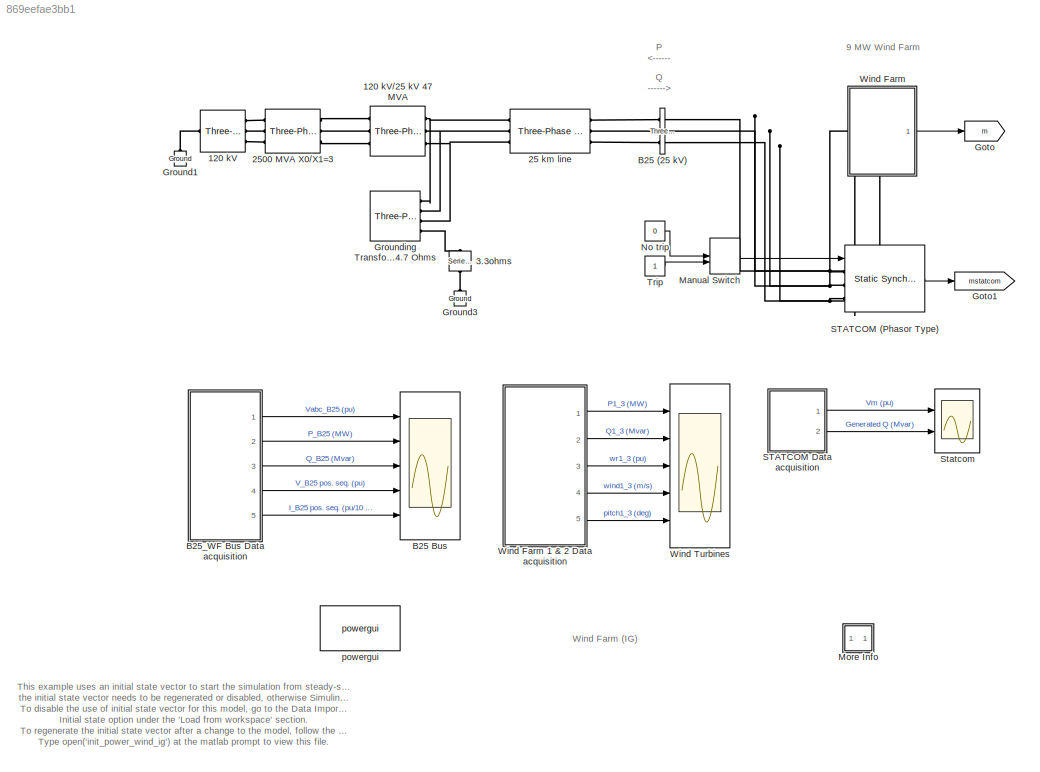
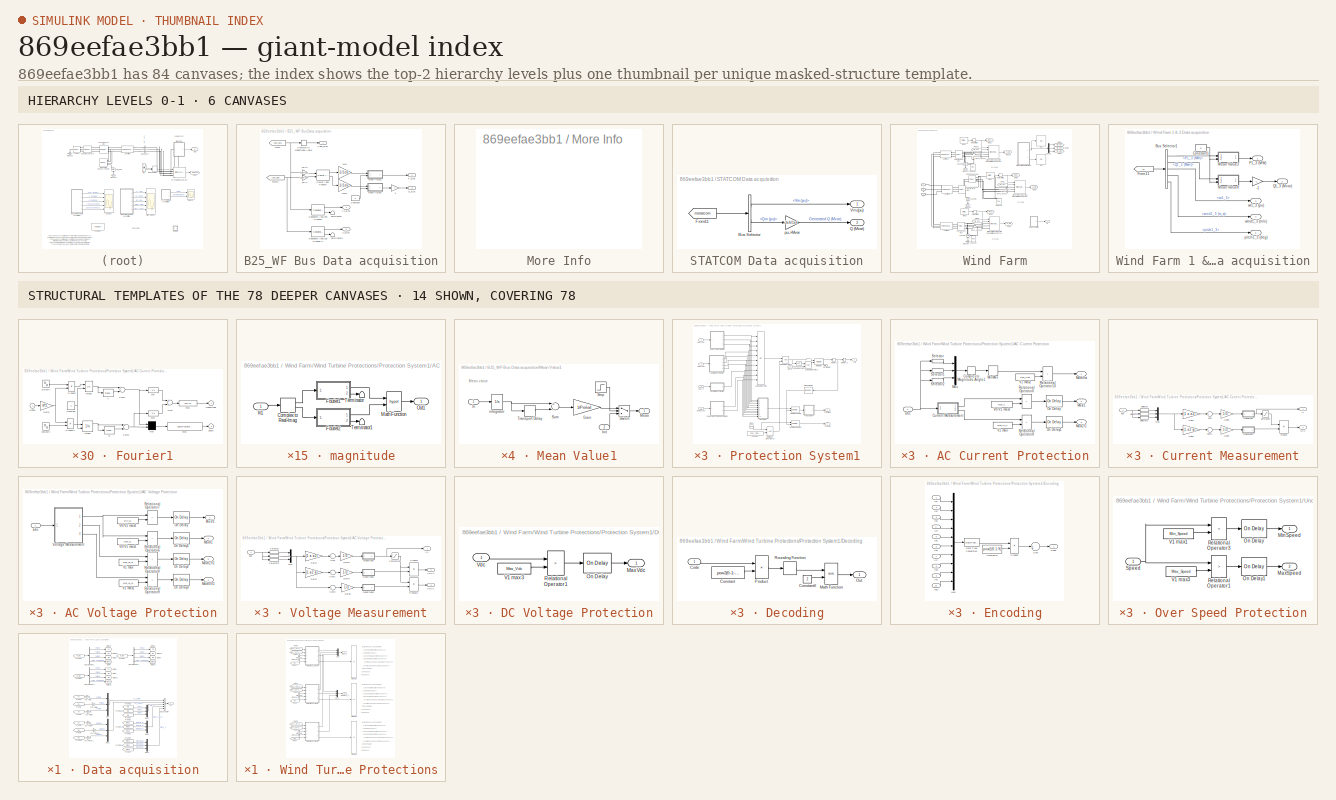
[diagram: thumbnail index - top-2 hierarchy levels (6 canvases) + 14 structural-template representatives of the remaining 78 canvases]
MODEL slx_869eefae3bb1
KIND model
CONFIG InitFcn = xInitial = init_power_wind_ig;
BLOCK [Scope]  Wind Turbines
  Floating = off
  LimitDataPoints = off
  NumInputPorts = 5
  Ports = [5]
  ShowLegends = off
BLOCK [Reference] 120 kV  REF=powerlib/Electrical
Sources/Three-Phase
Programmable
Voltage Source
  Amplitudes = [1.0  0.5  1.0 ]
  BusType = swing
  HarmonicA = [1 -0.1 0 1]
  HarmonicB = [2 0.15 35 2]
  HarmonicGeneration = off
  Ports = [0, 0, 0, 0, 0, 1, 3]
  PositiveSequence = [120e3 0 60]
  Pref = 1e3
  Qmax = inf
  Qmin = -inf
  Qref = 0
  SourceBlock = powerlib/Electrical\nSources/Three-Phase\nProgrammable\nVoltage Source
  SourceType = Three-Phase Programmable Voltage Source
  TimeValues = [0  10  10.1]
  Timing = [5  5.5]
  VariationEntity = None
  VariationFrequency = 2
  VariationMagnitude = 0.3
  VariationPhaseA = off
  VariationRate = 10
  VariationStep = -0.15
  VariationTiming = [5 5.5]
  VariationType = Table of time-amplitude pairs
  VariationTypeAlt = Step
BLOCK [Reference] 120 kV//25 kV 47 MVA  REF=powerlib/Elements/Three-Phase
Transformer
(Two Windings)
  AttributesFormatString = \n
  BreakLoop = off
  DataFile = 'basic_model'
  DataType = off
  Hysteresis = off
  InitialFluxes = [ 0.8 , -0.8 , 0.7 ]
  Lm = 500
  Measurements = None
  MoreParameters = off
  NominalPower = [47e6 60 ]
  Ports = [0, 0, 0, 0, 0, 3, 3]
  Rm = 500
  Saturation = [ 0,0  ;  0.005,1.2  ;  1.0,1.4 ]
  SetInitialFlux = off
  SetSaturation = off
  SourceBlock = powerlib/Elements/Three-Phase\nTransformer\n(Two Windings)
  SourceType = Three-Phase Transformer (Two Windings)
  TransfoNumber = 0
  UNITS = pu
  Winding1 = [ 120e3  0.08/30   0.08 ]
  Winding1Connection = Yg
  Winding2 = [ 25e3  0.08/30  0.08]
  Winding2Connection = Delta (D1)
BLOCK [Reference] 25 km line  REF=powerlib/Elements/Three-Phase
PI Section Line
  AttributesFormatString = \n
  Capacitances = [11.33e-009 5.01e-009]
  Frequency = 60
  Inductances = [1.05e-3 3.32e-3]
  LConnTagsString = a|b|c
  Length = 25
  Ports = [0, 0, 0, 0, 0, 3, 3]
  RConnTagsString = A|B|C
  Resistances = [0.1153 0.413]
  SourceBlock = powerlib/Elements/Three-Phase\nPI Section Line
  SourceType = Three-Phase PI Section Line
BLOCK [Reference] 2500 MVA X0//X1=3  REF=powerlib/Elements/Three-Phase
Mutual Inductance
Z1-Z0
  AttributesFormatString = \n
  LConnTagsString = a|b|c
  Ports = [0, 0, 0, 0, 0, 3, 3]
  PositiveSequence = [0.1  1.0/(2*pi*60)] *120e3^2/2500e6
  RConnTagsString = A|B|C
  SourceBlock = powerlib/Elements/Three-Phase\nMutual Inductance\nZ1-Z0
  SourceType = Three-Phase Mutual Inductance Z1-Z0
  ZeroSequence = [0.3  3.0/(2*pi*60)] *120e3^2/2500e6
BLOCK [Reference] 3.3ohms   REF=powerlib/Elements/Series RLC Branch
  BranchType = R
  Capacitance = 1.0
  Inductance = 1.0
  InitialCurrent = 0
  InitialVoltage = 0
  LConnTagsString = __new0
  Measurements = None
  Ports = [0, 0, 0, 0, 0, 1, 1]
  RConnTagsString = __new0
  Resistance = 3.3
  SetiL0 = off
  Setx0 = off
  SourceBlock = powerlib/Elements/Series RLC Branch
  SourceType = Series RLC Branch
BLOCK [Reference] B25 (25 kV)  REF=powerlib/Measurements/Three-Phase
V-I Measurement
  CurrentMeasurement = yes
  Ipu = on
  LabelI = Iabc_B25
  LabelV = Vabc_B25
  OutputType = Complex
  PSBequivalent = 0
  Pbase = 10e6
  PhasorSimulation = on
  Ports = [0, 0, 0, 0, 0, 3, 3]
  SetLabelI = on
  SetLabelV = on
  SourceBlock = powerlib/Measurements/Three-Phase\nV-I Measurement
  SourceType = Three-Phase VI Measurement
  Vbase = 25e3
  VoltageMeasurement = phase-to-ground
  Vpu = on
  VpuLL = off
BLOCK [Scope] B25 Bus
  Floating = off
  LimitDataPoints = off
  NumInputPorts = 5
  Ports = [5]
  ShowLegends = off
BLOCK [SubSystem] B25_WF Bus Data acquisition
  Ports = [0, 5]
  RequestExecContextInheritance = off
BLOCK [Gain] B25_WF Bus Data acquisition/-1
  Gain = -1
BLOCK [ComplexToMagnitudeAngle] B25_WF Bus Data acquisition/Complex to Magnitude-Angle 
  Output = Magnitude
  Ports = [1, 1]
BLOCK [Constant] B25_WF Bus Data acquisition/Constant
  Value = 0
BLOCK [From] B25_WF Bus Data acquisition/From
  CloseFcn = tagdialog Close
  GotoTag = Vabc_B25
  TagVisibility = global
BLOCK [From] B25_WF Bus Data acquisition/From2
  CloseFcn = tagdialog Close
  GotoTag = Iabc_B25
  TagVisibility = global
BLOCK [Outport] B25_WF Bus Data acquisition/I1_B25
  IconDisplay = Port number
  Port = 5
BLOCK [Gain] B25_WF Bus Data acquisition/MW
  Gain = -1/1e6
BLOCK [Gain] B25_WF Bus Data acquisition/MW1
  Gain = -1/1e6
BLOCK [SubSystem] B25_WF Bus Data acquisition/Mean Value1
  Ports = [2, 1]
  RequestExecContextInheritance = off
BLOCK [Gain] B25_WF Bus Data acquisition/Mean Value1/Gain
  Gain = 1/Period
BLOCK [Inport] B25_WF Bus Data acquisition/Mean Value1/In
  IconDisplay = Port number
BLOCK [Inport] B25_WF Bus Data acquisition/Mean Value1/Init
  IconDisplay = Port number
  Port = 2
BLOCK [Outport] B25_WF Bus Data acquisition/Mean Value1/Mean
  IconDisplay = Port number
BLOCK [Step] B25_WF Bus Data acquisition/Mean Value1/Step
  SampleTime = 0
  Time = Period+eps
BLOCK [Sum] B25_WF Bus Data acquisition/Mean Value1/Sum
  Inputs = +-
  Ports = [2, 1]
BLOCK [Switch] B25_WF Bus Data acquisition/Mean Value1/Switch
  InputSameDT = off
  Threshold = 0.5
BLOCK [TransportDelay] B25_WF Bus Data acquisition/Mean Value1/Transport Delay
  DelayTime = Period
  Ports = [1, 1]
BLOCK [Integrator] B25_WF Bus Data acquisition/Mean Value1/integrator
  Ports = [1, 1]
BLOCK [SubSystem] B25_WF Bus Data acquisition/Mean Value2
  Ports = [2, 1]
  RequestExecContextInheritance = off
BLOCK [Gain] B25_WF Bus Data acquisition/Mean Value2/Gain
  Gain = 1/Period
BLOCK [Inport] B25_WF Bus Data acquisition/Mean Value2/In
  IconDisplay = Port number
BLOCK [Inport] B25_WF Bus Data acquisition/Mean Value2/Init
  IconDisplay = Port number
  Port = 2
BLOCK [Outport] B25_WF Bus Data acquisition/Mean Value2/Mean
  IconDisplay = Port number
BLOCK [Step] B25_WF Bus Data acquisition/Mean Value2/Step
  SampleTime = 0
  Time = Period+eps
BLOCK [Sum] B25_WF Bus Data acquisition/Mean Value2/Sum
  Inputs = +-
  Ports = [2, 1]
BLOCK [Switch] B25_WF Bus Data acquisition/Mean Value2/Switch
  InputSameDT = off
  Threshold = 0.5
BLOCK [TransportDelay] B25_WF Bus Data acquisition/Mean Value2/Transport Delay
  DelayTime = Period
  Ports = [1, 1]
BLOCK [Integrator] B25_WF Bus Data acquisition/Mean Value2/integrator
  Ports = [1, 1]
BLOCK [Outport] B25_WF Bus Data acquisition/P_B25
  IconDisplay = Port number
  Port = 2
BLOCK [Reference] B25_WF Bus Data acquisition/Power (3ph, Phasor)  REF=powerlib_meascontrol/Measurements/Power
(3ph, Phasor)
  Ports = [2, 2]
  SourceBlock = powerlib_meascontrol/Measurements/Power\n(3ph, Phasor)
  SourceType = Power (3ph, Phasor)
BLOCK [Outport] B25_WF Bus Data acquisition/Q_B25
  IconDisplay = Port number
  Port = 3
BLOCK [Reference] B25_WF Bus Data acquisition/Sequence Analyzer (Phasor)  REF=powerlib_meascontrol/Measurements/Sequence Analyzer
(Phasor)
  Ports = [1, 2]
  SourceBlock = powerlib_meascontrol/Measurements/Sequence Analyzer\n(Phasor)
  SourceType = Sequence Analyzer (Phasor)
  seq = Positive
BLOCK [Reference] B25_WF Bus Data acquisition/Sequence Analyzer (Phasor)1  REF=powerlib_meascontrol/Measurements/Sequence Analyzer
(Phasor)
  Ports = [1, 2]
  SourceBlock = powerlib_meascontrol/Measurements/Sequence Analyzer\n(Phasor)
  SourceType = Sequence Analyzer (Phasor)
  seq = Positive
BLOCK [Terminator] B25_WF Bus Data acquisition/Terminator
BLOCK [Terminator] B25_WF Bus Data acquisition/Terminator1
BLOCK [Outport] B25_WF Bus Data acquisition/V1_B25
  IconDisplay = Port number
  Port = 4
BLOCK [Outport] B25_WF Bus Data acquisition/Vabc_B25 
  IconDisplay = Port number
BLOCK [Gain] B25_WF Bus Data acquisition/pu->A
  Gain = 10e6/sqrt(3)/25e3*sqrt(2)
BLOCK [Gain] B25_WF Bus Data acquisition/pu->V
  Gain = 25e3*sqrt(2)/sqrt(3)
BLOCK [Goto] Goto
  GotoTag = m
  TagVisibility = global
BLOCK [Goto] Goto1
  GotoTag = mstatcom
  TagVisibility = global
BLOCK [Reference] Ground1  REF=powerlib/Elements/Ground
  AttributesFormatString = \n
  LConnTagsString = a
  Ports = [0, 0, 0, 0, 0, 1]
  SourceBlock = powerlib/Elements/Ground
  SourceType = Ground
BLOCK [Reference] Ground3  REF=powerlib/Elements/Ground
  AttributesFormatString = \n
  LConnTagsString = a
  Ports = [0, 0, 0, 0, 0, 1]
  SourceBlock = powerlib/Elements/Ground
  SourceType = Ground
BLOCK [Reference] Grounding Transformer X0=4.7 Ohms  REF=powerlib/Elements/Three-Phase
Transformer
(Two Windings)
  AttributesFormatString = \n
  BreakLoop = off
  DataFile = 'basic_model'
  DataType = off
  Hysteresis = off
  InitialFluxes = [ 0.8 , -0.8 , 0.7 ]
  Lm = 500
  Measurements = None
  MoreParameters = off
  NominalPower = [100e6 60]
  Ports = [0, 0, 0, 0, 0, 4, 3]
  Rm = 500
  Saturation = [ 0,0  ;  0.005,1.2  ;  1.0,1.4 ]
  SetInitialFlux = off
  SetSaturation = off
  SourceBlock = powerlib/Elements/Three-Phase\nTransformer\n(Two Windings)
  SourceType = Three-Phase Transformer (Two Windings)
  TransfoNumber = 0
  UNITS = pu
  Winding1 = [ 25e3  4.7/(25e3^2/100e6)/30    4.7/(25e3^2/100e6)]
  Winding1Connection = Yn
  Winding2 = [ 25e3  1e-6  0]
  Winding2Connection = Delta (D11)
BLOCK [ManualSwitch] Manual Switch
BLOCK [SubSystem] More Info
  OpenFcn = showdemo(bdroot(gcb))
  Ports = []
  RequestExecContextInheritance = off
BLOCK [Constant] No trip
  Value = 0
BLOCK [Reference] STATCOM (Phasor Type)  REF=factslib/Power-Electronics Based
FACTS/Static Synchronous
Compensator
(Phasor Type)
  C_DC = 375e-6*(3/100)*10^2
  Droop_SH = 0.03
  ExternalVref = off
  Iinit_SH = [0, 0 ]
  MaxRateChangeQref_SH = 2
  MaxRateChangeVref_SH = 10
  OpMode_SH = Voltage regulation
  Par_IReg_SH = [0.3 10 0.22]
  Par_VacReg = [5 1000]
  Par_VdcReg = [0.1e-3 20e-3]
  Pnom_SH = 3e6
  Ports = [1, 1, 0, 0, 0, 3]
  Qref_SH = 0
  RL_SH = [ 0.22/30, 0.22 ]
  ShowParameters = Power data
  SourceBlock = factslib/Power-Electronics Based\nFACTS/Static Synchronous\nCompensator\n(Phasor Type)
  SourceType = Static Synchronous Compensator (Phasor Type)
  SystemNominal = [ 25e3, 60 ]
  VnomDC = 40000/10
  Vref_SH = 1.00
BLOCK [SubSystem] STATCOM Data acquisition
  Ports = [0, 2]
  RequestExecContextInheritance = off
BLOCK [BusSelector] STATCOM Data acquisition/Bus Selector
  OutputSignals = Control.Vm (pu),Control.Qm (pu)
  Ports = [1, 2]
BLOCK [From] STATCOM Data acquisition/From11
  CloseFcn = tagdialog Close
  GotoTag = mstatcom
  TagVisibility = global
BLOCK [Outport] STATCOM Data acquisition/Q (Mvar)
  IconDisplay = Port number
  Port = 2
BLOCK [Outport] STATCOM Data acquisition/Vm (pu)
  IconDisplay = Port number
BLOCK [Gain] STATCOM Data acquisition/pu->Mvar
  Gain = -3e6/1e6
BLOCK [Scope] Statcom
  Floating = off
  LimitDataPoints = off
  NumInputPorts = 2
  Ports = [2]
  ShowLegends = off
BLOCK [Constant] Trip
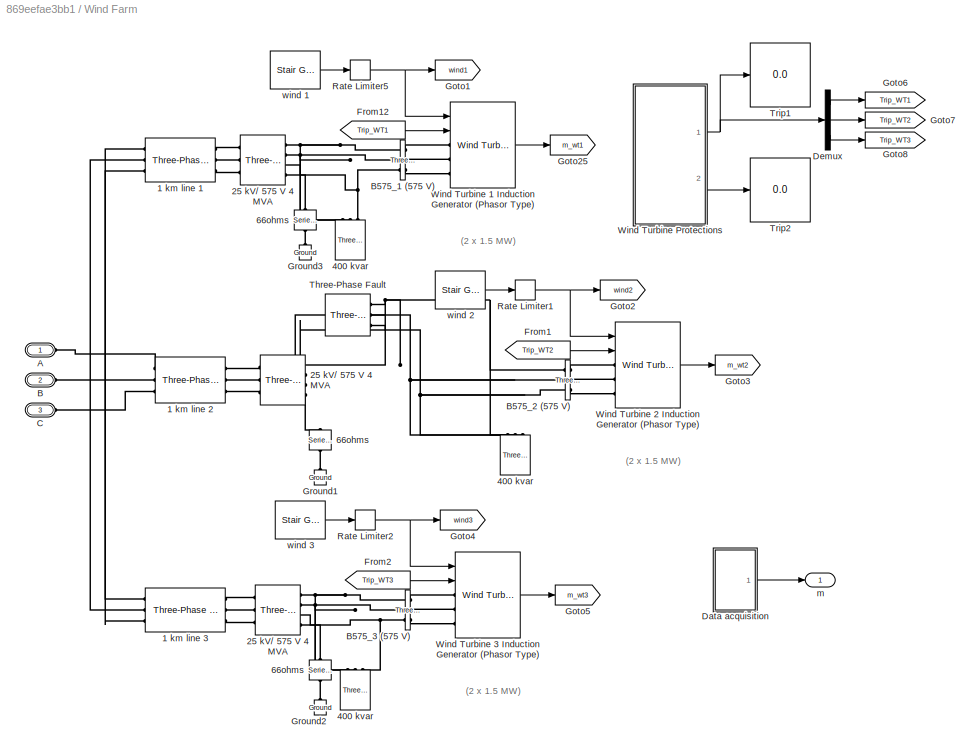
BLOCK [SubSystem] Wind Farm
  Ports = [0, 1, 0, 0, 0, 3]
  RequestExecContextInheritance = off
BLOCK [SubSystem] Wind Farm 1 & 2 Data acquisition
  Ports = [0, 5]
  RequestExecContextInheritance = off
BLOCK [Gain] Wind Farm 1 & 2 Data acquisition/-1
  Gain = -1
BLOCK [BusSelector] Wind Farm 1 & 2 Data acquisition/Bus Selector1
  OutputSignals = P1_3 (MW),Q1_3 (Mvar),wr1_3,wind1_3 (m_s),pitch1_3
  Ports = [1, 5]
BLOCK [Constant] Wind Farm 1 & 2 Data acquisition/Constant1
  Value = 0
BLOCK [From] Wind Farm 1 & 2 Data acquisition/From11
  CloseFcn = tagdialog Close
  GotoTag = m
  TagVisibility = global
BLOCK [SubSystem] Wind Farm 1 & 2 Data acquisition/Mean Value3
  Ports = [2, 1]
  RequestExecContextInheritance = off
BLOCK [Gain] Wind Farm 1 & 2 Data acquisition/Mean Value3/Gain
  Gain = 1/Period
BLOCK [Inport] Wind Farm 1 & 2 Data acquisition/Mean Value3/In
  IconDisplay = Port number
BLOCK [Inport] Wind Farm 1 & 2 Data acquisition/Mean Value3/Init
  IconDisplay = Port number
  Port = 2
BLOCK [Outport] Wind Farm 1 & 2 Data acquisition/Mean Value3/Mean
  IconDisplay = Port number
BLOCK [Step] Wind Farm 1 & 2 Data acquisition/Mean Value3/Step
  SampleTime = 0
  Time = Period+eps
BLOCK [Sum] Wind Farm 1 & 2 Data acquisition/Mean Value3/Sum
  Inputs = +-
  Ports = [2, 1]
BLOCK [Switch] Wind Farm 1 & 2 Data acquisition/Mean Value3/Switch
  InputSameDT = off
  Threshold = 0.5
BLOCK [TransportDelay] Wind Farm 1 & 2 Data acquisition/Mean Value3/Transport Delay
  DelayTime = Period
  Ports = [1, 1]
BLOCK [Integrator] Wind Farm 1 & 2 Data acquisition/Mean Value3/integrator
  Ports = [1, 1]
BLOCK [SubSystem] Wind Farm 1 & 2 Data acquisition/Mean Value4
  Ports = [2, 1]
  RequestExecContextInheritance = off
BLOCK [Gain] Wind Farm 1 & 2 Data acquisition/Mean Value4/Gain
  Gain = 1/Period
BLOCK [Inport] Wind Farm 1 & 2 Data acquisition/Mean Value4/In
  IconDisplay = Port number
BLOCK [Inport] Wind Farm 1 & 2 Data acquisition/Mean Value4/Init
  IconDisplay = Port number
  Port = 2
BLOCK [Outport] Wind Farm 1 & 2 Data acquisition/Mean Value4/Mean
  IconDisplay = Port number
BLOCK [Step] Wind Farm 1 & 2 Data acquisition/Mean Value4/Step
  SampleTime = 0
  Time = Period+eps
BLOCK [Sum] Wind Farm 1 & 2 Data acquisition/Mean Value4/Sum
  Inputs = +-
  Ports = [2, 1]
BLOCK [Switch] Wind Farm 1 & 2 Data acquisition/Mean Value4/Switch
  InputSameDT = off
  Threshold = 0.5
BLOCK [TransportDelay] Wind Farm 1 & 2 Data acquisition/Mean Value4/Transport Delay
  DelayTime = Period
  Ports = [1, 1]
BLOCK [Integrator] Wind Farm 1 & 2 Data acquisition/Mean Value4/integrator
  Ports = [1, 1]
BLOCK [Outport] Wind Farm 1 & 2 Data acquisition/P1_3 (MW)
  IconDisplay = Port number
BLOCK [Outport] Wind Farm 1 & 2 Data acquisition/Q1_3 (Mvar)
  IconDisplay = Port number
  Port = 2
BLOCK [Outport] Wind Farm 1 & 2 Data acquisition/pitch1_3 (deg)
  IconDisplay = Port number
  Port = 5
BLOCK [Outport] Wind Farm 1 & 2 Data acquisition/wind1_3 (m//s)
  IconDisplay = Port number
  Port = 4
BLOCK [Outport] Wind Farm 1 & 2 Data acquisition/wr1_3 (pu)
  IconDisplay = Port number
  Port = 3
BLOCK [Reference] Wind Farm/ 66ohms   REF=powerlib/Elements/Series RLC Branch
  BranchType = R
  Capacitance = 1.0
  Inductance = 1.0
  InitialCurrent = 0
  InitialVoltage = 0
  LConnTagsString = __new0
  Measurements = None
  Ports = [0, 0, 0, 0, 0, 1, 1]
  RConnTagsString = __new0
  Resistance = 66
  SetiL0 = off
  Setx0 = off
  SourceBlock = powerlib/Elements/Series RLC Branch
  SourceType = Series RLC Branch
BLOCK [Reference] Wind Farm/1 km line 1   REF=powerlib/Elements/Three-Phase
PI Section Line
  AttributesFormatString = \n
  Capacitances = [11.33e-009 5.01e-009]
  Frequency = 60
  Inductances = [1.05e-3 3.32e-3]
  LConnTagsString = a|b|c
  Length = 1
  Ports = [0, 0, 0, 0, 0, 3, 3]
  RConnTagsString = A|B|C
  Resistances = [0.1153 0.413]
  SourceBlock = powerlib/Elements/Three-Phase\nPI Section Line
  SourceType = Three-Phase PI Section Line
BLOCK [Reference] Wind Farm/1 km line 2  REF=powerlib/Elements/Three-Phase
PI Section Line
  AttributesFormatString = \n
  Capacitances = [11.33e-009 5.01e-009]
  Frequency = 60
  Inductances = [1.05e-3 3.32e-3]
  LConnTagsString = a|b|c
  Length = 1
  Ports = [0, 0, 0, 0, 0, 3, 3]
  RConnTagsString = A|B|C
  Resistances = [0.1153 0.413]
  SourceBlock = powerlib/Elements/Three-Phase\nPI Section Line
  SourceType = Three-Phase PI Section Line
BLOCK [Reference] Wind Farm/1 km line 3  REF=powerlib/Elements/Three-Phase
PI Section Line
  AttributesFormatString = \n
  Capacitances = [11.33e-009 5.01e-009]
  Frequency = 60
  Inductances = [1.05e-3 3.32e-3]
  LConnTagsString = a|b|c
  Length = 1
  Ports = [0, 0, 0, 0, 0, 3, 3]
  RConnTagsString = A|B|C
  Resistances = [0.1153 0.413]
  SourceBlock = powerlib/Elements/Three-Phase\nPI Section Line
  SourceType = Three-Phase PI Section Line
BLOCK [Reference] Wind Farm/25 kV// 575 V 4 MVA  REF=powerlib/Elements/Three-Phase
Transformer
(Two Windings)
  AttributesFormatString = \n
  BreakLoop = off
  DataFile = 'hysteresis'
  DataType = off
  Hysteresis = off
  InitialFluxes = [ 0.8 , -0.8 , 0.7 ]
  Lm = inf
  Measurements = None
  MoreParameters = off
  NominalPower = [4e6  60]
  Ports = [0, 0, 0, 0, 0, 3, 4]
  Rm = 500
  Saturation = [ 0,0 ; 0.0024,1.2 ; 1.0,1.52 ]
  SetInitialFlux = off
  SetSaturation = off
  SourceBlock = powerlib/Elements/Three-Phase\nTransformer\n(Two Windings)
  SourceType = Three-Phase Transformer (Two Windings)
  TransfoNumber = 0
  UNITS = pu
  Winding1 = [25e3 , 0.025/30 , 0.025]
  Winding1Connection = Yg
  Winding2 = [ 575, 0.025/30 , 0.025]
  Winding2Connection = Yn
BLOCK [Reference] Wind Farm/25 kV// 575 V 4 MVA   REF=powerlib/Elements/Three-Phase
Transformer
(Two Windings)
  AttributesFormatString = \n
  BreakLoop = off
  DataFile = 'hysteresis'
  DataType = off
  Hysteresis = off
  InitialFluxes = [ 0.8 , -0.8 , 0.7 ]
  Lm = inf
  Measurements = None
  MoreParameters = off
  NominalPower = [4e6  60]
  Ports = [0, 0, 0, 0, 0, 3, 4]
  Rm = 500
  Saturation = [ 0,0 ; 0.0024,1.2 ; 1.0,1.52 ]
  SetInitialFlux = off
  SetSaturation = off
  SourceBlock = powerlib/Elements/Three-Phase\nTransformer\n(Two Windings)
  SourceType = Three-Phase Transformer (Two Windings)
  TransfoNumber = 0
  UNITS = pu
  Winding1 = [25e3 , 0.025/30 , 0.025]
  Winding1Connection = Yg
  Winding2 = [ 575, 0.025/30 , 0.025]
  Winding2Connection = Yn
BLOCK [Reference] Wind Farm/25 kV// 575 V 4 MVA    REF=powerlib/Elements/Three-Phase
Transformer
(Two Windings)
  AttributesFormatString = \n
  BreakLoop = off
  DataFile = 'hysteresis'
  DataType = off
  Hysteresis = off
  InitialFluxes = [ 0.8 , -0.8 , 0.7 ]
  Lm = inf
  Measurements = None
  MoreParameters = off
  NominalPower = [4e6  60]
  Ports = [0, 0, 0, 0, 0, 3, 4]
  Rm = 500
  Saturation = [ 0,0 ; 0.0024,1.2 ; 1.0,1.52 ]
  SetInitialFlux = off
  SetSaturation = off
  SourceBlock = powerlib/Elements/Three-Phase\nTransformer\n(Two Windings)
  SourceType = Three-Phase Transformer (Two Windings)
  TransfoNumber = 0
  UNITS = pu
  Winding1 = [25e3 , 0.025/30 , 0.025]
  Winding1Connection = Yg
  Winding2 = [ 575, 0.025/30 , 0.025]
  Winding2Connection = Yn
BLOCK [Reference] Wind Farm/400 kvar  REF=powerlib/Elements/Three-Phase
Series RLC Load
  ActivePower = 0
  AttributesFormatString = \n
  CapacitivePower = 400e3
  Configuration = Delta
  InductivePower = 0
  LConnTagsString = A|B|C
  LoadType = constant Z
  Measurements = None
  NominalFrequency = 60
  NominalVoltage = 575
  Ports = [0, 0, 0, 0, 0, 3]
  SourceBlock = powerlib/Elements/Three-Phase\nSeries RLC Load
  SourceType = Three-Phase Series RLC Load
BLOCK [Reference] Wind Farm/400 kvar   REF=powerlib/Elements/Three-Phase
Series RLC Load
  ActivePower = 0
  AttributesFormatString = \n
  CapacitivePower = 400e3
  Configuration = Delta
  InductivePower = 0
  LConnTagsString = A|B|C
  LoadType = constant Z
  Measurements = None
  NominalFrequency = 60
  NominalVoltage = 575
  Ports = [0, 0, 0, 0, 0, 3]
  SourceBlock = powerlib/Elements/Three-Phase\nSeries RLC Load
  SourceType = Three-Phase Series RLC Load
BLOCK [Reference] Wind Farm/400 kvar    REF=powerlib/Elements/Three-Phase
Series RLC Load
  ActivePower = 0
  AttributesFormatString = \n
  CapacitivePower = 400e3
  Configuration = Delta
  InductivePower = 0
  LConnTagsString = A|B|C
  LoadType = constant Z
  Measurements = None
  NominalFrequency = 60
  NominalVoltage = 575
  Ports = [0, 0, 0, 0, 0, 3]
  SourceBlock = powerlib/Elements/Three-Phase\nSeries RLC Load
  SourceType = Three-Phase Series RLC Load
BLOCK [Reference] Wind Farm/66ohms   REF=powerlib/Elements/Series RLC Branch
  BranchType = R
  Capacitance = 1.0
  Inductance = 1.0
  InitialCurrent = 0
  InitialVoltage = 0
  LConnTagsString = __new0
  Measurements = None
  Ports = [0, 0, 0, 0, 0, 1, 1]
  RConnTagsString = __new0
  Resistance = 66
  SetiL0 = off
  Setx0 = off
  SourceBlock = powerlib/Elements/Series RLC Branch
  SourceType = Series RLC Branch
BLOCK [Reference] Wind Farm/66ohms    REF=powerlib/Elements/Series RLC Branch
  BranchType = R
  Capacitance = 1.0
  Inductance = 1.0
  InitialCurrent = 0
  InitialVoltage = 0
  LConnTagsString = __new0
  Measurements = None
  Ports = [0, 0, 0, 0, 0, 1, 1]
  RConnTagsString = __new0
  Resistance = 66
  SetiL0 = off
  Setx0 = off
  SourceBlock = powerlib/Elements/Series RLC Branch
  SourceType = Series RLC Branch
BLOCK [PMIOPort] Wind Farm/A
  Port = 1
  Side = Left
BLOCK [PMIOPort] Wind Farm/B
  Port = 2
  Side = Left
BLOCK [Reference] Wind Farm/B575_1 (575 V)  REF=powerlib/Measurements/Three-Phase
V-I Measurement
  CurrentMeasurement = yes
  Ipu = on
  LabelI = Iabc_B575_1
  LabelV = Vabc_B575_1
  OutputType = Complex
  PSBequivalent = 0
  Pbase = 2*1.5e6/0.9
  PhasorSimulation = on
  Ports = [0, 0, 0, 0, 0, 3, 3]
  SetLabelI = on
  SetLabelV = on
  SourceBlock = powerlib/Measurements/Three-Phase\nV-I Measurement
  SourceType = Three-Phase VI Measurement
  Vbase = 575
  VoltageMeasurement = phase-to-ground
  Vpu = on
  VpuLL = off
BLOCK [Reference] Wind Farm/B575_2 (575 V)  REF=powerlib/Measurements/Three-Phase
V-I Measurement
  CurrentMeasurement = yes
  Ipu = on
  LabelI = Iabc_B575_2
  LabelV = Vabc_B575_2
  OutputType = Complex
  PSBequivalent = 0
  Pbase = 2*1.5e6/0.9
  PhasorSimulation = on
  Ports = [0, 0, 0, 0, 0, 3, 3]
  SetLabelI = on
  SetLabelV = on
  SourceBlock = powerlib/Measurements/Three-Phase\nV-I Measurement
  SourceType = Three-Phase VI Measurement
  Vbase = 575
  VoltageMeasurement = phase-to-ground
  Vpu = on
  VpuLL = off
BLOCK [Reference] Wind Farm/B575_3 (575 V)  REF=powerlib/Measurements/Three-Phase
V-I Measurement
  CurrentMeasurement = yes
  Ipu = on
  LabelI = Iabc_B575_3
  LabelV = Vabc_B575_3
  OutputType = Complex
  PSBequivalent = 0
  Pbase = 2*1.5e6/0.9
  PhasorSimulation = on
  Ports = [0, 0, 0, 0, 0, 3, 3]
  SetLabelI = on
  SetLabelV = on
  SourceBlock = powerlib/Measurements/Three-Phase\nV-I Measurement
  SourceType = Three-Phase VI Measurement
  Vbase = 575
  VoltageMeasurement = phase-to-ground
  Vpu = on
  VpuLL = off
BLOCK [PMIOPort] Wind Farm/C
  Port = 3
  Side = Left
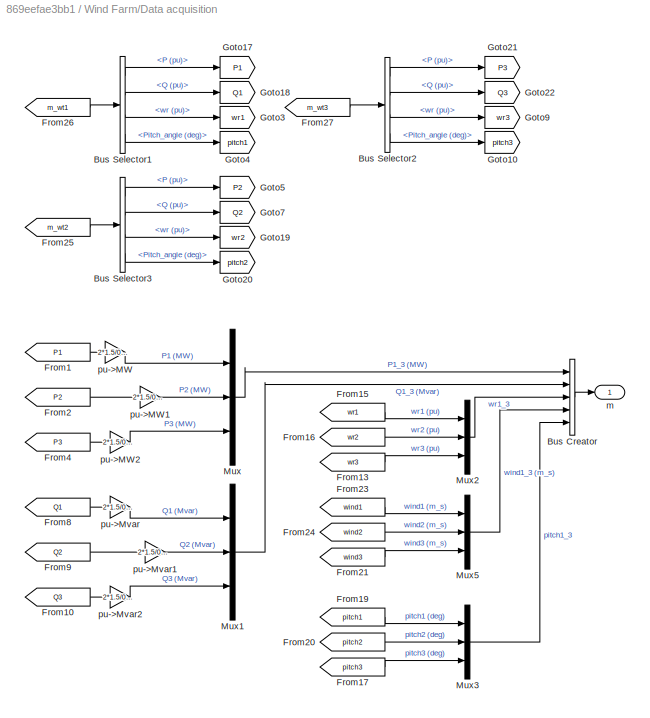
BLOCK [SubSystem] Wind Farm/Data acquisition
  Ports = [0, 1]
  RequestExecContextInheritance = off
BLOCK [BusCreator] Wind Farm/Data acquisition/Bus Creator
  DisplayOption = bar
  Inputs = 5
  Ports = [5, 1]
BLOCK [BusSelector] Wind Farm/Data acquisition/Bus Selector1
  OutputSignals = P (pu),Q (pu),wr (pu),Pitch_angle (deg)
  Ports = [1, 4]
BLOCK [BusSelector] Wind Farm/Data acquisition/Bus Selector2
  OutputSignals = P (pu),Q (pu),wr (pu),Pitch_angle (deg)
  Ports = [1, 4]
BLOCK [BusSelector] Wind Farm/Data acquisition/Bus Selector3
  OutputSignals = P (pu),Q (pu),wr (pu),Pitch_angle (deg)
  Ports = [1, 4]
BLOCK [From] Wind Farm/Data acquisition/From1
  CloseFcn = tagdialog Close
  GotoTag = P1
BLOCK [From] Wind Farm/Data acquisition/From10
  CloseFcn = tagdialog Close
  GotoTag = Q3
BLOCK [From] Wind Farm/Data acquisition/From13
  CloseFcn = tagdialog Close
  GotoTag = wr3
  TagVisibility = global
BLOCK [From] Wind Farm/Data acquisition/From15
  CloseFcn = tagdialog Close
  GotoTag = wr1
  TagVisibility = global
BLOCK [From] Wind Farm/Data acquisition/From16
  CloseFcn = tagdialog Close
  GotoTag = wr2
  TagVisibility = global
BLOCK [From] Wind Farm/Data acquisition/From17
  CloseFcn = tagdialog Close
  GotoTag = pitch3
BLOCK [From] Wind Farm/Data acquisition/From19
  CloseFcn = tagdialog Close
  GotoTag = pitch1
BLOCK [From] Wind Farm/Data acquisition/From2
  CloseFcn = tagdialog Close
  GotoTag = P2
BLOCK [From] Wind Farm/Data acquisition/From20
  CloseFcn = tagdialog Close
  GotoTag = pitch2
BLOCK [From] Wind Farm/Data acquisition/From21
  CloseFcn = tagdialog Close
  GotoTag = wind3
  TagVisibility = global
BLOCK [From] Wind Farm/Data acquisition/From23
  CloseFcn = tagdialog Close
  GotoTag = wind1
  TagVisibility = global
BLOCK [From] Wind Farm/Data acquisition/From24
  CloseFcn = tagdialog Close
  GotoTag = wind2
  TagVisibility = global
BLOCK [From] Wind Farm/Data acquisition/From25
  CloseFcn = tagdialog Close
  GotoTag = m_wt2
  TagVisibility = global
BLOCK [From] Wind Farm/Data acquisition/From26
  CloseFcn = tagdialog Close
  GotoTag = m_wt1
  TagVisibility = global
BLOCK [From] Wind Farm/Data acquisition/From27
  CloseFcn = tagdialog Close
  GotoTag = m_wt3
  TagVisibility = global
BLOCK [From] Wind Farm/Data acquisition/From4
  CloseFcn = tagdialog Close
  GotoTag = P3
BLOCK [From] Wind Farm/Data acquisition/From8
  CloseFcn = tagdialog Close
  GotoTag = Q1
BLOCK [From] Wind Farm/Data acquisition/From9
  CloseFcn = tagdialog Close
  GotoTag = Q2
BLOCK [Goto] Wind Farm/Data acquisition/Goto10
  GotoTag = pitch3
BLOCK [Goto] Wind Farm/Data acquisition/Goto17
  GotoTag = P1
BLOCK [Goto] Wind Farm/Data acquisition/Goto18
  GotoTag = Q1
BLOCK [Goto] Wind Farm/Data acquisition/Goto19
  GotoTag = wr2
  TagVisibility = global
BLOCK [Goto] Wind Farm/Data acquisition/Goto20
  GotoTag = pitch2
BLOCK [Goto] Wind Farm/Data acquisition/Goto21
  GotoTag = P3
BLOCK [Goto] Wind Farm/Data acquisition/Goto22
  GotoTag = Q3
BLOCK [Goto] Wind Farm/Data acquisition/Goto3
  GotoTag = wr1
  TagVisibility = global
BLOCK [Goto] Wind Farm/Data acquisition/Goto4
  GotoTag = pitch1
BLOCK [Goto] Wind Farm/Data acquisition/Goto5
  GotoTag = P2
BLOCK [Goto] Wind Farm/Data acquisition/Goto7
  GotoTag = Q2
BLOCK [Goto] Wind Farm/Data acquisition/Goto9
  GotoTag = wr3
  TagVisibility = global
BLOCK [Mux] Wind Farm/Data acquisition/Mux
  DisplayOption = bar
  Inputs = 3
  Ports = [3, 1]
BLOCK [Mux] Wind Farm/Data acquisition/Mux1
  DisplayOption = bar
  Inputs = 3
  Ports = [3, 1]
BLOCK [Mux] Wind Farm/Data acquisition/Mux2
  DisplayOption = bar
  Inputs = 3
  Ports = [3, 1]
BLOCK [Mux] Wind Farm/Data acquisition/Mux3
  DisplayOption = bar
  Inputs = 3
  Ports = [3, 1]
BLOCK [Mux] Wind Farm/Data acquisition/Mux5
  DisplayOption = bar
  Inputs = 3
  Ports = [3, 1]
BLOCK [Outport] Wind Farm/Data acquisition/m
  IconDisplay = Port number
BLOCK [Gain] Wind Farm/Data acquisition/pu->MW
  Gain = 2*1.5/0.9
BLOCK [Gain] Wind Farm/Data acquisition/pu->MW1
  Gain = 2*1.5/0.9
BLOCK [Gain] Wind Farm/Data acquisition/pu->MW2
  Gain = 2*1.5/0.9
BLOCK [Gain] Wind Farm/Data acquisition/pu->Mvar
  Gain = 2*1.5/0.9
BLOCK [Gain] Wind Farm/Data acquisition/pu->Mvar1
  Gain = 2*1.5/0.9
BLOCK [Gain] Wind Farm/Data acquisition/pu->Mvar2
  Gain = 2*1.5/0.9
BLOCK [Demux] Wind Farm/Demux
  DisplayOption = bar
  Outputs = 3
  Ports = [1, 3]
BLOCK [From] Wind Farm/From1
  CloseFcn = tagdialog Close
  GotoTag = Trip_WT2
BLOCK [From] Wind Farm/From12
  CloseFcn = tagdialog Close
  GotoTag = Trip_WT1
BLOCK [From] Wind Farm/From2
  CloseFcn = tagdialog Close
  GotoTag = Trip_WT3
BLOCK [Goto] Wind Farm/Goto1
  GotoTag = wind1
  TagVisibility = global
BLOCK [Goto] Wind Farm/Goto2
  GotoTag = wind2
  TagVisibility = global
BLOCK [Goto] Wind Farm/Goto25
  GotoTag = m_wt1
  TagVisibility = global
BLOCK [Goto] Wind Farm/Goto3
  GotoTag = m_wt2
  TagVisibility = global
BLOCK [Goto] Wind Farm/Goto4
  GotoTag = wind3
  TagVisibility = global
BLOCK [Goto] Wind Farm/Goto5
  GotoTag = m_wt3
  TagVisibility = global
BLOCK [Goto] Wind Farm/Goto6
  GotoTag = Trip_WT1
BLOCK [Goto] Wind Farm/Goto7
  GotoTag = Trip_WT2
BLOCK [Goto] Wind Farm/Goto8
  GotoTag = Trip_WT3
BLOCK [Reference] Wind Farm/Ground1  REF=powerlib/Elements/Ground
  AttributesFormatString = \n
  LConnTagsString = a
  Ports = [0, 0, 0, 0, 0, 1]
  SourceBlock = powerlib/Elements/Ground
  SourceType = Ground
BLOCK [Reference] Wind Farm/Ground2  REF=powerlib/Elements/Ground
  AttributesFormatString = \n
  LConnTagsString = a
  Ports = [0, 0, 0, 0, 0, 1]
  SourceBlock = powerlib/Elements/Ground
  SourceType = Ground
BLOCK [Reference] Wind Farm/Ground3  REF=powerlib/Elements/Ground
  AttributesFormatString = \n
  LConnTagsString = a
  Ports = [0, 0, 0, 0, 0, 1]
  SourceBlock = powerlib/Elements/Ground
  SourceType = Ground
BLOCK [RateLimiter] Wind Farm/Rate Limiter1
BLOCK [RateLimiter] Wind Farm/Rate Limiter2
BLOCK [RateLimiter] Wind Farm/Rate Limiter5
BLOCK [Reference] Wind Farm/Three-Phase Fault  REF=powerlib/Elements/Three-Phase Fault
  External = off
  FaultA = on
  FaultB = on
  FaultC = off
  FaultResistance = 0.001
  GroundFault = on
  GroundResistance = 0.001
  InitialStates = 0
  Measurements = None
  Ports = [0, 0, 0, 0, 0, 3]
  SnubberCapacitance = inf
  SnubberResistance = 1e6
  SourceBlock = powerlib/Elements/Three-Phase Fault
  SourceType = Three-Phase Fault
  SwitchStatus = NaN
  SwitchTimes = [ 15 15.1]
BLOCK [Display] Wind Farm/Trip1
  Decimation = 1
  Ports = [1]
BLOCK [Display] Wind Farm/Trip2
  Decimation = 1
  Ports = [1]
BLOCK [Reference] Wind Farm/Wind Turbine 1 Induction Generator (Phasor Type)  REF=DRlib/Wind Generation/Wind Turbine
Induction Generator
(Phasor Type)
  DisplayTurbChar = off
  ExternalTm = off
  K_pitch_gain = [5 25]
  Lm = 6.77
  P_wind_base = 1
  Pmec = 2*1.5e6
  Ports = [2, 1, 0, 0, 0, 3]
  ShowParameters = Turbine data
  SourceBlock = DRlib/Wind Generation/Wind Turbine\nInduction Generator\n(Phasor Type)
  SourceType = Wind Turbine Induction Generator (Phasor Type)
  init = [ -0.01,0   0,0,0   0,0,0 ]
  mec = [5.04 0.01 3]
  nom = [2*1.5e6/0.9 575 60]
  pitch_angle = 0
  pitch_max = 45
  pitch_rate = 2
  rot = [ 0.004377 0.1791]
  speed_nom = 1
  sta = [ 0.004843 0.1248]
  wind_base = 9
BLOCK [Reference] Wind Farm/Wind Turbine 2 Induction Generator (Phasor Type)  REF=DRlib/Wind Generation/Wind Turbine
Induction Generator
(Phasor Type)
  DisplayTurbChar = off
  ExternalTm = off
  K_pitch_gain = [5 25]
  Lm = 6.77
  P_wind_base = 1
  Pmec = 2*1.5e6
  Ports = [2, 1, 0, 0, 0, 3]
  ShowParameters = Turbine data
  SourceBlock = DRlib/Wind Generation/Wind Turbine\nInduction Generator\n(Phasor Type)
  SourceType = Wind Turbine Induction Generator (Phasor Type)
  init = [ -0.01,0   0,0,0   0,0,0 ]
  mec = [5.04 0.01 3]
  nom = [2*1.5e6/0.9 575 60]
  pitch_angle = 0
  pitch_max = 45
  pitch_rate = 2
  rot = [ 0.004377 0.1791]
  speed_nom = 1
  sta = [ 0.004843 0.1248]
  wind_base = 9
BLOCK [Reference] Wind Farm/Wind Turbine 3 Induction Generator (Phasor Type)  REF=DRlib/Wind Generation/Wind Turbine
Induction Generator
(Phasor Type)
  DisplayTurbChar = off
  ExternalTm = off
  K_pitch_gain = [5 25]
  Lm = 6.77
  P_wind_base = 1
  Pmec = 2*1.5e6
  Ports = [2, 1, 0, 0, 0, 3]
  ShowParameters = Turbine data
  SourceBlock = DRlib/Wind Generation/Wind Turbine\nInduction Generator\n(Phasor Type)
  SourceType = Wind Turbine Induction Generator (Phasor Type)
  init = [ -0.01,0   0,0,0   0,0,0 ]
  mec = [5.04 0.01 3]
  nom = [2*1.5e6/0.9 575 60]
  pitch_angle = 0
  pitch_max = 45
  pitch_rate = 2
  rot = [ 0.004377 0.1791]
  speed_nom = 1
  sta = [ 0.004843 0.1248]
  wind_base = 9
BLOCK [SubSystem] Wind Farm/Wind Turbine Protections
  Ports = [0, 2]
  RequestExecContextInheritance = off
BLOCK [From] Wind Farm/Wind Turbine Protections/From1
  CloseFcn = tagdialog Close
  GotoTag = wr2
  TagVisibility = global
BLOCK [From] Wind Farm/Wind Turbine Protections/From11
  CloseFcn = tagdialog Close
  GotoTag = wr1
  TagVisibility = global
BLOCK [From] Wind Farm/Wind Turbine Protections/From2
  CloseFcn = tagdialog Close
  GotoTag = Iabc_B575_2
  TagVisibility = global
BLOCK [From] Wind Farm/Wind Turbine Protections/From3
  CloseFcn = tagdialog Close
  GotoTag = Vabc_B575_2
  TagVisibility = global
BLOCK [From] Wind Farm/Wind Turbine Protections/From4
  CloseFcn = tagdialog Close
  GotoTag = wr3
  TagVisibility = global
BLOCK [From] Wind Farm/Wind Turbine Protections/From5
  CloseFcn = tagdialog Close
  GotoTag = Iabc_B575_3
  TagVisibility = global
BLOCK [From] Wind Farm/Wind Turbine Protections/From6
  CloseFcn = tagdialog Close
  GotoTag = Vabc_B575_3
  TagVisibility = global
BLOCK [From] Wind Farm/Wind Turbine Protections/From7
  CloseFcn = tagdialog Close
  GotoTag = Iabc_B575_1
  TagVisibility = global
BLOCK [From] Wind Farm/Wind Turbine Protections/From9
  CloseFcn = tagdialog Close
  GotoTag = Vabc_B575_1
  TagVisibility = global
BLOCK [Ground] Wind Farm/Wind Turbine Protections/Ground1
BLOCK [Ground] Wind Farm/Wind Turbine Protections/Ground2
BLOCK [Ground] Wind Farm/Wind Turbine Protections/Ground3
BLOCK [Ground] Wind Farm/Wind Turbine Protections/Ground4
BLOCK [Ground] Wind Farm/Wind Turbine Protections/Ground5
BLOCK [Ground] Wind Farm/Wind Turbine Protections/Ground6
BLOCK [Mux] Wind Farm/Wind Turbine Protections/Mux
  DisplayOption = bar
  Inputs = 3
  Ports = [3, 1]
BLOCK [Mux] Wind Farm/Wind Turbine Protections/Mux1
  DisplayOption = bar
  Inputs = 3
  Ports = [3, 1]
BLOCK [SubSystem] Wind Farm/Wind Turbine Protections/Protection System1
  Ports = [5, 3]
  RequestExecContextInheritance = off
BLOCK [SubSystem] Wind Farm/Wind Turbine Protections/Protection System1/AC Current Protection
  Ports = [1, 3]
  RequestExecContextInheritance = off
BLOCK [ComplexToMagnitudeAngle] Wind Farm/Wind Turbine Protections/Protection System1/AC Current Protection/Complex to Magnitude-Angle1
  Output = Magnitude
  Ports = [1, 1]
BLOCK [SubSystem] Wind Farm/Wind Turbine Protections/Protection System1/AC Current Protection/Current Measurement
  Ports = [1, 2]
  RequestExecContextInheritance = off
BLOCK [Gain] Wind Farm/Wind Turbine Protections/Protection System1/AC Current Protection/Current Measurement/Gain1
  Gain = [1 a a2]
BLOCK [Gain] Wind Farm/Wind Turbine Protections/Protection System1/AC Current Protection/Current Measurement/Gain2
  Gain = [1 a2 a]
BLOCK [Gain] Wind Farm/Wind Turbine Protections/Protection System1/AC Current Protection/Current Measurement/Gain3
  Gain = 1/3
BLOCK [Gain] Wind Farm/Wind Turbine Protections/Protection System1/AC Current Protection/Current Measurement/Gain4
  Gain = 1/3
BLOCK [Outport] Wind Farm/Wind Turbine Protections/Protection System1/AC Current Protection/Current Measurement/I1
  IconDisplay = Port number
BLOCK [Outport] Wind Farm/Wind Turbine Protections/Protection System1/AC Current Protection/Current Measurement/I2//I1
  IconDisplay = Port number
  Port = 2
BLOCK [Mux] Wind Farm/Wind Turbine Protections/Protection System1/AC Current Protection/Current Measurement/Mux
  DisplayOption = bar
  Inputs = 3
  Ports = [3, 1]
BLOCK [Product] Wind Farm/Wind Turbine Protections/Protection System1/AC Current Protection/Current Measurement/Product
  InputSameDT = off
  Inputs = /*
  Ports = [2, 1]
  RndMeth = Floor
BLOCK [Saturate] Wind Farm/Wind Turbine Protections/Protection System1/AC Current Protection/Current Measurement/Saturation
  InputPortMap = u0
  LowerLimit = 1e-6
  Ports = [1, 1]
  UpperLimit = 1e6
BLOCK [Selector] Wind Farm/Wind Turbine Protections/Protection System1/AC Current Protection/Current Measurement/Selector
  InputPortWidth = 3
  Ports = [1, 1]
BLOCK [Selector] Wind Farm/Wind Turbine Protections/Protection System1/AC Current Protection/Current Measurement/Selector1
  Indices = 2
  InputPortWidth = 3
  Ports = [1, 1]
BLOCK [Selector] Wind Farm/Wind Turbine Protections/Protection System1/AC Current Protection/Current Measurement/Selector2
  Indices = 3
  InputPortWidth = 3
  Ports = [1, 1]
BLOCK [Sum] Wind Farm/Wind Turbine Protections/Protection System1/AC Current Protection/Current Measurement/Sum
  IconShape = round
  Inputs = 1
  Ports = [1, 1]
BLOCK [Sum] Wind Farm/Wind Turbine Protections/Protection System1/AC Current Protection/Current Measurement/Sum1
  IconShape = round
  Inputs = 1
  Ports = [1, 1]
BLOCK [Inport] Wind Farm/Wind Turbine Protections/Protection System1/AC Current Protection/Current Measurement/abc
  IconDisplay = Port number
  PortDimensions = 3
BLOCK [SubSystem] Wind Farm/Wind Turbine Protections/Protection System1/AC Current Protection/Current Measurement/magnitude
  Ports = [1, 1]
  RequestExecContextInheritance = off
BLOCK [ComplexToRealImag] Wind Farm/Wind Turbine Protections/Protection System1/AC Current Protection/Current Measurement/magnitude/Complex to Real-Imag
  Ports = [1, 2]
BLOCK [SubSystem] Wind Farm/Wind Turbine Protections/Protection System1/AC Current Protection/Current Measurement/magnitude/Fourier1
  Ports = [1, 2]
  RequestExecContextInheritance = off
BLOCK [Constant] Wind Farm/Wind Turbine Protections/Protection System1/AC Current Protection/Current Measurement/magnitude/Fourier1/Constant
  Value = 0
BLOCK [Fcn] Wind Farm/Wind Turbine Protections/Protection System1/AC Current Protection/Current Measurement/magnitude/Fourier1/Fcn
  Expr = u^2
BLOCK [Fcn] Wind Farm/Wind Turbine Protections/Protection System1/AC Current Protection/Current Measurement/magnitude/Fourier1/Fcn1
  Expr = u^2
BLOCK [Fcn] Wind Farm/Wind Turbine Protections/Protection System1/AC Current Protection/Current Measurement/magnitude/Fourier1/Fcn2
  Expr = sqrt(u)
BLOCK [Fcn] Wind Farm/Wind Turbine Protections/Protection System1/AC Current Protection/Current Measurement/magnitude/Fourier1/Fcn3
  Expr = 180/pi*atan2(u[2],u[1])
BLOCK [Gain] Wind Farm/Wind Turbine Protections/Protection System1/AC Current Protection/Current Measurement/magnitude/Fourier1/Gain1
  Gain = k*f1
BLOCK [Integrator] Wind Farm/Wind Turbine Protections/Protection System1/AC Current Protection/Current Measurement/magnitude/Fourier1/Integ2
  InitialConditionSource = external
  Ports = [2, 1]
BLOCK [Mux] Wind Farm/Wind Turbine Protections/Protection System1/AC Current Protection/Current Measurement/magnitude/Fourier1/Mux
  Inputs = 2
  Ports = [2, 1]
BLOCK [Product] Wind Farm/Wind Turbine Protections/Protection System1/AC Current Protection/Current Measurement/magnitude/Fourier1/Product
  Ports = [2, 1]
  RndMeth = Floor
BLOCK [Product] Wind Farm/Wind Turbine Protections/Protection System1/AC Current Protection/Current Measurement/magnitude/Fourier1/Product1
  Ports = [2, 1]
  RndMeth = Floor
BLOCK [Sum] Wind Farm/Wind Turbine Protections/Protection System1/AC Current Protection/Current Measurement/magnitude/Fourier1/Sum
  Ports = [2, 1]
BLOCK [Sum] Wind Farm/Wind Turbine Protections/Protection System1/AC Current Protection/Current Measurement/magnitude/Fourier1/Sum1
  Inputs = +-
  Ports = [2, 1]
BLOCK [Sum] Wind Farm/Wind Turbine Protections/Protection System1/AC Current Protection/Current Measurement/magnitude/Fourier1/Sum2
  Inputs = +-
  Ports = [2, 1]
BLOCK [TransportDelay] Wind Farm/Wind Turbine Protections/Protection System1/AC Current Protection/Current Measurement/magnitude/Fourier1/T
  BufferSize = 2048
  DelayTime = 1/f1
  Ports = [1, 1]
BLOCK [TransportDelay] Wind Farm/Wind Turbine Protections/Protection System1/AC Current Protection/Current Measurement/magnitude/Fourier1/T1
  BufferSize = 2048
  DelayTime = 1/f1
  Ports = [1, 1]
BLOCK [Outport] Wind Farm/Wind Turbine Protections/Protection System1/AC Current Protection/Current Measurement/magnitude/Fourier1/angle
  IconDisplay = Port number
  InitialOutput = 0
  Port = 2
BLOCK [Sin] Wind Farm/Wind Turbine Protections/Protection System1/AC Current Protection/Current Measurement/magnitude/Fourier1/cos(nwt)
  Frequency = 2*pi*n*f1
  Phase = pi/2
  Ports = [0, 1]
  SampleTime = 0
BLOCK [Integrator] Wind Farm/Wind Turbine Protections/Protection System1/AC Current Protection/Current Measurement/magnitude/Fourier1/integ1
  InitialConditionSource = external
  Ports = [2, 1]
BLOCK [Outport] Wind Farm/Wind Turbine Protections/Protection System1/AC Current Protection/Current Measurement/magnitude/Fourier1/magnitude
  IconDisplay = Port number
  InitialOutput = 0
BLOCK [Inport] Wind Farm/Wind Turbine Protections/Protection System1/AC Current Protection/Current Measurement/magnitude/Fourier1/signal
  IconDisplay = Port number
BLOCK [Sin] Wind Farm/Wind Turbine Protections/Protection System1/AC Current Protection/Current Measurement/magnitude/Fourier1/sin(nwt)
  Frequency = 2*pi*n*f1
  Ports = [0, 1]
  SampleTime = 0
BLOCK [SubSystem] Wind Farm/Wind Turbine Protections/Protection System1/AC Current Protection/Current Measurement/magnitude/Fourier2
  Ports = [1, 2]
  RequestExecContextInheritance = off
BLOCK [Constant] Wind Farm/Wind Turbine Protections/Protection System1/AC Current Protection/Current Measurement/magnitude/Fourier2/Constant
  Value = 0
BLOCK [Fcn] Wind Farm/Wind Turbine Protections/Protection System1/AC Current Protection/Current Measurement/magnitude/Fourier2/Fcn
  Expr = u^2
BLOCK [Fcn] Wind Farm/Wind Turbine Protections/Protection System1/AC Current Protection/Current Measurement/magnitude/Fourier2/Fcn1
  Expr = u^2
BLOCK [Fcn] Wind Farm/Wind Turbine Protections/Protection System1/AC Current Protection/Current Measurement/magnitude/Fourier2/Fcn2
  Expr = sqrt(u)
BLOCK [Fcn] Wind Farm/Wind Turbine Protections/Protection System1/AC Current Protection/Current Measurement/magnitude/Fourier2/Fcn3
  Expr = 180/pi*atan2(u[2],u[1])
BLOCK [Gain] Wind Farm/Wind Turbine Protections/Protection System1/AC Current Protection/Current Measurement/magnitude/Fourier2/Gain1
  Gain = k*f1
BLOCK [Integrator] Wind Farm/Wind Turbine Protections/Protection System1/AC Current Protection/Current Measurement/magnitude/Fourier2/Integ2
  InitialConditionSource = external
  Ports = [2, 1]
BLOCK [Mux] Wind Farm/Wind Turbine Protections/Protection System1/AC Current Protection/Current Measurement/magnitude/Fourier2/Mux
  Inputs = 2
  Ports = [2, 1]
BLOCK [Product] Wind Farm/Wind Turbine Protections/Protection System1/AC Current Protection/Current Measurement/magnitude/Fourier2/Product
  Ports = [2, 1]
  RndMeth = Floor
BLOCK [Product] Wind Farm/Wind Turbine Protections/Protection System1/AC Current Protection/Current Measurement/magnitude/Fourier2/Product1
  Ports = [2, 1]
  RndMeth = Floor
BLOCK [Sum] Wind Farm/Wind Turbine Protections/Protection System1/AC Current Protection/Current Measurement/magnitude/Fourier2/Sum
  Ports = [2, 1]
BLOCK [Sum] Wind Farm/Wind Turbine Protections/Protection System1/AC Current Protection/Current Measurement/magnitude/Fourier2/Sum1
  Inputs = +-
  Ports = [2, 1]
BLOCK [Sum] Wind Farm/Wind Turbine Protections/Protection System1/AC Current Protection/Current Measurement/magnitude/Fourier2/Sum2
  Inputs = +-
  Ports = [2, 1]
BLOCK [TransportDelay] Wind Farm/Wind Turbine Protections/Protection System1/AC Current Protection/Current Measurement/magnitude/Fourier2/T
  BufferSize = 2048
  DelayTime = 1/f1
  Ports = [1, 1]
BLOCK [TransportDelay] Wind Farm/Wind Turbine Protections/Protection System1/AC Current Protection/Current Measurement/magnitude/Fourier2/T1
  BufferSize = 2048
  DelayTime = 1/f1
  Ports = [1, 1]
BLOCK [Outport] Wind Farm/Wind Turbine Protections/Protection System1/AC Current Protection/Current Measurement/magnitude/Fourier2/angle
  IconDisplay = Port number
  InitialOutput = 0
  Port = 2
BLOCK [Sin] Wind Farm/Wind Turbine Protections/Protection System1/AC Current Protection/Current Measurement/magnitude/Fourier2/cos(nwt)
  Frequency = 2*pi*n*f1
  Phase = pi/2
  Ports = [0, 1]
  SampleTime = 0
BLOCK [Integrator] Wind Farm/Wind Turbine Protections/Protection System1/AC Current Protection/Current Measurement/magnitude/Fourier2/integ1
  InitialConditionSource = external
  Ports = [2, 1]
BLOCK [Outport] Wind Farm/Wind Turbine Protections/Protection System1/AC Current Protection/Current Measurement/magnitude/Fourier2/magnitude
  IconDisplay = Port number
  InitialOutput = 0
BLOCK [Inport] Wind Farm/Wind Turbine Protections/Protection System1/AC Current Protection/Current Measurement/magnitude/Fourier2/signal
  IconDisplay = Port number
BLOCK [Sin] Wind Farm/Wind Turbine Protections/Protection System1/AC Current Protection/Current Measurement/magnitude/Fourier2/sin(nwt)
  Frequency = 2*pi*n*f1
  Ports = [0, 1]
  SampleTime = 0
BLOCK [Inport] Wind Farm/Wind Turbine Protections/Protection System1/AC Current Protection/Current Measurement/magnitude/In1
  IconDisplay = Port number
BLOCK [Math] Wind Farm/Wind Turbine Protections/Protection System1/AC Current Protection/Current Measurement/magnitude/Math Function
  Operator = hypot
  Ports = [2, 1]
BLOCK [Outport] Wind Farm/Wind Turbine Protections/Protection System1/AC Current Protection/Current Measurement/magnitude/Out1
  IconDisplay = Port number
BLOCK [Terminator] Wind Farm/Wind Turbine Protections/Protection System1/AC Current Protection/Current Measurement/magnitude/Terminator
BLOCK [Terminator] Wind Farm/Wind Turbine Protections/Protection System1/AC Current Protection/Current Measurement/magnitude/Terminator1
BLOCK [SubSystem] Wind Farm/Wind Turbine Protections/Protection System1/AC Current Protection/Current Measurement/magnitude1
  Ports = [1, 1]
  RequestExecContextInheritance = off
BLOCK [ComplexToRealImag] Wind Farm/Wind Turbine Protections/Protection System1/AC Current Protection/Current Measurement/magnitude1/Complex to Real-Imag
  Ports = [1, 2]
BLOCK [SubSystem] Wind Farm/Wind Turbine Protections/Protection System1/AC Current Protection/Current Measurement/magnitude1/Fourier1
  Ports = [1, 2]
  RequestExecContextInheritance = off
BLOCK [Constant] Wind Farm/Wind Turbine Protections/Protection System1/AC Current Protection/Current Measurement/magnitude1/Fourier1/Constant
  Value = 0
BLOCK [Fcn] Wind Farm/Wind Turbine Protections/Protection System1/AC Current Protection/Current Measurement/magnitude1/Fourier1/Fcn
  Expr = u^2
BLOCK [Fcn] Wind Farm/Wind Turbine Protections/Protection System1/AC Current Protection/Current Measurement/magnitude1/Fourier1/Fcn1
  Expr = u^2
BLOCK [Fcn] Wind Farm/Wind Turbine Protections/Protection System1/AC Current Protection/Current Measurement/magnitude1/Fourier1/Fcn2
  Expr = sqrt(u)
BLOCK [Fcn] Wind Farm/Wind Turbine Protections/Protection System1/AC Current Protection/Current Measurement/magnitude1/Fourier1/Fcn3
  Expr = 180/pi*atan2(u[2],u[1])
BLOCK [Gain] Wind Farm/Wind Turbine Protections/Protection System1/AC Current Protection/Current Measurement/magnitude1/Fourier1/Gain1
  Gain = k*f1
BLOCK [Integrator] Wind Farm/Wind Turbine Protections/Protection System1/AC Current Protection/Current Measurement/magnitude1/Fourier1/Integ2
  InitialConditionSource = external
  Ports = [2, 1]
BLOCK [Mux] Wind Farm/Wind Turbine Protections/Protection System1/AC Current Protection/Current Measurement/magnitude1/Fourier1/Mux
  Inputs = 2
  Ports = [2, 1]
BLOCK [Product] Wind Farm/Wind Turbine Protections/Protection System1/AC Current Protection/Current Measurement/magnitude1/Fourier1/Product
  Ports = [2, 1]
  RndMeth = Floor
BLOCK [Product] Wind Farm/Wind Turbine Protections/Protection System1/AC Current Protection/Current Measurement/magnitude1/Fourier1/Product1
  Ports = [2, 1]
  RndMeth = Floor
BLOCK [Sum] Wind Farm/Wind Turbine Protections/Protection System1/AC Current Protection/Current Measurement/magnitude1/Fourier1/Sum
  Ports = [2, 1]
BLOCK [Sum] Wind Farm/Wind Turbine Protections/Protection System1/AC Current Protection/Current Measurement/magnitude1/Fourier1/Sum1
  Inputs = +-
  Ports = [2, 1]
BLOCK [Sum] Wind Farm/Wind Turbine Protections/Protection System1/AC Current Protection/Current Measurement/magnitude1/Fourier1/Sum2
  Inputs = +-
  Ports = [2, 1]
BLOCK [TransportDelay] Wind Farm/Wind Turbine Protections/Protection System1/AC Current Protection/Current Measurement/magnitude1/Fourier1/T
  BufferSize = 2048
  DelayTime = 1/f1
  Ports = [1, 1]
BLOCK [TransportDelay] Wind Farm/Wind Turbine Protections/Protection System1/AC Current Protection/Current Measurement/magnitude1/Fourier1/T1
  BufferSize = 2048
  DelayTime = 1/f1
  Ports = [1, 1]
BLOCK [Outport] Wind Farm/Wind Turbine Protections/Protection System1/AC Current Protection/Current Measurement/magnitude1/Fourier1/angle
  IconDisplay = Port number
  InitialOutput = 0
  Port = 2
BLOCK [Sin] Wind Farm/Wind Turbine Protections/Protection System1/AC Current Protection/Current Measurement/magnitude1/Fourier1/cos(nwt)
  Frequency = 2*pi*n*f1
  Phase = pi/2
  Ports = [0, 1]
  SampleTime = 0
BLOCK [Integrator] Wind Farm/Wind Turbine Protections/Protection System1/AC Current Protection/Current Measurement/magnitude1/Fourier1/integ1
  InitialConditionSource = external
  Ports = [2, 1]
BLOCK [Outport] Wind Farm/Wind Turbine Protections/Protection System1/AC Current Protection/Current Measurement/magnitude1/Fourier1/magnitude
  IconDisplay = Port number
  InitialOutput = 0
BLOCK [Inport] Wind Farm/Wind Turbine Protections/Protection System1/AC Current Protection/Current Measurement/magnitude1/Fourier1/signal
  IconDisplay = Port number
BLOCK [Sin] Wind Farm/Wind Turbine Protections/Protection System1/AC Current Protection/Current Measurement/magnitude1/Fourier1/sin(nwt)
  Frequency = 2*pi*n*f1
  Ports = [0, 1]
  SampleTime = 0
BLOCK [SubSystem] Wind Farm/Wind Turbine Protections/Protection System1/AC Current Protection/Current Measurement/magnitude1/Fourier2
  Ports = [1, 2]
  RequestExecContextInheritance = off
BLOCK [Constant] Wind Farm/Wind Turbine Protections/Protection System1/AC Current Protection/Current Measurement/magnitude1/Fourier2/Constant
  Value = 0
BLOCK [Fcn] Wind Farm/Wind Turbine Protections/Protection System1/AC Current Protection/Current Measurement/magnitude1/Fourier2/Fcn
  Expr = u^2
BLOCK [Fcn] Wind Farm/Wind Turbine Protections/Protection System1/AC Current Protection/Current Measurement/magnitude1/Fourier2/Fcn1
  Expr = u^2
BLOCK [Fcn] Wind Farm/Wind Turbine Protections/Protection System1/AC Current Protection/Current Measurement/magnitude1/Fourier2/Fcn2
  Expr = sqrt(u)
BLOCK [Fcn] Wind Farm/Wind Turbine Protections/Protection System1/AC Current Protection/Current Measurement/magnitude1/Fourier2/Fcn3
  Expr = 180/pi*atan2(u[2],u[1])
BLOCK [Gain] Wind Farm/Wind Turbine Protections/Protection System1/AC Current Protection/Current Measurement/magnitude1/Fourier2/Gain1
  Gain = k*f1
BLOCK [Integrator] Wind Farm/Wind Turbine Protections/Protection System1/AC Current Protection/Current Measurement/magnitude1/Fourier2/Integ2
  InitialConditionSource = external
  Ports = [2, 1]
BLOCK [Mux] Wind Farm/Wind Turbine Protections/Protection System1/AC Current Protection/Current Measurement/magnitude1/Fourier2/Mux
  Inputs = 2
  Ports = [2, 1]
BLOCK [Product] Wind Farm/Wind Turbine Protections/Protection System1/AC Current Protection/Current Measurement/magnitude1/Fourier2/Product
  Ports = [2, 1]
  RndMeth = Floor
BLOCK [Product] Wind Farm/Wind Turbine Protections/Protection System1/AC Current Protection/Current Measurement/magnitude1/Fourier2/Product1
  Ports = [2, 1]
  RndMeth = Floor
BLOCK [Sum] Wind Farm/Wind Turbine Protections/Protection System1/AC Current Protection/Current Measurement/magnitude1/Fourier2/Sum
  Ports = [2, 1]
BLOCK [Sum] Wind Farm/Wind Turbine Protections/Protection System1/AC Current Protection/Current Measurement/magnitude1/Fourier2/Sum1
  Inputs = +-
  Ports = [2, 1]
BLOCK [Sum] Wind Farm/Wind Turbine Protections/Protection System1/AC Current Protection/Current Measurement/magnitude1/Fourier2/Sum2
  Inputs = +-
  Ports = [2, 1]
BLOCK [TransportDelay] Wind Farm/Wind Turbine Protections/Protection System1/AC Current Protection/Current Measurement/magnitude1/Fourier2/T
  BufferSize = 2048
  DelayTime = 1/f1
  Ports = [1, 1]
BLOCK [TransportDelay] Wind Farm/Wind Turbine Protections/Protection System1/AC Current Protection/Current Measurement/magnitude1/Fourier2/T1
  BufferSize = 2048
  DelayTime = 1/f1
  Ports = [1, 1]
BLOCK [Outport] Wind Farm/Wind Turbine Protections/Protection System1/AC Current Protection/Current Measurement/magnitude1/Fourier2/angle
  IconDisplay = Port number
  InitialOutput = 0
  Port = 2
BLOCK [Sin] Wind Farm/Wind Turbine Protections/Protection System1/AC Current Protection/Current Measurement/magnitude1/Fourier2/cos(nwt)
  Frequency = 2*pi*n*f1
  Phase = pi/2
  Ports = [0, 1]
  SampleTime = 0
BLOCK [Integrator] Wind Farm/Wind Turbine Protections/Protection System1/AC Current Protection/Current Measurement/magnitude1/Fourier2/integ1
  InitialConditionSource = external
  Ports = [2, 1]
BLOCK [Outport] Wind Farm/Wind Turbine Protections/Protection System1/AC Current Protection/Current Measurement/magnitude1/Fourier2/magnitude
  IconDisplay = Port number
  InitialOutput = 0
BLOCK [Inport] Wind Farm/Wind Turbine Protections/Protection System1/AC Current Protection/Current Measurement/magnitude1/Fourier2/signal
  IconDisplay = Port number
BLOCK [Sin] Wind Farm/Wind Turbine Protections/Protection System1/AC Current Protection/Current Measurement/magnitude1/Fourier2/sin(nwt)
  Frequency = 2*pi*n*f1
  Ports = [0, 1]
  SampleTime = 0
BLOCK [Inport] Wind Farm/Wind Turbine Protections/Protection System1/AC Current Protection/Current Measurement/magnitude1/In1
  IconDisplay = Port number
BLOCK [Math] Wind Farm/Wind Turbine Protections/Protection System1/AC Current Protection/Current Measurement/magnitude1/Math Function
  Operator = hypot
  Ports = [2, 1]
BLOCK [Outport] Wind Farm/Wind Turbine Protections/Protection System1/AC Current Protection/Current Measurement/magnitude1/Out1
  IconDisplay = Port number
BLOCK [Terminator] Wind Farm/Wind Turbine Protections/Protection System1/AC Current Protection/Current Measurement/magnitude1/Terminator
BLOCK [Terminator] Wind Farm/Wind Turbine Protections/Protection System1/AC Current Protection/Current Measurement/magnitude1/Terminator1
BLOCK [Outport] Wind Farm/Wind Turbine Protections/Protection System1/AC Current Protection/MaxI1
  IconDisplay = Port number
  Port = 2
BLOCK [Outport] Wind Farm/Wind Turbine Protections/Protection System1/AC Current Protection/MaxI2I1
  IconDisplay = Port number
  Port = 3
BLOCK [Outport] Wind Farm/Wind Turbine Protections/Protection System1/AC Current Protection/MaxIinst
  IconDisplay = Port number
BLOCK [MinMax] Wind Farm/Wind Turbine Protections/Protection System1/AC Current Protection/MinMax
  Function = max
  Ports = [1, 1]
  ZeroCross = off
BLOCK [Mux] Wind Farm/Wind Turbine Protections/Protection System1/AC Current Protection/Mux
  DisplayOption = bar
  Inputs = 3
  Ports = [3, 1]
BLOCK [Reference] Wind Farm/Wind Turbine Protections/Protection System1/AC Current Protection/On Delay  REF=powerlib_meascontrol/Logic/On Delay
  DelayType = On delay
  Ports = [1, 1]
  SourceBlock = powerlib_meascontrol/Logic/On Delay
  SourceType = On/Off Delay
  Ts = 0
  delay = Delay_I1
  ic = 0
BLOCK [Reference] Wind Farm/Wind Turbine Protections/Protection System1/AC Current Protection/On Delay1  REF=powerlib_meascontrol/Logic/On Delay
  DelayType = On delay
  Ports = [1, 1]
  SourceBlock = powerlib_meascontrol/Logic/On Delay
  SourceType = On/Off Delay
  Ts = 0
  delay = Delay_I2_I1
  ic = 0
BLOCK [RelationalOperator] Wind Farm/Wind Turbine Protections/Protection System1/AC Current Protection/Relational Operator10
  InputSameDT = off
  Operator = >
  Ports = [2, 1]
BLOCK [RelationalOperator] Wind Farm/Wind Turbine Protections/Protection System1/AC Current Protection/Relational Operator6
  InputSameDT = off
  Operator = >
  Ports = [2, 1]
BLOCK [RelationalOperator] Wind Farm/Wind Turbine Protections/Protection System1/AC Current Protection/Relational Operator8
  InputSameDT = off
  Operator = >
  Ports = [2, 1]
BLOCK [Selector] Wind Farm/Wind Turbine Protections/Protection System1/AC Current Protection/Selector
  InputPortWidth = 3
  Ports = [1, 1]
BLOCK [Selector] Wind Farm/Wind Turbine Protections/Protection System1/AC Current Protection/Selector1
  Indices = 2
  InputPortWidth = 3
  Ports = [1, 1]
BLOCK [Selector] Wind Farm/Wind Turbine Protections/Protection System1/AC Current Protection/Selector2
  Indices = 3
  InputPortWidth = 3
  Ports = [1, 1]
BLOCK [Constant] Wind Farm/Wind Turbine Protections/Protection System1/AC Current Protection/V0//V1 max3
  Value = Max_I1
BLOCK [Constant] Wind Farm/Wind Turbine Protections/Protection System1/AC Current Protection/V1 max
  Value = Max_I2_I1
BLOCK [Constant] Wind Farm/Wind Turbine Protections/Protection System1/AC Current Protection/V1 max2
  Value = Max_Iinst
BLOCK [Inport] Wind Farm/Wind Turbine Protections/Protection System1/AC Current Protection/abc
  IconDisplay = Port number
  PortDimensions = 3
BLOCK [SubSystem] Wind Farm/Wind Turbine Protections/Protection System1/AC Voltage Protection
  Ports = [1, 4]
  RequestExecContextInheritance = off
BLOCK [Outport] Wind Farm/Wind Turbine Protections/Protection System1/AC Voltage Protection/MaxV0V1
  IconDisplay = Port number
  Port = 4
BLOCK [Outport] Wind Farm/Wind Turbine Protections/Protection System1/AC Voltage Protection/MaxV1
  IconDisplay = Port number
  Port = 2
BLOCK [Outport] Wind Farm/Wind Turbine Protections/Protection System1/AC Voltage Protection/MaxV2V1
  IconDisplay = Port number
  Port = 3
BLOCK [Outport] Wind Farm/Wind Turbine Protections/Protection System1/AC Voltage Protection/MinV1
  IconDisplay = Port number
BLOCK [Reference] Wind Farm/Wind Turbine Protections/Protection System1/AC Voltage Protection/On Delay  REF=powerlib_meascontrol/Logic/On Delay
  DelayType = On delay
  Ports = [1, 1]
  SourceBlock = powerlib_meascontrol/Logic/On Delay
  SourceType = On/Off Delay
  Ts = 0
  delay = Delay_V1
  ic = 0
BLOCK [Reference] Wind Farm/Wind Turbine Protections/Protection System1/AC Voltage Protection/On Delay1  REF=powerlib_meascontrol/Logic/On Delay
  DelayType = On delay
  Ports = [1, 1]
  SourceBlock = powerlib_meascontrol/Logic/On Delay
  SourceType = On/Off Delay
  Ts = 0
  delay = Delay_V1
  ic = 0
BLOCK [Reference] Wind Farm/Wind Turbine Protections/Protection System1/AC Voltage Protection/On Delay2  REF=powerlib_meascontrol/Logic/On Delay
  DelayType = On delay
  Ports = [1, 1]
  SourceBlock = powerlib_meascontrol/Logic/On Delay
  SourceType = On/Off Delay
  Ts = 0
  delay = Delay_V2_V1
  ic = 0
BLOCK [Reference] Wind Farm/Wind Turbine Protections/Protection System1/AC Voltage Protection/On Delay3  REF=powerlib_meascontrol/Logic/On Delay
  DelayType = On delay
  Ports = [1, 1]
  SourceBlock = powerlib_meascontrol/Logic/On Delay
  SourceType = On/Off Delay
  Ts = 0
  delay = Delay_V2_V1
  ic = 0
BLOCK [RelationalOperator] Wind Farm/Wind Turbine Protections/Protection System1/AC Voltage Protection/Relational Operator6
  InputSameDT = off
  Operator = >
  Ports = [2, 1]
BLOCK [RelationalOperator] Wind Farm/Wind Turbine Protections/Protection System1/AC Voltage Protection/Relational Operator7
  InputSameDT = off
  Operator = <
  Ports = [2, 1]
BLOCK [RelationalOperator] Wind Farm/Wind Turbine Protections/Protection System1/AC Voltage Protection/Relational Operator8
  InputSameDT = off
  Operator = >
  Ports = [2, 1]
BLOCK [RelationalOperator] Wind Farm/Wind Turbine Protections/Protection System1/AC Voltage Protection/Relational Operator9
  InputSameDT = off
  Operator = >
  Ports = [2, 1]
BLOCK [Constant] Wind Farm/Wind Turbine Protections/Protection System1/AC Voltage Protection/V0//V1 max3
  Value = Max_V1
BLOCK [Constant] Wind Farm/Wind Turbine Protections/Protection System1/AC Voltage Protection/V0//V1 max4
  Value = Min_V1
BLOCK [Constant] Wind Farm/Wind Turbine Protections/Protection System1/AC Voltage Protection/V1 max
  Value = Max_V2_V1
BLOCK [Constant] Wind Farm/Wind Turbine Protections/Protection System1/AC Voltage Protection/V1 max1
  Value = Max_V0_V1
BLOCK [SubSystem] Wind Farm/Wind Turbine Protections/Protection System1/AC Voltage Protection/Voltage Measurement
  Ports = [1, 3]
  RequestExecContextInheritance = off
BLOCK [Gain] Wind Farm/Wind Turbine Protections/Protection System1/AC Voltage Protection/Voltage Measurement/Gain1
  Gain = [1 a a2]
BLOCK [Gain] Wind Farm/Wind Turbine Protections/Protection System1/AC Voltage Protection/Voltage Measurement/Gain2
  Gain = [1 a2 a]
BLOCK [Gain] Wind Farm/Wind Turbine Protections/Protection System1/AC Voltage Protection/Voltage Measurement/Gain3
  Gain = 1/3
BLOCK [Gain] Wind Farm/Wind Turbine Protections/Protection System1/AC Voltage Protection/Voltage Measurement/Gain4
  Gain = 1/3
BLOCK [Gain] Wind Farm/Wind Turbine Protections/Protection System1/AC Voltage Protection/Voltage Measurement/Gain5
  Gain = 1/3
BLOCK [Mux] Wind Farm/Wind Turbine Protections/Protection System1/AC Voltage Protection/Voltage Measurement/Mux
  DisplayOption = bar
  Inputs = 3
  Ports = [3, 1]
BLOCK [Product] Wind Farm/Wind Turbine Protections/Protection System1/AC Voltage Protection/Voltage Measurement/Product
  InputSameDT = off
  Inputs = /*
  Ports = [2, 1]
  RndMeth = Floor
BLOCK [Product] Wind Farm/Wind Turbine Protections/Protection System1/AC Voltage Protection/Voltage Measurement/Product1
  InputSameDT = off
  Inputs = /*
  Ports = [2, 1]
  RndMeth = Floor
BLOCK [Saturate] Wind Farm/Wind Turbine Protections/Protection System1/AC Voltage Protection/Voltage Measurement/Saturation
  InputPortMap = u0
  LowerLimit = 1e-6
  Ports = [1, 1]
  UpperLimit = 1e6
BLOCK [Selector] Wind Farm/Wind Turbine Protections/Protection System1/AC Voltage Protection/Voltage Measurement/Selector
  InputPortWidth = 3
  Ports = [1, 1]
BLOCK [Selector] Wind Farm/Wind Turbine Protections/Protection System1/AC Voltage Protection/Voltage Measurement/Selector1
  Indices = 2
  InputPortWidth = 3
  Ports = [1, 1]
BLOCK [Selector] Wind Farm/Wind Turbine Protections/Protection System1/AC Voltage Protection/Voltage Measurement/Selector2
  Indices = 3
  InputPortWidth = 3
  Ports = [1, 1]
BLOCK [Sum] Wind Farm/Wind Turbine Protections/Protection System1/AC Voltage Protection/Voltage Measurement/Sum
  IconShape = round
  Inputs = 1
  Ports = [1, 1]
BLOCK [Sum] Wind Farm/Wind Turbine Protections/Protection System1/AC Voltage Protection/Voltage Measurement/Sum1
  IconShape = round
  Inputs = 1
  Ports = [1, 1]
BLOCK [Sum] Wind Farm/Wind Turbine Protections/Protection System1/AC Voltage Protection/Voltage Measurement/Sum2
  IconShape = round
  Inputs = 1
  Ports = [1, 1]
BLOCK [Outport] Wind Farm/Wind Turbine Protections/Protection System1/AC Voltage Protection/Voltage Measurement/V0//V1
  IconDisplay = Port number
  Port = 3
BLOCK [Outport] Wind Farm/Wind Turbine Protections/Protection System1/AC Voltage Protection/Voltage Measurement/V1
  IconDisplay = Port number
BLOCK [Outport] Wind Farm/Wind Turbine Protections/Protection System1/AC Voltage Protection/Voltage Measurement/V2//V1
  IconDisplay = Port number
  Port = 2
BLOCK [Inport] Wind Farm/Wind Turbine Protections/Protection System1/AC Voltage Protection/Voltage Measurement/abc
  IconDisplay = Port number
  PortDimensions = 3
BLOCK [SubSystem] Wind Farm/Wind Turbine Protections/Protection System1/AC Voltage Protection/Voltage Measurement/magnitude
  Ports = [1, 1]
  RequestExecContextInheritance = off
BLOCK [ComplexToRealImag] Wind Farm/Wind Turbine Protections/Protection System1/AC Voltage Protection/Voltage Measurement/magnitude/Complex to Real-Imag
  Ports = [1, 2]
BLOCK [SubSystem] Wind Farm/Wind Turbine Protections/Protection System1/AC Voltage Protection/Voltage Measurement/magnitude/Fourier1
  Ports = [1, 2]
  RequestExecContextInheritance = off
BLOCK [Constant] Wind Farm/Wind Turbine Protections/Protection System1/AC Voltage Protection/Voltage Measurement/magnitude/Fourier1/Constant
  Value = 0
BLOCK [Fcn] Wind Farm/Wind Turbine Protections/Protection System1/AC Voltage Protection/Voltage Measurement/magnitude/Fourier1/Fcn
  Expr = u^2
BLOCK [Fcn] Wind Farm/Wind Turbine Protections/Protection System1/AC Voltage Protection/Voltage Measurement/magnitude/Fourier1/Fcn1
  Expr = u^2
BLOCK [Fcn] Wind Farm/Wind Turbine Protections/Protection System1/AC Voltage Protection/Voltage Measurement/magnitude/Fourier1/Fcn2
  Expr = sqrt(u)
BLOCK [Fcn] Wind Farm/Wind Turbine Protections/Protection System1/AC Voltage Protection/Voltage Measurement/magnitude/Fourier1/Fcn3
  Expr = 180/pi*atan2(u[2],u[1])
BLOCK [Gain] Wind Farm/Wind Turbine Protections/Protection System1/AC Voltage Protection/Voltage Measurement/magnitude/Fourier1/Gain1
  Gain = k*f1
BLOCK [Integrator] Wind Farm/Wind Turbine Protections/Protection System1/AC Voltage Protection/Voltage Measurement/magnitude/Fourier1/Integ2
  InitialConditionSource = external
  Ports = [2, 1]
BLOCK [Mux] Wind Farm/Wind Turbine Protections/Protection System1/AC Voltage Protection/Voltage Measurement/magnitude/Fourier1/Mux
  Inputs = 2
  Ports = [2, 1]
BLOCK [Product] Wind Farm/Wind Turbine Protections/Protection System1/AC Voltage Protection/Voltage Measurement/magnitude/Fourier1/Product
  Ports = [2, 1]
  RndMeth = Floor
BLOCK [Product] Wind Farm/Wind Turbine Protections/Protection System1/AC Voltage Protection/Voltage Measurement/magnitude/Fourier1/Product1
  Ports = [2, 1]
  RndMeth = Floor
BLOCK [Sum] Wind Farm/Wind Turbine Protections/Protection System1/AC Voltage Protection/Voltage Measurement/magnitude/Fourier1/Sum
  Ports = [2, 1]
BLOCK [Sum] Wind Farm/Wind Turbine Protections/Protection System1/AC Voltage Protection/Voltage Measurement/magnitude/Fourier1/Sum1
  Inputs = +-
  Ports = [2, 1]
BLOCK [Sum] Wind Farm/Wind Turbine Protections/Protection System1/AC Voltage Protection/Voltage Measurement/magnitude/Fourier1/Sum2
  Inputs = +-
  Ports = [2, 1]
BLOCK [TransportDelay] Wind Farm/Wind Turbine Protections/Protection System1/AC Voltage Protection/Voltage Measurement/magnitude/Fourier1/T
  BufferSize = 2048
  DelayTime = 1/f1
  Ports = [1, 1]
BLOCK [TransportDelay] Wind Farm/Wind Turbine Protections/Protection System1/AC Voltage Protection/Voltage Measurement/magnitude/Fourier1/T1
  BufferSize = 2048
  DelayTime = 1/f1
  Ports = [1, 1]
BLOCK [Outport] Wind Farm/Wind Turbine Protections/Protection System1/AC Voltage Protection/Voltage Measurement/magnitude/Fourier1/angle
  IconDisplay = Port number
  InitialOutput = 0
  Port = 2
BLOCK [Sin] Wind Farm/Wind Turbine Protections/Protection System1/AC Voltage Protection/Voltage Measurement/magnitude/Fourier1/cos(nwt)
  Frequency = 2*pi*n*f1
  Phase = pi/2
  Ports = [0, 1]
  SampleTime = 0
BLOCK [Integrator] Wind Farm/Wind Turbine Protections/Protection System1/AC Voltage Protection/Voltage Measurement/magnitude/Fourier1/integ1
  InitialConditionSource = external
  Ports = [2, 1]
BLOCK [Outport] Wind Farm/Wind Turbine Protections/Protection System1/AC Voltage Protection/Voltage Measurement/magnitude/Fourier1/magnitude
  IconDisplay = Port number
  InitialOutput = 0
BLOCK [Inport] Wind Farm/Wind Turbine Protections/Protection System1/AC Voltage Protection/Voltage Measurement/magnitude/Fourier1/signal
  IconDisplay = Port number
BLOCK [Sin] Wind Farm/Wind Turbine Protections/Protection System1/AC Voltage Protection/Voltage Measurement/magnitude/Fourier1/sin(nwt)
  Frequency = 2*pi*n*f1
  Ports = [0, 1]
  SampleTime = 0
BLOCK [SubSystem] Wind Farm/Wind Turbine Protections/Protection System1/AC Voltage Protection/Voltage Measurement/magnitude/Fourier2
  Ports = [1, 2]
  RequestExecContextInheritance = off
BLOCK [Constant] Wind Farm/Wind Turbine Protections/Protection System1/AC Voltage Protection/Voltage Measurement/magnitude/Fourier2/Constant
  Value = 0
BLOCK [Fcn] Wind Farm/Wind Turbine Protections/Protection System1/AC Voltage Protection/Voltage Measurement/magnitude/Fourier2/Fcn
  Expr = u^2
BLOCK [Fcn] Wind Farm/Wind Turbine Protections/Protection System1/AC Voltage Protection/Voltage Measurement/magnitude/Fourier2/Fcn1
  Expr = u^2
BLOCK [Fcn] Wind Farm/Wind Turbine Protections/Protection System1/AC Voltage Protection/Voltage Measurement/magnitude/Fourier2/Fcn2
  Expr = sqrt(u)
BLOCK [Fcn] Wind Farm/Wind Turbine Protections/Protection System1/AC Voltage Protection/Voltage Measurement/magnitude/Fourier2/Fcn3
  Expr = 180/pi*atan2(u[2],u[1])
BLOCK [Gain] Wind Farm/Wind Turbine Protections/Protection System1/AC Voltage Protection/Voltage Measurement/magnitude/Fourier2/Gain1
  Gain = k*f1
BLOCK [Integrator] Wind Farm/Wind Turbine Protections/Protection System1/AC Voltage Protection/Voltage Measurement/magnitude/Fourier2/Integ2
  InitialConditionSource = external
  Ports = [2, 1]
BLOCK [Mux] Wind Farm/Wind Turbine Protections/Protection System1/AC Voltage Protection/Voltage Measurement/magnitude/Fourier2/Mux
  Inputs = 2
  Ports = [2, 1]
BLOCK [Product] Wind Farm/Wind Turbine Protections/Protection System1/AC Voltage Protection/Voltage Measurement/magnitude/Fourier2/Product
  Ports = [2, 1]
  RndMeth = Floor
BLOCK [Product] Wind Farm/Wind Turbine Protections/Protection System1/AC Voltage Protection/Voltage Measurement/magnitude/Fourier2/Product1
  Ports = [2, 1]
  RndMeth = Floor
BLOCK [Sum] Wind Farm/Wind Turbine Protections/Protection System1/AC Voltage Protection/Voltage Measurement/magnitude/Fourier2/Sum
  Ports = [2, 1]
BLOCK [Sum] Wind Farm/Wind Turbine Protections/Protection System1/AC Voltage Protection/Voltage Measurement/magnitude/Fourier2/Sum1
  Inputs = +-
  Ports = [2, 1]
BLOCK [Sum] Wind Farm/Wind Turbine Protections/Protection System1/AC Voltage Protection/Voltage Measurement/magnitude/Fourier2/Sum2
  Inputs = +-
  Ports = [2, 1]
BLOCK [TransportDelay] Wind Farm/Wind Turbine Protections/Protection System1/AC Voltage Protection/Voltage Measurement/magnitude/Fourier2/T
  BufferSize = 2048
  DelayTime = 1/f1
  Ports = [1, 1]
BLOCK [TransportDelay] Wind Farm/Wind Turbine Protections/Protection System1/AC Voltage Protection/Voltage Measurement/magnitude/Fourier2/T1
  BufferSize = 2048
  DelayTime = 1/f1
  Ports = [1, 1]
BLOCK [Outport] Wind Farm/Wind Turbine Protections/Protection System1/AC Voltage Protection/Voltage Measurement/magnitude/Fourier2/angle
  IconDisplay = Port number
  InitialOutput = 0
  Port = 2
BLOCK [Sin] Wind Farm/Wind Turbine Protections/Protection System1/AC Voltage Protection/Voltage Measurement/magnitude/Fourier2/cos(nwt)
  Frequency = 2*pi*n*f1
  Phase = pi/2
  Ports = [0, 1]
  SampleTime = 0
BLOCK [Integrator] Wind Farm/Wind Turbine Protections/Protection System1/AC Voltage Protection/Voltage Measurement/magnitude/Fourier2/integ1
  InitialConditionSource = external
  Ports = [2, 1]
BLOCK [Outport] Wind Farm/Wind Turbine Protections/Protection System1/AC Voltage Protection/Voltage Measurement/magnitude/Fourier2/magnitude
  IconDisplay = Port number
  InitialOutput = 0
BLOCK [Inport] Wind Farm/Wind Turbine Protections/Protection System1/AC Voltage Protection/Voltage Measurement/magnitude/Fourier2/signal
  IconDisplay = Port number
BLOCK [Sin] Wind Farm/Wind Turbine Protections/Protection System1/AC Voltage Protection/Voltage Measurement/magnitude/Fourier2/sin(nwt)
  Frequency = 2*pi*n*f1
  Ports = [0, 1]
  SampleTime = 0
BLOCK [Inport] Wind Farm/Wind Turbine Protections/Protection System1/AC Voltage Protection/Voltage Measurement/magnitude/In1
  IconDisplay = Port number
BLOCK [Math] Wind Farm/Wind Turbine Protections/Protection System1/AC Voltage Protection/Voltage Measurement/magnitude/Math Function
  Operator = hypot
  Ports = [2, 1]
BLOCK [Outport] Wind Farm/Wind Turbine Protections/Protection System1/AC Voltage Protection/Voltage Measurement/magnitude/Out1
  IconDisplay = Port number
BLOCK [Terminator] Wind Farm/Wind Turbine Protections/Protection System1/AC Voltage Protection/Voltage Measurement/magnitude/Terminator
BLOCK [Terminator] Wind Farm/Wind Turbine Protections/Protection System1/AC Voltage Protection/Voltage Measurement/magnitude/Terminator1
BLOCK [SubSystem] Wind Farm/Wind Turbine Protections/Protection System1/AC Voltage Protection/Voltage Measurement/magnitude1
  Ports = [1, 1]
  RequestExecContextInheritance = off
BLOCK [ComplexToRealImag] Wind Farm/Wind Turbine Protections/Protection System1/AC Voltage Protection/Voltage Measurement/magnitude1/Complex to Real-Imag
  Ports = [1, 2]
BLOCK [SubSystem] Wind Farm/Wind Turbine Protections/Protection System1/AC Voltage Protection/Voltage Measurement/magnitude1/Fourier1
  Ports = [1, 2]
  RequestExecContextInheritance = off
BLOCK [Constant] Wind Farm/Wind Turbine Protections/Protection System1/AC Voltage Protection/Voltage Measurement/magnitude1/Fourier1/Constant
  Value = 0
BLOCK [Fcn] Wind Farm/Wind Turbine Protections/Protection System1/AC Voltage Protection/Voltage Measurement/magnitude1/Fourier1/Fcn
  Expr = u^2
BLOCK [Fcn] Wind Farm/Wind Turbine Protections/Protection System1/AC Voltage Protection/Voltage Measurement/magnitude1/Fourier1/Fcn1
  Expr = u^2
BLOCK [Fcn] Wind Farm/Wind Turbine Protections/Protection System1/AC Voltage Protection/Voltage Measurement/magnitude1/Fourier1/Fcn2
  Expr = sqrt(u)
BLOCK [Fcn] Wind Farm/Wind Turbine Protections/Protection System1/AC Voltage Protection/Voltage Measurement/magnitude1/Fourier1/Fcn3
  Expr = 180/pi*atan2(u[2],u[1])
BLOCK [Gain] Wind Farm/Wind Turbine Protections/Protection System1/AC Voltage Protection/Voltage Measurement/magnitude1/Fourier1/Gain1
  Gain = k*f1
BLOCK [Integrator] Wind Farm/Wind Turbine Protections/Protection System1/AC Voltage Protection/Voltage Measurement/magnitude1/Fourier1/Integ2
  InitialConditionSource = external
  Ports = [2, 1]
BLOCK [Mux] Wind Farm/Wind Turbine Protections/Protection System1/AC Voltage Protection/Voltage Measurement/magnitude1/Fourier1/Mux
  Inputs = 2
  Ports = [2, 1]
BLOCK [Product] Wind Farm/Wind Turbine Protections/Protection System1/AC Voltage Protection/Voltage Measurement/magnitude1/Fourier1/Product
  Ports = [2, 1]
  RndMeth = Floor
BLOCK [Product] Wind Farm/Wind Turbine Protections/Protection System1/AC Voltage Protection/Voltage Measurement/magnitude1/Fourier1/Product1
  Ports = [2, 1]
  RndMeth = Floor
BLOCK [Sum] Wind Farm/Wind Turbine Protections/Protection System1/AC Voltage Protection/Voltage Measurement/magnitude1/Fourier1/Sum
  Ports = [2, 1]
BLOCK [Sum] Wind Farm/Wind Turbine Protections/Protection System1/AC Voltage Protection/Voltage Measurement/magnitude1/Fourier1/Sum1
  Inputs = +-
  Ports = [2, 1]
BLOCK [Sum] Wind Farm/Wind Turbine Protections/Protection System1/AC Voltage Protection/Voltage Measurement/magnitude1/Fourier1/Sum2
  Inputs = +-
  Ports = [2, 1]
BLOCK [TransportDelay] Wind Farm/Wind Turbine Protections/Protection System1/AC Voltage Protection/Voltage Measurement/magnitude1/Fourier1/T
  BufferSize = 2048
  DelayTime = 1/f1
  Ports = [1, 1]
BLOCK [TransportDelay] Wind Farm/Wind Turbine Protections/Protection System1/AC Voltage Protection/Voltage Measurement/magnitude1/Fourier1/T1
  BufferSize = 2048
  DelayTime = 1/f1
  Ports = [1, 1]
BLOCK [Outport] Wind Farm/Wind Turbine Protections/Protection System1/AC Voltage Protection/Voltage Measurement/magnitude1/Fourier1/angle
  IconDisplay = Port number
  InitialOutput = 0
  Port = 2
BLOCK [Sin] Wind Farm/Wind Turbine Protections/Protection System1/AC Voltage Protection/Voltage Measurement/magnitude1/Fourier1/cos(nwt)
  Frequency = 2*pi*n*f1
  Phase = pi/2
  Ports = [0, 1]
  SampleTime = 0
BLOCK [Integrator] Wind Farm/Wind Turbine Protections/Protection System1/AC Voltage Protection/Voltage Measurement/magnitude1/Fourier1/integ1
  InitialConditionSource = external
  Ports = [2, 1]
BLOCK [Outport] Wind Farm/Wind Turbine Protections/Protection System1/AC Voltage Protection/Voltage Measurement/magnitude1/Fourier1/magnitude
  IconDisplay = Port number
  InitialOutput = 0
BLOCK [Inport] Wind Farm/Wind Turbine Protections/Protection System1/AC Voltage Protection/Voltage Measurement/magnitude1/Fourier1/signal
  IconDisplay = Port number
BLOCK [Sin] Wind Farm/Wind Turbine Protections/Protection System1/AC Voltage Protection/Voltage Measurement/magnitude1/Fourier1/sin(nwt)
  Frequency = 2*pi*n*f1
  Ports = [0, 1]
  SampleTime = 0
BLOCK [SubSystem] Wind Farm/Wind Turbine Protections/Protection System1/AC Voltage Protection/Voltage Measurement/magnitude1/Fourier2
  Ports = [1, 2]
  RequestExecContextInheritance = off
BLOCK [Constant] Wind Farm/Wind Turbine Protections/Protection System1/AC Voltage Protection/Voltage Measurement/magnitude1/Fourier2/Constant
  Value = 0
BLOCK [Fcn] Wind Farm/Wind Turbine Protections/Protection System1/AC Voltage Protection/Voltage Measurement/magnitude1/Fourier2/Fcn
  Expr = u^2
BLOCK [Fcn] Wind Farm/Wind Turbine Protections/Protection System1/AC Voltage Protection/Voltage Measurement/magnitude1/Fourier2/Fcn1
  Expr = u^2
BLOCK [Fcn] Wind Farm/Wind Turbine Protections/Protection System1/AC Voltage Protection/Voltage Measurement/magnitude1/Fourier2/Fcn2
  Expr = sqrt(u)
BLOCK [Fcn] Wind Farm/Wind Turbine Protections/Protection System1/AC Voltage Protection/Voltage Measurement/magnitude1/Fourier2/Fcn3
  Expr = 180/pi*atan2(u[2],u[1])
BLOCK [Gain] Wind Farm/Wind Turbine Protections/Protection System1/AC Voltage Protection/Voltage Measurement/magnitude1/Fourier2/Gain1
  Gain = k*f1
BLOCK [Integrator] Wind Farm/Wind Turbine Protections/Protection System1/AC Voltage Protection/Voltage Measurement/magnitude1/Fourier2/Integ2
  InitialConditionSource = external
  Ports = [2, 1]
BLOCK [Mux] Wind Farm/Wind Turbine Protections/Protection System1/AC Voltage Protection/Voltage Measurement/magnitude1/Fourier2/Mux
  Inputs = 2
  Ports = [2, 1]
BLOCK [Product] Wind Farm/Wind Turbine Protections/Protection System1/AC Voltage Protection/Voltage Measurement/magnitude1/Fourier2/Product
  Ports = [2, 1]
  RndMeth = Floor
BLOCK [Product] Wind Farm/Wind Turbine Protections/Protection System1/AC Voltage Protection/Voltage Measurement/magnitude1/Fourier2/Product1
  Ports = [2, 1]
  RndMeth = Floor
BLOCK [Sum] Wind Farm/Wind Turbine Protections/Protection System1/AC Voltage Protection/Voltage Measurement/magnitude1/Fourier2/Sum
  Ports = [2, 1]
BLOCK [Sum] Wind Farm/Wind Turbine Protections/Protection System1/AC Voltage Protection/Voltage Measurement/magnitude1/Fourier2/Sum1
  Inputs = +-
  Ports = [2, 1]
BLOCK [Sum] Wind Farm/Wind Turbine Protections/Protection System1/AC Voltage Protection/Voltage Measurement/magnitude1/Fourier2/Sum2
  Inputs = +-
  Ports = [2, 1]
BLOCK [TransportDelay] Wind Farm/Wind Turbine Protections/Protection System1/AC Voltage Protection/Voltage Measurement/magnitude1/Fourier2/T
  BufferSize = 2048
  DelayTime = 1/f1
  Ports = [1, 1]
BLOCK [TransportDelay] Wind Farm/Wind Turbine Protections/Protection System1/AC Voltage Protection/Voltage Measurement/magnitude1/Fourier2/T1
  BufferSize = 2048
  DelayTime = 1/f1
  Ports = [1, 1]
BLOCK [Outport] Wind Farm/Wind Turbine Protections/Protection System1/AC Voltage Protection/Voltage Measurement/magnitude1/Fourier2/angle
  IconDisplay = Port number
  InitialOutput = 0
  Port = 2
BLOCK [Sin] Wind Farm/Wind Turbine Protections/Protection System1/AC Voltage Protection/Voltage Measurement/magnitude1/Fourier2/cos(nwt)
  Frequency = 2*pi*n*f1
  Phase = pi/2
  Ports = [0, 1]
  SampleTime = 0
BLOCK [Integrator] Wind Farm/Wind Turbine Protections/Protection System1/AC Voltage Protection/Voltage Measurement/magnitude1/Fourier2/integ1
  InitialConditionSource = external
  Ports = [2, 1]
BLOCK [Outport] Wind Farm/Wind Turbine Protections/Protection System1/AC Voltage Protection/Voltage Measurement/magnitude1/Fourier2/magnitude
  IconDisplay = Port number
  InitialOutput = 0
BLOCK [Inport] Wind Farm/Wind Turbine Protections/Protection System1/AC Voltage Protection/Voltage Measurement/magnitude1/Fourier2/signal
  IconDisplay = Port number
BLOCK [Sin] Wind Farm/Wind Turbine Protections/Protection System1/AC Voltage Protection/Voltage Measurement/magnitude1/Fourier2/sin(nwt)
  Frequency = 2*pi*n*f1
  Ports = [0, 1]
  SampleTime = 0
BLOCK [Inport] Wind Farm/Wind Turbine Protections/Protection System1/AC Voltage Protection/Voltage Measurement/magnitude1/In1
  IconDisplay = Port number
BLOCK [Math] Wind Farm/Wind Turbine Protections/Protection System1/AC Voltage Protection/Voltage Measurement/magnitude1/Math Function
  Operator = hypot
  Ports = [2, 1]
BLOCK [Outport] Wind Farm/Wind Turbine Protections/Protection System1/AC Voltage Protection/Voltage Measurement/magnitude1/Out1
  IconDisplay = Port number
BLOCK [Terminator] Wind Farm/Wind Turbine Protections/Protection System1/AC Voltage Protection/Voltage Measurement/magnitude1/Terminator
BLOCK [Terminator] Wind Farm/Wind Turbine Protections/Protection System1/AC Voltage Protection/Voltage Measurement/magnitude1/Terminator1
BLOCK [SubSystem] Wind Farm/Wind Turbine Protections/Protection System1/AC Voltage Protection/Voltage Measurement/magnitude2
  Ports = [1, 1]
  RequestExecContextInheritance = off
BLOCK [ComplexToRealImag] Wind Farm/Wind Turbine Protections/Protection System1/AC Voltage Protection/Voltage Measurement/magnitude2/Complex to Real-Imag
  Ports = [1, 2]
BLOCK [SubSystem] Wind Farm/Wind Turbine Protections/Protection System1/AC Voltage Protection/Voltage Measurement/magnitude2/Fourier1
  Ports = [1, 2]
  RequestExecContextInheritance = off
BLOCK [Constant] Wind Farm/Wind Turbine Protections/Protection System1/AC Voltage Protection/Voltage Measurement/magnitude2/Fourier1/Constant
  Value = 0
BLOCK [Fcn] Wind Farm/Wind Turbine Protections/Protection System1/AC Voltage Protection/Voltage Measurement/magnitude2/Fourier1/Fcn
  Expr = u^2
BLOCK [Fcn] Wind Farm/Wind Turbine Protections/Protection System1/AC Voltage Protection/Voltage Measurement/magnitude2/Fourier1/Fcn1
  Expr = u^2
BLOCK [Fcn] Wind Farm/Wind Turbine Protections/Protection System1/AC Voltage Protection/Voltage Measurement/magnitude2/Fourier1/Fcn2
  Expr = sqrt(u)
BLOCK [Fcn] Wind Farm/Wind Turbine Protections/Protection System1/AC Voltage Protection/Voltage Measurement/magnitude2/Fourier1/Fcn3
  Expr = 180/pi*atan2(u[2],u[1])
BLOCK [Gain] Wind Farm/Wind Turbine Protections/Protection System1/AC Voltage Protection/Voltage Measurement/magnitude2/Fourier1/Gain1
  Gain = k*f1
BLOCK [Integrator] Wind Farm/Wind Turbine Protections/Protection System1/AC Voltage Protection/Voltage Measurement/magnitude2/Fourier1/Integ2
  InitialConditionSource = external
  Ports = [2, 1]
BLOCK [Mux] Wind Farm/Wind Turbine Protections/Protection System1/AC Voltage Protection/Voltage Measurement/magnitude2/Fourier1/Mux
  Inputs = 2
  Ports = [2, 1]
BLOCK [Product] Wind Farm/Wind Turbine Protections/Protection System1/AC Voltage Protection/Voltage Measurement/magnitude2/Fourier1/Product
  Ports = [2, 1]
  RndMeth = Floor
BLOCK [Product] Wind Farm/Wind Turbine Protections/Protection System1/AC Voltage Protection/Voltage Measurement/magnitude2/Fourier1/Product1
  Ports = [2, 1]
  RndMeth = Floor
BLOCK [Sum] Wind Farm/Wind Turbine Protections/Protection System1/AC Voltage Protection/Voltage Measurement/magnitude2/Fourier1/Sum
  Ports = [2, 1]
BLOCK [Sum] Wind Farm/Wind Turbine Protections/Protection System1/AC Voltage Protection/Voltage Measurement/magnitude2/Fourier1/Sum1
  Inputs = +-
  Ports = [2, 1]
BLOCK [Sum] Wind Farm/Wind Turbine Protections/Protection System1/AC Voltage Protection/Voltage Measurement/magnitude2/Fourier1/Sum2
  Inputs = +-
  Ports = [2, 1]
BLOCK [TransportDelay] Wind Farm/Wind Turbine Protections/Protection System1/AC Voltage Protection/Voltage Measurement/magnitude2/Fourier1/T
  BufferSize = 2048
  DelayTime = 1/f1
  Ports = [1, 1]
BLOCK [TransportDelay] Wind Farm/Wind Turbine Protections/Protection System1/AC Voltage Protection/Voltage Measurement/magnitude2/Fourier1/T1
  BufferSize = 2048
  DelayTime = 1/f1
  Ports = [1, 1]
BLOCK [Outport] Wind Farm/Wind Turbine Protections/Protection System1/AC Voltage Protection/Voltage Measurement/magnitude2/Fourier1/angle
  IconDisplay = Port number
  InitialOutput = 0
  Port = 2
BLOCK [Sin] Wind Farm/Wind Turbine Protections/Protection System1/AC Voltage Protection/Voltage Measurement/magnitude2/Fourier1/cos(nwt)
  Frequency = 2*pi*n*f1
  Phase = pi/2
  Ports = [0, 1]
  SampleTime = 0
BLOCK [Integrator] Wind Farm/Wind Turbine Protections/Protection System1/AC Voltage Protection/Voltage Measurement/magnitude2/Fourier1/integ1
  InitialConditionSource = external
  Ports = [2, 1]
BLOCK [Outport] Wind Farm/Wind Turbine Protections/Protection System1/AC Voltage Protection/Voltage Measurement/magnitude2/Fourier1/magnitude
  IconDisplay = Port number
  InitialOutput = 0
BLOCK [Inport] Wind Farm/Wind Turbine Protections/Protection System1/AC Voltage Protection/Voltage Measurement/magnitude2/Fourier1/signal
  IconDisplay = Port number
BLOCK [Sin] Wind Farm/Wind Turbine Protections/Protection System1/AC Voltage Protection/Voltage Measurement/magnitude2/Fourier1/sin(nwt)
  Frequency = 2*pi*n*f1
  Ports = [0, 1]
  SampleTime = 0
BLOCK [SubSystem] Wind Farm/Wind Turbine Protections/Protection System1/AC Voltage Protection/Voltage Measurement/magnitude2/Fourier2
  Ports = [1, 2]
  RequestExecContextInheritance = off
BLOCK [Constant] Wind Farm/Wind Turbine Protections/Protection System1/AC Voltage Protection/Voltage Measurement/magnitude2/Fourier2/Constant
  Value = 0
BLOCK [Fcn] Wind Farm/Wind Turbine Protections/Protection System1/AC Voltage Protection/Voltage Measurement/magnitude2/Fourier2/Fcn
  Expr = u^2
BLOCK [Fcn] Wind Farm/Wind Turbine Protections/Protection System1/AC Voltage Protection/Voltage Measurement/magnitude2/Fourier2/Fcn1
  Expr = u^2
BLOCK [Fcn] Wind Farm/Wind Turbine Protections/Protection System1/AC Voltage Protection/Voltage Measurement/magnitude2/Fourier2/Fcn2
  Expr = sqrt(u)
BLOCK [Fcn] Wind Farm/Wind Turbine Protections/Protection System1/AC Voltage Protection/Voltage Measurement/magnitude2/Fourier2/Fcn3
  Expr = 180/pi*atan2(u[2],u[1])
BLOCK [Gain] Wind Farm/Wind Turbine Protections/Protection System1/AC Voltage Protection/Voltage Measurement/magnitude2/Fourier2/Gain1
  Gain = k*f1
BLOCK [Integrator] Wind Farm/Wind Turbine Protections/Protection System1/AC Voltage Protection/Voltage Measurement/magnitude2/Fourier2/Integ2
  InitialConditionSource = external
  Ports = [2, 1]
BLOCK [Mux] Wind Farm/Wind Turbine Protections/Protection System1/AC Voltage Protection/Voltage Measurement/magnitude2/Fourier2/Mux
  Inputs = 2
  Ports = [2, 1]
BLOCK [Product] Wind Farm/Wind Turbine Protections/Protection System1/AC Voltage Protection/Voltage Measurement/magnitude2/Fourier2/Product
  Ports = [2, 1]
  RndMeth = Floor
BLOCK [Product] Wind Farm/Wind Turbine Protections/Protection System1/AC Voltage Protection/Voltage Measurement/magnitude2/Fourier2/Product1
  Ports = [2, 1]
  RndMeth = Floor
BLOCK [Sum] Wind Farm/Wind Turbine Protections/Protection System1/AC Voltage Protection/Voltage Measurement/magnitude2/Fourier2/Sum
  Ports = [2, 1]
BLOCK [Sum] Wind Farm/Wind Turbine Protections/Protection System1/AC Voltage Protection/Voltage Measurement/magnitude2/Fourier2/Sum1
  Inputs = +-
  Ports = [2, 1]
BLOCK [Sum] Wind Farm/Wind Turbine Protections/Protection System1/AC Voltage Protection/Voltage Measurement/magnitude2/Fourier2/Sum2
  Inputs = +-
  Ports = [2, 1]
BLOCK [TransportDelay] Wind Farm/Wind Turbine Protections/Protection System1/AC Voltage Protection/Voltage Measurement/magnitude2/Fourier2/T
  BufferSize = 2048
  DelayTime = 1/f1
  Ports = [1, 1]
BLOCK [TransportDelay] Wind Farm/Wind Turbine Protections/Protection System1/AC Voltage Protection/Voltage Measurement/magnitude2/Fourier2/T1
  BufferSize = 2048
  DelayTime = 1/f1
  Ports = [1, 1]
BLOCK [Outport] Wind Farm/Wind Turbine Protections/Protection System1/AC Voltage Protection/Voltage Measurement/magnitude2/Fourier2/angle
  IconDisplay = Port number
  InitialOutput = 0
  Port = 2
BLOCK [Sin] Wind Farm/Wind Turbine Protections/Protection System1/AC Voltage Protection/Voltage Measurement/magnitude2/Fourier2/cos(nwt)
  Frequency = 2*pi*n*f1
  Phase = pi/2
  Ports = [0, 1]
  SampleTime = 0
BLOCK [Integrator] Wind Farm/Wind Turbine Protections/Protection System1/AC Voltage Protection/Voltage Measurement/magnitude2/Fourier2/integ1
  InitialConditionSource = external
  Ports = [2, 1]
BLOCK [Outport] Wind Farm/Wind Turbine Protections/Protection System1/AC Voltage Protection/Voltage Measurement/magnitude2/Fourier2/magnitude
  IconDisplay = Port number
  InitialOutput = 0
BLOCK [Inport] Wind Farm/Wind Turbine Protections/Protection System1/AC Voltage Protection/Voltage Measurement/magnitude2/Fourier2/signal
  IconDisplay = Port number
BLOCK [Sin] Wind Farm/Wind Turbine Protections/Protection System1/AC Voltage Protection/Voltage Measurement/magnitude2/Fourier2/sin(nwt)
  Frequency = 2*pi*n*f1
  Ports = [0, 1]
  SampleTime = 0
BLOCK [Inport] Wind Farm/Wind Turbine Protections/Protection System1/AC Voltage Protection/Voltage Measurement/magnitude2/In1
  IconDisplay = Port number
BLOCK [Math] Wind Farm/Wind Turbine Protections/Protection System1/AC Voltage Protection/Voltage Measurement/magnitude2/Math Function
  Operator = hypot
  Ports = [2, 1]
BLOCK [Outport] Wind Farm/Wind Turbine Protections/Protection System1/AC Voltage Protection/Voltage Measurement/magnitude2/Out1
  IconDisplay = Port number
BLOCK [Terminator] Wind Farm/Wind Turbine Protections/Protection System1/AC Voltage Protection/Voltage Measurement/magnitude2/Terminator
BLOCK [Terminator] Wind Farm/Wind Turbine Protections/Protection System1/AC Voltage Protection/Voltage Measurement/magnitude2/Terminator1
BLOCK [Inport] Wind Farm/Wind Turbine Protections/Protection System1/AC Voltage Protection/abc
  IconDisplay = Port number
  PortDimensions = 3
BLOCK [Reference] Wind Farm/Wind Turbine Protections/Protection System1/Bistable1  REF=powerlib_meascontrol/Logic/Bistable
  Ports = [2, 2]
  Qpriority = Set
  SourceBlock = powerlib_meascontrol/Logic/Bistable
  SourceType = Bistable
  Ts = 0
  ic = 0
BLOCK [Clock] Wind Farm/Wind Turbine Protections/Protection System1/Clock
BLOCK [Constant] Wind Farm/Wind Turbine Protections/Protection System1/Constant
  Value = Delay_Protection
BLOCK [SubSystem] Wind Farm/Wind Turbine Protections/Protection System1/DC Voltage Protection
  Ports = [1, 1]
  RequestExecContextInheritance = off
BLOCK [Outport] Wind Farm/Wind Turbine Protections/Protection System1/DC Voltage Protection/MaxVdc
  IconDisplay = Port number
BLOCK [Reference] Wind Farm/Wind Turbine Protections/Protection System1/DC Voltage Protection/On Delay  REF=powerlib_meascontrol/Logic/On Delay
  DelayType = On delay
  Ports = [1, 1]
  SourceBlock = powerlib_meascontrol/Logic/On Delay
  SourceType = On/Off Delay
  Ts = 0
  delay = Delay_Vdc
  ic = 0
BLOCK [RelationalOperator] Wind Farm/Wind Turbine Protections/Protection System1/DC Voltage Protection/Relational Operator1
  InputSameDT = off
  Operator = >
  Ports = [2, 1]
BLOCK [Constant] Wind Farm/Wind Turbine Protections/Protection System1/DC Voltage Protection/V1 max3
  Value = Max_Vdc
BLOCK [Inport] Wind Farm/Wind Turbine Protections/Protection System1/DC Voltage Protection/Vdc
  IconDisplay = Port number
BLOCK [SubSystem] Wind Farm/Wind Turbine Protections/Protection System1/Decoding
  Ports = [1, 1]
  RequestExecContextInheritance = off
BLOCK [Inport] Wind Farm/Wind Turbine Protections/Protection System1/Decoding/Code
  IconDisplay = Port number
BLOCK [Constant] Wind Farm/Wind Turbine Protections/Protection System1/Decoding/Constant
  Value = pow2(0:-1:-9)
BLOCK [Constant] Wind Farm/Wind Turbine Protections/Protection System1/Decoding/Constant6
  Value = 2
BLOCK [Math] Wind Farm/Wind Turbine Protections/Protection System1/Decoding/Math Function
  Operator = rem
  Ports = [2, 1]
BLOCK [Outport] Wind Farm/Wind Turbine Protections/Protection System1/Decoding/Out
  IconDisplay = Port number
BLOCK [Product] Wind Farm/Wind Turbine Protections/Protection System1/Decoding/Product
  Ports = [2, 1]
  RndMeth = Floor
BLOCK [Rounding] Wind Farm/Wind Turbine Protections/Protection System1/Decoding/Rounding Function
BLOCK [SubSystem] Wind Farm/Wind Turbine Protections/Protection System1/Encoding
  Ports = [10, 1]
  RequestExecContextInheritance = off
BLOCK [Outport] Wind Farm/Wind Turbine Protections/Protection System1/Encoding/Code
  IconDisplay = Port number
BLOCK [Constant] Wind Farm/Wind Turbine Protections/Protection System1/Encoding/Constant12
  Value = pow2(0:1:9)
BLOCK [DataTypeConversion] Wind Farm/Wind Turbine Protections/Protection System1/Encoding/Data Type Conversion
BLOCK [Inport] Wind Farm/Wind Turbine Protections/Protection System1/Encoding/In1
  IconDisplay = Port number
BLOCK [Inport] Wind Farm/Wind Turbine Protections/Protection System1/Encoding/In10
  IconDisplay = Port number
  Port = 10
BLOCK [Inport] Wind Farm/Wind Turbine Protections/Protection System1/Encoding/In2
  IconDisplay = Port number
  Port = 2
BLOCK [Inport] Wind Farm/Wind Turbine Protections/Protection System1/Encoding/In3
  IconDisplay = Port number
  Port = 3
BLOCK [Inport] Wind Farm/Wind Turbine Protections/Protection System1/Encoding/In4
  IconDisplay = Port number
  Port = 4
BLOCK [Inport] Wind Farm/Wind Turbine Protections/Protection System1/Encoding/In5
  IconDisplay = Port number
  Port = 5
BLOCK [Inport] Wind Farm/Wind Turbine Protections/Protection System1/Encoding/In6
  IconDisplay = Port number
  Port = 6
BLOCK [Inport] Wind Farm/Wind Turbine Protections/Protection System1/Encoding/In7
  IconDisplay = Port number
  Port = 7
BLOCK [Inport] Wind Farm/Wind Turbine Protections/Protection System1/Encoding/In8
  IconDisplay = Port number
  Port = 8
BLOCK [Inport] Wind Farm/Wind Turbine Protections/Protection System1/Encoding/In9
  IconDisplay = Port number
  Port = 9
BLOCK [Mux] Wind Farm/Wind Turbine Protections/Protection System1/Encoding/Mux
  DisplayOption = bar
  Inputs = 10
  Ports = [10, 1]
BLOCK [Product] Wind Farm/Wind Turbine Protections/Protection System1/Encoding/Product
  Ports = [2, 1]
  RndMeth = Floor
BLOCK [Sum] Wind Farm/Wind Turbine Protections/Protection System1/Encoding/Sum
  IconShape = round
  Inputs = 1
  Ports = [1, 1]
BLOCK [Inport] Wind Farm/Wind Turbine Protections/Protection System1/Iabc (pu)
  IconDisplay = Port number
  Port = 2
  PortDimensions = 3
BLOCK [Logic] Wind Farm/Wind Turbine Protections/Protection System1/Logical Operator
  AllPortsSameDT = off
  Inputs = 10
  Operator = OR
  Ports = [10, 1]
BLOCK [Logic] Wind Farm/Wind Turbine Protections/Protection System1/Logical Operator1
  AllPortsSameDT = off
  Ports = [2, 1]
BLOCK [Logic] Wind Farm/Wind Turbine Protections/Protection System1/Logical Operator2
  AllPortsSameDT = off
  Operator = NOT
  Ports = [1, 1]
BLOCK [Logic] Wind Farm/Wind Turbine Protections/Protection System1/Logical Operator3
  AllPortsSameDT = off
  Ports = [2, 1]
BLOCK [Memory] Wind Farm/Wind Turbine Protections/Protection System1/Memory
  InheritSampleTime = on
BLOCK [Memory] Wind Farm/Wind Turbine Protections/Protection System1/Memory1
  InheritSampleTime = on
BLOCK [Reference] Wind Farm/Wind Turbine Protections/Protection System1/Monostable1  REF=powerlib_meascontrol/Logic/Monostable
  EdgeDetect = Rising
  Ports = [1, 1]
  PulseDuration = 1e-9
  SourceBlock = powerlib_meascontrol/Logic/Monostable
  SourceType = Monostable
  Ts = 0
  ic = 0
BLOCK [RelationalOperator] Wind Farm/Wind Turbine Protections/Protection System1/Relational Operator10
  InputSameDT = off
  Ports = [2, 1]
BLOCK [Inport] Wind Farm/Wind Turbine Protections/Protection System1/Reset
  IconDisplay = Port number
  Port = 4
  PortDimensions = 1
BLOCK [Reference] Wind Farm/Wind Turbine Protections/Protection System1/Sample and Hold  REF=powerlib_meascontrol/Additional Components/Sample and
Hold
  Ports = [2, 1]
  SourceBlock = powerlib_meascontrol/Additional Components/Sample and\nHold
  SourceType = Sample and Hold
  Ts = 0
  ic = 0
BLOCK [Reference] Wind Farm/Wind Turbine Protections/Protection System1/Sample and Hold1  REF=powerlib_meascontrol/Additional Components/Sample and
Hold
  Ports = [2, 1]
  SourceBlock = powerlib_meascontrol/Additional Components/Sample and\nHold
  SourceType = Sample and Hold
  Ts = 0
  ic = 0
BLOCK [Inport] Wind Farm/Wind Turbine Protections/Protection System1/Speed (pu)
  IconDisplay = Port number
  Port = 5
  PortDimensions = 1
BLOCK [Terminator] Wind Farm/Wind Turbine Protections/Protection System1/Terminator
BLOCK [Outport] Wind Farm/Wind Turbine Protections/Protection System1/Trip
  IconDisplay = Port number
BLOCK [Outport] Wind Farm/Wind Turbine Protections/Protection System1/TripStatus
  IconDisplay = Port number
  Port = 3
BLOCK [Outport] Wind Farm/Wind Turbine Protections/Protection System1/TripTime
  IconDisplay = Port number
  Port = 2
BLOCK [SubSystem] Wind Farm/Wind Turbine Protections/Protection System1/Under//Over Speed Protection
  Ports = [1, 2]
  RequestExecContextInheritance = off
BLOCK [Outport] Wind Farm/Wind Turbine Protections/Protection System1/Under//Over Speed Protection/MaxSpeed
  IconDisplay = Port number
  Port = 2
BLOCK [Outport] Wind Farm/Wind Turbine Protections/Protection System1/Under//Over Speed Protection/MinSpeed
  IconDisplay = Port number
BLOCK [Reference] Wind Farm/Wind Turbine Protections/Protection System1/Under//Over Speed Protection/On Delay  REF=powerlib_meascontrol/Logic/On Delay
  DelayType = On delay
  Ports = [1, 1]
  SourceBlock = powerlib_meascontrol/Logic/On Delay
  SourceType = On/Off Delay
  Ts = 0
  delay = Delay_Speed
  ic = 0
BLOCK [Reference] Wind Farm/Wind Turbine Protections/Protection System1/Under//Over Speed Protection/On Delay1  REF=powerlib_meascontrol/Logic/On Delay
  DelayType = On delay
  Ports = [1, 1]
  SourceBlock = powerlib_meascontrol/Logic/On Delay
  SourceType = On/Off Delay
  Ts = 0
  delay = Delay_Speed
  ic = 0
BLOCK [RelationalOperator] Wind Farm/Wind Turbine Protections/Protection System1/Under//Over Speed Protection/Relational Operator1
  InputSameDT = off
  Operator = >
  Ports = [2, 1]
BLOCK [RelationalOperator] Wind Farm/Wind Turbine Protections/Protection System1/Under//Over Speed Protection/Relational Operator3
  InputSameDT = off
  Operator = <
  Ports = [2, 1]
BLOCK [Inport] Wind Farm/Wind Turbine Protections/Protection System1/Under//Over Speed Protection/Speed
  IconDisplay = Port number
  PortDimensions = 1
BLOCK [Constant] Wind Farm/Wind Turbine Protections/Protection System1/Under//Over Speed Protection/V1 max1
  Value = Min_Speed
BLOCK [Constant] Wind Farm/Wind Turbine Protections/Protection System1/Under//Over Speed Protection/V1 max3
  Value = Max_Speed
BLOCK [Inport] Wind Farm/Wind Turbine Protections/Protection System1/Vabc (pu)
  IconDisplay = Port number
  PortDimensions = 3
BLOCK [Inport] Wind Farm/Wind Turbine Protections/Protection System1/Vdc (V)
  IconDisplay = Port number
  Port = 3
  PortDimensions = 1
BLOCK [SubSystem] Wind Farm/Wind Turbine Protections/Protection System2
  Ports = [5, 3]
  RequestExecContextInheritance = off
BLOCK [SubSystem] Wind Farm/Wind Turbine Protections/Protection System2/AC Current Protection
  Ports = [1, 3]
  RequestExecContextInheritance = off
BLOCK [ComplexToMagnitudeAngle] Wind Farm/Wind Turbine Protections/Protection System2/AC Current Protection/Complex to Magnitude-Angle1
  Output = Magnitude
  Ports = [1, 1]
BLOCK [SubSystem] Wind Farm/Wind Turbine Protections/Protection System2/AC Current Protection/Current Measurement
  Ports = [1, 2]
  RequestExecContextInheritance = off
BLOCK [Gain] Wind Farm/Wind Turbine Protections/Protection System2/AC Current Protection/Current Measurement/Gain1
  Gain = [1 a a2]
BLOCK [Gain] Wind Farm/Wind Turbine Protections/Protection System2/AC Current Protection/Current Measurement/Gain2
  Gain = [1 a2 a]
BLOCK [Gain] Wind Farm/Wind Turbine Protections/Protection System2/AC Current Protection/Current Measurement/Gain3
  Gain = 1/3
BLOCK [Gain] Wind Farm/Wind Turbine Protections/Protection System2/AC Current Protection/Current Measurement/Gain4
  Gain = 1/3
BLOCK [Outport] Wind Farm/Wind Turbine Protections/Protection System2/AC Current Protection/Current Measurement/I1
  IconDisplay = Port number
BLOCK [Outport] Wind Farm/Wind Turbine Protections/Protection System2/AC Current Protection/Current Measurement/I2//I1
  IconDisplay = Port number
  Port = 2
BLOCK [Mux] Wind Farm/Wind Turbine Protections/Protection System2/AC Current Protection/Current Measurement/Mux
  DisplayOption = bar
  Inputs = 3
  Ports = [3, 1]
BLOCK [Product] Wind Farm/Wind Turbine Protections/Protection System2/AC Current Protection/Current Measurement/Product
  InputSameDT = off
  Inputs = /*
  Ports = [2, 1]
  RndMeth = Floor
BLOCK [Saturate] Wind Farm/Wind Turbine Protections/Protection System2/AC Current Protection/Current Measurement/Saturation
  InputPortMap = u0
  LowerLimit = 1e-6
  Ports = [1, 1]
  UpperLimit = 1e6
BLOCK [Selector] Wind Farm/Wind Turbine Protections/Protection System2/AC Current Protection/Current Measurement/Selector
  InputPortWidth = 3
  Ports = [1, 1]
BLOCK [Selector] Wind Farm/Wind Turbine Protections/Protection System2/AC Current Protection/Current Measurement/Selector1
  Indices = 2
  InputPortWidth = 3
  Ports = [1, 1]
BLOCK [Selector] Wind Farm/Wind Turbine Protections/Protection System2/AC Current Protection/Current Measurement/Selector2
  Indices = 3
  InputPortWidth = 3
  Ports = [1, 1]
BLOCK [Sum] Wind Farm/Wind Turbine Protections/Protection System2/AC Current Protection/Current Measurement/Sum
  IconShape = round
  Inputs = 1
  Ports = [1, 1]
BLOCK [Sum] Wind Farm/Wind Turbine Protections/Protection System2/AC Current Protection/Current Measurement/Sum1
  IconShape = round
  Inputs = 1
  Ports = [1, 1]
BLOCK [Inport] Wind Farm/Wind Turbine Protections/Protection System2/AC Current Protection/Current Measurement/abc
  IconDisplay = Port number
  PortDimensions = 3
BLOCK [SubSystem] Wind Farm/Wind Turbine Protections/Protection System2/AC Current Protection/Current Measurement/magnitude
  Ports = [1, 1]
  RequestExecContextInheritance = off
BLOCK [ComplexToRealImag] Wind Farm/Wind Turbine Protections/Protection System2/AC Current Protection/Current Measurement/magnitude/Complex to Real-Imag
  Ports = [1, 2]
BLOCK [SubSystem] Wind Farm/Wind Turbine Protections/Protection System2/AC Current Protection/Current Measurement/magnitude/Fourier1
  Ports = [1, 2]
  RequestExecContextInheritance = off
BLOCK [Constant] Wind Farm/Wind Turbine Protections/Protection System2/AC Current Protection/Current Measurement/magnitude/Fourier1/Constant
  Value = 0
BLOCK [Fcn] Wind Farm/Wind Turbine Protections/Protection System2/AC Current Protection/Current Measurement/magnitude/Fourier1/Fcn
  Expr = u^2
BLOCK [Fcn] Wind Farm/Wind Turbine Protections/Protection System2/AC Current Protection/Current Measurement/magnitude/Fourier1/Fcn1
  Expr = u^2
BLOCK [Fcn] Wind Farm/Wind Turbine Protections/Protection System2/AC Current Protection/Current Measurement/magnitude/Fourier1/Fcn2
  Expr = sqrt(u)
BLOCK [Fcn] Wind Farm/Wind Turbine Protections/Protection System2/AC Current Protection/Current Measurement/magnitude/Fourier1/Fcn3
  Expr = 180/pi*atan2(u[2],u[1])
BLOCK [Gain] Wind Farm/Wind Turbine Protections/Protection System2/AC Current Protection/Current Measurement/magnitude/Fourier1/Gain1
  Gain = k*f1
BLOCK [Integrator] Wind Farm/Wind Turbine Protections/Protection System2/AC Current Protection/Current Measurement/magnitude/Fourier1/Integ2
  InitialConditionSource = external
  Ports = [2, 1]
BLOCK [Mux] Wind Farm/Wind Turbine Protections/Protection System2/AC Current Protection/Current Measurement/magnitude/Fourier1/Mux
  Inputs = 2
  Ports = [2, 1]
BLOCK [Product] Wind Farm/Wind Turbine Protections/Protection System2/AC Current Protection/Current Measurement/magnitude/Fourier1/Product
  Ports = [2, 1]
  RndMeth = Floor
BLOCK [Product] Wind Farm/Wind Turbine Protections/Protection System2/AC Current Protection/Current Measurement/magnitude/Fourier1/Product1
  Ports = [2, 1]
  RndMeth = Floor
BLOCK [Sum] Wind Farm/Wind Turbine Protections/Protection System2/AC Current Protection/Current Measurement/magnitude/Fourier1/Sum
  Ports = [2, 1]
BLOCK [Sum] Wind Farm/Wind Turbine Protections/Protection System2/AC Current Protection/Current Measurement/magnitude/Fourier1/Sum1
  Inputs = +-
  Ports = [2, 1]
BLOCK [Sum] Wind Farm/Wind Turbine Protections/Protection System2/AC Current Protection/Current Measurement/magnitude/Fourier1/Sum2
  Inputs = +-
  Ports = [2, 1]
BLOCK [TransportDelay] Wind Farm/Wind Turbine Protections/Protection System2/AC Current Protection/Current Measurement/magnitude/Fourier1/T
  BufferSize = 2048
  DelayTime = 1/f1
  Ports = [1, 1]
BLOCK [TransportDelay] Wind Farm/Wind Turbine Protections/Protection System2/AC Current Protection/Current Measurement/magnitude/Fourier1/T1
  BufferSize = 2048
  DelayTime = 1/f1
  Ports = [1, 1]
BLOCK [Outport] Wind Farm/Wind Turbine Protections/Protection System2/AC Current Protection/Current Measurement/magnitude/Fourier1/angle
  IconDisplay = Port number
  InitialOutput = 0
  Port = 2
BLOCK [Sin] Wind Farm/Wind Turbine Protections/Protection System2/AC Current Protection/Current Measurement/magnitude/Fourier1/cos(nwt)
  Frequency = 2*pi*n*f1
  Phase = pi/2
  Ports = [0, 1]
  SampleTime = 0
BLOCK [Integrator] Wind Farm/Wind Turbine Protections/Protection System2/AC Current Protection/Current Measurement/magnitude/Fourier1/integ1
  InitialConditionSource = external
  Ports = [2, 1]
BLOCK [Outport] Wind Farm/Wind Turbine Protections/Protection System2/AC Current Protection/Current Measurement/magnitude/Fourier1/magnitude
  IconDisplay = Port number
  InitialOutput = 0
BLOCK [Inport] Wind Farm/Wind Turbine Protections/Protection System2/AC Current Protection/Current Measurement/magnitude/Fourier1/signal
  IconDisplay = Port number
BLOCK [Sin] Wind Farm/Wind Turbine Protections/Protection System2/AC Current Protection/Current Measurement/magnitude/Fourier1/sin(nwt)
  Frequency = 2*pi*n*f1
  Ports = [0, 1]
  SampleTime = 0
BLOCK [SubSystem] Wind Farm/Wind Turbine Protections/Protection System2/AC Current Protection/Current Measurement/magnitude/Fourier2
  Ports = [1, 2]
  RequestExecContextInheritance = off
BLOCK [Constant] Wind Farm/Wind Turbine Protections/Protection System2/AC Current Protection/Current Measurement/magnitude/Fourier2/Constant
  Value = 0
BLOCK [Fcn] Wind Farm/Wind Turbine Protections/Protection System2/AC Current Protection/Current Measurement/magnitude/Fourier2/Fcn
  Expr = u^2
BLOCK [Fcn] Wind Farm/Wind Turbine Protections/Protection System2/AC Current Protection/Current Measurement/magnitude/Fourier2/Fcn1
  Expr = u^2
BLOCK [Fcn] Wind Farm/Wind Turbine Protections/Protection System2/AC Current Protection/Current Measurement/magnitude/Fourier2/Fcn2
  Expr = sqrt(u)
BLOCK [Fcn] Wind Farm/Wind Turbine Protections/Protection System2/AC Current Protection/Current Measurement/magnitude/Fourier2/Fcn3
  Expr = 180/pi*atan2(u[2],u[1])
BLOCK [Gain] Wind Farm/Wind Turbine Protections/Protection System2/AC Current Protection/Current Measurement/magnitude/Fourier2/Gain1
  Gain = k*f1
BLOCK [Integrator] Wind Farm/Wind Turbine Protections/Protection System2/AC Current Protection/Current Measurement/magnitude/Fourier2/Integ2
  InitialConditionSource = external
  Ports = [2, 1]
BLOCK [Mux] Wind Farm/Wind Turbine Protections/Protection System2/AC Current Protection/Current Measurement/magnitude/Fourier2/Mux
  Inputs = 2
  Ports = [2, 1]
BLOCK [Product] Wind Farm/Wind Turbine Protections/Protection System2/AC Current Protection/Current Measurement/magnitude/Fourier2/Product
  Ports = [2, 1]
  RndMeth = Floor
BLOCK [Product] Wind Farm/Wind Turbine Protections/Protection System2/AC Current Protection/Current Measurement/magnitude/Fourier2/Product1
  Ports = [2, 1]
  RndMeth = Floor
BLOCK [Sum] Wind Farm/Wind Turbine Protections/Protection System2/AC Current Protection/Current Measurement/magnitude/Fourier2/Sum
  Ports = [2, 1]
BLOCK [Sum] Wind Farm/Wind Turbine Protections/Protection System2/AC Current Protection/Current Measurement/magnitude/Fourier2/Sum1
  Inputs = +-
  Ports = [2, 1]
BLOCK [Sum] Wind Farm/Wind Turbine Protections/Protection System2/AC Current Protection/Current Measurement/magnitude/Fourier2/Sum2
  Inputs = +-
  Ports = [2, 1]
BLOCK [TransportDelay] Wind Farm/Wind Turbine Protections/Protection System2/AC Current Protection/Current Measurement/magnitude/Fourier2/T
  BufferSize = 2048
  DelayTime = 1/f1
  Ports = [1, 1]
BLOCK [TransportDelay] Wind Farm/Wind Turbine Protections/Protection System2/AC Current Protection/Current Measurement/magnitude/Fourier2/T1
  BufferSize = 2048
  DelayTime = 1/f1
  Ports = [1, 1]
BLOCK [Outport] Wind Farm/Wind Turbine Protections/Protection System2/AC Current Protection/Current Measurement/magnitude/Fourier2/angle
  IconDisplay = Port number
  InitialOutput = 0
  Port = 2
BLOCK [Sin] Wind Farm/Wind Turbine Protections/Protection System2/AC Current Protection/Current Measurement/magnitude/Fourier2/cos(nwt)
  Frequency = 2*pi*n*f1
  Phase = pi/2
  Ports = [0, 1]
  SampleTime = 0
BLOCK [Integrator] Wind Farm/Wind Turbine Protections/Protection System2/AC Current Protection/Current Measurement/magnitude/Fourier2/integ1
  InitialConditionSource = external
  Ports = [2, 1]
BLOCK [Outport] Wind Farm/Wind Turbine Protections/Protection System2/AC Current Protection/Current Measurement/magnitude/Fourier2/magnitude
  IconDisplay = Port number
  InitialOutput = 0
BLOCK [Inport] Wind Farm/Wind Turbine Protections/Protection System2/AC Current Protection/Current Measurement/magnitude/Fourier2/signal
  IconDisplay = Port number
BLOCK [Sin] Wind Farm/Wind Turbine Protections/Protection System2/AC Current Protection/Current Measurement/magnitude/Fourier2/sin(nwt)
  Frequency = 2*pi*n*f1
  Ports = [0, 1]
  SampleTime = 0
BLOCK [Inport] Wind Farm/Wind Turbine Protections/Protection System2/AC Current Protection/Current Measurement/magnitude/In1
  IconDisplay = Port number
BLOCK [Math] Wind Farm/Wind Turbine Protections/Protection System2/AC Current Protection/Current Measurement/magnitude/Math Function
  Operator = hypot
  Ports = [2, 1]
BLOCK [Outport] Wind Farm/Wind Turbine Protections/Protection System2/AC Current Protection/Current Measurement/magnitude/Out1
  IconDisplay = Port number
BLOCK [Terminator] Wind Farm/Wind Turbine Protections/Protection System2/AC Current Protection/Current Measurement/magnitude/Terminator
BLOCK [Terminator] Wind Farm/Wind Turbine Protections/Protection System2/AC Current Protection/Current Measurement/magnitude/Terminator1
BLOCK [SubSystem] Wind Farm/Wind Turbine Protections/Protection System2/AC Current Protection/Current Measurement/magnitude1
  Ports = [1, 1]
  RequestExecContextInheritance = off
BLOCK [ComplexToRealImag] Wind Farm/Wind Turbine Protections/Protection System2/AC Current Protection/Current Measurement/magnitude1/Complex to Real-Imag
  Ports = [1, 2]
BLOCK [SubSystem] Wind Farm/Wind Turbine Protections/Protection System2/AC Current Protection/Current Measurement/magnitude1/Fourier1
  Ports = [1, 2]
  RequestExecContextInheritance = off
BLOCK [Constant] Wind Farm/Wind Turbine Protections/Protection System2/AC Current Protection/Current Measurement/magnitude1/Fourier1/Constant
  Value = 0
BLOCK [Fcn] Wind Farm/Wind Turbine Protections/Protection System2/AC Current Protection/Current Measurement/magnitude1/Fourier1/Fcn
  Expr = u^2
BLOCK [Fcn] Wind Farm/Wind Turbine Protections/Protection System2/AC Current Protection/Current Measurement/magnitude1/Fourier1/Fcn1
  Expr = u^2
BLOCK [Fcn] Wind Farm/Wind Turbine Protections/Protection System2/AC Current Protection/Current Measurement/magnitude1/Fourier1/Fcn2
  Expr = sqrt(u)
BLOCK [Fcn] Wind Farm/Wind Turbine Protections/Protection System2/AC Current Protection/Current Measurement/magnitude1/Fourier1/Fcn3
  Expr = 180/pi*atan2(u[2],u[1])
BLOCK [Gain] Wind Farm/Wind Turbine Protections/Protection System2/AC Current Protection/Current Measurement/magnitude1/Fourier1/Gain1
  Gain = k*f1
BLOCK [Integrator] Wind Farm/Wind Turbine Protections/Protection System2/AC Current Protection/Current Measurement/magnitude1/Fourier1/Integ2
  InitialConditionSource = external
  Ports = [2, 1]
BLOCK [Mux] Wind Farm/Wind Turbine Protections/Protection System2/AC Current Protection/Current Measurement/magnitude1/Fourier1/Mux
  Inputs = 2
  Ports = [2, 1]
BLOCK [Product] Wind Farm/Wind Turbine Protections/Protection System2/AC Current Protection/Current Measurement/magnitude1/Fourier1/Product
  Ports = [2, 1]
  RndMeth = Floor
BLOCK [Product] Wind Farm/Wind Turbine Protections/Protection System2/AC Current Protection/Current Measurement/magnitude1/Fourier1/Product1
  Ports = [2, 1]
  RndMeth = Floor
BLOCK [Sum] Wind Farm/Wind Turbine Protections/Protection System2/AC Current Protection/Current Measurement/magnitude1/Fourier1/Sum
  Ports = [2, 1]
BLOCK [Sum] Wind Farm/Wind Turbine Protections/Protection System2/AC Current Protection/Current Measurement/magnitude1/Fourier1/Sum1
  Inputs = +-
  Ports = [2, 1]
BLOCK [Sum] Wind Farm/Wind Turbine Protections/Protection System2/AC Current Protection/Current Measurement/magnitude1/Fourier1/Sum2
  Inputs = +-
  Ports = [2, 1]
BLOCK [TransportDelay] Wind Farm/Wind Turbine Protections/Protection System2/AC Current Protection/Current Measurement/magnitude1/Fourier1/T
  BufferSize = 2048
  DelayTime = 1/f1
  Ports = [1, 1]
BLOCK [TransportDelay] Wind Farm/Wind Turbine Protections/Protection System2/AC Current Protection/Current Measurement/magnitude1/Fourier1/T1
  BufferSize = 2048
  DelayTime = 1/f1
  Ports = [1, 1]
BLOCK [Outport] Wind Farm/Wind Turbine Protections/Protection System2/AC Current Protection/Current Measurement/magnitude1/Fourier1/angle
  IconDisplay = Port number
  InitialOutput = 0
  Port = 2
BLOCK [Sin] Wind Farm/Wind Turbine Protections/Protection System2/AC Current Protection/Current Measurement/magnitude1/Fourier1/cos(nwt)
  Frequency = 2*pi*n*f1
  Phase = pi/2
  Ports = [0, 1]
  SampleTime = 0
BLOCK [Integrator] Wind Farm/Wind Turbine Protections/Protection System2/AC Current Protection/Current Measurement/magnitude1/Fourier1/integ1
  InitialConditionSource = external
  Ports = [2, 1]
BLOCK [Outport] Wind Farm/Wind Turbine Protections/Protection System2/AC Current Protection/Current Measurement/magnitude1/Fourier1/magnitude
  IconDisplay = Port number
  InitialOutput = 0
BLOCK [Inport] Wind Farm/Wind Turbine Protections/Protection System2/AC Current Protection/Current Measurement/magnitude1/Fourier1/signal
  IconDisplay = Port number
BLOCK [Sin] Wind Farm/Wind Turbine Protections/Protection System2/AC Current Protection/Current Measurement/magnitude1/Fourier1/sin(nwt)
  Frequency = 2*pi*n*f1
  Ports = [0, 1]
  SampleTime = 0
BLOCK [SubSystem] Wind Farm/Wind Turbine Protections/Protection System2/AC Current Protection/Current Measurement/magnitude1/Fourier2
  Ports = [1, 2]
  RequestExecContextInheritance = off
BLOCK [Constant] Wind Farm/Wind Turbine Protections/Protection System2/AC Current Protection/Current Measurement/magnitude1/Fourier2/Constant
  Value = 0
BLOCK [Fcn] Wind Farm/Wind Turbine Protections/Protection System2/AC Current Protection/Current Measurement/magnitude1/Fourier2/Fcn
  Expr = u^2
BLOCK [Fcn] Wind Farm/Wind Turbine Protections/Protection System2/AC Current Protection/Current Measurement/magnitude1/Fourier2/Fcn1
  Expr = u^2
BLOCK [Fcn] Wind Farm/Wind Turbine Protections/Protection System2/AC Current Protection/Current Measurement/magnitude1/Fourier2/Fcn2
  Expr = sqrt(u)
BLOCK [Fcn] Wind Farm/Wind Turbine Protections/Protection System2/AC Current Protection/Current Measurement/magnitude1/Fourier2/Fcn3
  Expr = 180/pi*atan2(u[2],u[1])
BLOCK [Gain] Wind Farm/Wind Turbine Protections/Protection System2/AC Current Protection/Current Measurement/magnitude1/Fourier2/Gain1
  Gain = k*f1
BLOCK [Integrator] Wind Farm/Wind Turbine Protections/Protection System2/AC Current Protection/Current Measurement/magnitude1/Fourier2/Integ2
  InitialConditionSource = external
  Ports = [2, 1]
BLOCK [Mux] Wind Farm/Wind Turbine Protections/Protection System2/AC Current Protection/Current Measurement/magnitude1/Fourier2/Mux
  Inputs = 2
  Ports = [2, 1]
BLOCK [Product] Wind Farm/Wind Turbine Protections/Protection System2/AC Current Protection/Current Measurement/magnitude1/Fourier2/Product
  Ports = [2, 1]
  RndMeth = Floor
BLOCK [Product] Wind Farm/Wind Turbine Protections/Protection System2/AC Current Protection/Current Measurement/magnitude1/Fourier2/Product1
  Ports = [2, 1]
  RndMeth = Floor
BLOCK [Sum] Wind Farm/Wind Turbine Protections/Protection System2/AC Current Protection/Current Measurement/magnitude1/Fourier2/Sum
  Ports = [2, 1]
BLOCK [Sum] Wind Farm/Wind Turbine Protections/Protection System2/AC Current Protection/Current Measurement/magnitude1/Fourier2/Sum1
  Inputs = +-
  Ports = [2, 1]
BLOCK [Sum] Wind Farm/Wind Turbine Protections/Protection System2/AC Current Protection/Current Measurement/magnitude1/Fourier2/Sum2
  Inputs = +-
  Ports = [2, 1]
BLOCK [TransportDelay] Wind Farm/Wind Turbine Protections/Protection System2/AC Current Protection/Current Measurement/magnitude1/Fourier2/T
  BufferSize = 2048
  DelayTime = 1/f1
  Ports = [1, 1]
BLOCK [TransportDelay] Wind Farm/Wind Turbine Protections/Protection System2/AC Current Protection/Current Measurement/magnitude1/Fourier2/T1
  BufferSize = 2048
  DelayTime = 1/f1
  Ports = [1, 1]
BLOCK [Outport] Wind Farm/Wind Turbine Protections/Protection System2/AC Current Protection/Current Measurement/magnitude1/Fourier2/angle
  IconDisplay = Port number
  InitialOutput = 0
  Port = 2
BLOCK [Sin] Wind Farm/Wind Turbine Protections/Protection System2/AC Current Protection/Current Measurement/magnitude1/Fourier2/cos(nwt)
  Frequency = 2*pi*n*f1
  Phase = pi/2
  Ports = [0, 1]
  SampleTime = 0
BLOCK [Integrator] Wind Farm/Wind Turbine Protections/Protection System2/AC Current Protection/Current Measurement/magnitude1/Fourier2/integ1
  InitialConditionSource = external
  Ports = [2, 1]
BLOCK [Outport] Wind Farm/Wind Turbine Protections/Protection System2/AC Current Protection/Current Measurement/magnitude1/Fourier2/magnitude
  IconDisplay = Port number
  InitialOutput = 0
BLOCK [Inport] Wind Farm/Wind Turbine Protections/Protection System2/AC Current Protection/Current Measurement/magnitude1/Fourier2/signal
  IconDisplay = Port number
BLOCK [Sin] Wind Farm/Wind Turbine Protections/Protection System2/AC Current Protection/Current Measurement/magnitude1/Fourier2/sin(nwt)
  Frequency = 2*pi*n*f1
  Ports = [0, 1]
  SampleTime = 0
BLOCK [Inport] Wind Farm/Wind Turbine Protections/Protection System2/AC Current Protection/Current Measurement/magnitude1/In1
  IconDisplay = Port number
BLOCK [Math] Wind Farm/Wind Turbine Protections/Protection System2/AC Current Protection/Current Measurement/magnitude1/Math Function
  Operator = hypot
  Ports = [2, 1]
BLOCK [Outport] Wind Farm/Wind Turbine Protections/Protection System2/AC Current Protection/Current Measurement/magnitude1/Out1
  IconDisplay = Port number
BLOCK [Terminator] Wind Farm/Wind Turbine Protections/Protection System2/AC Current Protection/Current Measurement/magnitude1/Terminator
BLOCK [Terminator] Wind Farm/Wind Turbine Protections/Protection System2/AC Current Protection/Current Measurement/magnitude1/Terminator1
BLOCK [Outport] Wind Farm/Wind Turbine Protections/Protection System2/AC Current Protection/MaxI1
  IconDisplay = Port number
  Port = 2
BLOCK [Outport] Wind Farm/Wind Turbine Protections/Protection System2/AC Current Protection/MaxI2I1
  IconDisplay = Port number
  Port = 3
BLOCK [Outport] Wind Farm/Wind Turbine Protections/Protection System2/AC Current Protection/MaxIinst
  IconDisplay = Port number
BLOCK [MinMax] Wind Farm/Wind Turbine Protections/Protection System2/AC Current Protection/MinMax
  Function = max
  Ports = [1, 1]
  ZeroCross = off
BLOCK [Mux] Wind Farm/Wind Turbine Protections/Protection System2/AC Current Protection/Mux
  DisplayOption = bar
  Inputs = 3
  Ports = [3, 1]
BLOCK [Reference] Wind Farm/Wind Turbine Protections/Protection System2/AC Current Protection/On Delay  REF=powerlib_meascontrol/Logic/On Delay
  DelayType = On delay
  Ports = [1, 1]
  SourceBlock = powerlib_meascontrol/Logic/On Delay
  SourceType = On/Off Delay
  Ts = 0
  delay = Delay_I1
  ic = 0
BLOCK [Reference] Wind Farm/Wind Turbine Protections/Protection System2/AC Current Protection/On Delay1  REF=powerlib_meascontrol/Logic/On Delay
  DelayType = On delay
  Ports = [1, 1]
  SourceBlock = powerlib_meascontrol/Logic/On Delay
  SourceType = On/Off Delay
  Ts = 0
  delay = Delay_I2_I1
  ic = 0
BLOCK [RelationalOperator] Wind Farm/Wind Turbine Protections/Protection System2/AC Current Protection/Relational Operator10
  InputSameDT = off
  Operator = >
  Ports = [2, 1]
BLOCK [RelationalOperator] Wind Farm/Wind Turbine Protections/Protection System2/AC Current Protection/Relational Operator6
  InputSameDT = off
  Operator = >
  Ports = [2, 1]
BLOCK [RelationalOperator] Wind Farm/Wind Turbine Protections/Protection System2/AC Current Protection/Relational Operator8
  InputSameDT = off
  Operator = >
  Ports = [2, 1]
BLOCK [Selector] Wind Farm/Wind Turbine Protections/Protection System2/AC Current Protection/Selector
  InputPortWidth = 3
  Ports = [1, 1]
BLOCK [Selector] Wind Farm/Wind Turbine Protections/Protection System2/AC Current Protection/Selector1
  Indices = 2
  InputPortWidth = 3
  Ports = [1, 1]
BLOCK [Selector] Wind Farm/Wind Turbine Protections/Protection System2/AC Current Protection/Selector2
  Indices = 3
  InputPortWidth = 3
  Ports = [1, 1]
BLOCK [Constant] Wind Farm/Wind Turbine Protections/Protection System2/AC Current Protection/V0//V1 max3
  Value = Max_I1
BLOCK [Constant] Wind Farm/Wind Turbine Protections/Protection System2/AC Current Protection/V1 max
  Value = Max_I2_I1
BLOCK [Constant] Wind Farm/Wind Turbine Protections/Protection System2/AC Current Protection/V1 max2
  Value = Max_Iinst
BLOCK [Inport] Wind Farm/Wind Turbine Protections/Protection System2/AC Current Protection/abc
  IconDisplay = Port number
  PortDimensions = 3
BLOCK [SubSystem] Wind Farm/Wind Turbine Protections/Protection System2/AC Voltage Protection
  Ports = [1, 4]
  RequestExecContextInheritance = off
BLOCK [Outport] Wind Farm/Wind Turbine Protections/Protection System2/AC Voltage Protection/MaxV0V1
  IconDisplay = Port number
  Port = 4
BLOCK [Outport] Wind Farm/Wind Turbine Protections/Protection System2/AC Voltage Protection/MaxV1
  IconDisplay = Port number
  Port = 2
BLOCK [Outport] Wind Farm/Wind Turbine Protections/Protection System2/AC Voltage Protection/MaxV2V1
  IconDisplay = Port number
  Port = 3
BLOCK [Outport] Wind Farm/Wind Turbine Protections/Protection System2/AC Voltage Protection/MinV1
  IconDisplay = Port number
BLOCK [Reference] Wind Farm/Wind Turbine Protections/Protection System2/AC Voltage Protection/On Delay  REF=powerlib_meascontrol/Logic/On Delay
  DelayType = On delay
  Ports = [1, 1]
  SourceBlock = powerlib_meascontrol/Logic/On Delay
  SourceType = On/Off Delay
  Ts = 0
  delay = Delay_V1
  ic = 0
BLOCK [Reference] Wind Farm/Wind Turbine Protections/Protection System2/AC Voltage Protection/On Delay1  REF=powerlib_meascontrol/Logic/On Delay
  DelayType = On delay
  Ports = [1, 1]
  SourceBlock = powerlib_meascontrol/Logic/On Delay
  SourceType = On/Off Delay
  Ts = 0
  delay = Delay_V1
  ic = 0
BLOCK [Reference] Wind Farm/Wind Turbine Protections/Protection System2/AC Voltage Protection/On Delay2  REF=powerlib_meascontrol/Logic/On Delay
  DelayType = On delay
  Ports = [1, 1]
  SourceBlock = powerlib_meascontrol/Logic/On Delay
  SourceType = On/Off Delay
  Ts = 0
  delay = Delay_V2_V1
  ic = 0
BLOCK [Reference] Wind Farm/Wind Turbine Protections/Protection System2/AC Voltage Protection/On Delay3  REF=powerlib_meascontrol/Logic/On Delay
  DelayType = On delay
  Ports = [1, 1]
  SourceBlock = powerlib_meascontrol/Logic/On Delay
  SourceType = On/Off Delay
  Ts = 0
  delay = Delay_V2_V1
  ic = 0
BLOCK [RelationalOperator] Wind Farm/Wind Turbine Protections/Protection System2/AC Voltage Protection/Relational Operator6
  InputSameDT = off
  Operator = >
  Ports = [2, 1]
BLOCK [RelationalOperator] Wind Farm/Wind Turbine Protections/Protection System2/AC Voltage Protection/Relational Operator7
  InputSameDT = off
  Operator = <
  Ports = [2, 1]
BLOCK [RelationalOperator] Wind Farm/Wind Turbine Protections/Protection System2/AC Voltage Protection/Relational Operator8
  InputSameDT = off
  Operator = >
  Ports = [2, 1]
BLOCK [RelationalOperator] Wind Farm/Wind Turbine Protections/Protection System2/AC Voltage Protection/Relational Operator9
  InputSameDT = off
  Operator = >
  Ports = [2, 1]
BLOCK [Constant] Wind Farm/Wind Turbine Protections/Protection System2/AC Voltage Protection/V0//V1 max3
  Value = Max_V1
BLOCK [Constant] Wind Farm/Wind Turbine Protections/Protection System2/AC Voltage Protection/V0//V1 max4
  Value = Min_V1
BLOCK [Constant] Wind Farm/Wind Turbine Protections/Protection System2/AC Voltage Protection/V1 max
  Value = Max_V2_V1
BLOCK [Constant] Wind Farm/Wind Turbine Protections/Protection System2/AC Voltage Protection/V1 max1
  Value = Max_V0_V1
BLOCK [SubSystem] Wind Farm/Wind Turbine Protections/Protection System2/AC Voltage Protection/Voltage Measurement
  Ports = [1, 3]
  RequestExecContextInheritance = off
BLOCK [Gain] Wind Farm/Wind Turbine Protections/Protection System2/AC Voltage Protection/Voltage Measurement/Gain1
  Gain = [1 a a2]
BLOCK [Gain] Wind Farm/Wind Turbine Protections/Protection System2/AC Voltage Protection/Voltage Measurement/Gain2
  Gain = [1 a2 a]
BLOCK [Gain] Wind Farm/Wind Turbine Protections/Protection System2/AC Voltage Protection/Voltage Measurement/Gain3
  Gain = 1/3
BLOCK [Gain] Wind Farm/Wind Turbine Protections/Protection System2/AC Voltage Protection/Voltage Measurement/Gain4
  Gain = 1/3
BLOCK [Gain] Wind Farm/Wind Turbine Protections/Protection System2/AC Voltage Protection/Voltage Measurement/Gain5
  Gain = 1/3
BLOCK [Mux] Wind Farm/Wind Turbine Protections/Protection System2/AC Voltage Protection/Voltage Measurement/Mux
  DisplayOption = bar
  Inputs = 3
  Ports = [3, 1]
BLOCK [Product] Wind Farm/Wind Turbine Protections/Protection System2/AC Voltage Protection/Voltage Measurement/Product
  InputSameDT = off
  Inputs = /*
  Ports = [2, 1]
  RndMeth = Floor
BLOCK [Product] Wind Farm/Wind Turbine Protections/Protection System2/AC Voltage Protection/Voltage Measurement/Product1
  InputSameDT = off
  Inputs = /*
  Ports = [2, 1]
  RndMeth = Floor
BLOCK [Saturate] Wind Farm/Wind Turbine Protections/Protection System2/AC Voltage Protection/Voltage Measurement/Saturation
  InputPortMap = u0
  LowerLimit = 1e-6
  Ports = [1, 1]
  UpperLimit = 1e6
BLOCK [Selector] Wind Farm/Wind Turbine Protections/Protection System2/AC Voltage Protection/Voltage Measurement/Selector
  InputPortWidth = 3
  Ports = [1, 1]
BLOCK [Selector] Wind Farm/Wind Turbine Protections/Protection System2/AC Voltage Protection/Voltage Measurement/Selector1
  Indices = 2
  InputPortWidth = 3
  Ports = [1, 1]
BLOCK [Selector] Wind Farm/Wind Turbine Protections/Protection System2/AC Voltage Protection/Voltage Measurement/Selector2
  Indices = 3
  InputPortWidth = 3
  Ports = [1, 1]
BLOCK [Sum] Wind Farm/Wind Turbine Protections/Protection System2/AC Voltage Protection/Voltage Measurement/Sum
  IconShape = round
  Inputs = 1
  Ports = [1, 1]
BLOCK [Sum] Wind Farm/Wind Turbine Protections/Protection System2/AC Voltage Protection/Voltage Measurement/Sum1
  IconShape = round
  Inputs = 1
  Ports = [1, 1]
BLOCK [Sum] Wind Farm/Wind Turbine Protections/Protection System2/AC Voltage Protection/Voltage Measurement/Sum2
  IconShape = round
  Inputs = 1
  Ports = [1, 1]
BLOCK [Outport] Wind Farm/Wind Turbine Protections/Protection System2/AC Voltage Protection/Voltage Measurement/V0//V1
  IconDisplay = Port number
  Port = 3
BLOCK [Outport] Wind Farm/Wind Turbine Protections/Protection System2/AC Voltage Protection/Voltage Measurement/V1
  IconDisplay = Port number
BLOCK [Outport] Wind Farm/Wind Turbine Protections/Protection System2/AC Voltage Protection/Voltage Measurement/V2//V1
  IconDisplay = Port number
  Port = 2
BLOCK [Inport] Wind Farm/Wind Turbine Protections/Protection System2/AC Voltage Protection/Voltage Measurement/abc
  IconDisplay = Port number
  PortDimensions = 3
BLOCK [SubSystem] Wind Farm/Wind Turbine Protections/Protection System2/AC Voltage Protection/Voltage Measurement/magnitude
  Ports = [1, 1]
  RequestExecContextInheritance = off
BLOCK [ComplexToRealImag] Wind Farm/Wind Turbine Protections/Protection System2/AC Voltage Protection/Voltage Measurement/magnitude/Complex to Real-Imag
  Ports = [1, 2]
BLOCK [SubSystem] Wind Farm/Wind Turbine Protections/Protection System2/AC Voltage Protection/Voltage Measurement/magnitude/Fourier1
  Ports = [1, 2]
  RequestExecContextInheritance = off
BLOCK [Constant] Wind Farm/Wind Turbine Protections/Protection System2/AC Voltage Protection/Voltage Measurement/magnitude/Fourier1/Constant
  Value = 0
BLOCK [Fcn] Wind Farm/Wind Turbine Protections/Protection System2/AC Voltage Protection/Voltage Measurement/magnitude/Fourier1/Fcn
  Expr = u^2
BLOCK [Fcn] Wind Farm/Wind Turbine Protections/Protection System2/AC Voltage Protection/Voltage Measurement/magnitude/Fourier1/Fcn1
  Expr = u^2
BLOCK [Fcn] Wind Farm/Wind Turbine Protections/Protection System2/AC Voltage Protection/Voltage Measurement/magnitude/Fourier1/Fcn2
  Expr = sqrt(u)
BLOCK [Fcn] Wind Farm/Wind Turbine Protections/Protection System2/AC Voltage Protection/Voltage Measurement/magnitude/Fourier1/Fcn3
  Expr = 180/pi*atan2(u[2],u[1])
BLOCK [Gain] Wind Farm/Wind Turbine Protections/Protection System2/AC Voltage Protection/Voltage Measurement/magnitude/Fourier1/Gain1
  Gain = k*f1
BLOCK [Integrator] Wind Farm/Wind Turbine Protections/Protection System2/AC Voltage Protection/Voltage Measurement/magnitude/Fourier1/Integ2
  InitialConditionSource = external
  Ports = [2, 1]
BLOCK [Mux] Wind Farm/Wind Turbine Protections/Protection System2/AC Voltage Protection/Voltage Measurement/magnitude/Fourier1/Mux
  Inputs = 2
  Ports = [2, 1]
BLOCK [Product] Wind Farm/Wind Turbine Protections/Protection System2/AC Voltage Protection/Voltage Measurement/magnitude/Fourier1/Product
  Ports = [2, 1]
  RndMeth = Floor
BLOCK [Product] Wind Farm/Wind Turbine Protections/Protection System2/AC Voltage Protection/Voltage Measurement/magnitude/Fourier1/Product1
  Ports = [2, 1]
  RndMeth = Floor
BLOCK [Sum] Wind Farm/Wind Turbine Protections/Protection System2/AC Voltage Protection/Voltage Measurement/magnitude/Fourier1/Sum
  Ports = [2, 1]
BLOCK [Sum] Wind Farm/Wind Turbine Protections/Protection System2/AC Voltage Protection/Voltage Measurement/magnitude/Fourier1/Sum1
  Inputs = +-
  Ports = [2, 1]
BLOCK [Sum] Wind Farm/Wind Turbine Protections/Protection System2/AC Voltage Protection/Voltage Measurement/magnitude/Fourier1/Sum2
  Inputs = +-
  Ports = [2, 1]
BLOCK [TransportDelay] Wind Farm/Wind Turbine Protections/Protection System2/AC Voltage Protection/Voltage Measurement/magnitude/Fourier1/T
  BufferSize = 2048
  DelayTime = 1/f1
  Ports = [1, 1]
BLOCK [TransportDelay] Wind Farm/Wind Turbine Protections/Protection System2/AC Voltage Protection/Voltage Measurement/magnitude/Fourier1/T1
  BufferSize = 2048
  DelayTime = 1/f1
  Ports = [1, 1]
BLOCK [Outport] Wind Farm/Wind Turbine Protections/Protection System2/AC Voltage Protection/Voltage Measurement/magnitude/Fourier1/angle
  IconDisplay = Port number
  InitialOutput = 0
  Port = 2
BLOCK [Sin] Wind Farm/Wind Turbine Protections/Protection System2/AC Voltage Protection/Voltage Measurement/magnitude/Fourier1/cos(nwt)
  Frequency = 2*pi*n*f1
  Phase = pi/2
  Ports = [0, 1]
  SampleTime = 0
BLOCK [Integrator] Wind Farm/Wind Turbine Protections/Protection System2/AC Voltage Protection/Voltage Measurement/magnitude/Fourier1/integ1
  InitialConditionSource = external
  Ports = [2, 1]
BLOCK [Outport] Wind Farm/Wind Turbine Protections/Protection System2/AC Voltage Protection/Voltage Measurement/magnitude/Fourier1/magnitude
  IconDisplay = Port number
  InitialOutput = 0
BLOCK [Inport] Wind Farm/Wind Turbine Protections/Protection System2/AC Voltage Protection/Voltage Measurement/magnitude/Fourier1/signal
  IconDisplay = Port number
BLOCK [Sin] Wind Farm/Wind Turbine Protections/Protection System2/AC Voltage Protection/Voltage Measurement/magnitude/Fourier1/sin(nwt)
  Frequency = 2*pi*n*f1
  Ports = [0, 1]
  SampleTime = 0
BLOCK [SubSystem] Wind Farm/Wind Turbine Protections/Protection System2/AC Voltage Protection/Voltage Measurement/magnitude/Fourier2
  Ports = [1, 2]
  RequestExecContextInheritance = off
BLOCK [Constant] Wind Farm/Wind Turbine Protections/Protection System2/AC Voltage Protection/Voltage Measurement/magnitude/Fourier2/Constant
  Value = 0
BLOCK [Fcn] Wind Farm/Wind Turbine Protections/Protection System2/AC Voltage Protection/Voltage Measurement/magnitude/Fourier2/Fcn
  Expr = u^2
BLOCK [Fcn] Wind Farm/Wind Turbine Protections/Protection System2/AC Voltage Protection/Voltage Measurement/magnitude/Fourier2/Fcn1
  Expr = u^2
BLOCK [Fcn] Wind Farm/Wind Turbine Protections/Protection System2/AC Voltage Protection/Voltage Measurement/magnitude/Fourier2/Fcn2
  Expr = sqrt(u)
BLOCK [Fcn] Wind Farm/Wind Turbine Protections/Protection System2/AC Voltage Protection/Voltage Measurement/magnitude/Fourier2/Fcn3
  Expr = 180/pi*atan2(u[2],u[1])
BLOCK [Gain] Wind Farm/Wind Turbine Protections/Protection System2/AC Voltage Protection/Voltage Measurement/magnitude/Fourier2/Gain1
  Gain = k*f1
BLOCK [Integrator] Wind Farm/Wind Turbine Protections/Protection System2/AC Voltage Protection/Voltage Measurement/magnitude/Fourier2/Integ2
  InitialConditionSource = external
  Ports = [2, 1]
BLOCK [Mux] Wind Farm/Wind Turbine Protections/Protection System2/AC Voltage Protection/Voltage Measurement/magnitude/Fourier2/Mux
  Inputs = 2
  Ports = [2, 1]
BLOCK [Product] Wind Farm/Wind Turbine Protections/Protection System2/AC Voltage Protection/Voltage Measurement/magnitude/Fourier2/Product
  Ports = [2, 1]
  RndMeth = Floor
BLOCK [Product] Wind Farm/Wind Turbine Protections/Protection System2/AC Voltage Protection/Voltage Measurement/magnitude/Fourier2/Product1
  Ports = [2, 1]
  RndMeth = Floor
BLOCK [Sum] Wind Farm/Wind Turbine Protections/Protection System2/AC Voltage Protection/Voltage Measurement/magnitude/Fourier2/Sum
  Ports = [2, 1]
BLOCK [Sum] Wind Farm/Wind Turbine Protections/Protection System2/AC Voltage Protection/Voltage Measurement/magnitude/Fourier2/Sum1
  Inputs = +-
  Ports = [2, 1]
BLOCK [Sum] Wind Farm/Wind Turbine Protections/Protection System2/AC Voltage Protection/Voltage Measurement/magnitude/Fourier2/Sum2
  Inputs = +-
  Ports = [2, 1]
BLOCK [TransportDelay] Wind Farm/Wind Turbine Protections/Protection System2/AC Voltage Protection/Voltage Measurement/magnitude/Fourier2/T
  BufferSize = 2048
  DelayTime = 1/f1
  Ports = [1, 1]
BLOCK [TransportDelay] Wind Farm/Wind Turbine Protections/Protection System2/AC Voltage Protection/Voltage Measurement/magnitude/Fourier2/T1
  BufferSize = 2048
  DelayTime = 1/f1
  Ports = [1, 1]
BLOCK [Outport] Wind Farm/Wind Turbine Protections/Protection System2/AC Voltage Protection/Voltage Measurement/magnitude/Fourier2/angle
  IconDisplay = Port number
  InitialOutput = 0
  Port = 2
BLOCK [Sin] Wind Farm/Wind Turbine Protections/Protection System2/AC Voltage Protection/Voltage Measurement/magnitude/Fourier2/cos(nwt)
  Frequency = 2*pi*n*f1
  Phase = pi/2
  Ports = [0, 1]
  SampleTime = 0
BLOCK [Integrator] Wind Farm/Wind Turbine Protections/Protection System2/AC Voltage Protection/Voltage Measurement/magnitude/Fourier2/integ1
  InitialConditionSource = external
  Ports = [2, 1]
BLOCK [Outport] Wind Farm/Wind Turbine Protections/Protection System2/AC Voltage Protection/Voltage Measurement/magnitude/Fourier2/magnitude
  IconDisplay = Port number
  InitialOutput = 0
BLOCK [Inport] Wind Farm/Wind Turbine Protections/Protection System2/AC Voltage Protection/Voltage Measurement/magnitude/Fourier2/signal
  IconDisplay = Port number
BLOCK [Sin] Wind Farm/Wind Turbine Protections/Protection System2/AC Voltage Protection/Voltage Measurement/magnitude/Fourier2/sin(nwt)
  Frequency = 2*pi*n*f1
  Ports = [0, 1]
  SampleTime = 0
BLOCK [Inport] Wind Farm/Wind Turbine Protections/Protection System2/AC Voltage Protection/Voltage Measurement/magnitude/In1
  IconDisplay = Port number
BLOCK [Math] Wind Farm/Wind Turbine Protections/Protection System2/AC Voltage Protection/Voltage Measurement/magnitude/Math Function
  Operator = hypot
  Ports = [2, 1]
BLOCK [Outport] Wind Farm/Wind Turbine Protections/Protection System2/AC Voltage Protection/Voltage Measurement/magnitude/Out1
  IconDisplay = Port number
BLOCK [Terminator] Wind Farm/Wind Turbine Protections/Protection System2/AC Voltage Protection/Voltage Measurement/magnitude/Terminator
BLOCK [Terminator] Wind Farm/Wind Turbine Protections/Protection System2/AC Voltage Protection/Voltage Measurement/magnitude/Terminator1
BLOCK [SubSystem] Wind Farm/Wind Turbine Protections/Protection System2/AC Voltage Protection/Voltage Measurement/magnitude1
  Ports = [1, 1]
  RequestExecContextInheritance = off
BLOCK [ComplexToRealImag] Wind Farm/Wind Turbine Protections/Protection System2/AC Voltage Protection/Voltage Measurement/magnitude1/Complex to Real-Imag
  Ports = [1, 2]
BLOCK [SubSystem] Wind Farm/Wind Turbine Protections/Protection System2/AC Voltage Protection/Voltage Measurement/magnitude1/Fourier1
  Ports = [1, 2]
  RequestExecContextInheritance = off
BLOCK [Constant] Wind Farm/Wind Turbine Protections/Protection System2/AC Voltage Protection/Voltage Measurement/magnitude1/Fourier1/Constant
  Value = 0
BLOCK [Fcn] Wind Farm/Wind Turbine Protections/Protection System2/AC Voltage Protection/Voltage Measurement/magnitude1/Fourier1/Fcn
  Expr = u^2
BLOCK [Fcn] Wind Farm/Wind Turbine Protections/Protection System2/AC Voltage Protection/Voltage Measurement/magnitude1/Fourier1/Fcn1
  Expr = u^2
BLOCK [Fcn] Wind Farm/Wind Turbine Protections/Protection System2/AC Voltage Protection/Voltage Measurement/magnitude1/Fourier1/Fcn2
  Expr = sqrt(u)
BLOCK [Fcn] Wind Farm/Wind Turbine Protections/Protection System2/AC Voltage Protection/Voltage Measurement/magnitude1/Fourier1/Fcn3
  Expr = 180/pi*atan2(u[2],u[1])
BLOCK [Gain] Wind Farm/Wind Turbine Protections/Protection System2/AC Voltage Protection/Voltage Measurement/magnitude1/Fourier1/Gain1
  Gain = k*f1
BLOCK [Integrator] Wind Farm/Wind Turbine Protections/Protection System2/AC Voltage Protection/Voltage Measurement/magnitude1/Fourier1/Integ2
  InitialConditionSource = external
  Ports = [2, 1]
BLOCK [Mux] Wind Farm/Wind Turbine Protections/Protection System2/AC Voltage Protection/Voltage Measurement/magnitude1/Fourier1/Mux
  Inputs = 2
  Ports = [2, 1]
BLOCK [Product] Wind Farm/Wind Turbine Protections/Protection System2/AC Voltage Protection/Voltage Measurement/magnitude1/Fourier1/Product
  Ports = [2, 1]
  RndMeth = Floor
BLOCK [Product] Wind Farm/Wind Turbine Protections/Protection System2/AC Voltage Protection/Voltage Measurement/magnitude1/Fourier1/Product1
  Ports = [2, 1]
  RndMeth = Floor
BLOCK [Sum] Wind Farm/Wind Turbine Protections/Protection System2/AC Voltage Protection/Voltage Measurement/magnitude1/Fourier1/Sum
  Ports = [2, 1]
BLOCK [Sum] Wind Farm/Wind Turbine Protections/Protection System2/AC Voltage Protection/Voltage Measurement/magnitude1/Fourier1/Sum1
  Inputs = +-
  Ports = [2, 1]
BLOCK [Sum] Wind Farm/Wind Turbine Protections/Protection System2/AC Voltage Protection/Voltage Measurement/magnitude1/Fourier1/Sum2
  Inputs = +-
  Ports = [2, 1]
BLOCK [TransportDelay] Wind Farm/Wind Turbine Protections/Protection System2/AC Voltage Protection/Voltage Measurement/magnitude1/Fourier1/T
  BufferSize = 2048
  DelayTime = 1/f1
  Ports = [1, 1]
BLOCK [TransportDelay] Wind Farm/Wind Turbine Protections/Protection System2/AC Voltage Protection/Voltage Measurement/magnitude1/Fourier1/T1
  BufferSize = 2048
  DelayTime = 1/f1
  Ports = [1, 1]
BLOCK [Outport] Wind Farm/Wind Turbine Protections/Protection System2/AC Voltage Protection/Voltage Measurement/magnitude1/Fourier1/angle
  IconDisplay = Port number
  InitialOutput = 0
  Port = 2
BLOCK [Sin] Wind Farm/Wind Turbine Protections/Protection System2/AC Voltage Protection/Voltage Measurement/magnitude1/Fourier1/cos(nwt)
  Frequency = 2*pi*n*f1
  Phase = pi/2
  Ports = [0, 1]
  SampleTime = 0
BLOCK [Integrator] Wind Farm/Wind Turbine Protections/Protection System2/AC Voltage Protection/Voltage Measurement/magnitude1/Fourier1/integ1
  InitialConditionSource = external
  Ports = [2, 1]
BLOCK [Outport] Wind Farm/Wind Turbine Protections/Protection System2/AC Voltage Protection/Voltage Measurement/magnitude1/Fourier1/magnitude
  IconDisplay = Port number
  InitialOutput = 0
BLOCK [Inport] Wind Farm/Wind Turbine Protections/Protection System2/AC Voltage Protection/Voltage Measurement/magnitude1/Fourier1/signal
  IconDisplay = Port number
BLOCK [Sin] Wind Farm/Wind Turbine Protections/Protection System2/AC Voltage Protection/Voltage Measurement/magnitude1/Fourier1/sin(nwt)
  Frequency = 2*pi*n*f1
  Ports = [0, 1]
  SampleTime = 0
BLOCK [SubSystem] Wind Farm/Wind Turbine Protections/Protection System2/AC Voltage Protection/Voltage Measurement/magnitude1/Fourier2
  Ports = [1, 2]
  RequestExecContextInheritance = off
BLOCK [Constant] Wind Farm/Wind Turbine Protections/Protection System2/AC Voltage Protection/Voltage Measurement/magnitude1/Fourier2/Constant
  Value = 0
BLOCK [Fcn] Wind Farm/Wind Turbine Protections/Protection System2/AC Voltage Protection/Voltage Measurement/magnitude1/Fourier2/Fcn
  Expr = u^2
BLOCK [Fcn] Wind Farm/Wind Turbine Protections/Protection System2/AC Voltage Protection/Voltage Measurement/magnitude1/Fourier2/Fcn1
  Expr = u^2
BLOCK [Fcn] Wind Farm/Wind Turbine Protections/Protection System2/AC Voltage Protection/Voltage Measurement/magnitude1/Fourier2/Fcn2
  Expr = sqrt(u)
BLOCK [Fcn] Wind Farm/Wind Turbine Protections/Protection System2/AC Voltage Protection/Voltage Measurement/magnitude1/Fourier2/Fcn3
  Expr = 180/pi*atan2(u[2],u[1])
BLOCK [Gain] Wind Farm/Wind Turbine Protections/Protection System2/AC Voltage Protection/Voltage Measurement/magnitude1/Fourier2/Gain1
  Gain = k*f1
BLOCK [Integrator] Wind Farm/Wind Turbine Protections/Protection System2/AC Voltage Protection/Voltage Measurement/magnitude1/Fourier2/Integ2
  InitialConditionSource = external
  Ports = [2, 1]
BLOCK [Mux] Wind Farm/Wind Turbine Protections/Protection System2/AC Voltage Protection/Voltage Measurement/magnitude1/Fourier2/Mux
  Inputs = 2
  Ports = [2, 1]
BLOCK [Product] Wind Farm/Wind Turbine Protections/Protection System2/AC Voltage Protection/Voltage Measurement/magnitude1/Fourier2/Product
  Ports = [2, 1]
  RndMeth = Floor
BLOCK [Product] Wind Farm/Wind Turbine Protections/Protection System2/AC Voltage Protection/Voltage Measurement/magnitude1/Fourier2/Product1
  Ports = [2, 1]
  RndMeth = Floor
BLOCK [Sum] Wind Farm/Wind Turbine Protections/Protection System2/AC Voltage Protection/Voltage Measurement/magnitude1/Fourier2/Sum
  Ports = [2, 1]
BLOCK [Sum] Wind Farm/Wind Turbine Protections/Protection System2/AC Voltage Protection/Voltage Measurement/magnitude1/Fourier2/Sum1
  Inputs = +-
  Ports = [2, 1]
BLOCK [Sum] Wind Farm/Wind Turbine Protections/Protection System2/AC Voltage Protection/Voltage Measurement/magnitude1/Fourier2/Sum2
  Inputs = +-
  Ports = [2, 1]
BLOCK [TransportDelay] Wind Farm/Wind Turbine Protections/Protection System2/AC Voltage Protection/Voltage Measurement/magnitude1/Fourier2/T
  BufferSize = 2048
  DelayTime = 1/f1
  Ports = [1, 1]
BLOCK [TransportDelay] Wind Farm/Wind Turbine Protections/Protection System2/AC Voltage Protection/Voltage Measurement/magnitude1/Fourier2/T1
  BufferSize = 2048
  DelayTime = 1/f1
  Ports = [1, 1]
BLOCK [Outport] Wind Farm/Wind Turbine Protections/Protection System2/AC Voltage Protection/Voltage Measurement/magnitude1/Fourier2/angle
  IconDisplay = Port number
  InitialOutput = 0
  Port = 2
BLOCK [Sin] Wind Farm/Wind Turbine Protections/Protection System2/AC Voltage Protection/Voltage Measurement/magnitude1/Fourier2/cos(nwt)
  Frequency = 2*pi*n*f1
  Phase = pi/2
  Ports = [0, 1]
  SampleTime = 0
BLOCK [Integrator] Wind Farm/Wind Turbine Protections/Protection System2/AC Voltage Protection/Voltage Measurement/magnitude1/Fourier2/integ1
  InitialConditionSource = external
  Ports = [2, 1]
BLOCK [Outport] Wind Farm/Wind Turbine Protections/Protection System2/AC Voltage Protection/Voltage Measurement/magnitude1/Fourier2/magnitude
  IconDisplay = Port number
  InitialOutput = 0
BLOCK [Inport] Wind Farm/Wind Turbine Protections/Protection System2/AC Voltage Protection/Voltage Measurement/magnitude1/Fourier2/signal
  IconDisplay = Port number
BLOCK [Sin] Wind Farm/Wind Turbine Protections/Protection System2/AC Voltage Protection/Voltage Measurement/magnitude1/Fourier2/sin(nwt)
  Frequency = 2*pi*n*f1
  Ports = [0, 1]
  SampleTime = 0
BLOCK [Inport] Wind Farm/Wind Turbine Protections/Protection System2/AC Voltage Protection/Voltage Measurement/magnitude1/In1
  IconDisplay = Port number
BLOCK [Math] Wind Farm/Wind Turbine Protections/Protection System2/AC Voltage Protection/Voltage Measurement/magnitude1/Math Function
  Operator = hypot
  Ports = [2, 1]
BLOCK [Outport] Wind Farm/Wind Turbine Protections/Protection System2/AC Voltage Protection/Voltage Measurement/magnitude1/Out1
  IconDisplay = Port number
BLOCK [Terminator] Wind Farm/Wind Turbine Protections/Protection System2/AC Voltage Protection/Voltage Measurement/magnitude1/Terminator
BLOCK [Terminator] Wind Farm/Wind Turbine Protections/Protection System2/AC Voltage Protection/Voltage Measurement/magnitude1/Terminator1
BLOCK [SubSystem] Wind Farm/Wind Turbine Protections/Protection System2/AC Voltage Protection/Voltage Measurement/magnitude2
  Ports = [1, 1]
  RequestExecContextInheritance = off
BLOCK [ComplexToRealImag] Wind Farm/Wind Turbine Protections/Protection System2/AC Voltage Protection/Voltage Measurement/magnitude2/Complex to Real-Imag
  Ports = [1, 2]
BLOCK [SubSystem] Wind Farm/Wind Turbine Protections/Protection System2/AC Voltage Protection/Voltage Measurement/magnitude2/Fourier1
  Ports = [1, 2]
  RequestExecContextInheritance = off
BLOCK [Constant] Wind Farm/Wind Turbine Protections/Protection System2/AC Voltage Protection/Voltage Measurement/magnitude2/Fourier1/Constant
  Value = 0
BLOCK [Fcn] Wind Farm/Wind Turbine Protections/Protection System2/AC Voltage Protection/Voltage Measurement/magnitude2/Fourier1/Fcn
  Expr = u^2
BLOCK [Fcn] Wind Farm/Wind Turbine Protections/Protection System2/AC Voltage Protection/Voltage Measurement/magnitude2/Fourier1/Fcn1
  Expr = u^2
BLOCK [Fcn] Wind Farm/Wind Turbine Protections/Protection System2/AC Voltage Protection/Voltage Measurement/magnitude2/Fourier1/Fcn2
  Expr = sqrt(u)
BLOCK [Fcn] Wind Farm/Wind Turbine Protections/Protection System2/AC Voltage Protection/Voltage Measurement/magnitude2/Fourier1/Fcn3
  Expr = 180/pi*atan2(u[2],u[1])
BLOCK [Gain] Wind Farm/Wind Turbine Protections/Protection System2/AC Voltage Protection/Voltage Measurement/magnitude2/Fourier1/Gain1
  Gain = k*f1
BLOCK [Integrator] Wind Farm/Wind Turbine Protections/Protection System2/AC Voltage Protection/Voltage Measurement/magnitude2/Fourier1/Integ2
  InitialConditionSource = external
  Ports = [2, 1]
BLOCK [Mux] Wind Farm/Wind Turbine Protections/Protection System2/AC Voltage Protection/Voltage Measurement/magnitude2/Fourier1/Mux
  Inputs = 2
  Ports = [2, 1]
BLOCK [Product] Wind Farm/Wind Turbine Protections/Protection System2/AC Voltage Protection/Voltage Measurement/magnitude2/Fourier1/Product
  Ports = [2, 1]
  RndMeth = Floor
BLOCK [Product] Wind Farm/Wind Turbine Protections/Protection System2/AC Voltage Protection/Voltage Measurement/magnitude2/Fourier1/Product1
  Ports = [2, 1]
  RndMeth = Floor
BLOCK [Sum] Wind Farm/Wind Turbine Protections/Protection System2/AC Voltage Protection/Voltage Measurement/magnitude2/Fourier1/Sum
  Ports = [2, 1]
BLOCK [Sum] Wind Farm/Wind Turbine Protections/Protection System2/AC Voltage Protection/Voltage Measurement/magnitude2/Fourier1/Sum1
  Inputs = +-
  Ports = [2, 1]
BLOCK [Sum] Wind Farm/Wind Turbine Protections/Protection System2/AC Voltage Protection/Voltage Measurement/magnitude2/Fourier1/Sum2
  Inputs = +-
  Ports = [2, 1]
BLOCK [TransportDelay] Wind Farm/Wind Turbine Protections/Protection System2/AC Voltage Protection/Voltage Measurement/magnitude2/Fourier1/T
  BufferSize = 2048
  DelayTime = 1/f1
  Ports = [1, 1]
BLOCK [TransportDelay] Wind Farm/Wind Turbine Protections/Protection System2/AC Voltage Protection/Voltage Measurement/magnitude2/Fourier1/T1
  BufferSize = 2048
  DelayTime = 1/f1
  Ports = [1, 1]
BLOCK [Outport] Wind Farm/Wind Turbine Protections/Protection System2/AC Voltage Protection/Voltage Measurement/magnitude2/Fourier1/angle
  IconDisplay = Port number
  InitialOutput = 0
  Port = 2
BLOCK [Sin] Wind Farm/Wind Turbine Protections/Protection System2/AC Voltage Protection/Voltage Measurement/magnitude2/Fourier1/cos(nwt)
  Frequency = 2*pi*n*f1
  Phase = pi/2
  Ports = [0, 1]
  SampleTime = 0
BLOCK [Integrator] Wind Farm/Wind Turbine Protections/Protection System2/AC Voltage Protection/Voltage Measurement/magnitude2/Fourier1/integ1
  InitialConditionSource = external
  Ports = [2, 1]
BLOCK [Outport] Wind Farm/Wind Turbine Protections/Protection System2/AC Voltage Protection/Voltage Measurement/magnitude2/Fourier1/magnitude
  IconDisplay = Port number
  InitialOutput = 0
BLOCK [Inport] Wind Farm/Wind Turbine Protections/Protection System2/AC Voltage Protection/Voltage Measurement/magnitude2/Fourier1/signal
  IconDisplay = Port number
BLOCK [Sin] Wind Farm/Wind Turbine Protections/Protection System2/AC Voltage Protection/Voltage Measurement/magnitude2/Fourier1/sin(nwt)
  Frequency = 2*pi*n*f1
  Ports = [0, 1]
  SampleTime = 0
BLOCK [SubSystem] Wind Farm/Wind Turbine Protections/Protection System2/AC Voltage Protection/Voltage Measurement/magnitude2/Fourier2
  Ports = [1, 2]
  RequestExecContextInheritance = off
BLOCK [Constant] Wind Farm/Wind Turbine Protections/Protection System2/AC Voltage Protection/Voltage Measurement/magnitude2/Fourier2/Constant
  Value = 0
BLOCK [Fcn] Wind Farm/Wind Turbine Protections/Protection System2/AC Voltage Protection/Voltage Measurement/magnitude2/Fourier2/Fcn
  Expr = u^2
BLOCK [Fcn] Wind Farm/Wind Turbine Protections/Protection System2/AC Voltage Protection/Voltage Measurement/magnitude2/Fourier2/Fcn1
  Expr = u^2
BLOCK [Fcn] Wind Farm/Wind Turbine Protections/Protection System2/AC Voltage Protection/Voltage Measurement/magnitude2/Fourier2/Fcn2
  Expr = sqrt(u)
BLOCK [Fcn] Wind Farm/Wind Turbine Protections/Protection System2/AC Voltage Protection/Voltage Measurement/magnitude2/Fourier2/Fcn3
  Expr = 180/pi*atan2(u[2],u[1])
BLOCK [Gain] Wind Farm/Wind Turbine Protections/Protection System2/AC Voltage Protection/Voltage Measurement/magnitude2/Fourier2/Gain1
  Gain = k*f1
BLOCK [Integrator] Wind Farm/Wind Turbine Protections/Protection System2/AC Voltage Protection/Voltage Measurement/magnitude2/Fourier2/Integ2
  InitialConditionSource = external
  Ports = [2, 1]
BLOCK [Mux] Wind Farm/Wind Turbine Protections/Protection System2/AC Voltage Protection/Voltage Measurement/magnitude2/Fourier2/Mux
  Inputs = 2
  Ports = [2, 1]
BLOCK [Product] Wind Farm/Wind Turbine Protections/Protection System2/AC Voltage Protection/Voltage Measurement/magnitude2/Fourier2/Product
  Ports = [2, 1]
  RndMeth = Floor
BLOCK [Product] Wind Farm/Wind Turbine Protections/Protection System2/AC Voltage Protection/Voltage Measurement/magnitude2/Fourier2/Product1
  Ports = [2, 1]
  RndMeth = Floor
BLOCK [Sum] Wind Farm/Wind Turbine Protections/Protection System2/AC Voltage Protection/Voltage Measurement/magnitude2/Fourier2/Sum
  Ports = [2, 1]
BLOCK [Sum] Wind Farm/Wind Turbine Protections/Protection System2/AC Voltage Protection/Voltage Measurement/magnitude2/Fourier2/Sum1
  Inputs = +-
  Ports = [2, 1]
BLOCK [Sum] Wind Farm/Wind Turbine Protections/Protection System2/AC Voltage Protection/Voltage Measurement/magnitude2/Fourier2/Sum2
  Inputs = +-
  Ports = [2, 1]
BLOCK [TransportDelay] Wind Farm/Wind Turbine Protections/Protection System2/AC Voltage Protection/Voltage Measurement/magnitude2/Fourier2/T
  BufferSize = 2048
  DelayTime = 1/f1
  Ports = [1, 1]
BLOCK [TransportDelay] Wind Farm/Wind Turbine Protections/Protection System2/AC Voltage Protection/Voltage Measurement/magnitude2/Fourier2/T1
  BufferSize = 2048
  DelayTime = 1/f1
  Ports = [1, 1]
BLOCK [Outport] Wind Farm/Wind Turbine Protections/Protection System2/AC Voltage Protection/Voltage Measurement/magnitude2/Fourier2/angle
  IconDisplay = Port number
  InitialOutput = 0
  Port = 2
BLOCK [Sin] Wind Farm/Wind Turbine Protections/Protection System2/AC Voltage Protection/Voltage Measurement/magnitude2/Fourier2/cos(nwt)
  Frequency = 2*pi*n*f1
  Phase = pi/2
  Ports = [0, 1]
  SampleTime = 0
BLOCK [Integrator] Wind Farm/Wind Turbine Protections/Protection System2/AC Voltage Protection/Voltage Measurement/magnitude2/Fourier2/integ1
  InitialConditionSource = external
  Ports = [2, 1]
BLOCK [Outport] Wind Farm/Wind Turbine Protections/Protection System2/AC Voltage Protection/Voltage Measurement/magnitude2/Fourier2/magnitude
  IconDisplay = Port number
  InitialOutput = 0
BLOCK [Inport] Wind Farm/Wind Turbine Protections/Protection System2/AC Voltage Protection/Voltage Measurement/magnitude2/Fourier2/signal
  IconDisplay = Port number
BLOCK [Sin] Wind Farm/Wind Turbine Protections/Protection System2/AC Voltage Protection/Voltage Measurement/magnitude2/Fourier2/sin(nwt)
  Frequency = 2*pi*n*f1
  Ports = [0, 1]
  SampleTime = 0
BLOCK [Inport] Wind Farm/Wind Turbine Protections/Protection System2/AC Voltage Protection/Voltage Measurement/magnitude2/In1
  IconDisplay = Port number
BLOCK [Math] Wind Farm/Wind Turbine Protections/Protection System2/AC Voltage Protection/Voltage Measurement/magnitude2/Math Function
  Operator = hypot
  Ports = [2, 1]
BLOCK [Outport] Wind Farm/Wind Turbine Protections/Protection System2/AC Voltage Protection/Voltage Measurement/magnitude2/Out1
  IconDisplay = Port number
BLOCK [Terminator] Wind Farm/Wind Turbine Protections/Protection System2/AC Voltage Protection/Voltage Measurement/magnitude2/Terminator
BLOCK [Terminator] Wind Farm/Wind Turbine Protections/Protection System2/AC Voltage Protection/Voltage Measurement/magnitude2/Terminator1
BLOCK [Inport] Wind Farm/Wind Turbine Protections/Protection System2/AC Voltage Protection/abc
  IconDisplay = Port number
  PortDimensions = 3
BLOCK [Reference] Wind Farm/Wind Turbine Protections/Protection System2/Bistable1  REF=powerlib_meascontrol/Logic/Bistable
  Ports = [2, 2]
  Qpriority = Set
  SourceBlock = powerlib_meascontrol/Logic/Bistable
  SourceType = Bistable
  Ts = 0
  ic = 0
BLOCK [Clock] Wind Farm/Wind Turbine Protections/Protection System2/Clock
BLOCK [Constant] Wind Farm/Wind Turbine Protections/Protection System2/Constant
  Value = Delay_Protection
BLOCK [SubSystem] Wind Farm/Wind Turbine Protections/Protection System2/DC Voltage Protection
  Ports = [1, 1]
  RequestExecContextInheritance = off
BLOCK [Outport] Wind Farm/Wind Turbine Protections/Protection System2/DC Voltage Protection/MaxVdc
  IconDisplay = Port number
BLOCK [Reference] Wind Farm/Wind Turbine Protections/Protection System2/DC Voltage Protection/On Delay  REF=powerlib_meascontrol/Logic/On Delay
  DelayType = On delay
  Ports = [1, 1]
  SourceBlock = powerlib_meascontrol/Logic/On Delay
  SourceType = On/Off Delay
  Ts = 0
  delay = Delay_Vdc
  ic = 0
BLOCK [RelationalOperator] Wind Farm/Wind Turbine Protections/Protection System2/DC Voltage Protection/Relational Operator1
  InputSameDT = off
  Operator = >
  Ports = [2, 1]
BLOCK [Constant] Wind Farm/Wind Turbine Protections/Protection System2/DC Voltage Protection/V1 max3
  Value = Max_Vdc
BLOCK [Inport] Wind Farm/Wind Turbine Protections/Protection System2/DC Voltage Protection/Vdc
  IconDisplay = Port number
BLOCK [SubSystem] Wind Farm/Wind Turbine Protections/Protection System2/Decoding
  Ports = [1, 1]
  RequestExecContextInheritance = off
BLOCK [Inport] Wind Farm/Wind Turbine Protections/Protection System2/Decoding/Code
  IconDisplay = Port number
BLOCK [Constant] Wind Farm/Wind Turbine Protections/Protection System2/Decoding/Constant
  Value = pow2(0:-1:-9)
BLOCK [Constant] Wind Farm/Wind Turbine Protections/Protection System2/Decoding/Constant6
  Value = 2
BLOCK [Math] Wind Farm/Wind Turbine Protections/Protection System2/Decoding/Math Function
  Operator = rem
  Ports = [2, 1]
BLOCK [Outport] Wind Farm/Wind Turbine Protections/Protection System2/Decoding/Out
  IconDisplay = Port number
BLOCK [Product] Wind Farm/Wind Turbine Protections/Protection System2/Decoding/Product
  Ports = [2, 1]
  RndMeth = Floor
BLOCK [Rounding] Wind Farm/Wind Turbine Protections/Protection System2/Decoding/Rounding Function
BLOCK [SubSystem] Wind Farm/Wind Turbine Protections/Protection System2/Encoding
  Ports = [10, 1]
  RequestExecContextInheritance = off
BLOCK [Outport] Wind Farm/Wind Turbine Protections/Protection System2/Encoding/Code
  IconDisplay = Port number
BLOCK [Constant] Wind Farm/Wind Turbine Protections/Protection System2/Encoding/Constant12
  Value = pow2(0:1:9)
BLOCK [DataTypeConversion] Wind Farm/Wind Turbine Protections/Protection System2/Encoding/Data Type Conversion
BLOCK [Inport] Wind Farm/Wind Turbine Protections/Protection System2/Encoding/In1
  IconDisplay = Port number
BLOCK [Inport] Wind Farm/Wind Turbine Protections/Protection System2/Encoding/In10
  IconDisplay = Port number
  Port = 10
BLOCK [Inport] Wind Farm/Wind Turbine Protections/Protection System2/Encoding/In2
  IconDisplay = Port number
  Port = 2
BLOCK [Inport] Wind Farm/Wind Turbine Protections/Protection System2/Encoding/In3
  IconDisplay = Port number
  Port = 3
BLOCK [Inport] Wind Farm/Wind Turbine Protections/Protection System2/Encoding/In4
  IconDisplay = Port number
  Port = 4
BLOCK [Inport] Wind Farm/Wind Turbine Protections/Protection System2/Encoding/In5
  IconDisplay = Port number
  Port = 5
BLOCK [Inport] Wind Farm/Wind Turbine Protections/Protection System2/Encoding/In6
  IconDisplay = Port number
  Port = 6
BLOCK [Inport] Wind Farm/Wind Turbine Protections/Protection System2/Encoding/In7
  IconDisplay = Port number
  Port = 7
BLOCK [Inport] Wind Farm/Wind Turbine Protections/Protection System2/Encoding/In8
  IconDisplay = Port number
  Port = 8
BLOCK [Inport] Wind Farm/Wind Turbine Protections/Protection System2/Encoding/In9
  IconDisplay = Port number
  Port = 9
BLOCK [Mux] Wind Farm/Wind Turbine Protections/Protection System2/Encoding/Mux
  DisplayOption = bar
  Inputs = 10
  Ports = [10, 1]
BLOCK [Product] Wind Farm/Wind Turbine Protections/Protection System2/Encoding/Product
  Ports = [2, 1]
  RndMeth = Floor
BLOCK [Sum] Wind Farm/Wind Turbine Protections/Protection System2/Encoding/Sum
  IconShape = round
  Inputs = 1
  Ports = [1, 1]
BLOCK [Inport] Wind Farm/Wind Turbine Protections/Protection System2/Iabc (pu)
  IconDisplay = Port number
  Port = 2
  PortDimensions = 3
BLOCK [Logic] Wind Farm/Wind Turbine Protections/Protection System2/Logical Operator
  AllPortsSameDT = off
  Inputs = 10
  Operator = OR
  Ports = [10, 1]
BLOCK [Logic] Wind Farm/Wind Turbine Protections/Protection System2/Logical Operator1
  AllPortsSameDT = off
  Ports = [2, 1]
BLOCK [Logic] Wind Farm/Wind Turbine Protections/Protection System2/Logical Operator2
  AllPortsSameDT = off
  Operator = NOT
  Ports = [1, 1]
BLOCK [Logic] Wind Farm/Wind Turbine Protections/Protection System2/Logical Operator3
  AllPortsSameDT = off
  Ports = [2, 1]
BLOCK [Memory] Wind Farm/Wind Turbine Protections/Protection System2/Memory
  InheritSampleTime = on
BLOCK [Memory] Wind Farm/Wind Turbine Protections/Protection System2/Memory1
  InheritSampleTime = on
BLOCK [Reference] Wind Farm/Wind Turbine Protections/Protection System2/Monostable1  REF=powerlib_meascontrol/Logic/Monostable
  EdgeDetect = Rising
  Ports = [1, 1]
  PulseDuration = 1e-9
  SourceBlock = powerlib_meascontrol/Logic/Monostable
  SourceType = Monostable
  Ts = 0
  ic = 0
BLOCK [RelationalOperator] Wind Farm/Wind Turbine Protections/Protection System2/Relational Operator10
  InputSameDT = off
  Ports = [2, 1]
BLOCK [Inport] Wind Farm/Wind Turbine Protections/Protection System2/Reset
  IconDisplay = Port number
  Port = 4
  PortDimensions = 1
BLOCK [Reference] Wind Farm/Wind Turbine Protections/Protection System2/Sample and Hold  REF=powerlib_meascontrol/Additional Components/Sample and
Hold
  Ports = [2, 1]
  SourceBlock = powerlib_meascontrol/Additional Components/Sample and\nHold
  SourceType = Sample and Hold
  Ts = 0
  ic = 0
BLOCK [Reference] Wind Farm/Wind Turbine Protections/Protection System2/Sample and Hold1  REF=powerlib_meascontrol/Additional Components/Sample and
Hold
  Ports = [2, 1]
  SourceBlock = powerlib_meascontrol/Additional Components/Sample and\nHold
  SourceType = Sample and Hold
  Ts = 0
  ic = 0
BLOCK [Inport] Wind Farm/Wind Turbine Protections/Protection System2/Speed (pu)
  IconDisplay = Port number
  Port = 5
  PortDimensions = 1
BLOCK [Terminator] Wind Farm/Wind Turbine Protections/Protection System2/Terminator
BLOCK [Outport] Wind Farm/Wind Turbine Protections/Protection System2/Trip
  IconDisplay = Port number
BLOCK [Outport] Wind Farm/Wind Turbine Protections/Protection System2/TripStatus
  IconDisplay = Port number
  Port = 3
BLOCK [Outport] Wind Farm/Wind Turbine Protections/Protection System2/TripTime
  IconDisplay = Port number
  Port = 2
BLOCK [SubSystem] Wind Farm/Wind Turbine Protections/Protection System2/Under//Over Speed Protection
  Ports = [1, 2]
  RequestExecContextInheritance = off
BLOCK [Outport] Wind Farm/Wind Turbine Protections/Protection System2/Under//Over Speed Protection/MaxSpeed
  IconDisplay = Port number
  Port = 2
BLOCK [Outport] Wind Farm/Wind Turbine Protections/Protection System2/Under//Over Speed Protection/MinSpeed
  IconDisplay = Port number
BLOCK [Reference] Wind Farm/Wind Turbine Protections/Protection System2/Under//Over Speed Protection/On Delay  REF=powerlib_meascontrol/Logic/On Delay
  DelayType = On delay
  Ports = [1, 1]
  SourceBlock = powerlib_meascontrol/Logic/On Delay
  SourceType = On/Off Delay
  Ts = 0
  delay = Delay_Speed
  ic = 0
BLOCK [Reference] Wind Farm/Wind Turbine Protections/Protection System2/Under//Over Speed Protection/On Delay1  REF=powerlib_meascontrol/Logic/On Delay
  DelayType = On delay
  Ports = [1, 1]
  SourceBlock = powerlib_meascontrol/Logic/On Delay
  SourceType = On/Off Delay
  Ts = 0
  delay = Delay_Speed
  ic = 0
BLOCK [RelationalOperator] Wind Farm/Wind Turbine Protections/Protection System2/Under//Over Speed Protection/Relational Operator1
  InputSameDT = off
  Operator = >
  Ports = [2, 1]
BLOCK [RelationalOperator] Wind Farm/Wind Turbine Protections/Protection System2/Under//Over Speed Protection/Relational Operator3
  InputSameDT = off
  Operator = <
  Ports = [2, 1]
BLOCK [Inport] Wind Farm/Wind Turbine Protections/Protection System2/Under//Over Speed Protection/Speed
  IconDisplay = Port number
  PortDimensions = 1
BLOCK [Constant] Wind Farm/Wind Turbine Protections/Protection System2/Under//Over Speed Protection/V1 max1
  Value = Min_Speed
BLOCK [Constant] Wind Farm/Wind Turbine Protections/Protection System2/Under//Over Speed Protection/V1 max3
  Value = Max_Speed
BLOCK [Inport] Wind Farm/Wind Turbine Protections/Protection System2/Vabc (pu)
  IconDisplay = Port number
  PortDimensions = 3
BLOCK [Inport] Wind Farm/Wind Turbine Protections/Protection System2/Vdc (V)
  IconDisplay = Port number
  Port = 3
  PortDimensions = 1
BLOCK [SubSystem] Wind Farm/Wind Turbine Protections/Protection System3
  Ports = [5, 3]
  RequestExecContextInheritance = off
BLOCK [SubSystem] Wind Farm/Wind Turbine Protections/Protection System3/AC Current Protection
  Ports = [1, 3]
  RequestExecContextInheritance = off
BLOCK [ComplexToMagnitudeAngle] Wind Farm/Wind Turbine Protections/Protection System3/AC Current Protection/Complex to Magnitude-Angle1
  Output = Magnitude
  Ports = [1, 1]
BLOCK [SubSystem] Wind Farm/Wind Turbine Protections/Protection System3/AC Current Protection/Current Measurement
  Ports = [1, 2]
  RequestExecContextInheritance = off
BLOCK [Gain] Wind Farm/Wind Turbine Protections/Protection System3/AC Current Protection/Current Measurement/Gain1
  Gain = [1 a a2]
BLOCK [Gain] Wind Farm/Wind Turbine Protections/Protection System3/AC Current Protection/Current Measurement/Gain2
  Gain = [1 a2 a]
BLOCK [Gain] Wind Farm/Wind Turbine Protections/Protection System3/AC Current Protection/Current Measurement/Gain3
  Gain = 1/3
BLOCK [Gain] Wind Farm/Wind Turbine Protections/Protection System3/AC Current Protection/Current Measurement/Gain4
  Gain = 1/3
BLOCK [Outport] Wind Farm/Wind Turbine Protections/Protection System3/AC Current Protection/Current Measurement/I1
  IconDisplay = Port number
BLOCK [Outport] Wind Farm/Wind Turbine Protections/Protection System3/AC Current Protection/Current Measurement/I2//I1
  IconDisplay = Port number
  Port = 2
BLOCK [Mux] Wind Farm/Wind Turbine Protections/Protection System3/AC Current Protection/Current Measurement/Mux
  DisplayOption = bar
  Inputs = 3
  Ports = [3, 1]
BLOCK [Product] Wind Farm/Wind Turbine Protections/Protection System3/AC Current Protection/Current Measurement/Product
  InputSameDT = off
  Inputs = /*
  Ports = [2, 1]
  RndMeth = Floor
BLOCK [Saturate] Wind Farm/Wind Turbine Protections/Protection System3/AC Current Protection/Current Measurement/Saturation
  InputPortMap = u0
  LowerLimit = 1e-6
  Ports = [1, 1]
  UpperLimit = 1e6
BLOCK [Selector] Wind Farm/Wind Turbine Protections/Protection System3/AC Current Protection/Current Measurement/Selector
  InputPortWidth = 3
  Ports = [1, 1]
BLOCK [Selector] Wind Farm/Wind Turbine Protections/Protection System3/AC Current Protection/Current Measurement/Selector1
  Indices = 2
  InputPortWidth = 3
  Ports = [1, 1]
BLOCK [Selector] Wind Farm/Wind Turbine Protections/Protection System3/AC Current Protection/Current Measurement/Selector2
  Indices = 3
  InputPortWidth = 3
  Ports = [1, 1]
BLOCK [Sum] Wind Farm/Wind Turbine Protections/Protection System3/AC Current Protection/Current Measurement/Sum
  IconShape = round
  Inputs = 1
  Ports = [1, 1]
BLOCK [Sum] Wind Farm/Wind Turbine Protections/Protection System3/AC Current Protection/Current Measurement/Sum1
  IconShape = round
  Inputs = 1
  Ports = [1, 1]
BLOCK [Inport] Wind Farm/Wind Turbine Protections/Protection System3/AC Current Protection/Current Measurement/abc
  IconDisplay = Port number
  PortDimensions = 3
BLOCK [SubSystem] Wind Farm/Wind Turbine Protections/Protection System3/AC Current Protection/Current Measurement/magnitude
  Ports = [1, 1]
  RequestExecContextInheritance = off
BLOCK [ComplexToRealImag] Wind Farm/Wind Turbine Protections/Protection System3/AC Current Protection/Current Measurement/magnitude/Complex to Real-Imag
  Ports = [1, 2]
BLOCK [SubSystem] Wind Farm/Wind Turbine Protections/Protection System3/AC Current Protection/Current Measurement/magnitude/Fourier1
  Ports = [1, 2]
  RequestExecContextInheritance = off
BLOCK [Constant] Wind Farm/Wind Turbine Protections/Protection System3/AC Current Protection/Current Measurement/magnitude/Fourier1/Constant
  Value = 0
BLOCK [Fcn] Wind Farm/Wind Turbine Protections/Protection System3/AC Current Protection/Current Measurement/magnitude/Fourier1/Fcn
  Expr = u^2
BLOCK [Fcn] Wind Farm/Wind Turbine Protections/Protection System3/AC Current Protection/Current Measurement/magnitude/Fourier1/Fcn1
  Expr = u^2
BLOCK [Fcn] Wind Farm/Wind Turbine Protections/Protection System3/AC Current Protection/Current Measurement/magnitude/Fourier1/Fcn2
  Expr = sqrt(u)
BLOCK [Fcn] Wind Farm/Wind Turbine Protections/Protection System3/AC Current Protection/Current Measurement/magnitude/Fourier1/Fcn3
  Expr = 180/pi*atan2(u[2],u[1])
BLOCK [Gain] Wind Farm/Wind Turbine Protections/Protection System3/AC Current Protection/Current Measurement/magnitude/Fourier1/Gain1
  Gain = k*f1
BLOCK [Integrator] Wind Farm/Wind Turbine Protections/Protection System3/AC Current Protection/Current Measurement/magnitude/Fourier1/Integ2
  InitialConditionSource = external
  Ports = [2, 1]
BLOCK [Mux] Wind Farm/Wind Turbine Protections/Protection System3/AC Current Protection/Current Measurement/magnitude/Fourier1/Mux
  Inputs = 2
  Ports = [2, 1]
BLOCK [Product] Wind Farm/Wind Turbine Protections/Protection System3/AC Current Protection/Current Measurement/magnitude/Fourier1/Product
  Ports = [2, 1]
  RndMeth = Floor
BLOCK [Product] Wind Farm/Wind Turbine Protections/Protection System3/AC Current Protection/Current Measurement/magnitude/Fourier1/Product1
  Ports = [2, 1]
  RndMeth = Floor
BLOCK [Sum] Wind Farm/Wind Turbine Protections/Protection System3/AC Current Protection/Current Measurement/magnitude/Fourier1/Sum
  Ports = [2, 1]
BLOCK [Sum] Wind Farm/Wind Turbine Protections/Protection System3/AC Current Protection/Current Measurement/magnitude/Fourier1/Sum1
  Inputs = +-
  Ports = [2, 1]
BLOCK [Sum] Wind Farm/Wind Turbine Protections/Protection System3/AC Current Protection/Current Measurement/magnitude/Fourier1/Sum2
  Inputs = +-
  Ports = [2, 1]
BLOCK [TransportDelay] Wind Farm/Wind Turbine Protections/Protection System3/AC Current Protection/Current Measurement/magnitude/Fourier1/T
  BufferSize = 2048
  DelayTime = 1/f1
  Ports = [1, 1]
BLOCK [TransportDelay] Wind Farm/Wind Turbine Protections/Protection System3/AC Current Protection/Current Measurement/magnitude/Fourier1/T1
  BufferSize = 2048
  DelayTime = 1/f1
  Ports = [1, 1]
BLOCK [Outport] Wind Farm/Wind Turbine Protections/Protection System3/AC Current Protection/Current Measurement/magnitude/Fourier1/angle
  IconDisplay = Port number
  InitialOutput = 0
  Port = 2
BLOCK [Sin] Wind Farm/Wind Turbine Protections/Protection System3/AC Current Protection/Current Measurement/magnitude/Fourier1/cos(nwt)
  Frequency = 2*pi*n*f1
  Phase = pi/2
  Ports = [0, 1]
  SampleTime = 0
BLOCK [Integrator] Wind Farm/Wind Turbine Protections/Protection System3/AC Current Protection/Current Measurement/magnitude/Fourier1/integ1
  InitialConditionSource = external
  Ports = [2, 1]
BLOCK [Outport] Wind Farm/Wind Turbine Protections/Protection System3/AC Current Protection/Current Measurement/magnitude/Fourier1/magnitude
  IconDisplay = Port number
  InitialOutput = 0
BLOCK [Inport] Wind Farm/Wind Turbine Protections/Protection System3/AC Current Protection/Current Measurement/magnitude/Fourier1/signal
  IconDisplay = Port number
BLOCK [Sin] Wind Farm/Wind Turbine Protections/Protection System3/AC Current Protection/Current Measurement/magnitude/Fourier1/sin(nwt)
  Frequency = 2*pi*n*f1
  Ports = [0, 1]
  SampleTime = 0
BLOCK [SubSystem] Wind Farm/Wind Turbine Protections/Protection System3/AC Current Protection/Current Measurement/magnitude/Fourier2
  Ports = [1, 2]
  RequestExecContextInheritance = off
BLOCK [Constant] Wind Farm/Wind Turbine Protections/Protection System3/AC Current Protection/Current Measurement/magnitude/Fourier2/Constant
  Value = 0
BLOCK [Fcn] Wind Farm/Wind Turbine Protections/Protection System3/AC Current Protection/Current Measurement/magnitude/Fourier2/Fcn
  Expr = u^2
BLOCK [Fcn] Wind Farm/Wind Turbine Protections/Protection System3/AC Current Protection/Current Measurement/magnitude/Fourier2/Fcn1
  Expr = u^2
BLOCK [Fcn] Wind Farm/Wind Turbine Protections/Protection System3/AC Current Protection/Current Measurement/magnitude/Fourier2/Fcn2
  Expr = sqrt(u)
BLOCK [Fcn] Wind Farm/Wind Turbine Protections/Protection System3/AC Current Protection/Current Measurement/magnitude/Fourier2/Fcn3
  Expr = 180/pi*atan2(u[2],u[1])
BLOCK [Gain] Wind Farm/Wind Turbine Protections/Protection System3/AC Current Protection/Current Measurement/magnitude/Fourier2/Gain1
  Gain = k*f1
BLOCK [Integrator] Wind Farm/Wind Turbine Protections/Protection System3/AC Current Protection/Current Measurement/magnitude/Fourier2/Integ2
  InitialConditionSource = external
  Ports = [2, 1]
BLOCK [Mux] Wind Farm/Wind Turbine Protections/Protection System3/AC Current Protection/Current Measurement/magnitude/Fourier2/Mux
  Inputs = 2
  Ports = [2, 1]
BLOCK [Product] Wind Farm/Wind Turbine Protections/Protection System3/AC Current Protection/Current Measurement/magnitude/Fourier2/Product
  Ports = [2, 1]
  RndMeth = Floor
BLOCK [Product] Wind Farm/Wind Turbine Protections/Protection System3/AC Current Protection/Current Measurement/magnitude/Fourier2/Product1
  Ports = [2, 1]
  RndMeth = Floor
BLOCK [Sum] Wind Farm/Wind Turbine Protections/Protection System3/AC Current Protection/Current Measurement/magnitude/Fourier2/Sum
  Ports = [2, 1]
BLOCK [Sum] Wind Farm/Wind Turbine Protections/Protection System3/AC Current Protection/Current Measurement/magnitude/Fourier2/Sum1
  Inputs = +-
  Ports = [2, 1]
BLOCK [Sum] Wind Farm/Wind Turbine Protections/Protection System3/AC Current Protection/Current Measurement/magnitude/Fourier2/Sum2
  Inputs = +-
  Ports = [2, 1]
BLOCK [TransportDelay] Wind Farm/Wind Turbine Protections/Protection System3/AC Current Protection/Current Measurement/magnitude/Fourier2/T
  BufferSize = 2048
  DelayTime = 1/f1
  Ports = [1, 1]
BLOCK [TransportDelay] Wind Farm/Wind Turbine Protections/Protection System3/AC Current Protection/Current Measurement/magnitude/Fourier2/T1
  BufferSize = 2048
  DelayTime = 1/f1
  Ports = [1, 1]
BLOCK [Outport] Wind Farm/Wind Turbine Protections/Protection System3/AC Current Protection/Current Measurement/magnitude/Fourier2/angle
  IconDisplay = Port number
  InitialOutput = 0
  Port = 2
BLOCK [Sin] Wind Farm/Wind Turbine Protections/Protection System3/AC Current Protection/Current Measurement/magnitude/Fourier2/cos(nwt)
  Frequency = 2*pi*n*f1
  Phase = pi/2
  Ports = [0, 1]
  SampleTime = 0
BLOCK [Integrator] Wind Farm/Wind Turbine Protections/Protection System3/AC Current Protection/Current Measurement/magnitude/Fourier2/integ1
  InitialConditionSource = external
  Ports = [2, 1]
BLOCK [Outport] Wind Farm/Wind Turbine Protections/Protection System3/AC Current Protection/Current Measurement/magnitude/Fourier2/magnitude
  IconDisplay = Port number
  InitialOutput = 0
BLOCK [Inport] Wind Farm/Wind Turbine Protections/Protection System3/AC Current Protection/Current Measurement/magnitude/Fourier2/signal
  IconDisplay = Port number
BLOCK [Sin] Wind Farm/Wind Turbine Protections/Protection System3/AC Current Protection/Current Measurement/magnitude/Fourier2/sin(nwt)
  Frequency = 2*pi*n*f1
  Ports = [0, 1]
  SampleTime = 0
BLOCK [Inport] Wind Farm/Wind Turbine Protections/Protection System3/AC Current Protection/Current Measurement/magnitude/In1
  IconDisplay = Port number
BLOCK [Math] Wind Farm/Wind Turbine Protections/Protection System3/AC Current Protection/Current Measurement/magnitude/Math Function
  Operator = hypot
  Ports = [2, 1]
BLOCK [Outport] Wind Farm/Wind Turbine Protections/Protection System3/AC Current Protection/Current Measurement/magnitude/Out1
  IconDisplay = Port number
BLOCK [Terminator] Wind Farm/Wind Turbine Protections/Protection System3/AC Current Protection/Current Measurement/magnitude/Terminator
BLOCK [Terminator] Wind Farm/Wind Turbine Protections/Protection System3/AC Current Protection/Current Measurement/magnitude/Terminator1
BLOCK [SubSystem] Wind Farm/Wind Turbine Protections/Protection System3/AC Current Protection/Current Measurement/magnitude1
  Ports = [1, 1]
  RequestExecContextInheritance = off
BLOCK [ComplexToRealImag] Wind Farm/Wind Turbine Protections/Protection System3/AC Current Protection/Current Measurement/magnitude1/Complex to Real-Imag
  Ports = [1, 2]
BLOCK [SubSystem] Wind Farm/Wind Turbine Protections/Protection System3/AC Current Protection/Current Measurement/magnitude1/Fourier1
  Ports = [1, 2]
  RequestExecContextInheritance = off
BLOCK [Constant] Wind Farm/Wind Turbine Protections/Protection System3/AC Current Protection/Current Measurement/magnitude1/Fourier1/Constant
  Value = 0
BLOCK [Fcn] Wind Farm/Wind Turbine Protections/Protection System3/AC Current Protection/Current Measurement/magnitude1/Fourier1/Fcn
  Expr = u^2
BLOCK [Fcn] Wind Farm/Wind Turbine Protections/Protection System3/AC Current Protection/Current Measurement/magnitude1/Fourier1/Fcn1
  Expr = u^2
BLOCK [Fcn] Wind Farm/Wind Turbine Protections/Protection System3/AC Current Protection/Current Measurement/magnitude1/Fourier1/Fcn2
  Expr = sqrt(u)
BLOCK [Fcn] Wind Farm/Wind Turbine Protections/Protection System3/AC Current Protection/Current Measurement/magnitude1/Fourier1/Fcn3
  Expr = 180/pi*atan2(u[2],u[1])
BLOCK [Gain] Wind Farm/Wind Turbine Protections/Protection System3/AC Current Protection/Current Measurement/magnitude1/Fourier1/Gain1
  Gain = k*f1
BLOCK [Integrator] Wind Farm/Wind Turbine Protections/Protection System3/AC Current Protection/Current Measurement/magnitude1/Fourier1/Integ2
  InitialConditionSource = external
  Ports = [2, 1]
BLOCK [Mux] Wind Farm/Wind Turbine Protections/Protection System3/AC Current Protection/Current Measurement/magnitude1/Fourier1/Mux
  Inputs = 2
  Ports = [2, 1]
BLOCK [Product] Wind Farm/Wind Turbine Protections/Protection System3/AC Current Protection/Current Measurement/magnitude1/Fourier1/Product
  Ports = [2, 1]
  RndMeth = Floor
BLOCK [Product] Wind Farm/Wind Turbine Protections/Protection System3/AC Current Protection/Current Measurement/magnitude1/Fourier1/Product1
  Ports = [2, 1]
  RndMeth = Floor
BLOCK [Sum] Wind Farm/Wind Turbine Protections/Protection System3/AC Current Protection/Current Measurement/magnitude1/Fourier1/Sum
  Ports = [2, 1]
BLOCK [Sum] Wind Farm/Wind Turbine Protections/Protection System3/AC Current Protection/Current Measurement/magnitude1/Fourier1/Sum1
  Inputs = +-
  Ports = [2, 1]
BLOCK [Sum] Wind Farm/Wind Turbine Protections/Protection System3/AC Current Protection/Current Measurement/magnitude1/Fourier1/Sum2
  Inputs = +-
  Ports = [2, 1]
BLOCK [TransportDelay] Wind Farm/Wind Turbine Protections/Protection System3/AC Current Protection/Current Measurement/magnitude1/Fourier1/T
  BufferSize = 2048
  DelayTime = 1/f1
  Ports = [1, 1]
BLOCK [TransportDelay] Wind Farm/Wind Turbine Protections/Protection System3/AC Current Protection/Current Measurement/magnitude1/Fourier1/T1
  BufferSize = 2048
  DelayTime = 1/f1
  Ports = [1, 1]
BLOCK [Outport] Wind Farm/Wind Turbine Protections/Protection System3/AC Current Protection/Current Measurement/magnitude1/Fourier1/angle
  IconDisplay = Port number
  InitialOutput = 0
  Port = 2
BLOCK [Sin] Wind Farm/Wind Turbine Protections/Protection System3/AC Current Protection/Current Measurement/magnitude1/Fourier1/cos(nwt)
  Frequency = 2*pi*n*f1
  Phase = pi/2
  Ports = [0, 1]
  SampleTime = 0
BLOCK [Integrator] Wind Farm/Wind Turbine Protections/Protection System3/AC Current Protection/Current Measurement/magnitude1/Fourier1/integ1
  InitialConditionSource = external
  Ports = [2, 1]
BLOCK [Outport] Wind Farm/Wind Turbine Protections/Protection System3/AC Current Protection/Current Measurement/magnitude1/Fourier1/magnitude
  IconDisplay = Port number
  InitialOutput = 0
BLOCK [Inport] Wind Farm/Wind Turbine Protections/Protection System3/AC Current Protection/Current Measurement/magnitude1/Fourier1/signal
  IconDisplay = Port number
BLOCK [Sin] Wind Farm/Wind Turbine Protections/Protection System3/AC Current Protection/Current Measurement/magnitude1/Fourier1/sin(nwt)
  Frequency = 2*pi*n*f1
  Ports = [0, 1]
  SampleTime = 0
BLOCK [SubSystem] Wind Farm/Wind Turbine Protections/Protection System3/AC Current Protection/Current Measurement/magnitude1/Fourier2
  Ports = [1, 2]
  RequestExecContextInheritance = off
BLOCK [Constant] Wind Farm/Wind Turbine Protections/Protection System3/AC Current Protection/Current Measurement/magnitude1/Fourier2/Constant
  Value = 0
BLOCK [Fcn] Wind Farm/Wind Turbine Protections/Protection System3/AC Current Protection/Current Measurement/magnitude1/Fourier2/Fcn
  Expr = u^2
BLOCK [Fcn] Wind Farm/Wind Turbine Protections/Protection System3/AC Current Protection/Current Measurement/magnitude1/Fourier2/Fcn1
  Expr = u^2
BLOCK [Fcn] Wind Farm/Wind Turbine Protections/Protection System3/AC Current Protection/Current Measurement/magnitude1/Fourier2/Fcn2
  Expr = sqrt(u)
BLOCK [Fcn] Wind Farm/Wind Turbine Protections/Protection System3/AC Current Protection/Current Measurement/magnitude1/Fourier2/Fcn3
  Expr = 180/pi*atan2(u[2],u[1])
BLOCK [Gain] Wind Farm/Wind Turbine Protections/Protection System3/AC Current Protection/Current Measurement/magnitude1/Fourier2/Gain1
  Gain = k*f1
BLOCK [Integrator] Wind Farm/Wind Turbine Protections/Protection System3/AC Current Protection/Current Measurement/magnitude1/Fourier2/Integ2
  InitialConditionSource = external
  Ports = [2, 1]
BLOCK [Mux] Wind Farm/Wind Turbine Protections/Protection System3/AC Current Protection/Current Measurement/magnitude1/Fourier2/Mux
  Inputs = 2
  Ports = [2, 1]
BLOCK [Product] Wind Farm/Wind Turbine Protections/Protection System3/AC Current Protection/Current Measurement/magnitude1/Fourier2/Product
  Ports = [2, 1]
  RndMeth = Floor
BLOCK [Product] Wind Farm/Wind Turbine Protections/Protection System3/AC Current Protection/Current Measurement/magnitude1/Fourier2/Product1
  Ports = [2, 1]
  RndMeth = Floor
BLOCK [Sum] Wind Farm/Wind Turbine Protections/Protection System3/AC Current Protection/Current Measurement/magnitude1/Fourier2/Sum
  Ports = [2, 1]
BLOCK [Sum] Wind Farm/Wind Turbine Protections/Protection System3/AC Current Protection/Current Measurement/magnitude1/Fourier2/Sum1
  Inputs = +-
  Ports = [2, 1]
BLOCK [Sum] Wind Farm/Wind Turbine Protections/Protection System3/AC Current Protection/Current Measurement/magnitude1/Fourier2/Sum2
  Inputs = +-
  Ports = [2, 1]
BLOCK [TransportDelay] Wind Farm/Wind Turbine Protections/Protection System3/AC Current Protection/Current Measurement/magnitude1/Fourier2/T
  BufferSize = 2048
  DelayTime = 1/f1
  Ports = [1, 1]
BLOCK [TransportDelay] Wind Farm/Wind Turbine Protections/Protection System3/AC Current Protection/Current Measurement/magnitude1/Fourier2/T1
  BufferSize = 2048
  DelayTime = 1/f1
  Ports = [1, 1]
BLOCK [Outport] Wind Farm/Wind Turbine Protections/Protection System3/AC Current Protection/Current Measurement/magnitude1/Fourier2/angle
  IconDisplay = Port number
  InitialOutput = 0
  Port = 2
BLOCK [Sin] Wind Farm/Wind Turbine Protections/Protection System3/AC Current Protection/Current Measurement/magnitude1/Fourier2/cos(nwt)
  Frequency = 2*pi*n*f1
  Phase = pi/2
  Ports = [0, 1]
  SampleTime = 0
BLOCK [Integrator] Wind Farm/Wind Turbine Protections/Protection System3/AC Current Protection/Current Measurement/magnitude1/Fourier2/integ1
  InitialConditionSource = external
  Ports = [2, 1]
BLOCK [Outport] Wind Farm/Wind Turbine Protections/Protection System3/AC Current Protection/Current Measurement/magnitude1/Fourier2/magnitude
  IconDisplay = Port number
  InitialOutput = 0
BLOCK [Inport] Wind Farm/Wind Turbine Protections/Protection System3/AC Current Protection/Current Measurement/magnitude1/Fourier2/signal
  IconDisplay = Port number
BLOCK [Sin] Wind Farm/Wind Turbine Protections/Protection System3/AC Current Protection/Current Measurement/magnitude1/Fourier2/sin(nwt)
  Frequency = 2*pi*n*f1
  Ports = [0, 1]
  SampleTime = 0
BLOCK [Inport] Wind Farm/Wind Turbine Protections/Protection System3/AC Current Protection/Current Measurement/magnitude1/In1
  IconDisplay = Port number
BLOCK [Math] Wind Farm/Wind Turbine Protections/Protection System3/AC Current Protection/Current Measurement/magnitude1/Math Function
  Operator = hypot
  Ports = [2, 1]
BLOCK [Outport] Wind Farm/Wind Turbine Protections/Protection System3/AC Current Protection/Current Measurement/magnitude1/Out1
  IconDisplay = Port number
BLOCK [Terminator] Wind Farm/Wind Turbine Protections/Protection System3/AC Current Protection/Current Measurement/magnitude1/Terminator
BLOCK [Terminator] Wind Farm/Wind Turbine Protections/Protection System3/AC Current Protection/Current Measurement/magnitude1/Terminator1
BLOCK [Outport] Wind Farm/Wind Turbine Protections/Protection System3/AC Current Protection/MaxI1
  IconDisplay = Port number
  Port = 2
BLOCK [Outport] Wind Farm/Wind Turbine Protections/Protection System3/AC Current Protection/MaxI2I1
  IconDisplay = Port number
  Port = 3
BLOCK [Outport] Wind Farm/Wind Turbine Protections/Protection System3/AC Current Protection/MaxIinst
  IconDisplay = Port number
BLOCK [MinMax] Wind Farm/Wind Turbine Protections/Protection System3/AC Current Protection/MinMax
  Function = max
  Ports = [1, 1]
  ZeroCross = off
BLOCK [Mux] Wind Farm/Wind Turbine Protections/Protection System3/AC Current Protection/Mux
  DisplayOption = bar
  Inputs = 3
  Ports = [3, 1]
BLOCK [Reference] Wind Farm/Wind Turbine Protections/Protection System3/AC Current Protection/On Delay  REF=powerlib_meascontrol/Logic/On Delay
  DelayType = On delay
  Ports = [1, 1]
  SourceBlock = powerlib_meascontrol/Logic/On Delay
  SourceType = On/Off Delay
  Ts = 0
  delay = Delay_I1
  ic = 0
BLOCK [Reference] Wind Farm/Wind Turbine Protections/Protection System3/AC Current Protection/On Delay1  REF=powerlib_meascontrol/Logic/On Delay
  DelayType = On delay
  Ports = [1, 1]
  SourceBlock = powerlib_meascontrol/Logic/On Delay
  SourceType = On/Off Delay
  Ts = 0
  delay = Delay_I2_I1
  ic = 0
BLOCK [RelationalOperator] Wind Farm/Wind Turbine Protections/Protection System3/AC Current Protection/Relational Operator10
  InputSameDT = off
  Operator = >
  Ports = [2, 1]
BLOCK [RelationalOperator] Wind Farm/Wind Turbine Protections/Protection System3/AC Current Protection/Relational Operator6
  InputSameDT = off
  Operator = >
  Ports = [2, 1]
BLOCK [RelationalOperator] Wind Farm/Wind Turbine Protections/Protection System3/AC Current Protection/Relational Operator8
  InputSameDT = off
  Operator = >
  Ports = [2, 1]
BLOCK [Selector] Wind Farm/Wind Turbine Protections/Protection System3/AC Current Protection/Selector
  InputPortWidth = 3
  Ports = [1, 1]
BLOCK [Selector] Wind Farm/Wind Turbine Protections/Protection System3/AC Current Protection/Selector1
  Indices = 2
  InputPortWidth = 3
  Ports = [1, 1]
BLOCK [Selector] Wind Farm/Wind Turbine Protections/Protection System3/AC Current Protection/Selector2
  Indices = 3
  InputPortWidth = 3
  Ports = [1, 1]
BLOCK [Constant] Wind Farm/Wind Turbine Protections/Protection System3/AC Current Protection/V0//V1 max3
  Value = Max_I1
BLOCK [Constant] Wind Farm/Wind Turbine Protections/Protection System3/AC Current Protection/V1 max
  Value = Max_I2_I1
BLOCK [Constant] Wind Farm/Wind Turbine Protections/Protection System3/AC Current Protection/V1 max2
  Value = Max_Iinst
BLOCK [Inport] Wind Farm/Wind Turbine Protections/Protection System3/AC Current Protection/abc
  IconDisplay = Port number
  PortDimensions = 3
BLOCK [SubSystem] Wind Farm/Wind Turbine Protections/Protection System3/AC Voltage Protection
  Ports = [1, 4]
  RequestExecContextInheritance = off
BLOCK [Outport] Wind Farm/Wind Turbine Protections/Protection System3/AC Voltage Protection/MaxV0V1
  IconDisplay = Port number
  Port = 4
BLOCK [Outport] Wind Farm/Wind Turbine Protections/Protection System3/AC Voltage Protection/MaxV1
  IconDisplay = Port number
  Port = 2
BLOCK [Outport] Wind Farm/Wind Turbine Protections/Protection System3/AC Voltage Protection/MaxV2V1
  IconDisplay = Port number
  Port = 3
BLOCK [Outport] Wind Farm/Wind Turbine Protections/Protection System3/AC Voltage Protection/MinV1
  IconDisplay = Port number
BLOCK [Reference] Wind Farm/Wind Turbine Protections/Protection System3/AC Voltage Protection/On Delay  REF=powerlib_meascontrol/Logic/On Delay
  DelayType = On delay
  Ports = [1, 1]
  SourceBlock = powerlib_meascontrol/Logic/On Delay
  SourceType = On/Off Delay
  Ts = 0
  delay = Delay_V1
  ic = 0
BLOCK [Reference] Wind Farm/Wind Turbine Protections/Protection System3/AC Voltage Protection/On Delay1  REF=powerlib_meascontrol/Logic/On Delay
  DelayType = On delay
  Ports = [1, 1]
  SourceBlock = powerlib_meascontrol/Logic/On Delay
  SourceType = On/Off Delay
  Ts = 0
  delay = Delay_V1
  ic = 0
BLOCK [Reference] Wind Farm/Wind Turbine Protections/Protection System3/AC Voltage Protection/On Delay2  REF=powerlib_meascontrol/Logic/On Delay
  DelayType = On delay
  Ports = [1, 1]
  SourceBlock = powerlib_meascontrol/Logic/On Delay
  SourceType = On/Off Delay
  Ts = 0
  delay = Delay_V2_V1
  ic = 0
BLOCK [Reference] Wind Farm/Wind Turbine Protections/Protection System3/AC Voltage Protection/On Delay3  REF=powerlib_meascontrol/Logic/On Delay
  DelayType = On delay
  Ports = [1, 1]
  SourceBlock = powerlib_meascontrol/Logic/On Delay
  SourceType = On/Off Delay
  Ts = 0
  delay = Delay_V2_V1
  ic = 0
BLOCK [RelationalOperator] Wind Farm/Wind Turbine Protections/Protection System3/AC Voltage Protection/Relational Operator6
  InputSameDT = off
  Operator = >
  Ports = [2, 1]
BLOCK [RelationalOperator] Wind Farm/Wind Turbine Protections/Protection System3/AC Voltage Protection/Relational Operator7
  InputSameDT = off
  Operator = <
  Ports = [2, 1]
BLOCK [RelationalOperator] Wind Farm/Wind Turbine Protections/Protection System3/AC Voltage Protection/Relational Operator8
  InputSameDT = off
  Operator = >
  Ports = [2, 1]
BLOCK [RelationalOperator] Wind Farm/Wind Turbine Protections/Protection System3/AC Voltage Protection/Relational Operator9
  InputSameDT = off
  Operator = >
  Ports = [2, 1]
BLOCK [Constant] Wind Farm/Wind Turbine Protections/Protection System3/AC Voltage Protection/V0//V1 max3
  Value = Max_V1
BLOCK [Constant] Wind Farm/Wind Turbine Protections/Protection System3/AC Voltage Protection/V0//V1 max4
  Value = Min_V1
BLOCK [Constant] Wind Farm/Wind Turbine Protections/Protection System3/AC Voltage Protection/V1 max
  Value = Max_V2_V1
BLOCK [Constant] Wind Farm/Wind Turbine Protections/Protection System3/AC Voltage Protection/V1 max1
  Value = Max_V0_V1
BLOCK [SubSystem] Wind Farm/Wind Turbine Protections/Protection System3/AC Voltage Protection/Voltage Measurement
  Ports = [1, 3]
  RequestExecContextInheritance = off
BLOCK [Gain] Wind Farm/Wind Turbine Protections/Protection System3/AC Voltage Protection/Voltage Measurement/Gain1
  Gain = [1 a a2]
BLOCK [Gain] Wind Farm/Wind Turbine Protections/Protection System3/AC Voltage Protection/Voltage Measurement/Gain2
  Gain = [1 a2 a]
BLOCK [Gain] Wind Farm/Wind Turbine Protections/Protection System3/AC Voltage Protection/Voltage Measurement/Gain3
  Gain = 1/3
BLOCK [Gain] Wind Farm/Wind Turbine Protections/Protection System3/AC Voltage Protection/Voltage Measurement/Gain4
  Gain = 1/3
BLOCK [Gain] Wind Farm/Wind Turbine Protections/Protection System3/AC Voltage Protection/Voltage Measurement/Gain5
  Gain = 1/3
BLOCK [Mux] Wind Farm/Wind Turbine Protections/Protection System3/AC Voltage Protection/Voltage Measurement/Mux
  DisplayOption = bar
  Inputs = 3
  Ports = [3, 1]
BLOCK [Product] Wind Farm/Wind Turbine Protections/Protection System3/AC Voltage Protection/Voltage Measurement/Product
  InputSameDT = off
  Inputs = /*
  Ports = [2, 1]
  RndMeth = Floor
BLOCK [Product] Wind Farm/Wind Turbine Protections/Protection System3/AC Voltage Protection/Voltage Measurement/Product1
  InputSameDT = off
  Inputs = /*
  Ports = [2, 1]
  RndMeth = Floor
BLOCK [Saturate] Wind Farm/Wind Turbine Protections/Protection System3/AC Voltage Protection/Voltage Measurement/Saturation
  InputPortMap = u0
  LowerLimit = 1e-6
  Ports = [1, 1]
  UpperLimit = 1e6
BLOCK [Selector] Wind Farm/Wind Turbine Protections/Protection System3/AC Voltage Protection/Voltage Measurement/Selector
  InputPortWidth = 3
  Ports = [1, 1]
BLOCK [Selector] Wind Farm/Wind Turbine Protections/Protection System3/AC Voltage Protection/Voltage Measurement/Selector1
  Indices = 2
  InputPortWidth = 3
  Ports = [1, 1]
BLOCK [Selector] Wind Farm/Wind Turbine Protections/Protection System3/AC Voltage Protection/Voltage Measurement/Selector2
  Indices = 3
  InputPortWidth = 3
  Ports = [1, 1]
BLOCK [Sum] Wind Farm/Wind Turbine Protections/Protection System3/AC Voltage Protection/Voltage Measurement/Sum
  IconShape = round
  Inputs = 1
  Ports = [1, 1]
BLOCK [Sum] Wind Farm/Wind Turbine Protections/Protection System3/AC Voltage Protection/Voltage Measurement/Sum1
  IconShape = round
  Inputs = 1
  Ports = [1, 1]
BLOCK [Sum] Wind Farm/Wind Turbine Protections/Protection System3/AC Voltage Protection/Voltage Measurement/Sum2
  IconShape = round
  Inputs = 1
  Ports = [1, 1]
BLOCK [Outport] Wind Farm/Wind Turbine Protections/Protection System3/AC Voltage Protection/Voltage Measurement/V0//V1
  IconDisplay = Port number
  Port = 3
BLOCK [Outport] Wind Farm/Wind Turbine Protections/Protection System3/AC Voltage Protection/Voltage Measurement/V1
  IconDisplay = Port number
BLOCK [Outport] Wind Farm/Wind Turbine Protections/Protection System3/AC Voltage Protection/Voltage Measurement/V2//V1
  IconDisplay = Port number
  Port = 2
BLOCK [Inport] Wind Farm/Wind Turbine Protections/Protection System3/AC Voltage Protection/Voltage Measurement/abc
  IconDisplay = Port number
  PortDimensions = 3
BLOCK [SubSystem] Wind Farm/Wind Turbine Protections/Protection System3/AC Voltage Protection/Voltage Measurement/magnitude
  Ports = [1, 1]
  RequestExecContextInheritance = off
BLOCK [ComplexToRealImag] Wind Farm/Wind Turbine Protections/Protection System3/AC Voltage Protection/Voltage Measurement/magnitude/Complex to Real-Imag
  Ports = [1, 2]
BLOCK [SubSystem] Wind Farm/Wind Turbine Protections/Protection System3/AC Voltage Protection/Voltage Measurement/magnitude/Fourier1
  Ports = [1, 2]
  RequestExecContextInheritance = off
BLOCK [Constant] Wind Farm/Wind Turbine Protections/Protection System3/AC Voltage Protection/Voltage Measurement/magnitude/Fourier1/Constant
  Value = 0
BLOCK [Fcn] Wind Farm/Wind Turbine Protections/Protection System3/AC Voltage Protection/Voltage Measurement/magnitude/Fourier1/Fcn
  Expr = u^2
BLOCK [Fcn] Wind Farm/Wind Turbine Protections/Protection System3/AC Voltage Protection/Voltage Measurement/magnitude/Fourier1/Fcn1
  Expr = u^2
BLOCK [Fcn] Wind Farm/Wind Turbine Protections/Protection System3/AC Voltage Protection/Voltage Measurement/magnitude/Fourier1/Fcn2
  Expr = sqrt(u)
BLOCK [Fcn] Wind Farm/Wind Turbine Protections/Protection System3/AC Voltage Protection/Voltage Measurement/magnitude/Fourier1/Fcn3
  Expr = 180/pi*atan2(u[2],u[1])
BLOCK [Gain] Wind Farm/Wind Turbine Protections/Protection System3/AC Voltage Protection/Voltage Measurement/magnitude/Fourier1/Gain1
  Gain = k*f1
BLOCK [Integrator] Wind Farm/Wind Turbine Protections/Protection System3/AC Voltage Protection/Voltage Measurement/magnitude/Fourier1/Integ2
  InitialConditionSource = external
  Ports = [2, 1]
BLOCK [Mux] Wind Farm/Wind Turbine Protections/Protection System3/AC Voltage Protection/Voltage Measurement/magnitude/Fourier1/Mux
  Inputs = 2
  Ports = [2, 1]
BLOCK [Product] Wind Farm/Wind Turbine Protections/Protection System3/AC Voltage Protection/Voltage Measurement/magnitude/Fourier1/Product
  Ports = [2, 1]
  RndMeth = Floor
BLOCK [Product] Wind Farm/Wind Turbine Protections/Protection System3/AC Voltage Protection/Voltage Measurement/magnitude/Fourier1/Product1
  Ports = [2, 1]
  RndMeth = Floor
BLOCK [Sum] Wind Farm/Wind Turbine Protections/Protection System3/AC Voltage Protection/Voltage Measurement/magnitude/Fourier1/Sum
  Ports = [2, 1]
BLOCK [Sum] Wind Farm/Wind Turbine Protections/Protection System3/AC Voltage Protection/Voltage Measurement/magnitude/Fourier1/Sum1
  Inputs = +-
  Ports = [2, 1]
BLOCK [Sum] Wind Farm/Wind Turbine Protections/Protection System3/AC Voltage Protection/Voltage Measurement/magnitude/Fourier1/Sum2
  Inputs = +-
  Ports = [2, 1]
BLOCK [TransportDelay] Wind Farm/Wind Turbine Protections/Protection System3/AC Voltage Protection/Voltage Measurement/magnitude/Fourier1/T
  BufferSize = 2048
  DelayTime = 1/f1
  Ports = [1, 1]
BLOCK [TransportDelay] Wind Farm/Wind Turbine Protections/Protection System3/AC Voltage Protection/Voltage Measurement/magnitude/Fourier1/T1
  BufferSize = 2048
  DelayTime = 1/f1
  Ports = [1, 1]
BLOCK [Outport] Wind Farm/Wind Turbine Protections/Protection System3/AC Voltage Protection/Voltage Measurement/magnitude/Fourier1/angle
  IconDisplay = Port number
  InitialOutput = 0
  Port = 2
BLOCK [Sin] Wind Farm/Wind Turbine Protections/Protection System3/AC Voltage Protection/Voltage Measurement/magnitude/Fourier1/cos(nwt)
  Frequency = 2*pi*n*f1
  Phase = pi/2
  Ports = [0, 1]
  SampleTime = 0
BLOCK [Integrator] Wind Farm/Wind Turbine Protections/Protection System3/AC Voltage Protection/Voltage Measurement/magnitude/Fourier1/integ1
  InitialConditionSource = external
  Ports = [2, 1]
BLOCK [Outport] Wind Farm/Wind Turbine Protections/Protection System3/AC Voltage Protection/Voltage Measurement/magnitude/Fourier1/magnitude
  IconDisplay = Port number
  InitialOutput = 0
BLOCK [Inport] Wind Farm/Wind Turbine Protections/Protection System3/AC Voltage Protection/Voltage Measurement/magnitude/Fourier1/signal
  IconDisplay = Port number
BLOCK [Sin] Wind Farm/Wind Turbine Protections/Protection System3/AC Voltage Protection/Voltage Measurement/magnitude/Fourier1/sin(nwt)
  Frequency = 2*pi*n*f1
  Ports = [0, 1]
  SampleTime = 0
BLOCK [SubSystem] Wind Farm/Wind Turbine Protections/Protection System3/AC Voltage Protection/Voltage Measurement/magnitude/Fourier2
  Ports = [1, 2]
  RequestExecContextInheritance = off
BLOCK [Constant] Wind Farm/Wind Turbine Protections/Protection System3/AC Voltage Protection/Voltage Measurement/magnitude/Fourier2/Constant
  Value = 0
BLOCK [Fcn] Wind Farm/Wind Turbine Protections/Protection System3/AC Voltage Protection/Voltage Measurement/magnitude/Fourier2/Fcn
  Expr = u^2
BLOCK [Fcn] Wind Farm/Wind Turbine Protections/Protection System3/AC Voltage Protection/Voltage Measurement/magnitude/Fourier2/Fcn1
  Expr = u^2
BLOCK [Fcn] Wind Farm/Wind Turbine Protections/Protection System3/AC Voltage Protection/Voltage Measurement/magnitude/Fourier2/Fcn2
  Expr = sqrt(u)
BLOCK [Fcn] Wind Farm/Wind Turbine Protections/Protection System3/AC Voltage Protection/Voltage Measurement/magnitude/Fourier2/Fcn3
  Expr = 180/pi*atan2(u[2],u[1])
BLOCK [Gain] Wind Farm/Wind Turbine Protections/Protection System3/AC Voltage Protection/Voltage Measurement/magnitude/Fourier2/Gain1
  Gain = k*f1
BLOCK [Integrator] Wind Farm/Wind Turbine Protections/Protection System3/AC Voltage Protection/Voltage Measurement/magnitude/Fourier2/Integ2
  InitialConditionSource = external
  Ports = [2, 1]
BLOCK [Mux] Wind Farm/Wind Turbine Protections/Protection System3/AC Voltage Protection/Voltage Measurement/magnitude/Fourier2/Mux
  Inputs = 2
  Ports = [2, 1]
BLOCK [Product] Wind Farm/Wind Turbine Protections/Protection System3/AC Voltage Protection/Voltage Measurement/magnitude/Fourier2/Product
  Ports = [2, 1]
  RndMeth = Floor
BLOCK [Product] Wind Farm/Wind Turbine Protections/Protection System3/AC Voltage Protection/Voltage Measurement/magnitude/Fourier2/Product1
  Ports = [2, 1]
  RndMeth = Floor
BLOCK [Sum] Wind Farm/Wind Turbine Protections/Protection System3/AC Voltage Protection/Voltage Measurement/magnitude/Fourier2/Sum
  Ports = [2, 1]
BLOCK [Sum] Wind Farm/Wind Turbine Protections/Protection System3/AC Voltage Protection/Voltage Measurement/magnitude/Fourier2/Sum1
  Inputs = +-
  Ports = [2, 1]
BLOCK [Sum] Wind Farm/Wind Turbine Protections/Protection System3/AC Voltage Protection/Voltage Measurement/magnitude/Fourier2/Sum2
  Inputs = +-
  Ports = [2, 1]
BLOCK [TransportDelay] Wind Farm/Wind Turbine Protections/Protection System3/AC Voltage Protection/Voltage Measurement/magnitude/Fourier2/T
  BufferSize = 2048
  DelayTime = 1/f1
  Ports = [1, 1]
BLOCK [TransportDelay] Wind Farm/Wind Turbine Protections/Protection System3/AC Voltage Protection/Voltage Measurement/magnitude/Fourier2/T1
  BufferSize = 2048
  DelayTime = 1/f1
  Ports = [1, 1]
BLOCK [Outport] Wind Farm/Wind Turbine Protections/Protection System3/AC Voltage Protection/Voltage Measurement/magnitude/Fourier2/angle
  IconDisplay = Port number
  InitialOutput = 0
  Port = 2
BLOCK [Sin] Wind Farm/Wind Turbine Protections/Protection System3/AC Voltage Protection/Voltage Measurement/magnitude/Fourier2/cos(nwt)
  Frequency = 2*pi*n*f1
  Phase = pi/2
  Ports = [0, 1]
  SampleTime = 0
BLOCK [Integrator] Wind Farm/Wind Turbine Protections/Protection System3/AC Voltage Protection/Voltage Measurement/magnitude/Fourier2/integ1
  InitialConditionSource = external
  Ports = [2, 1]
BLOCK [Outport] Wind Farm/Wind Turbine Protections/Protection System3/AC Voltage Protection/Voltage Measurement/magnitude/Fourier2/magnitude
  IconDisplay = Port number
  InitialOutput = 0
BLOCK [Inport] Wind Farm/Wind Turbine Protections/Protection System3/AC Voltage Protection/Voltage Measurement/magnitude/Fourier2/signal
  IconDisplay = Port number
BLOCK [Sin] Wind Farm/Wind Turbine Protections/Protection System3/AC Voltage Protection/Voltage Measurement/magnitude/Fourier2/sin(nwt)
  Frequency = 2*pi*n*f1
  Ports = [0, 1]
  SampleTime = 0
BLOCK [Inport] Wind Farm/Wind Turbine Protections/Protection System3/AC Voltage Protection/Voltage Measurement/magnitude/In1
  IconDisplay = Port number
BLOCK [Math] Wind Farm/Wind Turbine Protections/Protection System3/AC Voltage Protection/Voltage Measurement/magnitude/Math Function
  Operator = hypot
  Ports = [2, 1]
BLOCK [Outport] Wind Farm/Wind Turbine Protections/Protection System3/AC Voltage Protection/Voltage Measurement/magnitude/Out1
  IconDisplay = Port number
BLOCK [Terminator] Wind Farm/Wind Turbine Protections/Protection System3/AC Voltage Protection/Voltage Measurement/magnitude/Terminator
BLOCK [Terminator] Wind Farm/Wind Turbine Protections/Protection System3/AC Voltage Protection/Voltage Measurement/magnitude/Terminator1
BLOCK [SubSystem] Wind Farm/Wind Turbine Protections/Protection System3/AC Voltage Protection/Voltage Measurement/magnitude1
  Ports = [1, 1]
  RequestExecContextInheritance = off
BLOCK [ComplexToRealImag] Wind Farm/Wind Turbine Protections/Protection System3/AC Voltage Protection/Voltage Measurement/magnitude1/Complex to Real-Imag
  Ports = [1, 2]
BLOCK [SubSystem] Wind Farm/Wind Turbine Protections/Protection System3/AC Voltage Protection/Voltage Measurement/magnitude1/Fourier1
  Ports = [1, 2]
  RequestExecContextInheritance = off
BLOCK [Constant] Wind Farm/Wind Turbine Protections/Protection System3/AC Voltage Protection/Voltage Measurement/magnitude1/Fourier1/Constant
  Value = 0
BLOCK [Fcn] Wind Farm/Wind Turbine Protections/Protection System3/AC Voltage Protection/Voltage Measurement/magnitude1/Fourier1/Fcn
  Expr = u^2
BLOCK [Fcn] Wind Farm/Wind Turbine Protections/Protection System3/AC Voltage Protection/Voltage Measurement/magnitude1/Fourier1/Fcn1
  Expr = u^2
BLOCK [Fcn] Wind Farm/Wind Turbine Protections/Protection System3/AC Voltage Protection/Voltage Measurement/magnitude1/Fourier1/Fcn2
  Expr = sqrt(u)
BLOCK [Fcn] Wind Farm/Wind Turbine Protections/Protection System3/AC Voltage Protection/Voltage Measurement/magnitude1/Fourier1/Fcn3
  Expr = 180/pi*atan2(u[2],u[1])
BLOCK [Gain] Wind Farm/Wind Turbine Protections/Protection System3/AC Voltage Protection/Voltage Measurement/magnitude1/Fourier1/Gain1
  Gain = k*f1
BLOCK [Integrator] Wind Farm/Wind Turbine Protections/Protection System3/AC Voltage Protection/Voltage Measurement/magnitude1/Fourier1/Integ2
  InitialConditionSource = external
  Ports = [2, 1]
BLOCK [Mux] Wind Farm/Wind Turbine Protections/Protection System3/AC Voltage Protection/Voltage Measurement/magnitude1/Fourier1/Mux
  Inputs = 2
  Ports = [2, 1]
BLOCK [Product] Wind Farm/Wind Turbine Protections/Protection System3/AC Voltage Protection/Voltage Measurement/magnitude1/Fourier1/Product
  Ports = [2, 1]
  RndMeth = Floor
BLOCK [Product] Wind Farm/Wind Turbine Protections/Protection System3/AC Voltage Protection/Voltage Measurement/magnitude1/Fourier1/Product1
  Ports = [2, 1]
  RndMeth = Floor
BLOCK [Sum] Wind Farm/Wind Turbine Protections/Protection System3/AC Voltage Protection/Voltage Measurement/magnitude1/Fourier1/Sum
  Ports = [2, 1]
BLOCK [Sum] Wind Farm/Wind Turbine Protections/Protection System3/AC Voltage Protection/Voltage Measurement/magnitude1/Fourier1/Sum1
  Inputs = +-
  Ports = [2, 1]
BLOCK [Sum] Wind Farm/Wind Turbine Protections/Protection System3/AC Voltage Protection/Voltage Measurement/magnitude1/Fourier1/Sum2
  Inputs = +-
  Ports = [2, 1]
BLOCK [TransportDelay] Wind Farm/Wind Turbine Protections/Protection System3/AC Voltage Protection/Voltage Measurement/magnitude1/Fourier1/T
  BufferSize = 2048
  DelayTime = 1/f1
  Ports = [1, 1]
BLOCK [TransportDelay] Wind Farm/Wind Turbine Protections/Protection System3/AC Voltage Protection/Voltage Measurement/magnitude1/Fourier1/T1
  BufferSize = 2048
  DelayTime = 1/f1
  Ports = [1, 1]
BLOCK [Outport] Wind Farm/Wind Turbine Protections/Protection System3/AC Voltage Protection/Voltage Measurement/magnitude1/Fourier1/angle
  IconDisplay = Port number
  InitialOutput = 0
  Port = 2
BLOCK [Sin] Wind Farm/Wind Turbine Protections/Protection System3/AC Voltage Protection/Voltage Measurement/magnitude1/Fourier1/cos(nwt)
  Frequency = 2*pi*n*f1
  Phase = pi/2
  Ports = [0, 1]
  SampleTime = 0
BLOCK [Integrator] Wind Farm/Wind Turbine Protections/Protection System3/AC Voltage Protection/Voltage Measurement/magnitude1/Fourier1/integ1
  InitialConditionSource = external
  Ports = [2, 1]
BLOCK [Outport] Wind Farm/Wind Turbine Protections/Protection System3/AC Voltage Protection/Voltage Measurement/magnitude1/Fourier1/magnitude
  IconDisplay = Port number
  InitialOutput = 0
BLOCK [Inport] Wind Farm/Wind Turbine Protections/Protection System3/AC Voltage Protection/Voltage Measurement/magnitude1/Fourier1/signal
  IconDisplay = Port number
BLOCK [Sin] Wind Farm/Wind Turbine Protections/Protection System3/AC Voltage Protection/Voltage Measurement/magnitude1/Fourier1/sin(nwt)
  Frequency = 2*pi*n*f1
  Ports = [0, 1]
  SampleTime = 0
BLOCK [SubSystem] Wind Farm/Wind Turbine Protections/Protection System3/AC Voltage Protection/Voltage Measurement/magnitude1/Fourier2
  Ports = [1, 2]
  RequestExecContextInheritance = off
BLOCK [Constant] Wind Farm/Wind Turbine Protections/Protection System3/AC Voltage Protection/Voltage Measurement/magnitude1/Fourier2/Constant
  Value = 0
BLOCK [Fcn] Wind Farm/Wind Turbine Protections/Protection System3/AC Voltage Protection/Voltage Measurement/magnitude1/Fourier2/Fcn
  Expr = u^2
BLOCK [Fcn] Wind Farm/Wind Turbine Protections/Protection System3/AC Voltage Protection/Voltage Measurement/magnitude1/Fourier2/Fcn1
  Expr = u^2
BLOCK [Fcn] Wind Farm/Wind Turbine Protections/Protection System3/AC Voltage Protection/Voltage Measurement/magnitude1/Fourier2/Fcn2
  Expr = sqrt(u)
BLOCK [Fcn] Wind Farm/Wind Turbine Protections/Protection System3/AC Voltage Protection/Voltage Measurement/magnitude1/Fourier2/Fcn3
  Expr = 180/pi*atan2(u[2],u[1])
BLOCK [Gain] Wind Farm/Wind Turbine Protections/Protection System3/AC Voltage Protection/Voltage Measurement/magnitude1/Fourier2/Gain1
  Gain = k*f1
BLOCK [Integrator] Wind Farm/Wind Turbine Protections/Protection System3/AC Voltage Protection/Voltage Measurement/magnitude1/Fourier2/Integ2
  InitialConditionSource = external
  Ports = [2, 1]
BLOCK [Mux] Wind Farm/Wind Turbine Protections/Protection System3/AC Voltage Protection/Voltage Measurement/magnitude1/Fourier2/Mux
  Inputs = 2
  Ports = [2, 1]
BLOCK [Product] Wind Farm/Wind Turbine Protections/Protection System3/AC Voltage Protection/Voltage Measurement/magnitude1/Fourier2/Product
  Ports = [2, 1]
  RndMeth = Floor
BLOCK [Product] Wind Farm/Wind Turbine Protections/Protection System3/AC Voltage Protection/Voltage Measurement/magnitude1/Fourier2/Product1
  Ports = [2, 1]
  RndMeth = Floor
BLOCK [Sum] Wind Farm/Wind Turbine Protections/Protection System3/AC Voltage Protection/Voltage Measurement/magnitude1/Fourier2/Sum
  Ports = [2, 1]
BLOCK [Sum] Wind Farm/Wind Turbine Protections/Protection System3/AC Voltage Protection/Voltage Measurement/magnitude1/Fourier2/Sum1
  Inputs = +-
  Ports = [2, 1]
BLOCK [Sum] Wind Farm/Wind Turbine Protections/Protection System3/AC Voltage Protection/Voltage Measurement/magnitude1/Fourier2/Sum2
  Inputs = +-
  Ports = [2, 1]
BLOCK [TransportDelay] Wind Farm/Wind Turbine Protections/Protection System3/AC Voltage Protection/Voltage Measurement/magnitude1/Fourier2/T
  BufferSize = 2048
  DelayTime = 1/f1
  Ports = [1, 1]
BLOCK [TransportDelay] Wind Farm/Wind Turbine Protections/Protection System3/AC Voltage Protection/Voltage Measurement/magnitude1/Fourier2/T1
  BufferSize = 2048
  DelayTime = 1/f1
  Ports = [1, 1]
BLOCK [Outport] Wind Farm/Wind Turbine Protections/Protection System3/AC Voltage Protection/Voltage Measurement/magnitude1/Fourier2/angle
  IconDisplay = Port number
  InitialOutput = 0
  Port = 2
BLOCK [Sin] Wind Farm/Wind Turbine Protections/Protection System3/AC Voltage Protection/Voltage Measurement/magnitude1/Fourier2/cos(nwt)
  Frequency = 2*pi*n*f1
  Phase = pi/2
  Ports = [0, 1]
  SampleTime = 0
BLOCK [Integrator] Wind Farm/Wind Turbine Protections/Protection System3/AC Voltage Protection/Voltage Measurement/magnitude1/Fourier2/integ1
  InitialConditionSource = external
  Ports = [2, 1]
BLOCK [Outport] Wind Farm/Wind Turbine Protections/Protection System3/AC Voltage Protection/Voltage Measurement/magnitude1/Fourier2/magnitude
  IconDisplay = Port number
  InitialOutput = 0
BLOCK [Inport] Wind Farm/Wind Turbine Protections/Protection System3/AC Voltage Protection/Voltage Measurement/magnitude1/Fourier2/signal
  IconDisplay = Port number
BLOCK [Sin] Wind Farm/Wind Turbine Protections/Protection System3/AC Voltage Protection/Voltage Measurement/magnitude1/Fourier2/sin(nwt)
  Frequency = 2*pi*n*f1
  Ports = [0, 1]
  SampleTime = 0
BLOCK [Inport] Wind Farm/Wind Turbine Protections/Protection System3/AC Voltage Protection/Voltage Measurement/magnitude1/In1
  IconDisplay = Port number
BLOCK [Math] Wind Farm/Wind Turbine Protections/Protection System3/AC Voltage Protection/Voltage Measurement/magnitude1/Math Function
  Operator = hypot
  Ports = [2, 1]
BLOCK [Outport] Wind Farm/Wind Turbine Protections/Protection System3/AC Voltage Protection/Voltage Measurement/magnitude1/Out1
  IconDisplay = Port number
BLOCK [Terminator] Wind Farm/Wind Turbine Protections/Protection System3/AC Voltage Protection/Voltage Measurement/magnitude1/Terminator
BLOCK [Terminator] Wind Farm/Wind Turbine Protections/Protection System3/AC Voltage Protection/Voltage Measurement/magnitude1/Terminator1
BLOCK [SubSystem] Wind Farm/Wind Turbine Protections/Protection System3/AC Voltage Protection/Voltage Measurement/magnitude2
  Ports = [1, 1]
  RequestExecContextInheritance = off
BLOCK [ComplexToRealImag] Wind Farm/Wind Turbine Protections/Protection System3/AC Voltage Protection/Voltage Measurement/magnitude2/Complex to Real-Imag
  Ports = [1, 2]
BLOCK [SubSystem] Wind Farm/Wind Turbine Protections/Protection System3/AC Voltage Protection/Voltage Measurement/magnitude2/Fourier1
  Ports = [1, 2]
  RequestExecContextInheritance = off
BLOCK [Constant] Wind Farm/Wind Turbine Protections/Protection System3/AC Voltage Protection/Voltage Measurement/magnitude2/Fourier1/Constant
  Value = 0
BLOCK [Fcn] Wind Farm/Wind Turbine Protections/Protection System3/AC Voltage Protection/Voltage Measurement/magnitude2/Fourier1/Fcn
  Expr = u^2
BLOCK [Fcn] Wind Farm/Wind Turbine Protections/Protection System3/AC Voltage Protection/Voltage Measurement/magnitude2/Fourier1/Fcn1
  Expr = u^2
BLOCK [Fcn] Wind Farm/Wind Turbine Protections/Protection System3/AC Voltage Protection/Voltage Measurement/magnitude2/Fourier1/Fcn2
  Expr = sqrt(u)
BLOCK [Fcn] Wind Farm/Wind Turbine Protections/Protection System3/AC Voltage Protection/Voltage Measurement/magnitude2/Fourier1/Fcn3
  Expr = 180/pi*atan2(u[2],u[1])
BLOCK [Gain] Wind Farm/Wind Turbine Protections/Protection System3/AC Voltage Protection/Voltage Measurement/magnitude2/Fourier1/Gain1
  Gain = k*f1
BLOCK [Integrator] Wind Farm/Wind Turbine Protections/Protection System3/AC Voltage Protection/Voltage Measurement/magnitude2/Fourier1/Integ2
  InitialConditionSource = external
  Ports = [2, 1]
BLOCK [Mux] Wind Farm/Wind Turbine Protections/Protection System3/AC Voltage Protection/Voltage Measurement/magnitude2/Fourier1/Mux
  Inputs = 2
  Ports = [2, 1]
BLOCK [Product] Wind Farm/Wind Turbine Protections/Protection System3/AC Voltage Protection/Voltage Measurement/magnitude2/Fourier1/Product
  Ports = [2, 1]
  RndMeth = Floor
BLOCK [Product] Wind Farm/Wind Turbine Protections/Protection System3/AC Voltage Protection/Voltage Measurement/magnitude2/Fourier1/Product1
  Ports = [2, 1]
  RndMeth = Floor
BLOCK [Sum] Wind Farm/Wind Turbine Protections/Protection System3/AC Voltage Protection/Voltage Measurement/magnitude2/Fourier1/Sum
  Ports = [2, 1]
BLOCK [Sum] Wind Farm/Wind Turbine Protections/Protection System3/AC Voltage Protection/Voltage Measurement/magnitude2/Fourier1/Sum1
  Inputs = +-
  Ports = [2, 1]
BLOCK [Sum] Wind Farm/Wind Turbine Protections/Protection System3/AC Voltage Protection/Voltage Measurement/magnitude2/Fourier1/Sum2
  Inputs = +-
  Ports = [2, 1]
BLOCK [TransportDelay] Wind Farm/Wind Turbine Protections/Protection System3/AC Voltage Protection/Voltage Measurement/magnitude2/Fourier1/T
  BufferSize = 2048
  DelayTime = 1/f1
  Ports = [1, 1]
BLOCK [TransportDelay] Wind Farm/Wind Turbine Protections/Protection System3/AC Voltage Protection/Voltage Measurement/magnitude2/Fourier1/T1
  BufferSize = 2048
  DelayTime = 1/f1
  Ports = [1, 1]
BLOCK [Outport] Wind Farm/Wind Turbine Protections/Protection System3/AC Voltage Protection/Voltage Measurement/magnitude2/Fourier1/angle
  IconDisplay = Port number
  InitialOutput = 0
  Port = 2
BLOCK [Sin] Wind Farm/Wind Turbine Protections/Protection System3/AC Voltage Protection/Voltage Measurement/magnitude2/Fourier1/cos(nwt)
  Frequency = 2*pi*n*f1
  Phase = pi/2
  Ports = [0, 1]
  SampleTime = 0
BLOCK [Integrator] Wind Farm/Wind Turbine Protections/Protection System3/AC Voltage Protection/Voltage Measurement/magnitude2/Fourier1/integ1
  InitialConditionSource = external
  Ports = [2, 1]
BLOCK [Outport] Wind Farm/Wind Turbine Protections/Protection System3/AC Voltage Protection/Voltage Measurement/magnitude2/Fourier1/magnitude
  IconDisplay = Port number
  InitialOutput = 0
BLOCK [Inport] Wind Farm/Wind Turbine Protections/Protection System3/AC Voltage Protection/Voltage Measurement/magnitude2/Fourier1/signal
  IconDisplay = Port number
BLOCK [Sin] Wind Farm/Wind Turbine Protections/Protection System3/AC Voltage Protection/Voltage Measurement/magnitude2/Fourier1/sin(nwt)
  Frequency = 2*pi*n*f1
  Ports = [0, 1]
  SampleTime = 0
BLOCK [SubSystem] Wind Farm/Wind Turbine Protections/Protection System3/AC Voltage Protection/Voltage Measurement/magnitude2/Fourier2
  Ports = [1, 2]
  RequestExecContextInheritance = off
BLOCK [Constant] Wind Farm/Wind Turbine Protections/Protection System3/AC Voltage Protection/Voltage Measurement/magnitude2/Fourier2/Constant
  Value = 0
BLOCK [Fcn] Wind Farm/Wind Turbine Protections/Protection System3/AC Voltage Protection/Voltage Measurement/magnitude2/Fourier2/Fcn
  Expr = u^2
BLOCK [Fcn] Wind Farm/Wind Turbine Protections/Protection System3/AC Voltage Protection/Voltage Measurement/magnitude2/Fourier2/Fcn1
  Expr = u^2
BLOCK [Fcn] Wind Farm/Wind Turbine Protections/Protection System3/AC Voltage Protection/Voltage Measurement/magnitude2/Fourier2/Fcn2
  Expr = sqrt(u)
BLOCK [Fcn] Wind Farm/Wind Turbine Protections/Protection System3/AC Voltage Protection/Voltage Measurement/magnitude2/Fourier2/Fcn3
  Expr = 180/pi*atan2(u[2],u[1])
BLOCK [Gain] Wind Farm/Wind Turbine Protections/Protection System3/AC Voltage Protection/Voltage Measurement/magnitude2/Fourier2/Gain1
  Gain = k*f1
BLOCK [Integrator] Wind Farm/Wind Turbine Protections/Protection System3/AC Voltage Protection/Voltage Measurement/magnitude2/Fourier2/Integ2
  InitialConditionSource = external
  Ports = [2, 1]
BLOCK [Mux] Wind Farm/Wind Turbine Protections/Protection System3/AC Voltage Protection/Voltage Measurement/magnitude2/Fourier2/Mux
  Inputs = 2
  Ports = [2, 1]
BLOCK [Product] Wind Farm/Wind Turbine Protections/Protection System3/AC Voltage Protection/Voltage Measurement/magnitude2/Fourier2/Product
  Ports = [2, 1]
  RndMeth = Floor
BLOCK [Product] Wind Farm/Wind Turbine Protections/Protection System3/AC Voltage Protection/Voltage Measurement/magnitude2/Fourier2/Product1
  Ports = [2, 1]
  RndMeth = Floor
BLOCK [Sum] Wind Farm/Wind Turbine Protections/Protection System3/AC Voltage Protection/Voltage Measurement/magnitude2/Fourier2/Sum
  Ports = [2, 1]
BLOCK [Sum] Wind Farm/Wind Turbine Protections/Protection System3/AC Voltage Protection/Voltage Measurement/magnitude2/Fourier2/Sum1
  Inputs = +-
  Ports = [2, 1]
BLOCK [Sum] Wind Farm/Wind Turbine Protections/Protection System3/AC Voltage Protection/Voltage Measurement/magnitude2/Fourier2/Sum2
  Inputs = +-
  Ports = [2, 1]
BLOCK [TransportDelay] Wind Farm/Wind Turbine Protections/Protection System3/AC Voltage Protection/Voltage Measurement/magnitude2/Fourier2/T
  BufferSize = 2048
  DelayTime = 1/f1
  Ports = [1, 1]
BLOCK [TransportDelay] Wind Farm/Wind Turbine Protections/Protection System3/AC Voltage Protection/Voltage Measurement/magnitude2/Fourier2/T1
  BufferSize = 2048
  DelayTime = 1/f1
  Ports = [1, 1]
BLOCK [Outport] Wind Farm/Wind Turbine Protections/Protection System3/AC Voltage Protection/Voltage Measurement/magnitude2/Fourier2/angle
  IconDisplay = Port number
  InitialOutput = 0
  Port = 2
BLOCK [Sin] Wind Farm/Wind Turbine Protections/Protection System3/AC Voltage Protection/Voltage Measurement/magnitude2/Fourier2/cos(nwt)
  Frequency = 2*pi*n*f1
  Phase = pi/2
  Ports = [0, 1]
  SampleTime = 0
BLOCK [Integrator] Wind Farm/Wind Turbine Protections/Protection System3/AC Voltage Protection/Voltage Measurement/magnitude2/Fourier2/integ1
  InitialConditionSource = external
  Ports = [2, 1]
BLOCK [Outport] Wind Farm/Wind Turbine Protections/Protection System3/AC Voltage Protection/Voltage Measurement/magnitude2/Fourier2/magnitude
  IconDisplay = Port number
  InitialOutput = 0
BLOCK [Inport] Wind Farm/Wind Turbine Protections/Protection System3/AC Voltage Protection/Voltage Measurement/magnitude2/Fourier2/signal
  IconDisplay = Port number
BLOCK [Sin] Wind Farm/Wind Turbine Protections/Protection System3/AC Voltage Protection/Voltage Measurement/magnitude2/Fourier2/sin(nwt)
  Frequency = 2*pi*n*f1
  Ports = [0, 1]
  SampleTime = 0
BLOCK [Inport] Wind Farm/Wind Turbine Protections/Protection System3/AC Voltage Protection/Voltage Measurement/magnitude2/In1
  IconDisplay = Port number
BLOCK [Math] Wind Farm/Wind Turbine Protections/Protection System3/AC Voltage Protection/Voltage Measurement/magnitude2/Math Function
  Operator = hypot
  Ports = [2, 1]
BLOCK [Outport] Wind Farm/Wind Turbine Protections/Protection System3/AC Voltage Protection/Voltage Measurement/magnitude2/Out1
  IconDisplay = Port number
BLOCK [Terminator] Wind Farm/Wind Turbine Protections/Protection System3/AC Voltage Protection/Voltage Measurement/magnitude2/Terminator
BLOCK [Terminator] Wind Farm/Wind Turbine Protections/Protection System3/AC Voltage Protection/Voltage Measurement/magnitude2/Terminator1
BLOCK [Inport] Wind Farm/Wind Turbine Protections/Protection System3/AC Voltage Protection/abc
  IconDisplay = Port number
  PortDimensions = 3
BLOCK [Reference] Wind Farm/Wind Turbine Protections/Protection System3/Bistable1  REF=powerlib_meascontrol/Logic/Bistable
  Ports = [2, 2]
  Qpriority = Set
  SourceBlock = powerlib_meascontrol/Logic/Bistable
  SourceType = Bistable
  Ts = 0
  ic = 0
BLOCK [Clock] Wind Farm/Wind Turbine Protections/Protection System3/Clock
BLOCK [Constant] Wind Farm/Wind Turbine Protections/Protection System3/Constant
  Value = Delay_Protection
BLOCK [SubSystem] Wind Farm/Wind Turbine Protections/Protection System3/DC Voltage Protection
  Ports = [1, 1]
  RequestExecContextInheritance = off
BLOCK [Outport] Wind Farm/Wind Turbine Protections/Protection System3/DC Voltage Protection/MaxVdc
  IconDisplay = Port number
BLOCK [Reference] Wind Farm/Wind Turbine Protections/Protection System3/DC Voltage Protection/On Delay  REF=powerlib_meascontrol/Logic/On Delay
  DelayType = On delay
  Ports = [1, 1]
  SourceBlock = powerlib_meascontrol/Logic/On Delay
  SourceType = On/Off Delay
  Ts = 0
  delay = Delay_Vdc
  ic = 0
BLOCK [RelationalOperator] Wind Farm/Wind Turbine Protections/Protection System3/DC Voltage Protection/Relational Operator1
  InputSameDT = off
  Operator = >
  Ports = [2, 1]
BLOCK [Constant] Wind Farm/Wind Turbine Protections/Protection System3/DC Voltage Protection/V1 max3
  Value = Max_Vdc
BLOCK [Inport] Wind Farm/Wind Turbine Protections/Protection System3/DC Voltage Protection/Vdc
  IconDisplay = Port number
BLOCK [SubSystem] Wind Farm/Wind Turbine Protections/Protection System3/Decoding
  Ports = [1, 1]
  RequestExecContextInheritance = off
BLOCK [Inport] Wind Farm/Wind Turbine Protections/Protection System3/Decoding/Code
  IconDisplay = Port number
BLOCK [Constant] Wind Farm/Wind Turbine Protections/Protection System3/Decoding/Constant
  Value = pow2(0:-1:-9)
BLOCK [Constant] Wind Farm/Wind Turbine Protections/Protection System3/Decoding/Constant6
  Value = 2
BLOCK [Math] Wind Farm/Wind Turbine Protections/Protection System3/Decoding/Math Function
  Operator = rem
  Ports = [2, 1]
BLOCK [Outport] Wind Farm/Wind Turbine Protections/Protection System3/Decoding/Out
  IconDisplay = Port number
BLOCK [Product] Wind Farm/Wind Turbine Protections/Protection System3/Decoding/Product
  Ports = [2, 1]
  RndMeth = Floor
BLOCK [Rounding] Wind Farm/Wind Turbine Protections/Protection System3/Decoding/Rounding Function
BLOCK [SubSystem] Wind Farm/Wind Turbine Protections/Protection System3/Encoding
  Ports = [10, 1]
  RequestExecContextInheritance = off
BLOCK [Outport] Wind Farm/Wind Turbine Protections/Protection System3/Encoding/Code
  IconDisplay = Port number
BLOCK [Constant] Wind Farm/Wind Turbine Protections/Protection System3/Encoding/Constant12
  Value = pow2(0:1:9)
BLOCK [DataTypeConversion] Wind Farm/Wind Turbine Protections/Protection System3/Encoding/Data Type Conversion
BLOCK [Inport] Wind Farm/Wind Turbine Protections/Protection System3/Encoding/In1
  IconDisplay = Port number
BLOCK [Inport] Wind Farm/Wind Turbine Protections/Protection System3/Encoding/In10
  IconDisplay = Port number
  Port = 10
BLOCK [Inport] Wind Farm/Wind Turbine Protections/Protection System3/Encoding/In2
  IconDisplay = Port number
  Port = 2
BLOCK [Inport] Wind Farm/Wind Turbine Protections/Protection System3/Encoding/In3
  IconDisplay = Port number
  Port = 3
BLOCK [Inport] Wind Farm/Wind Turbine Protections/Protection System3/Encoding/In4
  IconDisplay = Port number
  Port = 4
BLOCK [Inport] Wind Farm/Wind Turbine Protections/Protection System3/Encoding/In5
  IconDisplay = Port number
  Port = 5
BLOCK [Inport] Wind Farm/Wind Turbine Protections/Protection System3/Encoding/In6
  IconDisplay = Port number
  Port = 6
BLOCK [Inport] Wind Farm/Wind Turbine Protections/Protection System3/Encoding/In7
  IconDisplay = Port number
  Port = 7
BLOCK [Inport] Wind Farm/Wind Turbine Protections/Protection System3/Encoding/In8
  IconDisplay = Port number
  Port = 8
BLOCK [Inport] Wind Farm/Wind Turbine Protections/Protection System3/Encoding/In9
  IconDisplay = Port number
  Port = 9
BLOCK [Mux] Wind Farm/Wind Turbine Protections/Protection System3/Encoding/Mux
  DisplayOption = bar
  Inputs = 10
  Ports = [10, 1]
BLOCK [Product] Wind Farm/Wind Turbine Protections/Protection System3/Encoding/Product
  Ports = [2, 1]
  RndMeth = Floor
BLOCK [Sum] Wind Farm/Wind Turbine Protections/Protection System3/Encoding/Sum
  IconShape = round
  Inputs = 1
  Ports = [1, 1]
BLOCK [Inport] Wind Farm/Wind Turbine Protections/Protection System3/Iabc (pu)
  IconDisplay = Port number
  Port = 2
  PortDimensions = 3
BLOCK [Logic] Wind Farm/Wind Turbine Protections/Protection System3/Logical Operator
  AllPortsSameDT = off
  Inputs = 10
  Operator = OR
  Ports = [10, 1]
BLOCK [Logic] Wind Farm/Wind Turbine Protections/Protection System3/Logical Operator1
  AllPortsSameDT = off
  Ports = [2, 1]
BLOCK [Logic] Wind Farm/Wind Turbine Protections/Protection System3/Logical Operator2
  AllPortsSameDT = off
  Operator = NOT
  Ports = [1, 1]
BLOCK [Logic] Wind Farm/Wind Turbine Protections/Protection System3/Logical Operator3
  AllPortsSameDT = off
  Ports = [2, 1]
BLOCK [Memory] Wind Farm/Wind Turbine Protections/Protection System3/Memory
  InheritSampleTime = on
BLOCK [Memory] Wind Farm/Wind Turbine Protections/Protection System3/Memory1
  InheritSampleTime = on
BLOCK [Reference] Wind Farm/Wind Turbine Protections/Protection System3/Monostable1  REF=powerlib_meascontrol/Logic/Monostable
  EdgeDetect = Rising
  Ports = [1, 1]
  PulseDuration = 1e-9
  SourceBlock = powerlib_meascontrol/Logic/Monostable
  SourceType = Monostable
  Ts = 0
  ic = 0
BLOCK [RelationalOperator] Wind Farm/Wind Turbine Protections/Protection System3/Relational Operator10
  InputSameDT = off
  Ports = [2, 1]
BLOCK [Inport] Wind Farm/Wind Turbine Protections/Protection System3/Reset
  IconDisplay = Port number
  Port = 4
  PortDimensions = 1
BLOCK [Reference] Wind Farm/Wind Turbine Protections/Protection System3/Sample and Hold  REF=powerlib_meascontrol/Additional Components/Sample and
Hold
  Ports = [2, 1]
  SourceBlock = powerlib_meascontrol/Additional Components/Sample and\nHold
  SourceType = Sample and Hold
  Ts = 0
  ic = 0
BLOCK [Reference] Wind Farm/Wind Turbine Protections/Protection System3/Sample and Hold1  REF=powerlib_meascontrol/Additional Components/Sample and
Hold
  Ports = [2, 1]
  SourceBlock = powerlib_meascontrol/Additional Components/Sample and\nHold
  SourceType = Sample and Hold
  Ts = 0
  ic = 0
BLOCK [Inport] Wind Farm/Wind Turbine Protections/Protection System3/Speed (pu)
  IconDisplay = Port number
  Port = 5
  PortDimensions = 1
BLOCK [Terminator] Wind Farm/Wind Turbine Protections/Protection System3/Terminator
BLOCK [Outport] Wind Farm/Wind Turbine Protections/Protection System3/Trip
  IconDisplay = Port number
BLOCK [Outport] Wind Farm/Wind Turbine Protections/Protection System3/TripStatus
  IconDisplay = Port number
  Port = 3
BLOCK [Outport] Wind Farm/Wind Turbine Protections/Protection System3/TripTime
  IconDisplay = Port number
  Port = 2
BLOCK [SubSystem] Wind Farm/Wind Turbine Protections/Protection System3/Under//Over Speed Protection
  Ports = [1, 2]
  RequestExecContextInheritance = off
BLOCK [Outport] Wind Farm/Wind Turbine Protections/Protection System3/Under//Over Speed Protection/MaxSpeed
  IconDisplay = Port number
  Port = 2
BLOCK [Outport] Wind Farm/Wind Turbine Protections/Protection System3/Under//Over Speed Protection/MinSpeed
  IconDisplay = Port number
BLOCK [Reference] Wind Farm/Wind Turbine Protections/Protection System3/Under//Over Speed Protection/On Delay  REF=powerlib_meascontrol/Logic/On Delay
  DelayType = On delay
  Ports = [1, 1]
  SourceBlock = powerlib_meascontrol/Logic/On Delay
  SourceType = On/Off Delay
  Ts = 0
  delay = Delay_Speed
  ic = 0
BLOCK [Reference] Wind Farm/Wind Turbine Protections/Protection System3/Under//Over Speed Protection/On Delay1  REF=powerlib_meascontrol/Logic/On Delay
  DelayType = On delay
  Ports = [1, 1]
  SourceBlock = powerlib_meascontrol/Logic/On Delay
  SourceType = On/Off Delay
  Ts = 0
  delay = Delay_Speed
  ic = 0
BLOCK [RelationalOperator] Wind Farm/Wind Turbine Protections/Protection System3/Under//Over Speed Protection/Relational Operator1
  InputSameDT = off
  Operator = >
  Ports = [2, 1]
BLOCK [RelationalOperator] Wind Farm/Wind Turbine Protections/Protection System3/Under//Over Speed Protection/Relational Operator3
  InputSameDT = off
  Operator = <
  Ports = [2, 1]
BLOCK [Inport] Wind Farm/Wind Turbine Protections/Protection System3/Under//Over Speed Protection/Speed
  IconDisplay = Port number
  PortDimensions = 1
BLOCK [Constant] Wind Farm/Wind Turbine Protections/Protection System3/Under//Over Speed Protection/V1 max1
  Value = Min_Speed
BLOCK [Constant] Wind Farm/Wind Turbine Protections/Protection System3/Under//Over Speed Protection/V1 max3
  Value = Max_Speed
BLOCK [Inport] Wind Farm/Wind Turbine Protections/Protection System3/Vabc (pu)
  IconDisplay = Port number
  PortDimensions = 3
BLOCK [Inport] Wind Farm/Wind Turbine Protections/Protection System3/Vdc (V)
  IconDisplay = Port number
  Port = 3
  PortDimensions = 1
BLOCK [Outport] Wind Farm/Wind Turbine Protections/Trip Time1_3
  IconDisplay = Port number
  Port = 2
BLOCK [Outport] Wind Farm/Wind Turbine Protections/Trip1_3
  IconDisplay = Port number
BLOCK [Display] Wind Farm/Wind Turbine Protections/TripData1
  Decimation = 1
  Ports = [1]
BLOCK [Display] Wind Farm/Wind Turbine Protections/TripData2
  Decimation = 1
  Ports = [1]
BLOCK [Display] Wind Farm/Wind Turbine Protections/TripData3
  Decimation = 1
  Ports = [1]
BLOCK [Outport] Wind Farm/m
  IconDisplay = Port number
BLOCK [Reference] Wind Farm/wind 1  REF=powerlib_meascontrol/Pulse & Signal
Generators/Stair
Generator
  Ports = [0, 1]
  SourceBlock = powerlib_meascontrol/Pulse & Signal\nGenerators/Stair\nGenerator
  SourceType = Stair Generator
  Ts = 0
  e = [8 11]
  t = [ 0 2]
BLOCK [Reference] Wind Farm/wind 2  REF=powerlib_meascontrol/Pulse & Signal
Generators/Stair
Generator
  Ports = [0, 1]
  SourceBlock = powerlib_meascontrol/Pulse & Signal\nGenerators/Stair\nGenerator
  SourceType = Stair Generator
  Ts = 0
  e = [8 11]
  t = [ 0 4]
BLOCK [Reference] Wind Farm/wind 3  REF=powerlib_meascontrol/Pulse & Signal
Generators/Stair
Generator
  Ports = [0, 1]
  SourceBlock = powerlib_meascontrol/Pulse & Signal\nGenerators/Stair\nGenerator
  SourceType = Stair Generator
  Ts = 0
  e = [8 11]
  t = [ 0 6]
BLOCK [Reference] powergui  REF=powerlib/powergui
  DisableRonSwitches = off
  DisableSnubberDevices = off
  DisableVfSwitches = off
  DisplayEquations = off
  DisplayStyle = 1
  EnableUseOfTLC = off
  ErrMax = 1e-4
  Frange = [0:2:500]
  FreqAxis = off
  FunctionMessages = off
  HookPort = off
  Interpol = off
  Iterations = 50
  MaxFrequency = 1000
  Pbase = 100e6
  Ports = []
  Priority = 2
  ResistiveCurrentMeasurement = off
  RestoreLinks = no
  RmsSteady = 1
  SPID = off
  SampleTime = 0
  ShowGrid = off
  SolverType = Tustin
  SourceBlock = powerlib/powergui
  SourceType = PSB option menu block
  StartTime = 0.0
  SwTol = 0
  Ts = 0
  UnitsV = kV
  UnitsW = MW
  UserDataPersistent = on
  Xlog = off
  Ylog = off
  ZoomFFT = on
  cycles = 1
  display = off
  echomessages = off
  frequency = 60
  frequencyindice = 60
  frequencyindicesteady = 1
  fundamental = 60
  methode = off
  save = off
  structure = 0
  variable = ZData
  x0status = blocks
ANNOTATION (root): 9 MW Wind Farm
ANNOTATION (root): This example uses an initial state vector to start the simulation from steady-state. When you make changes to the model (add, delete, rename blocks, etc), the initial state vector needs to be regenerated or disabled, otherwise Simulink signals an error when the simulation is started. To disable the use of initial state vector for this model, go to the Data Import/Export section of the Model Config...<+314ch>
ANNOTATION (root): P <------
ANNOTATION (root): Q ------>
ANNOTATION (root): Wind Farm (IG)
ANNOTATION B25_WF Bus Data acquisition/Mean Value1: Mean value
ANNOTATION B25_WF Bus Data acquisition/Mean Value2: Mean value
ANNOTATION Wind Farm: (2 x 1.5 MW)
ANNOTATION Wind Farm 1 & 2 Data acquisition/Mean Value3: Mean value
ANNOTATION Wind Farm 1 & 2 Data acquisition/Mean Value4: Mean value
ANNOTATION Wind Farm/Wind Turbine Protections: AC Current Unbalance
ANNOTATION Wind Farm/Wind Turbine Protections: AC Overcurrent (positive-sequence)
ANNOTATION Wind Farm/Wind Turbine Protections: AC Overvoltage (positive-sequence)
ANNOTATION Wind Farm/Wind Turbine Protections: AC Undervoltage (positive-sequence)
ANNOTATION Wind Farm/Wind Turbine Protections: AC Voltage Unbalance (Negative-sequence)
ANNOTATION Wind Farm/Wind Turbine Protections: AC Voltage Unbalance (Zero-sequence)
ANNOTATION Wind Farm/Wind Turbine Protections: DC Overvoltage
ANNOTATION Wind Farm/Wind Turbine Protections: Instantaneous AC Overcurrent
ANNOTATION Wind Farm/Wind Turbine Protections: Over Speed
ANNOTATION Wind Farm/Wind Turbine Protections: Under Speed
LINE B25_WF Bus Data acquisition/-1:1 -> B25_WF Bus Data acquisition/Q_B25:1
LINE B25_WF Bus Data acquisition/Complex to Magnitude-Angle :1 -> B25_WF Bus Data acquisition/Vabc_B25 :1
NET B25_WF Bus Data acquisition/Constant:1 -> B25_WF Bus Data acquisition/Mean Value1:2, B25_WF Bus Data acquisition/Mean Value2:2
NET B25_WF Bus Data acquisition/From2:1 -> B25_WF Bus Data acquisition/Sequence Analyzer (Phasor)1:1, B25_WF Bus Data acquisition/pu->A:1
NET B25_WF Bus Data acquisition/From:1 -> B25_WF Bus Data acquisition/Complex to Magnitude-Angle :1, B25_WF Bus Data acquisition/Sequence Analyzer (Phasor):1, B25_WF Bus Data acquisition/pu->V:1
LINE B25_WF Bus Data acquisition/MW1:1 -> B25_WF Bus Data acquisition/Mean Value2:1
LINE B25_WF Bus Data acquisition/MW:1 -> B25_WF Bus Data acquisition/Mean Value1:1
LINE B25_WF Bus Data acquisition/Mean Value1/Gain:1 -> B25_WF Bus Data acquisition/Mean Value1/Switch:1
LINE B25_WF Bus Data acquisition/Mean Value1/In:1 -> B25_WF Bus Data acquisition/Mean Value1/integrator:1
LINE B25_WF Bus Data acquisition/Mean Value1/Init:1 -> B25_WF Bus Data acquisition/Mean Value1/Switch:3
LINE B25_WF Bus Data acquisition/Mean Value1/Step:1 -> B25_WF Bus Data acquisition/Mean Value1/Switch:2
LINE B25_WF Bus Data acquisition/Mean Value1/Sum:1 -> B25_WF Bus Data acquisition/Mean Value1/Gain:1
LINE B25_WF Bus Data acquisition/Mean Value1/Switch:1 -> B25_WF Bus Data acquisition/Mean Value1/Mean:1
LINE B25_WF Bus Data acquisition/Mean Value1/Transport Delay:1 -> B25_WF Bus Data acquisition/Mean Value1/Sum:2
NET B25_WF Bus Data acquisition/Mean Value1/integrator:1 -> B25_WF Bus Data acquisition/Mean Value1/Sum:1, B25_WF Bus Data acquisition/Mean Value1/Transport Delay:1
LINE B25_WF Bus Data acquisition/Mean Value1:1 -> B25_WF Bus Data acquisition/P_B25:1
LINE B25_WF Bus Data acquisition/Mean Value2/Gain:1 -> B25_WF Bus Data acquisition/Mean Value2/Switch:1
LINE B25_WF Bus Data acquisition/Mean Value2/In:1 -> B25_WF Bus Data acquisition/Mean Value2/integrator:1
LINE B25_WF Bus Data acquisition/Mean Value2/Init:1 -> B25_WF Bus Data acquisition/Mean Value2/Switch:3
LINE B25_WF Bus Data acquisition/Mean Value2/Step:1 -> B25_WF Bus Data acquisition/Mean Value2/Switch:2
LINE B25_WF Bus Data acquisition/Mean Value2/Sum:1 -> B25_WF Bus Data acquisition/Mean Value2/Gain:1
LINE B25_WF Bus Data acquisition/Mean Value2/Switch:1 -> B25_WF Bus Data acquisition/Mean Value2/Mean:1
LINE B25_WF Bus Data acquisition/Mean Value2/Transport Delay:1 -> B25_WF Bus Data acquisition/Mean Value2/Sum:2
NET B25_WF Bus Data acquisition/Mean Value2/integrator:1 -> B25_WF Bus Data acquisition/Mean Value2/Sum:1, B25_WF Bus Data acquisition/Mean Value2/Transport Delay:1
LINE B25_WF Bus Data acquisition/Mean Value2:1 -> B25_WF Bus Data acquisition/-1:1
LINE B25_WF Bus Data acquisition/Power (3ph, Phasor):1 -> B25_WF Bus Data acquisition/MW:1
LINE B25_WF Bus Data acquisition/Power (3ph, Phasor):2 -> B25_WF Bus Data acquisition/MW1:1
LINE B25_WF Bus Data acquisition/Sequence Analyzer (Phasor)1:1 -> B25_WF Bus Data acquisition/I1_B25:1
LINE B25_WF Bus Data acquisition/Sequence Analyzer (Phasor)1:2 -> B25_WF Bus Data acquisition/Terminator1:1
LINE B25_WF Bus Data acquisition/Sequence Analyzer (Phasor):1 -> B25_WF Bus Data acquisition/V1_B25:1
LINE B25_WF Bus Data acquisition/Sequence Analyzer (Phasor):2 -> B25_WF Bus Data acquisition/Terminator:1
LINE B25_WF Bus Data acquisition/pu->A:1 -> B25_WF Bus Data acquisition/Power (3ph, Phasor):2
LINE B25_WF Bus Data acquisition/pu->V:1 -> B25_WF Bus Data acquisition/Power (3ph, Phasor):1
LINE B25_WF Bus Data acquisition:1 -> B25 Bus:1
LINE B25_WF Bus Data acquisition:2 -> B25 Bus:2
LINE B25_WF Bus Data acquisition:3 -> B25 Bus:3
LINE B25_WF Bus Data acquisition:4 -> B25 Bus:4
LINE B25_WF Bus Data acquisition:5 -> B25 Bus:5
LINE Manual Switch:1 -> STATCOM (Phasor Type):1
LINE No trip:1 -> Manual Switch:1
LINE STATCOM (Phasor Type):1 -> Goto1:1
LINE STATCOM Data acquisition/Bus Selector:1 -> STATCOM Data acquisition/Vm (pu):1
LINE STATCOM Data acquisition/Bus Selector:2 -> STATCOM Data acquisition/pu->Mvar:1
LINE STATCOM Data acquisition/From11:1 -> STATCOM Data acquisition/Bus Selector:1
LINE STATCOM Data acquisition/pu->Mvar:1 -> STATCOM Data acquisition/Q (Mvar):1
LINE STATCOM Data acquisition:1 -> Statcom:1
LINE STATCOM Data acquisition:2 -> Statcom:2
LINE Trip:1 -> Manual Switch:2
LINE Wind Farm 1 & 2 Data acquisition/-1:1 -> Wind Farm 1 & 2 Data acquisition/Q1_3 (Mvar):1
LINE Wind Farm 1 & 2 Data acquisition/Bus Selector1:1 -> Wind Farm 1 & 2 Data acquisition/Mean Value3:1
LINE Wind Farm 1 & 2 Data acquisition/Bus Selector1:2 -> Wind Farm 1 & 2 Data acquisition/Mean Value4:1
LINE Wind Farm 1 & 2 Data acquisition/Bus Selector1:3 -> Wind Farm 1 & 2 Data acquisition/wr1_3 (pu):1
LINE Wind Farm 1 & 2 Data acquisition/Bus Selector1:4 -> Wind Farm 1 & 2 Data acquisition/wind1_3 (m//s):1
LINE Wind Farm 1 & 2 Data acquisition/Bus Selector1:5 -> Wind Farm 1 & 2 Data acquisition/pitch1_3 (deg):1
NET Wind Farm 1 & 2 Data acquisition/Constant1:1 -> Wind Farm 1 & 2 Data acquisition/Mean Value3:2, Wind Farm 1 & 2 Data acquisition/Mean Value4:2
LINE Wind Farm 1 & 2 Data acquisition/From11:1 -> Wind Farm 1 & 2 Data acquisition/Bus Selector1:1
LINE Wind Farm 1 & 2 Data acquisition/Mean Value3/Gain:1 -> Wind Farm 1 & 2 Data acquisition/Mean Value3/Switch:1
LINE Wind Farm 1 & 2 Data acquisition/Mean Value3/In:1 -> Wind Farm 1 & 2 Data acquisition/Mean Value3/integrator:1
LINE Wind Farm 1 & 2 Data acquisition/Mean Value3/Init:1 -> Wind Farm 1 & 2 Data acquisition/Mean Value3/Switch:3
LINE Wind Farm 1 & 2 Data acquisition/Mean Value3/Step:1 -> Wind Farm 1 & 2 Data acquisition/Mean Value3/Switch:2
LINE Wind Farm 1 & 2 Data acquisition/Mean Value3/Sum:1 -> Wind Farm 1 & 2 Data acquisition/Mean Value3/Gain:1
LINE Wind Farm 1 & 2 Data acquisition/Mean Value3/Switch:1 -> Wind Farm 1 & 2 Data acquisition/Mean Value3/Mean:1
LINE Wind Farm 1 & 2 Data acquisition/Mean Value3/Transport Delay:1 -> Wind Farm 1 & 2 Data acquisition/Mean Value3/Sum:2
NET Wind Farm 1 & 2 Data acquisition/Mean Value3/integrator:1 -> Wind Farm 1 & 2 Data acquisition/Mean Value3/Sum:1, Wind Farm 1 & 2 Data acquisition/Mean Value3/Transport Delay:1
LINE Wind Farm 1 & 2 Data acquisition/Mean Value3:1 -> Wind Farm 1 & 2 Data acquisition/P1_3 (MW):1
LINE Wind Farm 1 & 2 Data acquisition/Mean Value4/Gain:1 -> Wind Farm 1 & 2 Data acquisition/Mean Value4/Switch:1
LINE Wind Farm 1 & 2 Data acquisition/Mean Value4/In:1 -> Wind Farm 1 & 2 Data acquisition/Mean Value4/integrator:1
LINE Wind Farm 1 & 2 Data acquisition/Mean Value4/Init:1 -> Wind Farm 1 & 2 Data acquisition/Mean Value4/Switch:3
LINE Wind Farm 1 & 2 Data acquisition/Mean Value4/Step:1 -> Wind Farm 1 & 2 Data acquisition/Mean Value4/Switch:2
LINE Wind Farm 1 & 2 Data acquisition/Mean Value4/Sum:1 -> Wind Farm 1 & 2 Data acquisition/Mean Value4/Gain:1
LINE Wind Farm 1 & 2 Data acquisition/Mean Value4/Switch:1 -> Wind Farm 1 & 2 Data acquisition/Mean Value4/Mean:1
LINE Wind Farm 1 & 2 Data acquisition/Mean Value4/Transport Delay:1 -> Wind Farm 1 & 2 Data acquisition/Mean Value4/Sum:2
NET Wind Farm 1 & 2 Data acquisition/Mean Value4/integrator:1 -> Wind Farm 1 & 2 Data acquisition/Mean Value4/Sum:1, Wind Farm 1 & 2 Data acquisition/Mean Value4/Transport Delay:1
LINE Wind Farm 1 & 2 Data acquisition/Mean Value4:1 -> Wind Farm 1 & 2 Data acquisition/-1:1
LINE Wind Farm 1 & 2 Data acquisition:1 ->  Wind Turbines:1
LINE Wind Farm 1 & 2 Data acquisition:2 ->  Wind Turbines:2
LINE Wind Farm 1 & 2 Data acquisition:3 ->  Wind Turbines:3
LINE Wind Farm 1 & 2 Data acquisition:4 ->  Wind Turbines:4
LINE Wind Farm 1 & 2 Data acquisition:5 ->  Wind Turbines:5
LINE Wind Farm/Data acquisition/Bus Creator:1 -> Wind Farm/Data acquisition/m:1
LINE Wind Farm/Data acquisition/Bus Selector1:1 -> Wind Farm/Data acquisition/Goto17:1
LINE Wind Farm/Data acquisition/Bus Selector1:2 -> Wind Farm/Data acquisition/Goto18:1
LINE Wind Farm/Data acquisition/Bus Selector1:3 -> Wind Farm/Data acquisition/Goto3:1
LINE Wind Farm/Data acquisition/Bus Selector1:4 -> Wind Farm/Data acquisition/Goto4:1
LINE Wind Farm/Data acquisition/Bus Selector2:1 -> Wind Farm/Data acquisition/Goto21:1
LINE Wind Farm/Data acquisition/Bus Selector2:2 -> Wind Farm/Data acquisition/Goto22:1
LINE Wind Farm/Data acquisition/Bus Selector2:3 -> Wind Farm/Data acquisition/Goto9:1
LINE Wind Farm/Data acquisition/Bus Selector2:4 -> Wind Farm/Data acquisition/Goto10:1
LINE Wind Farm/Data acquisition/Bus Selector3:1 -> Wind Farm/Data acquisition/Goto5:1
LINE Wind Farm/Data acquisition/Bus Selector3:2 -> Wind Farm/Data acquisition/Goto7:1
LINE Wind Farm/Data acquisition/Bus Selector3:3 -> Wind Farm/Data acquisition/Goto19:1
LINE Wind Farm/Data acquisition/Bus Selector3:4 -> Wind Farm/Data acquisition/Goto20:1
LINE Wind Farm/Data acquisition/From10:1 -> Wind Farm/Data acquisition/pu->Mvar2:1
LINE Wind Farm/Data acquisition/From13:1 -> Wind Farm/Data acquisition/Mux2:3
LINE Wind Farm/Data acquisition/From15:1 -> Wind Farm/Data acquisition/Mux2:1
LINE Wind Farm/Data acquisition/From16:1 -> Wind Farm/Data acquisition/Mux2:2
LINE Wind Farm/Data acquisition/From17:1 -> Wind Farm/Data acquisition/Mux3:3
LINE Wind Farm/Data acquisition/From19:1 -> Wind Farm/Data acquisition/Mux3:1
LINE Wind Farm/Data acquisition/From1:1 -> Wind Farm/Data acquisition/pu->MW:1
LINE Wind Farm/Data acquisition/From20:1 -> Wind Farm/Data acquisition/Mux3:2
LINE Wind Farm/Data acquisition/From21:1 -> Wind Farm/Data acquisition/Mux5:3
LINE Wind Farm/Data acquisition/From23:1 -> Wind Farm/Data acquisition/Mux5:1
LINE Wind Farm/Data acquisition/From24:1 -> Wind Farm/Data acquisition/Mux5:2
LINE Wind Farm/Data acquisition/From25:1 -> Wind Farm/Data acquisition/Bus Selector3:1
LINE Wind Farm/Data acquisition/From26:1 -> Wind Farm/Data acquisition/Bus Selector1:1
LINE Wind Farm/Data acquisition/From27:1 -> Wind Farm/Data acquisition/Bus Selector2:1
LINE Wind Farm/Data acquisition/From2:1 -> Wind Farm/Data acquisition/pu->MW1:1
LINE Wind Farm/Data acquisition/From4:1 -> Wind Farm/Data acquisition/pu->MW2:1
LINE Wind Farm/Data acquisition/From8:1 -> Wind Farm/Data acquisition/pu->Mvar:1
LINE Wind Farm/Data acquisition/From9:1 -> Wind Farm/Data acquisition/pu->Mvar1:1
LINE Wind Farm/Data acquisition/Mux1:1 -> Wind Farm/Data acquisition/Bus Creator:2
LINE Wind Farm/Data acquisition/Mux2:1 -> Wind Farm/Data acquisition/Bus Creator:3
LINE Wind Farm/Data acquisition/Mux3:1 -> Wind Farm/Data acquisition/Bus Creator:5
LINE Wind Farm/Data acquisition/Mux5:1 -> Wind Farm/Data acquisition/Bus Creator:4
LINE Wind Farm/Data acquisition/Mux:1 -> Wind Farm/Data acquisition/Bus Creator:1
LINE Wind Farm/Data acquisition/pu->MW1:1 -> Wind Farm/Data acquisition/Mux:2
LINE Wind Farm/Data acquisition/pu->MW2:1 -> Wind Farm/Data acquisition/Mux:3
LINE Wind Farm/Data acquisition/pu->MW:1 -> Wind Farm/Data acquisition/Mux:1
LINE Wind Farm/Data acquisition/pu->Mvar1:1 -> Wind Farm/Data acquisition/Mux1:2
LINE Wind Farm/Data acquisition/pu->Mvar2:1 -> Wind Farm/Data acquisition/Mux1:3
LINE Wind Farm/Data acquisition/pu->Mvar:1 -> Wind Farm/Data acquisition/Mux1:1
LINE Wind Farm/Data acquisition:1 -> Wind Farm/m:1
LINE Wind Farm/Demux:1 -> Wind Farm/Goto6:1
LINE Wind Farm/Demux:2 -> Wind Farm/Goto7:1
LINE Wind Farm/Demux:3 -> Wind Farm/Goto8:1
LINE Wind Farm/From12:1 -> Wind Farm/Wind Turbine 1 Induction Generator (Phasor Type):2
LINE Wind Farm/From1:1 -> Wind Farm/Wind Turbine 2 Induction Generator (Phasor Type):2
LINE Wind Farm/From2:1 -> Wind Farm/Wind Turbine 3 Induction Generator (Phasor Type):2
NET Wind Farm/Rate Limiter1:1 -> Wind Farm/Goto2:1, Wind Farm/Wind Turbine 2 Induction Generator (Phasor Type):1
NET Wind Farm/Rate Limiter2:1 -> Wind Farm/Goto4:1, Wind Farm/Wind Turbine 3 Induction Generator (Phasor Type):1
NET Wind Farm/Rate Limiter5:1 -> Wind Farm/Goto1:1, Wind Farm/Wind Turbine 1 Induction Generator (Phasor Type):1
LINE Wind Farm/Wind Turbine 1 Induction Generator (Phasor Type):1 -> Wind Farm/Goto25:1
LINE Wind Farm/Wind Turbine 2 Induction Generator (Phasor Type):1 -> Wind Farm/Goto3:1
LINE Wind Farm/Wind Turbine 3 Induction Generator (Phasor Type):1 -> Wind Farm/Goto5:1
LINE Wind Farm/Wind Turbine Protections/From11:1 -> Wind Farm/Wind Turbine Protections/Protection System1:5
LINE Wind Farm/Wind Turbine Protections/From1:1 -> Wind Farm/Wind Turbine Protections/Protection System2:5
LINE Wind Farm/Wind Turbine Protections/From2:1 -> Wind Farm/Wind Turbine Protections/Protection System2:2
LINE Wind Farm/Wind Turbine Protections/From3:1 -> Wind Farm/Wind Turbine Protections/Protection System2:1
LINE Wind Farm/Wind Turbine Protections/From4:1 -> Wind Farm/Wind Turbine Protections/Protection System3:5
LINE Wind Farm/Wind Turbine Protections/From5:1 -> Wind Farm/Wind Turbine Protections/Protection System3:2
LINE Wind Farm/Wind Turbine Protections/From6:1 -> Wind Farm/Wind Turbine Protections/Protection System3:1
LINE Wind Farm/Wind Turbine Protections/From7:1 -> Wind Farm/Wind Turbine Protections/Protection System1:2
LINE Wind Farm/Wind Turbine Protections/From9:1 -> Wind Farm/Wind Turbine Protections/Protection System1:1
LINE Wind Farm/Wind Turbine Protections/Ground1:1 -> Wind Farm/Wind Turbine Protections/Protection System1:3
LINE Wind Farm/Wind Turbine Protections/Ground2:1 -> Wind Farm/Wind Turbine Protections/Protection System1:4
LINE Wind Farm/Wind Turbine Protections/Ground3:1 -> Wind Farm/Wind Turbine Protections/Protection System2:3
LINE Wind Farm/Wind Turbine Protections/Ground4:1 -> Wind Farm/Wind Turbine Protections/Protection System2:4
LINE Wind Farm/Wind Turbine Protections/Ground5:1 -> Wind Farm/Wind Turbine Protections/Protection System3:3
LINE Wind Farm/Wind Turbine Protections/Ground6:1 -> Wind Farm/Wind Turbine Protections/Protection System3:4
LINE Wind Farm/Wind Turbine Protections/Mux1:1 -> Wind Farm/Wind Turbine Protections/Trip Time1_3:1
LINE Wind Farm/Wind Turbine Protections/Mux:1 -> Wind Farm/Wind Turbine Protections/Trip1_3:1
LINE Wind Farm/Wind Turbine Protections/Protection System1/AC Current Protection/Complex to Magnitude-Angle1:1 -> Wind Farm/Wind Turbine Protections/Protection System1/AC Current Protection/MinMax:1
LINE Wind Farm/Wind Turbine Protections/Protection System1/AC Current Protection/Current Measurement/Gain1:1 -> Wind Farm/Wind Turbine Protections/Protection System1/AC Current Protection/Current Measurement/Sum:1
LINE Wind Farm/Wind Turbine Protections/Protection System1/AC Current Protection/Current Measurement/Gain2:1 -> Wind Farm/Wind Turbine Protections/Protection System1/AC Current Protection/Current Measurement/Sum1:1
LINE Wind Farm/Wind Turbine Protections/Protection System1/AC Current Protection/Current Measurement/Gain3:1 -> Wind Farm/Wind Turbine Protections/Protection System1/AC Current Protection/Current Measurement/magnitude:1
LINE Wind Farm/Wind Turbine Protections/Protection System1/AC Current Protection/Current Measurement/Gain4:1 -> Wind Farm/Wind Turbine Protections/Protection System1/AC Current Protection/Current Measurement/magnitude1:1
NET Wind Farm/Wind Turbine Protections/Protection System1/AC Current Protection/Current Measurement/Mux:1 -> Wind Farm/Wind Turbine Protections/Protection System1/AC Current Protection/Current Measurement/Gain1:1, Wind Farm/Wind Turbine Protections/Protection System1/AC Current Protection/Current Measurement/Gain2:1
LINE Wind Farm/Wind Turbine Protections/Protection System1/AC Current Protection/Current Measurement/Product:1 -> Wind Farm/Wind Turbine Protections/Protection System1/AC Current Protection/Current Measurement/I2//I1:1
LINE Wind Farm/Wind Turbine Protections/Protection System1/AC Current Protection/Current Measurement/Saturation:1 -> Wind Farm/Wind Turbine Protections/Protection System1/AC Current Protection/Current Measurement/Product:1
LINE Wind Farm/Wind Turbine Protections/Protection System1/AC Current Protection/Current Measurement/Selector1:1 -> Wind Farm/Wind Turbine Protections/Protection System1/AC Current Protection/Current Measurement/Mux:2
LINE Wind Farm/Wind Turbine Protections/Protection System1/AC Current Protection/Current Measurement/Selector2:1 -> Wind Farm/Wind Turbine Protections/Protection System1/AC Current Protection/Current Measurement/Mux:3
LINE Wind Farm/Wind Turbine Protections/Protection System1/AC Current Protection/Current Measurement/Selector:1 -> Wind Farm/Wind Turbine Protections/Protection System1/AC Current Protection/Current Measurement/Mux:1
LINE Wind Farm/Wind Turbine Protections/Protection System1/AC Current Protection/Current Measurement/Sum1:1 -> Wind Farm/Wind Turbine Protections/Protection System1/AC Current Protection/Current Measurement/Gain4:1
LINE Wind Farm/Wind Turbine Protections/Protection System1/AC Current Protection/Current Measurement/Sum:1 -> Wind Farm/Wind Turbine Protections/Protection System1/AC Current Protection/Current Measurement/Gain3:1
NET Wind Farm/Wind Turbine Protections/Protection System1/AC Current Protection/Current Measurement/abc:1 -> Wind Farm/Wind Turbine Protections/Protection System1/AC Current Protection/Current Measurement/Selector1:1, Wind Farm/Wind Turbine Protections/Protection System1/AC Current Protection/Current Measurement/Selector2:1, Wind Farm/Wind Turbine Protections/Protection System1/AC Current Protection/Current Measurement/Selector:1
LINE Wind Farm/Wind Turbine Protections/Protection System1/AC Current Protection/Current Measurement/magnitude/Complex to Real-Imag:1 -> Wind Farm/Wind Turbine Protections/Protection System1/AC Current Protection/Current Measurement/magnitude/Fourier1:1
LINE Wind Farm/Wind Turbine Protections/Protection System1/AC Current Protection/Current Measurement/magnitude/Complex to Real-Imag:2 -> Wind Farm/Wind Turbine Protections/Protection System1/AC Current Protection/Current Measurement/magnitude/Fourier2:1
NET Wind Farm/Wind Turbine Protections/Protection System1/AC Current Protection/Current Measurement/magnitude/Fourier1/Constant:1 -> Wind Farm/Wind Turbine Protections/Protection System1/AC Current Protection/Current Measurement/magnitude/Fourier1/Integ2:2, Wind Farm/Wind Turbine Protections/Protection System1/AC Current Protection/Current Measurement/magnitude/Fourier1/integ1:2
LINE Wind Farm/Wind Turbine Protections/Protection System1/AC Current Protection/Current Measurement/magnitude/Fourier1/Fcn1:1 -> Wind Farm/Wind Turbine Protections/Protection System1/AC Current Protection/Current Measurement/magnitude/Fourier1/Sum:2
LINE Wind Farm/Wind Turbine Protections/Protection System1/AC Current Protection/Current Measurement/magnitude/Fourier1/Fcn2:1 -> Wind Farm/Wind Turbine Protections/Protection System1/AC Current Protection/Current Measurement/magnitude/Fourier1/magnitude:1
LINE Wind Farm/Wind Turbine Protections/Protection System1/AC Current Protection/Current Measurement/magnitude/Fourier1/Fcn3:1 -> Wind Farm/Wind Turbine Protections/Protection System1/AC Current Protection/Current Measurement/magnitude/Fourier1/angle:1
LINE Wind Farm/Wind Turbine Protections/Protection System1/AC Current Protection/Current Measurement/magnitude/Fourier1/Fcn:1 -> Wind Farm/Wind Turbine Protections/Protection System1/AC Current Protection/Current Measurement/magnitude/Fourier1/Sum:1
NET Wind Farm/Wind Turbine Protections/Protection System1/AC Current Protection/Current Measurement/magnitude/Fourier1/Gain1:1 -> Wind Farm/Wind Turbine Protections/Protection System1/AC Current Protection/Current Measurement/magnitude/Fourier1/Product1:1, Wind Farm/Wind Turbine Protections/Protection System1/AC Current Protection/Current Measurement/magnitude/Fourier1/Product:2
NET Wind Farm/Wind Turbine Protections/Protection System1/AC Current Protection/Current Measurement/magnitude/Fourier1/Integ2:1 -> Wind Farm/Wind Turbine Protections/Protection System1/AC Current Protection/Current Measurement/magnitude/Fourier1/Sum2:1, Wind Farm/Wind Turbine Protections/Protection System1/AC Current Protection/Current Measurement/magnitude/Fourier1/T1:1
LINE Wind Farm/Wind Turbine Protections/Protection System1/AC Current Protection/Current Measurement/magnitude/Fourier1/Mux:1 -> Wind Farm/Wind Turbine Protections/Protection System1/AC Current Protection/Current Measurement/magnitude/Fourier1/Fcn3:1
LINE Wind Farm/Wind Turbine Protections/Protection System1/AC Current Protection/Current Measurement/magnitude/Fourier1/Product1:1 -> Wind Farm/Wind Turbine Protections/Protection System1/AC Current Protection/Current Measurement/magnitude/Fourier1/Integ2:1
LINE Wind Farm/Wind Turbine Protections/Protection System1/AC Current Protection/Current Measurement/magnitude/Fourier1/Product:1 -> Wind Farm/Wind Turbine Protections/Protection System1/AC Current Protection/Current Measurement/magnitude/Fourier1/integ1:1
NET Wind Farm/Wind Turbine Protections/Protection System1/AC Current Protection/Current Measurement/magnitude/Fourier1/Sum1:1 -> Wind Farm/Wind Turbine Protections/Protection System1/AC Current Protection/Current Measurement/magnitude/Fourier1/Fcn:1, Wind Farm/Wind Turbine Protections/Protection System1/AC Current Protection/Current Measurement/magnitude/Fourier1/Mux:1
NET Wind Farm/Wind Turbine Protections/Protection System1/AC Current Protection/Current Measurement/magnitude/Fourier1/Sum2:1 -> Wind Farm/Wind Turbine Protections/Protection System1/AC Current Protection/Current Measurement/magnitude/Fourier1/Fcn1:1, Wind Farm/Wind Turbine Protections/Protection System1/AC Current Protection/Current Measurement/magnitude/Fourier1/Mux:2
LINE Wind Farm/Wind Turbine Protections/Protection System1/AC Current Protection/Current Measurement/magnitude/Fourier1/Sum:1 -> Wind Farm/Wind Turbine Protections/Protection System1/AC Current Protection/Current Measurement/magnitude/Fourier1/Fcn2:1
LINE Wind Farm/Wind Turbine Protections/Protection System1/AC Current Protection/Current Measurement/magnitude/Fourier1/T1:1 -> Wind Farm/Wind Turbine Protections/Protection System1/AC Current Protection/Current Measurement/magnitude/Fourier1/Sum2:2
LINE Wind Farm/Wind Turbine Protections/Protection System1/AC Current Protection/Current Measurement/magnitude/Fourier1/T:1 -> Wind Farm/Wind Turbine Protections/Protection System1/AC Current Protection/Current Measurement/magnitude/Fourier1/Sum1:2
LINE Wind Farm/Wind Turbine Protections/Protection System1/AC Current Protection/Current Measurement/magnitude/Fourier1/cos(nwt):1 -> Wind Farm/Wind Turbine Protections/Protection System1/AC Current Protection/Current Measurement/magnitude/Fourier1/Product1:2
NET Wind Farm/Wind Turbine Protections/Protection System1/AC Current Protection/Current Measurement/magnitude/Fourier1/integ1:1 -> Wind Farm/Wind Turbine Protections/Protection System1/AC Current Protection/Current Measurement/magnitude/Fourier1/Sum1:1, Wind Farm/Wind Turbine Protections/Protection System1/AC Current Protection/Current Measurement/magnitude/Fourier1/T:1
LINE Wind Farm/Wind Turbine Protections/Protection System1/AC Current Protection/Current Measurement/magnitude/Fourier1/signal:1 -> Wind Farm/Wind Turbine Protections/Protection System1/AC Current Protection/Current Measurement/magnitude/Fourier1/Gain1:1
LINE Wind Farm/Wind Turbine Protections/Protection System1/AC Current Protection/Current Measurement/magnitude/Fourier1/sin(nwt):1 -> Wind Farm/Wind Turbine Protections/Protection System1/AC Current Protection/Current Measurement/magnitude/Fourier1/Product:1
LINE Wind Farm/Wind Turbine Protections/Protection System1/AC Current Protection/Current Measurement/magnitude/Fourier1:1 -> Wind Farm/Wind Turbine Protections/Protection System1/AC Current Protection/Current Measurement/magnitude/Math Function:1
LINE Wind Farm/Wind Turbine Protections/Protection System1/AC Current Protection/Current Measurement/magnitude/Fourier1:2 -> Wind Farm/Wind Turbine Protections/Protection System1/AC Current Protection/Current Measurement/magnitude/Terminator:1
NET Wind Farm/Wind Turbine Protections/Protection System1/AC Current Protection/Current Measurement/magnitude/Fourier2/Constant:1 -> Wind Farm/Wind Turbine Protections/Protection System1/AC Current Protection/Current Measurement/magnitude/Fourier2/Integ2:2, Wind Farm/Wind Turbine Protections/Protection System1/AC Current Protection/Current Measurement/magnitude/Fourier2/integ1:2
LINE Wind Farm/Wind Turbine Protections/Protection System1/AC Current Protection/Current Measurement/magnitude/Fourier2/Fcn1:1 -> Wind Farm/Wind Turbine Protections/Protection System1/AC Current Protection/Current Measurement/magnitude/Fourier2/Sum:2
LINE Wind Farm/Wind Turbine Protections/Protection System1/AC Current Protection/Current Measurement/magnitude/Fourier2/Fcn2:1 -> Wind Farm/Wind Turbine Protections/Protection System1/AC Current Protection/Current Measurement/magnitude/Fourier2/magnitude:1
LINE Wind Farm/Wind Turbine Protections/Protection System1/AC Current Protection/Current Measurement/magnitude/Fourier2/Fcn3:1 -> Wind Farm/Wind Turbine Protections/Protection System1/AC Current Protection/Current Measurement/magnitude/Fourier2/angle:1
LINE Wind Farm/Wind Turbine Protections/Protection System1/AC Current Protection/Current Measurement/magnitude/Fourier2/Fcn:1 -> Wind Farm/Wind Turbine Protections/Protection System1/AC Current Protection/Current Measurement/magnitude/Fourier2/Sum:1
NET Wind Farm/Wind Turbine Protections/Protection System1/AC Current Protection/Current Measurement/magnitude/Fourier2/Gain1:1 -> Wind Farm/Wind Turbine Protections/Protection System1/AC Current Protection/Current Measurement/magnitude/Fourier2/Product1:1, Wind Farm/Wind Turbine Protections/Protection System1/AC Current Protection/Current Measurement/magnitude/Fourier2/Product:2
NET Wind Farm/Wind Turbine Protections/Protection System1/AC Current Protection/Current Measurement/magnitude/Fourier2/Integ2:1 -> Wind Farm/Wind Turbine Protections/Protection System1/AC Current Protection/Current Measurement/magnitude/Fourier2/Sum2:1, Wind Farm/Wind Turbine Protections/Protection System1/AC Current Protection/Current Measurement/magnitude/Fourier2/T1:1
LINE Wind Farm/Wind Turbine Protections/Protection System1/AC Current Protection/Current Measurement/magnitude/Fourier2/Mux:1 -> Wind Farm/Wind Turbine Protections/Protection System1/AC Current Protection/Current Measurement/magnitude/Fourier2/Fcn3:1
LINE Wind Farm/Wind Turbine Protections/Protection System1/AC Current Protection/Current Measurement/magnitude/Fourier2/Product1:1 -> Wind Farm/Wind Turbine Protections/Protection System1/AC Current Protection/Current Measurement/magnitude/Fourier2/Integ2:1
LINE Wind Farm/Wind Turbine Protections/Protection System1/AC Current Protection/Current Measurement/magnitude/Fourier2/Product:1 -> Wind Farm/Wind Turbine Protections/Protection System1/AC Current Protection/Current Measurement/magnitude/Fourier2/integ1:1
NET Wind Farm/Wind Turbine Protections/Protection System1/AC Current Protection/Current Measurement/magnitude/Fourier2/Sum1:1 -> Wind Farm/Wind Turbine Protections/Protection System1/AC Current Protection/Current Measurement/magnitude/Fourier2/Fcn:1, Wind Farm/Wind Turbine Protections/Protection System1/AC Current Protection/Current Measurement/magnitude/Fourier2/Mux:1
NET Wind Farm/Wind Turbine Protections/Protection System1/AC Current Protection/Current Measurement/magnitude/Fourier2/Sum2:1 -> Wind Farm/Wind Turbine Protections/Protection System1/AC Current Protection/Current Measurement/magnitude/Fourier2/Fcn1:1, Wind Farm/Wind Turbine Protections/Protection System1/AC Current Protection/Current Measurement/magnitude/Fourier2/Mux:2
LINE Wind Farm/Wind Turbine Protections/Protection System1/AC Current Protection/Current Measurement/magnitude/Fourier2/Sum:1 -> Wind Farm/Wind Turbine Protections/Protection System1/AC Current Protection/Current Measurement/magnitude/Fourier2/Fcn2:1
LINE Wind Farm/Wind Turbine Protections/Protection System1/AC Current Protection/Current Measurement/magnitude/Fourier2/T1:1 -> Wind Farm/Wind Turbine Protections/Protection System1/AC Current Protection/Current Measurement/magnitude/Fourier2/Sum2:2
LINE Wind Farm/Wind Turbine Protections/Protection System1/AC Current Protection/Current Measurement/magnitude/Fourier2/T:1 -> Wind Farm/Wind Turbine Protections/Protection System1/AC Current Protection/Current Measurement/magnitude/Fourier2/Sum1:2
LINE Wind Farm/Wind Turbine Protections/Protection System1/AC Current Protection/Current Measurement/magnitude/Fourier2/cos(nwt):1 -> Wind Farm/Wind Turbine Protections/Protection System1/AC Current Protection/Current Measurement/magnitude/Fourier2/Product1:2
NET Wind Farm/Wind Turbine Protections/Protection System1/AC Current Protection/Current Measurement/magnitude/Fourier2/integ1:1 -> Wind Farm/Wind Turbine Protections/Protection System1/AC Current Protection/Current Measurement/magnitude/Fourier2/Sum1:1, Wind Farm/Wind Turbine Protections/Protection System1/AC Current Protection/Current Measurement/magnitude/Fourier2/T:1
LINE Wind Farm/Wind Turbine Protections/Protection System1/AC Current Protection/Current Measurement/magnitude/Fourier2/signal:1 -> Wind Farm/Wind Turbine Protections/Protection System1/AC Current Protection/Current Measurement/magnitude/Fourier2/Gain1:1
LINE Wind Farm/Wind Turbine Protections/Protection System1/AC Current Protection/Current Measurement/magnitude/Fourier2/sin(nwt):1 -> Wind Farm/Wind Turbine Protections/Protection System1/AC Current Protection/Current Measurement/magnitude/Fourier2/Product:1
LINE Wind Farm/Wind Turbine Protections/Protection System1/AC Current Protection/Current Measurement/magnitude/Fourier2:1 -> Wind Farm/Wind Turbine Protections/Protection System1/AC Current Protection/Current Measurement/magnitude/Math Function:2
LINE Wind Farm/Wind Turbine Protections/Protection System1/AC Current Protection/Current Measurement/magnitude/Fourier2:2 -> Wind Farm/Wind Turbine Protections/Protection System1/AC Current Protection/Current Measurement/magnitude/Terminator1:1
LINE Wind Farm/Wind Turbine Protections/Protection System1/AC Current Protection/Current Measurement/magnitude/In1:1 -> Wind Farm/Wind Turbine Protections/Protection System1/AC Current Protection/Current Measurement/magnitude/Complex to Real-Imag:1
LINE Wind Farm/Wind Turbine Protections/Protection System1/AC Current Protection/Current Measurement/magnitude/Math Function:1 -> Wind Farm/Wind Turbine Protections/Protection System1/AC Current Protection/Current Measurement/magnitude/Out1:1
LINE Wind Farm/Wind Turbine Protections/Protection System1/AC Current Protection/Current Measurement/magnitude1/Complex to Real-Imag:1 -> Wind Farm/Wind Turbine Protections/Protection System1/AC Current Protection/Current Measurement/magnitude1/Fourier1:1
LINE Wind Farm/Wind Turbine Protections/Protection System1/AC Current Protection/Current Measurement/magnitude1/Complex to Real-Imag:2 -> Wind Farm/Wind Turbine Protections/Protection System1/AC Current Protection/Current Measurement/magnitude1/Fourier2:1
NET Wind Farm/Wind Turbine Protections/Protection System1/AC Current Protection/Current Measurement/magnitude1/Fourier1/Constant:1 -> Wind Farm/Wind Turbine Protections/Protection System1/AC Current Protection/Current Measurement/magnitude1/Fourier1/Integ2:2, Wind Farm/Wind Turbine Protections/Protection System1/AC Current Protection/Current Measurement/magnitude1/Fourier1/integ1:2
LINE Wind Farm/Wind Turbine Protections/Protection System1/AC Current Protection/Current Measurement/magnitude1/Fourier1/Fcn1:1 -> Wind Farm/Wind Turbine Protections/Protection System1/AC Current Protection/Current Measurement/magnitude1/Fourier1/Sum:2
LINE Wind Farm/Wind Turbine Protections/Protection System1/AC Current Protection/Current Measurement/magnitude1/Fourier1/Fcn2:1 -> Wind Farm/Wind Turbine Protections/Protection System1/AC Current Protection/Current Measurement/magnitude1/Fourier1/magnitude:1
LINE Wind Farm/Wind Turbine Protections/Protection System1/AC Current Protection/Current Measurement/magnitude1/Fourier1/Fcn3:1 -> Wind Farm/Wind Turbine Protections/Protection System1/AC Current Protection/Current Measurement/magnitude1/Fourier1/angle:1
LINE Wind Farm/Wind Turbine Protections/Protection System1/AC Current Protection/Current Measurement/magnitude1/Fourier1/Fcn:1 -> Wind Farm/Wind Turbine Protections/Protection System1/AC Current Protection/Current Measurement/magnitude1/Fourier1/Sum:1
NET Wind Farm/Wind Turbine Protections/Protection System1/AC Current Protection/Current Measurement/magnitude1/Fourier1/Gain1:1 -> Wind Farm/Wind Turbine Protections/Protection System1/AC Current Protection/Current Measurement/magnitude1/Fourier1/Product1:1, Wind Farm/Wind Turbine Protections/Protection System1/AC Current Protection/Current Measurement/magnitude1/Fourier1/Product:2
NET Wind Farm/Wind Turbine Protections/Protection System1/AC Current Protection/Current Measurement/magnitude1/Fourier1/Integ2:1 -> Wind Farm/Wind Turbine Protections/Protection System1/AC Current Protection/Current Measurement/magnitude1/Fourier1/Sum2:1, Wind Farm/Wind Turbine Protections/Protection System1/AC Current Protection/Current Measurement/magnitude1/Fourier1/T1:1
LINE Wind Farm/Wind Turbine Protections/Protection System1/AC Current Protection/Current Measurement/magnitude1/Fourier1/Mux:1 -> Wind Farm/Wind Turbine Protections/Protection System1/AC Current Protection/Current Measurement/magnitude1/Fourier1/Fcn3:1
LINE Wind Farm/Wind Turbine Protections/Protection System1/AC Current Protection/Current Measurement/magnitude1/Fourier1/Product1:1 -> Wind Farm/Wind Turbine Protections/Protection System1/AC Current Protection/Current Measurement/magnitude1/Fourier1/Integ2:1
LINE Wind Farm/Wind Turbine Protections/Protection System1/AC Current Protection/Current Measurement/magnitude1/Fourier1/Product:1 -> Wind Farm/Wind Turbine Protections/Protection System1/AC Current Protection/Current Measurement/magnitude1/Fourier1/integ1:1
NET Wind Farm/Wind Turbine Protections/Protection System1/AC Current Protection/Current Measurement/magnitude1/Fourier1/Sum1:1 -> Wind Farm/Wind Turbine Protections/Protection System1/AC Current Protection/Current Measurement/magnitude1/Fourier1/Fcn:1, Wind Farm/Wind Turbine Protections/Protection System1/AC Current Protection/Current Measurement/magnitude1/Fourier1/Mux:1
NET Wind Farm/Wind Turbine Protections/Protection System1/AC Current Protection/Current Measurement/magnitude1/Fourier1/Sum2:1 -> Wind Farm/Wind Turbine Protections/Protection System1/AC Current Protection/Current Measurement/magnitude1/Fourier1/Fcn1:1, Wind Farm/Wind Turbine Protections/Protection System1/AC Current Protection/Current Measurement/magnitude1/Fourier1/Mux:2
LINE Wind Farm/Wind Turbine Protections/Protection System1/AC Current Protection/Current Measurement/magnitude1/Fourier1/Sum:1 -> Wind Farm/Wind Turbine Protections/Protection System1/AC Current Protection/Current Measurement/magnitude1/Fourier1/Fcn2:1
LINE Wind Farm/Wind Turbine Protections/Protection System1/AC Current Protection/Current Measurement/magnitude1/Fourier1/T1:1 -> Wind Farm/Wind Turbine Protections/Protection System1/AC Current Protection/Current Measurement/magnitude1/Fourier1/Sum2:2
LINE Wind Farm/Wind Turbine Protections/Protection System1/AC Current Protection/Current Measurement/magnitude1/Fourier1/T:1 -> Wind Farm/Wind Turbine Protections/Protection System1/AC Current Protection/Current Measurement/magnitude1/Fourier1/Sum1:2
LINE Wind Farm/Wind Turbine Protections/Protection System1/AC Current Protection/Current Measurement/magnitude1/Fourier1/cos(nwt):1 -> Wind Farm/Wind Turbine Protections/Protection System1/AC Current Protection/Current Measurement/magnitude1/Fourier1/Product1:2
NET Wind Farm/Wind Turbine Protections/Protection System1/AC Current Protection/Current Measurement/magnitude1/Fourier1/integ1:1 -> Wind Farm/Wind Turbine Protections/Protection System1/AC Current Protection/Current Measurement/magnitude1/Fourier1/Sum1:1, Wind Farm/Wind Turbine Protections/Protection System1/AC Current Protection/Current Measurement/magnitude1/Fourier1/T:1
LINE Wind Farm/Wind Turbine Protections/Protection System1/AC Current Protection/Current Measurement/magnitude1/Fourier1/signal:1 -> Wind Farm/Wind Turbine Protections/Protection System1/AC Current Protection/Current Measurement/magnitude1/Fourier1/Gain1:1
LINE Wind Farm/Wind Turbine Protections/Protection System1/AC Current Protection/Current Measurement/magnitude1/Fourier1/sin(nwt):1 -> Wind Farm/Wind Turbine Protections/Protection System1/AC Current Protection/Current Measurement/magnitude1/Fourier1/Product:1
LINE Wind Farm/Wind Turbine Protections/Protection System1/AC Current Protection/Current Measurement/magnitude1/Fourier1:1 -> Wind Farm/Wind Turbine Protections/Protection System1/AC Current Protection/Current Measurement/magnitude1/Math Function:1
LINE Wind Farm/Wind Turbine Protections/Protection System1/AC Current Protection/Current Measurement/magnitude1/Fourier1:2 -> Wind Farm/Wind Turbine Protections/Protection System1/AC Current Protection/Current Measurement/magnitude1/Terminator:1
NET Wind Farm/Wind Turbine Protections/Protection System1/AC Current Protection/Current Measurement/magnitude1/Fourier2/Constant:1 -> Wind Farm/Wind Turbine Protections/Protection System1/AC Current Protection/Current Measurement/magnitude1/Fourier2/Integ2:2, Wind Farm/Wind Turbine Protections/Protection System1/AC Current Protection/Current Measurement/magnitude1/Fourier2/integ1:2
LINE Wind Farm/Wind Turbine Protections/Protection System1/AC Current Protection/Current Measurement/magnitude1/Fourier2/Fcn1:1 -> Wind Farm/Wind Turbine Protections/Protection System1/AC Current Protection/Current Measurement/magnitude1/Fourier2/Sum:2
LINE Wind Farm/Wind Turbine Protections/Protection System1/AC Current Protection/Current Measurement/magnitude1/Fourier2/Fcn2:1 -> Wind Farm/Wind Turbine Protections/Protection System1/AC Current Protection/Current Measurement/magnitude1/Fourier2/magnitude:1
LINE Wind Farm/Wind Turbine Protections/Protection System1/AC Current Protection/Current Measurement/magnitude1/Fourier2/Fcn3:1 -> Wind Farm/Wind Turbine Protections/Protection System1/AC Current Protection/Current Measurement/magnitude1/Fourier2/angle:1
LINE Wind Farm/Wind Turbine Protections/Protection System1/AC Current Protection/Current Measurement/magnitude1/Fourier2/Fcn:1 -> Wind Farm/Wind Turbine Protections/Protection System1/AC Current Protection/Current Measurement/magnitude1/Fourier2/Sum:1
NET Wind Farm/Wind Turbine Protections/Protection System1/AC Current Protection/Current Measurement/magnitude1/Fourier2/Gain1:1 -> Wind Farm/Wind Turbine Protections/Protection System1/AC Current Protection/Current Measurement/magnitude1/Fourier2/Product1:1, Wind Farm/Wind Turbine Protections/Protection System1/AC Current Protection/Current Measurement/magnitude1/Fourier2/Product:2
NET Wind Farm/Wind Turbine Protections/Protection System1/AC Current Protection/Current Measurement/magnitude1/Fourier2/Integ2:1 -> Wind Farm/Wind Turbine Protections/Protection System1/AC Current Protection/Current Measurement/magnitude1/Fourier2/Sum2:1, Wind Farm/Wind Turbine Protections/Protection System1/AC Current Protection/Current Measurement/magnitude1/Fourier2/T1:1
LINE Wind Farm/Wind Turbine Protections/Protection System1/AC Current Protection/Current Measurement/magnitude1/Fourier2/Mux:1 -> Wind Farm/Wind Turbine Protections/Protection System1/AC Current Protection/Current Measurement/magnitude1/Fourier2/Fcn3:1
LINE Wind Farm/Wind Turbine Protections/Protection System1/AC Current Protection/Current Measurement/magnitude1/Fourier2/Product1:1 -> Wind Farm/Wind Turbine Protections/Protection System1/AC Current Protection/Current Measurement/magnitude1/Fourier2/Integ2:1
LINE Wind Farm/Wind Turbine Protections/Protection System1/AC Current Protection/Current Measurement/magnitude1/Fourier2/Product:1 -> Wind Farm/Wind Turbine Protections/Protection System1/AC Current Protection/Current Measurement/magnitude1/Fourier2/integ1:1
NET Wind Farm/Wind Turbine Protections/Protection System1/AC Current Protection/Current Measurement/magnitude1/Fourier2/Sum1:1 -> Wind Farm/Wind Turbine Protections/Protection System1/AC Current Protection/Current Measurement/magnitude1/Fourier2/Fcn:1, Wind Farm/Wind Turbine Protections/Protection System1/AC Current Protection/Current Measurement/magnitude1/Fourier2/Mux:1
NET Wind Farm/Wind Turbine Protections/Protection System1/AC Current Protection/Current Measurement/magnitude1/Fourier2/Sum2:1 -> Wind Farm/Wind Turbine Protections/Protection System1/AC Current Protection/Current Measurement/magnitude1/Fourier2/Fcn1:1, Wind Farm/Wind Turbine Protections/Protection System1/AC Current Protection/Current Measurement/magnitude1/Fourier2/Mux:2
LINE Wind Farm/Wind Turbine Protections/Protection System1/AC Current Protection/Current Measurement/magnitude1/Fourier2/Sum:1 -> Wind Farm/Wind Turbine Protections/Protection System1/AC Current Protection/Current Measurement/magnitude1/Fourier2/Fcn2:1
LINE Wind Farm/Wind Turbine Protections/Protection System1/AC Current Protection/Current Measurement/magnitude1/Fourier2/T1:1 -> Wind Farm/Wind Turbine Protections/Protection System1/AC Current Protection/Current Measurement/magnitude1/Fourier2/Sum2:2
LINE Wind Farm/Wind Turbine Protections/Protection System1/AC Current Protection/Current Measurement/magnitude1/Fourier2/T:1 -> Wind Farm/Wind Turbine Protections/Protection System1/AC Current Protection/Current Measurement/magnitude1/Fourier2/Sum1:2
LINE Wind Farm/Wind Turbine Protections/Protection System1/AC Current Protection/Current Measurement/magnitude1/Fourier2/cos(nwt):1 -> Wind Farm/Wind Turbine Protections/Protection System1/AC Current Protection/Current Measurement/magnitude1/Fourier2/Product1:2
NET Wind Farm/Wind Turbine Protections/Protection System1/AC Current Protection/Current Measurement/magnitude1/Fourier2/integ1:1 -> Wind Farm/Wind Turbine Protections/Protection System1/AC Current Protection/Current Measurement/magnitude1/Fourier2/Sum1:1, Wind Farm/Wind Turbine Protections/Protection System1/AC Current Protection/Current Measurement/magnitude1/Fourier2/T:1
LINE Wind Farm/Wind Turbine Protections/Protection System1/AC Current Protection/Current Measurement/magnitude1/Fourier2/signal:1 -> Wind Farm/Wind Turbine Protections/Protection System1/AC Current Protection/Current Measurement/magnitude1/Fourier2/Gain1:1
LINE Wind Farm/Wind Turbine Protections/Protection System1/AC Current Protection/Current Measurement/magnitude1/Fourier2/sin(nwt):1 -> Wind Farm/Wind Turbine Protections/Protection System1/AC Current Protection/Current Measurement/magnitude1/Fourier2/Product:1
LINE Wind Farm/Wind Turbine Protections/Protection System1/AC Current Protection/Current Measurement/magnitude1/Fourier2:1 -> Wind Farm/Wind Turbine Protections/Protection System1/AC Current Protection/Current Measurement/magnitude1/Math Function:2
LINE Wind Farm/Wind Turbine Protections/Protection System1/AC Current Protection/Current Measurement/magnitude1/Fourier2:2 -> Wind Farm/Wind Turbine Protections/Protection System1/AC Current Protection/Current Measurement/magnitude1/Terminator1:1
LINE Wind Farm/Wind Turbine Protections/Protection System1/AC Current Protection/Current Measurement/magnitude1/In1:1 -> Wind Farm/Wind Turbine Protections/Protection System1/AC Current Protection/Current Measurement/magnitude1/Complex to Real-Imag:1
LINE Wind Farm/Wind Turbine Protections/Protection System1/AC Current Protection/Current Measurement/magnitude1/Math Function:1 -> Wind Farm/Wind Turbine Protections/Protection System1/AC Current Protection/Current Measurement/magnitude1/Out1:1
LINE Wind Farm/Wind Turbine Protections/Protection System1/AC Current Protection/Current Measurement/magnitude1:1 -> Wind Farm/Wind Turbine Protections/Protection System1/AC Current Protection/Current Measurement/Product:2
NET Wind Farm/Wind Turbine Protections/Protection System1/AC Current Protection/Current Measurement/magnitude:1 -> Wind Farm/Wind Turbine Protections/Protection System1/AC Current Protection/Current Measurement/I1:1, Wind Farm/Wind Turbine Protections/Protection System1/AC Current Protection/Current Measurement/Saturation:1
LINE Wind Farm/Wind Turbine Protections/Protection System1/AC Current Protection/Current Measurement:1 -> Wind Farm/Wind Turbine Protections/Protection System1/AC Current Protection/Relational Operator6:1
LINE Wind Farm/Wind Turbine Protections/Protection System1/AC Current Protection/Current Measurement:2 -> Wind Farm/Wind Turbine Protections/Protection System1/AC Current Protection/Relational Operator8:1
LINE Wind Farm/Wind Turbine Protections/Protection System1/AC Current Protection/MinMax:1 -> Wind Farm/Wind Turbine Protections/Protection System1/AC Current Protection/Relational Operator10:1
LINE Wind Farm/Wind Turbine Protections/Protection System1/AC Current Protection/Mux:1 -> Wind Farm/Wind Turbine Protections/Protection System1/AC Current Protection/Complex to Magnitude-Angle1:1
LINE Wind Farm/Wind Turbine Protections/Protection System1/AC Current Protection/On Delay1:1 -> Wind Farm/Wind Turbine Protections/Protection System1/AC Current Protection/MaxI2I1:1
LINE Wind Farm/Wind Turbine Protections/Protection System1/AC Current Protection/On Delay:1 -> Wind Farm/Wind Turbine Protections/Protection System1/AC Current Protection/MaxI1:1
LINE Wind Farm/Wind Turbine Protections/Protection System1/AC Current Protection/Relational Operator10:1 -> Wind Farm/Wind Turbine Protections/Protection System1/AC Current Protection/MaxIinst:1
LINE Wind Farm/Wind Turbine Protections/Protection System1/AC Current Protection/Relational Operator6:1 -> Wind Farm/Wind Turbine Protections/Protection System1/AC Current Protection/On Delay:1
LINE Wind Farm/Wind Turbine Protections/Protection System1/AC Current Protection/Relational Operator8:1 -> Wind Farm/Wind Turbine Protections/Protection System1/AC Current Protection/On Delay1:1
LINE Wind Farm/Wind Turbine Protections/Protection System1/AC Current Protection/Selector1:1 -> Wind Farm/Wind Turbine Protections/Protection System1/AC Current Protection/Mux:2
LINE Wind Farm/Wind Turbine Protections/Protection System1/AC Current Protection/Selector2:1 -> Wind Farm/Wind Turbine Protections/Protection System1/AC Current Protection/Mux:3
LINE Wind Farm/Wind Turbine Protections/Protection System1/AC Current Protection/Selector:1 -> Wind Farm/Wind Turbine Protections/Protection System1/AC Current Protection/Mux:1
LINE Wind Farm/Wind Turbine Protections/Protection System1/AC Current Protection/V0//V1 max3:1 -> Wind Farm/Wind Turbine Protections/Protection System1/AC Current Protection/Relational Operator6:2
LINE Wind Farm/Wind Turbine Protections/Protection System1/AC Current Protection/V1 max2:1 -> Wind Farm/Wind Turbine Protections/Protection System1/AC Current Protection/Relational Operator10:2
LINE Wind Farm/Wind Turbine Protections/Protection System1/AC Current Protection/V1 max:1 -> Wind Farm/Wind Turbine Protections/Protection System1/AC Current Protection/Relational Operator8:2
NET Wind Farm/Wind Turbine Protections/Protection System1/AC Current Protection/abc:1 -> Wind Farm/Wind Turbine Protections/Protection System1/AC Current Protection/Current Measurement:1, Wind Farm/Wind Turbine Protections/Protection System1/AC Current Protection/Selector1:1, Wind Farm/Wind Turbine Protections/Protection System1/AC Current Protection/Selector2:1, Wind Farm/Wind Turbine Protections/Protection System1/AC Current Protection/Selector:1
NET Wind Farm/Wind Turbine Protections/Protection System1/AC Current Protection:1 -> Wind Farm/Wind Turbine Protections/Protection System1/Encoding:1, Wind Farm/Wind Turbine Protections/Protection System1/Logical Operator:1
NET Wind Farm/Wind Turbine Protections/Protection System1/AC Current Protection:2 -> Wind Farm/Wind Turbine Protections/Protection System1/Encoding:2, Wind Farm/Wind Turbine Protections/Protection System1/Logical Operator:2
NET Wind Farm/Wind Turbine Protections/Protection System1/AC Current Protection:3 -> Wind Farm/Wind Turbine Protections/Protection System1/Encoding:3, Wind Farm/Wind Turbine Protections/Protection System1/Logical Operator:3
LINE Wind Farm/Wind Turbine Protections/Protection System1/AC Voltage Protection/On Delay1:1 -> Wind Farm/Wind Turbine Protections/Protection System1/AC Voltage Protection/MaxV1:1
LINE Wind Farm/Wind Turbine Protections/Protection System1/AC Voltage Protection/On Delay2:1 -> Wind Farm/Wind Turbine Protections/Protection System1/AC Voltage Protection/MaxV2V1:1
LINE Wind Farm/Wind Turbine Protections/Protection System1/AC Voltage Protection/On Delay3:1 -> Wind Farm/Wind Turbine Protections/Protection System1/AC Voltage Protection/MaxV0V1:1
LINE Wind Farm/Wind Turbine Protections/Protection System1/AC Voltage Protection/On Delay:1 -> Wind Farm/Wind Turbine Protections/Protection System1/AC Voltage Protection/MinV1:1
LINE Wind Farm/Wind Turbine Protections/Protection System1/AC Voltage Protection/Relational Operator6:1 -> Wind Farm/Wind Turbine Protections/Protection System1/AC Voltage Protection/On Delay1:1
LINE Wind Farm/Wind Turbine Protections/Protection System1/AC Voltage Protection/Relational Operator7:1 -> Wind Farm/Wind Turbine Protections/Protection System1/AC Voltage Protection/On Delay:1
LINE Wind Farm/Wind Turbine Protections/Protection System1/AC Voltage Protection/Relational Operator8:1 -> Wind Farm/Wind Turbine Protections/Protection System1/AC Voltage Protection/On Delay2:1
LINE Wind Farm/Wind Turbine Protections/Protection System1/AC Voltage Protection/Relational Operator9:1 -> Wind Farm/Wind Turbine Protections/Protection System1/AC Voltage Protection/On Delay3:1
LINE Wind Farm/Wind Turbine Protections/Protection System1/AC Voltage Protection/V0//V1 max3:1 -> Wind Farm/Wind Turbine Protections/Protection System1/AC Voltage Protection/Relational Operator6:2
LINE Wind Farm/Wind Turbine Protections/Protection System1/AC Voltage Protection/V0//V1 max4:1 -> Wind Farm/Wind Turbine Protections/Protection System1/AC Voltage Protection/Relational Operator7:2
LINE Wind Farm/Wind Turbine Protections/Protection System1/AC Voltage Protection/V1 max1:1 -> Wind Farm/Wind Turbine Protections/Protection System1/AC Voltage Protection/Relational Operator9:2
LINE Wind Farm/Wind Turbine Protections/Protection System1/AC Voltage Protection/V1 max:1 -> Wind Farm/Wind Turbine Protections/Protection System1/AC Voltage Protection/Relational Operator8:2
LINE Wind Farm/Wind Turbine Protections/Protection System1/AC Voltage Protection/Voltage Measurement/Gain1:1 -> Wind Farm/Wind Turbine Protections/Protection System1/AC Voltage Protection/Voltage Measurement/Sum:1
LINE Wind Farm/Wind Turbine Protections/Protection System1/AC Voltage Protection/Voltage Measurement/Gain2:1 -> Wind Farm/Wind Turbine Protections/Protection System1/AC Voltage Protection/Voltage Measurement/Sum1:1
LINE Wind Farm/Wind Turbine Protections/Protection System1/AC Voltage Protection/Voltage Measurement/Gain3:1 -> Wind Farm/Wind Turbine Protections/Protection System1/AC Voltage Protection/Voltage Measurement/magnitude:1
LINE Wind Farm/Wind Turbine Protections/Protection System1/AC Voltage Protection/Voltage Measurement/Gain4:1 -> Wind Farm/Wind Turbine Protections/Protection System1/AC Voltage Protection/Voltage Measurement/magnitude1:1
LINE Wind Farm/Wind Turbine Protections/Protection System1/AC Voltage Protection/Voltage Measurement/Gain5:1 -> Wind Farm/Wind Turbine Protections/Protection System1/AC Voltage Protection/Voltage Measurement/magnitude2:1
NET Wind Farm/Wind Turbine Protections/Protection System1/AC Voltage Protection/Voltage Measurement/Mux:1 -> Wind Farm/Wind Turbine Protections/Protection System1/AC Voltage Protection/Voltage Measurement/Gain1:1, Wind Farm/Wind Turbine Protections/Protection System1/AC Voltage Protection/Voltage Measurement/Gain2:1, Wind Farm/Wind Turbine Protections/Protection System1/AC Voltage Protection/Voltage Measurement/Sum2:1
LINE Wind Farm/Wind Turbine Protections/Protection System1/AC Voltage Protection/Voltage Measurement/Product1:1 -> Wind Farm/Wind Turbine Protections/Protection System1/AC Voltage Protection/Voltage Measurement/V0//V1:1
LINE Wind Farm/Wind Turbine Protections/Protection System1/AC Voltage Protection/Voltage Measurement/Product:1 -> Wind Farm/Wind Turbine Protections/Protection System1/AC Voltage Protection/Voltage Measurement/V2//V1:1
NET Wind Farm/Wind Turbine Protections/Protection System1/AC Voltage Protection/Voltage Measurement/Saturation:1 -> Wind Farm/Wind Turbine Protections/Protection System1/AC Voltage Protection/Voltage Measurement/Product1:1, Wind Farm/Wind Turbine Protections/Protection System1/AC Voltage Protection/Voltage Measurement/Product:1
LINE Wind Farm/Wind Turbine Protections/Protection System1/AC Voltage Protection/Voltage Measurement/Selector1:1 -> Wind Farm/Wind Turbine Protections/Protection System1/AC Voltage Protection/Voltage Measurement/Mux:2
LINE Wind Farm/Wind Turbine Protections/Protection System1/AC Voltage Protection/Voltage Measurement/Selector2:1 -> Wind Farm/Wind Turbine Protections/Protection System1/AC Voltage Protection/Voltage Measurement/Mux:3
LINE Wind Farm/Wind Turbine Protections/Protection System1/AC Voltage Protection/Voltage Measurement/Selector:1 -> Wind Farm/Wind Turbine Protections/Protection System1/AC Voltage Protection/Voltage Measurement/Mux:1
LINE Wind Farm/Wind Turbine Protections/Protection System1/AC Voltage Protection/Voltage Measurement/Sum1:1 -> Wind Farm/Wind Turbine Protections/Protection System1/AC Voltage Protection/Voltage Measurement/Gain4:1
LINE Wind Farm/Wind Turbine Protections/Protection System1/AC Voltage Protection/Voltage Measurement/Sum2:1 -> Wind Farm/Wind Turbine Protections/Protection System1/AC Voltage Protection/Voltage Measurement/Gain5:1
LINE Wind Farm/Wind Turbine Protections/Protection System1/AC Voltage Protection/Voltage Measurement/Sum:1 -> Wind Farm/Wind Turbine Protections/Protection System1/AC Voltage Protection/Voltage Measurement/Gain3:1
NET Wind Farm/Wind Turbine Protections/Protection System1/AC Voltage Protection/Voltage Measurement/abc:1 -> Wind Farm/Wind Turbine Protections/Protection System1/AC Voltage Protection/Voltage Measurement/Selector1:1, Wind Farm/Wind Turbine Protections/Protection System1/AC Voltage Protection/Voltage Measurement/Selector2:1, Wind Farm/Wind Turbine Protections/Protection System1/AC Voltage Protection/Voltage Measurement/Selector:1
LINE Wind Farm/Wind Turbine Protections/Protection System1/AC Voltage Protection/Voltage Measurement/magnitude/Complex to Real-Imag:1 -> Wind Farm/Wind Turbine Protections/Protection System1/AC Voltage Protection/Voltage Measurement/magnitude/Fourier1:1
LINE Wind Farm/Wind Turbine Protections/Protection System1/AC Voltage Protection/Voltage Measurement/magnitude/Complex to Real-Imag:2 -> Wind Farm/Wind Turbine Protections/Protection System1/AC Voltage Protection/Voltage Measurement/magnitude/Fourier2:1
NET Wind Farm/Wind Turbine Protections/Protection System1/AC Voltage Protection/Voltage Measurement/magnitude/Fourier1/Constant:1 -> Wind Farm/Wind Turbine Protections/Protection System1/AC Voltage Protection/Voltage Measurement/magnitude/Fourier1/Integ2:2, Wind Farm/Wind Turbine Protections/Protection System1/AC Voltage Protection/Voltage Measurement/magnitude/Fourier1/integ1:2
LINE Wind Farm/Wind Turbine Protections/Protection System1/AC Voltage Protection/Voltage Measurement/magnitude/Fourier1/Fcn1:1 -> Wind Farm/Wind Turbine Protections/Protection System1/AC Voltage Protection/Voltage Measurement/magnitude/Fourier1/Sum:2
LINE Wind Farm/Wind Turbine Protections/Protection System1/AC Voltage Protection/Voltage Measurement/magnitude/Fourier1/Fcn2:1 -> Wind Farm/Wind Turbine Protections/Protection System1/AC Voltage Protection/Voltage Measurement/magnitude/Fourier1/magnitude:1
LINE Wind Farm/Wind Turbine Protections/Protection System1/AC Voltage Protection/Voltage Measurement/magnitude/Fourier1/Fcn3:1 -> Wind Farm/Wind Turbine Protections/Protection System1/AC Voltage Protection/Voltage Measurement/magnitude/Fourier1/angle:1
LINE Wind Farm/Wind Turbine Protections/Protection System1/AC Voltage Protection/Voltage Measurement/magnitude/Fourier1/Fcn:1 -> Wind Farm/Wind Turbine Protections/Protection System1/AC Voltage Protection/Voltage Measurement/magnitude/Fourier1/Sum:1
NET Wind Farm/Wind Turbine Protections/Protection System1/AC Voltage Protection/Voltage Measurement/magnitude/Fourier1/Gain1:1 -> Wind Farm/Wind Turbine Protections/Protection System1/AC Voltage Protection/Voltage Measurement/magnitude/Fourier1/Product1:1, Wind Farm/Wind Turbine Protections/Protection System1/AC Voltage Protection/Voltage Measurement/magnitude/Fourier1/Product:2
NET Wind Farm/Wind Turbine Protections/Protection System1/AC Voltage Protection/Voltage Measurement/magnitude/Fourier1/Integ2:1 -> Wind Farm/Wind Turbine Protections/Protection System1/AC Voltage Protection/Voltage Measurement/magnitude/Fourier1/Sum2:1, Wind Farm/Wind Turbine Protections/Protection System1/AC Voltage Protection/Voltage Measurement/magnitude/Fourier1/T1:1
LINE Wind Farm/Wind Turbine Protections/Protection System1/AC Voltage Protection/Voltage Measurement/magnitude/Fourier1/Mux:1 -> Wind Farm/Wind Turbine Protections/Protection System1/AC Voltage Protection/Voltage Measurement/magnitude/Fourier1/Fcn3:1
LINE Wind Farm/Wind Turbine Protections/Protection System1/AC Voltage Protection/Voltage Measurement/magnitude/Fourier1/Product1:1 -> Wind Farm/Wind Turbine Protections/Protection System1/AC Voltage Protection/Voltage Measurement/magnitude/Fourier1/Integ2:1
LINE Wind Farm/Wind Turbine Protections/Protection System1/AC Voltage Protection/Voltage Measurement/magnitude/Fourier1/Product:1 -> Wind Farm/Wind Turbine Protections/Protection System1/AC Voltage Protection/Voltage Measurement/magnitude/Fourier1/integ1:1
NET Wind Farm/Wind Turbine Protections/Protection System1/AC Voltage Protection/Voltage Measurement/magnitude/Fourier1/Sum1:1 -> Wind Farm/Wind Turbine Protections/Protection System1/AC Voltage Protection/Voltage Measurement/magnitude/Fourier1/Fcn:1, Wind Farm/Wind Turbine Protections/Protection System1/AC Voltage Protection/Voltage Measurement/magnitude/Fourier1/Mux:1
NET Wind Farm/Wind Turbine Protections/Protection System1/AC Voltage Protection/Voltage Measurement/magnitude/Fourier1/Sum2:1 -> Wind Farm/Wind Turbine Protections/Protection System1/AC Voltage Protection/Voltage Measurement/magnitude/Fourier1/Fcn1:1, Wind Farm/Wind Turbine Protections/Protection System1/AC Voltage Protection/Voltage Measurement/magnitude/Fourier1/Mux:2
LINE Wind Farm/Wind Turbine Protections/Protection System1/AC Voltage Protection/Voltage Measurement/magnitude/Fourier1/Sum:1 -> Wind Farm/Wind Turbine Protections/Protection System1/AC Voltage Protection/Voltage Measurement/magnitude/Fourier1/Fcn2:1
LINE Wind Farm/Wind Turbine Protections/Protection System1/AC Voltage Protection/Voltage Measurement/magnitude/Fourier1/T1:1 -> Wind Farm/Wind Turbine Protections/Protection System1/AC Voltage Protection/Voltage Measurement/magnitude/Fourier1/Sum2:2
LINE Wind Farm/Wind Turbine Protections/Protection System1/AC Voltage Protection/Voltage Measurement/magnitude/Fourier1/T:1 -> Wind Farm/Wind Turbine Protections/Protection System1/AC Voltage Protection/Voltage Measurement/magnitude/Fourier1/Sum1:2
LINE Wind Farm/Wind Turbine Protections/Protection System1/AC Voltage Protection/Voltage Measurement/magnitude/Fourier1/cos(nwt):1 -> Wind Farm/Wind Turbine Protections/Protection System1/AC Voltage Protection/Voltage Measurement/magnitude/Fourier1/Product1:2
NET Wind Farm/Wind Turbine Protections/Protection System1/AC Voltage Protection/Voltage Measurement/magnitude/Fourier1/integ1:1 -> Wind Farm/Wind Turbine Protections/Protection System1/AC Voltage Protection/Voltage Measurement/magnitude/Fourier1/Sum1:1, Wind Farm/Wind Turbine Protections/Protection System1/AC Voltage Protection/Voltage Measurement/magnitude/Fourier1/T:1
LINE Wind Farm/Wind Turbine Protections/Protection System1/AC Voltage Protection/Voltage Measurement/magnitude/Fourier1/signal:1 -> Wind Farm/Wind Turbine Protections/Protection System1/AC Voltage Protection/Voltage Measurement/magnitude/Fourier1/Gain1:1
LINE Wind Farm/Wind Turbine Protections/Protection System1/AC Voltage Protection/Voltage Measurement/magnitude/Fourier1/sin(nwt):1 -> Wind Farm/Wind Turbine Protections/Protection System1/AC Voltage Protection/Voltage Measurement/magnitude/Fourier1/Product:1
LINE Wind Farm/Wind Turbine Protections/Protection System1/AC Voltage Protection/Voltage Measurement/magnitude/Fourier1:1 -> Wind Farm/Wind Turbine Protections/Protection System1/AC Voltage Protection/Voltage Measurement/magnitude/Math Function:1
LINE Wind Farm/Wind Turbine Protections/Protection System1/AC Voltage Protection/Voltage Measurement/magnitude/Fourier1:2 -> Wind Farm/Wind Turbine Protections/Protection System1/AC Voltage Protection/Voltage Measurement/magnitude/Terminator:1
NET Wind Farm/Wind Turbine Protections/Protection System1/AC Voltage Protection/Voltage Measurement/magnitude/Fourier2/Constant:1 -> Wind Farm/Wind Turbine Protections/Protection System1/AC Voltage Protection/Voltage Measurement/magnitude/Fourier2/Integ2:2, Wind Farm/Wind Turbine Protections/Protection System1/AC Voltage Protection/Voltage Measurement/magnitude/Fourier2/integ1:2
LINE Wind Farm/Wind Turbine Protections/Protection System1/AC Voltage Protection/Voltage Measurement/magnitude/Fourier2/Fcn1:1 -> Wind Farm/Wind Turbine Protections/Protection System1/AC Voltage Protection/Voltage Measurement/magnitude/Fourier2/Sum:2
LINE Wind Farm/Wind Turbine Protections/Protection System1/AC Voltage Protection/Voltage Measurement/magnitude/Fourier2/Fcn2:1 -> Wind Farm/Wind Turbine Protections/Protection System1/AC Voltage Protection/Voltage Measurement/magnitude/Fourier2/magnitude:1
LINE Wind Farm/Wind Turbine Protections/Protection System1/AC Voltage Protection/Voltage Measurement/magnitude/Fourier2/Fcn3:1 -> Wind Farm/Wind Turbine Protections/Protection System1/AC Voltage Protection/Voltage Measurement/magnitude/Fourier2/angle:1
LINE Wind Farm/Wind Turbine Protections/Protection System1/AC Voltage Protection/Voltage Measurement/magnitude/Fourier2/Fcn:1 -> Wind Farm/Wind Turbine Protections/Protection System1/AC Voltage Protection/Voltage Measurement/magnitude/Fourier2/Sum:1
NET Wind Farm/Wind Turbine Protections/Protection System1/AC Voltage Protection/Voltage Measurement/magnitude/Fourier2/Gain1:1 -> Wind Farm/Wind Turbine Protections/Protection System1/AC Voltage Protection/Voltage Measurement/magnitude/Fourier2/Product1:1, Wind Farm/Wind Turbine Protections/Protection System1/AC Voltage Protection/Voltage Measurement/magnitude/Fourier2/Product:2
NET Wind Farm/Wind Turbine Protections/Protection System1/AC Voltage Protection/Voltage Measurement/magnitude/Fourier2/Integ2:1 -> Wind Farm/Wind Turbine Protections/Protection System1/AC Voltage Protection/Voltage Measurement/magnitude/Fourier2/Sum2:1, Wind Farm/Wind Turbine Protections/Protection System1/AC Voltage Protection/Voltage Measurement/magnitude/Fourier2/T1:1
LINE Wind Farm/Wind Turbine Protections/Protection System1/AC Voltage Protection/Voltage Measurement/magnitude/Fourier2/Mux:1 -> Wind Farm/Wind Turbine Protections/Protection System1/AC Voltage Protection/Voltage Measurement/magnitude/Fourier2/Fcn3:1
LINE Wind Farm/Wind Turbine Protections/Protection System1/AC Voltage Protection/Voltage Measurement/magnitude/Fourier2/Product1:1 -> Wind Farm/Wind Turbine Protections/Protection System1/AC Voltage Protection/Voltage Measurement/magnitude/Fourier2/Integ2:1
LINE Wind Farm/Wind Turbine Protections/Protection System1/AC Voltage Protection/Voltage Measurement/magnitude/Fourier2/Product:1 -> Wind Farm/Wind Turbine Protections/Protection System1/AC Voltage Protection/Voltage Measurement/magnitude/Fourier2/integ1:1
NET Wind Farm/Wind Turbine Protections/Protection System1/AC Voltage Protection/Voltage Measurement/magnitude/Fourier2/Sum1:1 -> Wind Farm/Wind Turbine Protections/Protection System1/AC Voltage Protection/Voltage Measurement/magnitude/Fourier2/Fcn:1, Wind Farm/Wind Turbine Protections/Protection System1/AC Voltage Protection/Voltage Measurement/magnitude/Fourier2/Mux:1
NET Wind Farm/Wind Turbine Protections/Protection System1/AC Voltage Protection/Voltage Measurement/magnitude/Fourier2/Sum2:1 -> Wind Farm/Wind Turbine Protections/Protection System1/AC Voltage Protection/Voltage Measurement/magnitude/Fourier2/Fcn1:1, Wind Farm/Wind Turbine Protections/Protection System1/AC Voltage Protection/Voltage Measurement/magnitude/Fourier2/Mux:2
LINE Wind Farm/Wind Turbine Protections/Protection System1/AC Voltage Protection/Voltage Measurement/magnitude/Fourier2/Sum:1 -> Wind Farm/Wind Turbine Protections/Protection System1/AC Voltage Protection/Voltage Measurement/magnitude/Fourier2/Fcn2:1
LINE Wind Farm/Wind Turbine Protections/Protection System1/AC Voltage Protection/Voltage Measurement/magnitude/Fourier2/T1:1 -> Wind Farm/Wind Turbine Protections/Protection System1/AC Voltage Protection/Voltage Measurement/magnitude/Fourier2/Sum2:2
LINE Wind Farm/Wind Turbine Protections/Protection System1/AC Voltage Protection/Voltage Measurement/magnitude/Fourier2/T:1 -> Wind Farm/Wind Turbine Protections/Protection System1/AC Voltage Protection/Voltage Measurement/magnitude/Fourier2/Sum1:2
LINE Wind Farm/Wind Turbine Protections/Protection System1/AC Voltage Protection/Voltage Measurement/magnitude/Fourier2/cos(nwt):1 -> Wind Farm/Wind Turbine Protections/Protection System1/AC Voltage Protection/Voltage Measurement/magnitude/Fourier2/Product1:2
NET Wind Farm/Wind Turbine Protections/Protection System1/AC Voltage Protection/Voltage Measurement/magnitude/Fourier2/integ1:1 -> Wind Farm/Wind Turbine Protections/Protection System1/AC Voltage Protection/Voltage Measurement/magnitude/Fourier2/Sum1:1, Wind Farm/Wind Turbine Protections/Protection System1/AC Voltage Protection/Voltage Measurement/magnitude/Fourier2/T:1
LINE Wind Farm/Wind Turbine Protections/Protection System1/AC Voltage Protection/Voltage Measurement/magnitude/Fourier2/signal:1 -> Wind Farm/Wind Turbine Protections/Protection System1/AC Voltage Protection/Voltage Measurement/magnitude/Fourier2/Gain1:1
LINE Wind Farm/Wind Turbine Protections/Protection System1/AC Voltage Protection/Voltage Measurement/magnitude/Fourier2/sin(nwt):1 -> Wind Farm/Wind Turbine Protections/Protection System1/AC Voltage Protection/Voltage Measurement/magnitude/Fourier2/Product:1
LINE Wind Farm/Wind Turbine Protections/Protection System1/AC Voltage Protection/Voltage Measurement/magnitude/Fourier2:1 -> Wind Farm/Wind Turbine Protections/Protection System1/AC Voltage Protection/Voltage Measurement/magnitude/Math Function:2
LINE Wind Farm/Wind Turbine Protections/Protection System1/AC Voltage Protection/Voltage Measurement/magnitude/Fourier2:2 -> Wind Farm/Wind Turbine Protections/Protection System1/AC Voltage Protection/Voltage Measurement/magnitude/Terminator1:1
LINE Wind Farm/Wind Turbine Protections/Protection System1/AC Voltage Protection/Voltage Measurement/magnitude/In1:1 -> Wind Farm/Wind Turbine Protections/Protection System1/AC Voltage Protection/Voltage Measurement/magnitude/Complex to Real-Imag:1
LINE Wind Farm/Wind Turbine Protections/Protection System1/AC Voltage Protection/Voltage Measurement/magnitude/Math Function:1 -> Wind Farm/Wind Turbine Protections/Protection System1/AC Voltage Protection/Voltage Measurement/magnitude/Out1:1
LINE Wind Farm/Wind Turbine Protections/Protection System1/AC Voltage Protection/Voltage Measurement/magnitude1/Complex to Real-Imag:1 -> Wind Farm/Wind Turbine Protections/Protection System1/AC Voltage Protection/Voltage Measurement/magnitude1/Fourier1:1
LINE Wind Farm/Wind Turbine Protections/Protection System1/AC Voltage Protection/Voltage Measurement/magnitude1/Complex to Real-Imag:2 -> Wind Farm/Wind Turbine Protections/Protection System1/AC Voltage Protection/Voltage Measurement/magnitude1/Fourier2:1
NET Wind Farm/Wind Turbine Protections/Protection System1/AC Voltage Protection/Voltage Measurement/magnitude1/Fourier1/Constant:1 -> Wind Farm/Wind Turbine Protections/Protection System1/AC Voltage Protection/Voltage Measurement/magnitude1/Fourier1/Integ2:2, Wind Farm/Wind Turbine Protections/Protection System1/AC Voltage Protection/Voltage Measurement/magnitude1/Fourier1/integ1:2
LINE Wind Farm/Wind Turbine Protections/Protection System1/AC Voltage Protection/Voltage Measurement/magnitude1/Fourier1/Fcn1:1 -> Wind Farm/Wind Turbine Protections/Protection System1/AC Voltage Protection/Voltage Measurement/magnitude1/Fourier1/Sum:2
LINE Wind Farm/Wind Turbine Protections/Protection System1/AC Voltage Protection/Voltage Measurement/magnitude1/Fourier1/Fcn2:1 -> Wind Farm/Wind Turbine Protections/Protection System1/AC Voltage Protection/Voltage Measurement/magnitude1/Fourier1/magnitude:1
LINE Wind Farm/Wind Turbine Protections/Protection System1/AC Voltage Protection/Voltage Measurement/magnitude1/Fourier1/Fcn3:1 -> Wind Farm/Wind Turbine Protections/Protection System1/AC Voltage Protection/Voltage Measurement/magnitude1/Fourier1/angle:1
LINE Wind Farm/Wind Turbine Protections/Protection System1/AC Voltage Protection/Voltage Measurement/magnitude1/Fourier1/Fcn:1 -> Wind Farm/Wind Turbine Protections/Protection System1/AC Voltage Protection/Voltage Measurement/magnitude1/Fourier1/Sum:1
NET Wind Farm/Wind Turbine Protections/Protection System1/AC Voltage Protection/Voltage Measurement/magnitude1/Fourier1/Gain1:1 -> Wind Farm/Wind Turbine Protections/Protection System1/AC Voltage Protection/Voltage Measurement/magnitude1/Fourier1/Product1:1, Wind Farm/Wind Turbine Protections/Protection System1/AC Voltage Protection/Voltage Measurement/magnitude1/Fourier1/Product:2
NET Wind Farm/Wind Turbine Protections/Protection System1/AC Voltage Protection/Voltage Measurement/magnitude1/Fourier1/Integ2:1 -> Wind Farm/Wind Turbine Protections/Protection System1/AC Voltage Protection/Voltage Measurement/magnitude1/Fourier1/Sum2:1, Wind Farm/Wind Turbine Protections/Protection System1/AC Voltage Protection/Voltage Measurement/magnitude1/Fourier1/T1:1
LINE Wind Farm/Wind Turbine Protections/Protection System1/AC Voltage Protection/Voltage Measurement/magnitude1/Fourier1/Mux:1 -> Wind Farm/Wind Turbine Protections/Protection System1/AC Voltage Protection/Voltage Measurement/magnitude1/Fourier1/Fcn3:1
LINE Wind Farm/Wind Turbine Protections/Protection System1/AC Voltage Protection/Voltage Measurement/magnitude1/Fourier1/Product1:1 -> Wind Farm/Wind Turbine Protections/Protection System1/AC Voltage Protection/Voltage Measurement/magnitude1/Fourier1/Integ2:1
LINE Wind Farm/Wind Turbine Protections/Protection System1/AC Voltage Protection/Voltage Measurement/magnitude1/Fourier1/Product:1 -> Wind Farm/Wind Turbine Protections/Protection System1/AC Voltage Protection/Voltage Measurement/magnitude1/Fourier1/integ1:1
NET Wind Farm/Wind Turbine Protections/Protection System1/AC Voltage Protection/Voltage Measurement/magnitude1/Fourier1/Sum1:1 -> Wind Farm/Wind Turbine Protections/Protection System1/AC Voltage Protection/Voltage Measurement/magnitude1/Fourier1/Fcn:1, Wind Farm/Wind Turbine Protections/Protection System1/AC Voltage Protection/Voltage Measurement/magnitude1/Fourier1/Mux:1
NET Wind Farm/Wind Turbine Protections/Protection System1/AC Voltage Protection/Voltage Measurement/magnitude1/Fourier1/Sum2:1 -> Wind Farm/Wind Turbine Protections/Protection System1/AC Voltage Protection/Voltage Measurement/magnitude1/Fourier1/Fcn1:1, Wind Farm/Wind Turbine Protections/Protection System1/AC Voltage Protection/Voltage Measurement/magnitude1/Fourier1/Mux:2
LINE Wind Farm/Wind Turbine Protections/Protection System1/AC Voltage Protection/Voltage Measurement/magnitude1/Fourier1/Sum:1 -> Wind Farm/Wind Turbine Protections/Protection System1/AC Voltage Protection/Voltage Measurement/magnitude1/Fourier1/Fcn2:1
LINE Wind Farm/Wind Turbine Protections/Protection System1/AC Voltage Protection/Voltage Measurement/magnitude1/Fourier1/T1:1 -> Wind Farm/Wind Turbine Protections/Protection System1/AC Voltage Protection/Voltage Measurement/magnitude1/Fourier1/Sum2:2
LINE Wind Farm/Wind Turbine Protections/Protection System1/AC Voltage Protection/Voltage Measurement/magnitude1/Fourier1/T:1 -> Wind Farm/Wind Turbine Protections/Protection System1/AC Voltage Protection/Voltage Measurement/magnitude1/Fourier1/Sum1:2
LINE Wind Farm/Wind Turbine Protections/Protection System1/AC Voltage Protection/Voltage Measurement/magnitude1/Fourier1/cos(nwt):1 -> Wind Farm/Wind Turbine Protections/Protection System1/AC Voltage Protection/Voltage Measurement/magnitude1/Fourier1/Product1:2
NET Wind Farm/Wind Turbine Protections/Protection System1/AC Voltage Protection/Voltage Measurement/magnitude1/Fourier1/integ1:1 -> Wind Farm/Wind Turbine Protections/Protection System1/AC Voltage Protection/Voltage Measurement/magnitude1/Fourier1/Sum1:1, Wind Farm/Wind Turbine Protections/Protection System1/AC Voltage Protection/Voltage Measurement/magnitude1/Fourier1/T:1
LINE Wind Farm/Wind Turbine Protections/Protection System1/AC Voltage Protection/Voltage Measurement/magnitude1/Fourier1/signal:1 -> Wind Farm/Wind Turbine Protections/Protection System1/AC Voltage Protection/Voltage Measurement/magnitude1/Fourier1/Gain1:1
LINE Wind Farm/Wind Turbine Protections/Protection System1/AC Voltage Protection/Voltage Measurement/magnitude1/Fourier1/sin(nwt):1 -> Wind Farm/Wind Turbine Protections/Protection System1/AC Voltage Protection/Voltage Measurement/magnitude1/Fourier1/Product:1
LINE Wind Farm/Wind Turbine Protections/Protection System1/AC Voltage Protection/Voltage Measurement/magnitude1/Fourier1:1 -> Wind Farm/Wind Turbine Protections/Protection System1/AC Voltage Protection/Voltage Measurement/magnitude1/Math Function:1
LINE Wind Farm/Wind Turbine Protections/Protection System1/AC Voltage Protection/Voltage Measurement/magnitude1/Fourier1:2 -> Wind Farm/Wind Turbine Protections/Protection System1/AC Voltage Protection/Voltage Measurement/magnitude1/Terminator:1
NET Wind Farm/Wind Turbine Protections/Protection System1/AC Voltage Protection/Voltage Measurement/magnitude1/Fourier2/Constant:1 -> Wind Farm/Wind Turbine Protections/Protection System1/AC Voltage Protection/Voltage Measurement/magnitude1/Fourier2/Integ2:2, Wind Farm/Wind Turbine Protections/Protection System1/AC Voltage Protection/Voltage Measurement/magnitude1/Fourier2/integ1:2
LINE Wind Farm/Wind Turbine Protections/Protection System1/AC Voltage Protection/Voltage Measurement/magnitude1/Fourier2/Fcn1:1 -> Wind Farm/Wind Turbine Protections/Protection System1/AC Voltage Protection/Voltage Measurement/magnitude1/Fourier2/Sum:2
LINE Wind Farm/Wind Turbine Protections/Protection System1/AC Voltage Protection/Voltage Measurement/magnitude1/Fourier2/Fcn2:1 -> Wind Farm/Wind Turbine Protections/Protection System1/AC Voltage Protection/Voltage Measurement/magnitude1/Fourier2/magnitude:1
LINE Wind Farm/Wind Turbine Protections/Protection System1/AC Voltage Protection/Voltage Measurement/magnitude1/Fourier2/Fcn3:1 -> Wind Farm/Wind Turbine Protections/Protection System1/AC Voltage Protection/Voltage Measurement/magnitude1/Fourier2/angle:1
LINE Wind Farm/Wind Turbine Protections/Protection System1/AC Voltage Protection/Voltage Measurement/magnitude1/Fourier2/Fcn:1 -> Wind Farm/Wind Turbine Protections/Protection System1/AC Voltage Protection/Voltage Measurement/magnitude1/Fourier2/Sum:1
NET Wind Farm/Wind Turbine Protections/Protection System1/AC Voltage Protection/Voltage Measurement/magnitude1/Fourier2/Gain1:1 -> Wind Farm/Wind Turbine Protections/Protection System1/AC Voltage Protection/Voltage Measurement/magnitude1/Fourier2/Product1:1, Wind Farm/Wind Turbine Protections/Protection System1/AC Voltage Protection/Voltage Measurement/magnitude1/Fourier2/Product:2
NET Wind Farm/Wind Turbine Protections/Protection System1/AC Voltage Protection/Voltage Measurement/magnitude1/Fourier2/Integ2:1 -> Wind Farm/Wind Turbine Protections/Protection System1/AC Voltage Protection/Voltage Measurement/magnitude1/Fourier2/Sum2:1, Wind Farm/Wind Turbine Protections/Protection System1/AC Voltage Protection/Voltage Measurement/magnitude1/Fourier2/T1:1
LINE Wind Farm/Wind Turbine Protections/Protection System1/AC Voltage Protection/Voltage Measurement/magnitude1/Fourier2/Mux:1 -> Wind Farm/Wind Turbine Protections/Protection System1/AC Voltage Protection/Voltage Measurement/magnitude1/Fourier2/Fcn3:1
LINE Wind Farm/Wind Turbine Protections/Protection System1/AC Voltage Protection/Voltage Measurement/magnitude1/Fourier2/Product1:1 -> Wind Farm/Wind Turbine Protections/Protection System1/AC Voltage Protection/Voltage Measurement/magnitude1/Fourier2/Integ2:1
LINE Wind Farm/Wind Turbine Protections/Protection System1/AC Voltage Protection/Voltage Measurement/magnitude1/Fourier2/Product:1 -> Wind Farm/Wind Turbine Protections/Protection System1/AC Voltage Protection/Voltage Measurement/magnitude1/Fourier2/integ1:1
NET Wind Farm/Wind Turbine Protections/Protection System1/AC Voltage Protection/Voltage Measurement/magnitude1/Fourier2/Sum1:1 -> Wind Farm/Wind Turbine Protections/Protection System1/AC Voltage Protection/Voltage Measurement/magnitude1/Fourier2/Fcn:1, Wind Farm/Wind Turbine Protections/Protection System1/AC Voltage Protection/Voltage Measurement/magnitude1/Fourier2/Mux:1
NET Wind Farm/Wind Turbine Protections/Protection System1/AC Voltage Protection/Voltage Measurement/magnitude1/Fourier2/Sum2:1 -> Wind Farm/Wind Turbine Protections/Protection System1/AC Voltage Protection/Voltage Measurement/magnitude1/Fourier2/Fcn1:1, Wind Farm/Wind Turbine Protections/Protection System1/AC Voltage Protection/Voltage Measurement/magnitude1/Fourier2/Mux:2
LINE Wind Farm/Wind Turbine Protections/Protection System1/AC Voltage Protection/Voltage Measurement/magnitude1/Fourier2/Sum:1 -> Wind Farm/Wind Turbine Protections/Protection System1/AC Voltage Protection/Voltage Measurement/magnitude1/Fourier2/Fcn2:1
LINE Wind Farm/Wind Turbine Protections/Protection System1/AC Voltage Protection/Voltage Measurement/magnitude1/Fourier2/T1:1 -> Wind Farm/Wind Turbine Protections/Protection System1/AC Voltage Protection/Voltage Measurement/magnitude1/Fourier2/Sum2:2
LINE Wind Farm/Wind Turbine Protections/Protection System1/AC Voltage Protection/Voltage Measurement/magnitude1/Fourier2/T:1 -> Wind Farm/Wind Turbine Protections/Protection System1/AC Voltage Protection/Voltage Measurement/magnitude1/Fourier2/Sum1:2
LINE Wind Farm/Wind Turbine Protections/Protection System1/AC Voltage Protection/Voltage Measurement/magnitude1/Fourier2/cos(nwt):1 -> Wind Farm/Wind Turbine Protections/Protection System1/AC Voltage Protection/Voltage Measurement/magnitude1/Fourier2/Product1:2
NET Wind Farm/Wind Turbine Protections/Protection System1/AC Voltage Protection/Voltage Measurement/magnitude1/Fourier2/integ1:1 -> Wind Farm/Wind Turbine Protections/Protection System1/AC Voltage Protection/Voltage Measurement/magnitude1/Fourier2/Sum1:1, Wind Farm/Wind Turbine Protections/Protection System1/AC Voltage Protection/Voltage Measurement/magnitude1/Fourier2/T:1
LINE Wind Farm/Wind Turbine Protections/Protection System1/AC Voltage Protection/Voltage Measurement/magnitude1/Fourier2/signal:1 -> Wind Farm/Wind Turbine Protections/Protection System1/AC Voltage Protection/Voltage Measurement/magnitude1/Fourier2/Gain1:1
LINE Wind Farm/Wind Turbine Protections/Protection System1/AC Voltage Protection/Voltage Measurement/magnitude1/Fourier2/sin(nwt):1 -> Wind Farm/Wind Turbine Protections/Protection System1/AC Voltage Protection/Voltage Measurement/magnitude1/Fourier2/Product:1
LINE Wind Farm/Wind Turbine Protections/Protection System1/AC Voltage Protection/Voltage Measurement/magnitude1/Fourier2:1 -> Wind Farm/Wind Turbine Protections/Protection System1/AC Voltage Protection/Voltage Measurement/magnitude1/Math Function:2
LINE Wind Farm/Wind Turbine Protections/Protection System1/AC Voltage Protection/Voltage Measurement/magnitude1/Fourier2:2 -> Wind Farm/Wind Turbine Protections/Protection System1/AC Voltage Protection/Voltage Measurement/magnitude1/Terminator1:1
LINE Wind Farm/Wind Turbine Protections/Protection System1/AC Voltage Protection/Voltage Measurement/magnitude1/In1:1 -> Wind Farm/Wind Turbine Protections/Protection System1/AC Voltage Protection/Voltage Measurement/magnitude1/Complex to Real-Imag:1
LINE Wind Farm/Wind Turbine Protections/Protection System1/AC Voltage Protection/Voltage Measurement/magnitude1/Math Function:1 -> Wind Farm/Wind Turbine Protections/Protection System1/AC Voltage Protection/Voltage Measurement/magnitude1/Out1:1
LINE Wind Farm/Wind Turbine Protections/Protection System1/AC Voltage Protection/Voltage Measurement/magnitude1:1 -> Wind Farm/Wind Turbine Protections/Protection System1/AC Voltage Protection/Voltage Measurement/Product:2
LINE Wind Farm/Wind Turbine Protections/Protection System1/AC Voltage Protection/Voltage Measurement/magnitude2/Complex to Real-Imag:1 -> Wind Farm/Wind Turbine Protections/Protection System1/AC Voltage Protection/Voltage Measurement/magnitude2/Fourier1:1
LINE Wind Farm/Wind Turbine Protections/Protection System1/AC Voltage Protection/Voltage Measurement/magnitude2/Complex to Real-Imag:2 -> Wind Farm/Wind Turbine Protections/Protection System1/AC Voltage Protection/Voltage Measurement/magnitude2/Fourier2:1
NET Wind Farm/Wind Turbine Protections/Protection System1/AC Voltage Protection/Voltage Measurement/magnitude2/Fourier1/Constant:1 -> Wind Farm/Wind Turbine Protections/Protection System1/AC Voltage Protection/Voltage Measurement/magnitude2/Fourier1/Integ2:2, Wind Farm/Wind Turbine Protections/Protection System1/AC Voltage Protection/Voltage Measurement/magnitude2/Fourier1/integ1:2
LINE Wind Farm/Wind Turbine Protections/Protection System1/AC Voltage Protection/Voltage Measurement/magnitude2/Fourier1/Fcn1:1 -> Wind Farm/Wind Turbine Protections/Protection System1/AC Voltage Protection/Voltage Measurement/magnitude2/Fourier1/Sum:2
LINE Wind Farm/Wind Turbine Protections/Protection System1/AC Voltage Protection/Voltage Measurement/magnitude2/Fourier1/Fcn2:1 -> Wind Farm/Wind Turbine Protections/Protection System1/AC Voltage Protection/Voltage Measurement/magnitude2/Fourier1/magnitude:1
LINE Wind Farm/Wind Turbine Protections/Protection System1/AC Voltage Protection/Voltage Measurement/magnitude2/Fourier1/Fcn3:1 -> Wind Farm/Wind Turbine Protections/Protection System1/AC Voltage Protection/Voltage Measurement/magnitude2/Fourier1/angle:1
LINE Wind Farm/Wind Turbine Protections/Protection System1/AC Voltage Protection/Voltage Measurement/magnitude2/Fourier1/Fcn:1 -> Wind Farm/Wind Turbine Protections/Protection System1/AC Voltage Protection/Voltage Measurement/magnitude2/Fourier1/Sum:1
NET Wind Farm/Wind Turbine Protections/Protection System1/AC Voltage Protection/Voltage Measurement/magnitude2/Fourier1/Gain1:1 -> Wind Farm/Wind Turbine Protections/Protection System1/AC Voltage Protection/Voltage Measurement/magnitude2/Fourier1/Product1:1, Wind Farm/Wind Turbine Protections/Protection System1/AC Voltage Protection/Voltage Measurement/magnitude2/Fourier1/Product:2
NET Wind Farm/Wind Turbine Protections/Protection System1/AC Voltage Protection/Voltage Measurement/magnitude2/Fourier1/Integ2:1 -> Wind Farm/Wind Turbine Protections/Protection System1/AC Voltage Protection/Voltage Measurement/magnitude2/Fourier1/Sum2:1, Wind Farm/Wind Turbine Protections/Protection System1/AC Voltage Protection/Voltage Measurement/magnitude2/Fourier1/T1:1
LINE Wind Farm/Wind Turbine Protections/Protection System1/AC Voltage Protection/Voltage Measurement/magnitude2/Fourier1/Mux:1 -> Wind Farm/Wind Turbine Protections/Protection System1/AC Voltage Protection/Voltage Measurement/magnitude2/Fourier1/Fcn3:1
LINE Wind Farm/Wind Turbine Protections/Protection System1/AC Voltage Protection/Voltage Measurement/magnitude2/Fourier1/Product1:1 -> Wind Farm/Wind Turbine Protections/Protection System1/AC Voltage Protection/Voltage Measurement/magnitude2/Fourier1/Integ2:1
LINE Wind Farm/Wind Turbine Protections/Protection System1/AC Voltage Protection/Voltage Measurement/magnitude2/Fourier1/Product:1 -> Wind Farm/Wind Turbine Protections/Protection System1/AC Voltage Protection/Voltage Measurement/magnitude2/Fourier1/integ1:1
NET Wind Farm/Wind Turbine Protections/Protection System1/AC Voltage Protection/Voltage Measurement/magnitude2/Fourier1/Sum1:1 -> Wind Farm/Wind Turbine Protections/Protection System1/AC Voltage Protection/Voltage Measurement/magnitude2/Fourier1/Fcn:1, Wind Farm/Wind Turbine Protections/Protection System1/AC Voltage Protection/Voltage Measurement/magnitude2/Fourier1/Mux:1
NET Wind Farm/Wind Turbine Protections/Protection System1/AC Voltage Protection/Voltage Measurement/magnitude2/Fourier1/Sum2:1 -> Wind Farm/Wind Turbine Protections/Protection System1/AC Voltage Protection/Voltage Measurement/magnitude2/Fourier1/Fcn1:1, Wind Farm/Wind Turbine Protections/Protection System1/AC Voltage Protection/Voltage Measurement/magnitude2/Fourier1/Mux:2
LINE Wind Farm/Wind Turbine Protections/Protection System1/AC Voltage Protection/Voltage Measurement/magnitude2/Fourier1/Sum:1 -> Wind Farm/Wind Turbine Protections/Protection System1/AC Voltage Protection/Voltage Measurement/magnitude2/Fourier1/Fcn2:1
LINE Wind Farm/Wind Turbine Protections/Protection System1/AC Voltage Protection/Voltage Measurement/magnitude2/Fourier1/T1:1 -> Wind Farm/Wind Turbine Protections/Protection System1/AC Voltage Protection/Voltage Measurement/magnitude2/Fourier1/Sum2:2
LINE Wind Farm/Wind Turbine Protections/Protection System1/AC Voltage Protection/Voltage Measurement/magnitude2/Fourier1/T:1 -> Wind Farm/Wind Turbine Protections/Protection System1/AC Voltage Protection/Voltage Measurement/magnitude2/Fourier1/Sum1:2
LINE Wind Farm/Wind Turbine Protections/Protection System1/AC Voltage Protection/Voltage Measurement/magnitude2/Fourier1/cos(nwt):1 -> Wind Farm/Wind Turbine Protections/Protection System1/AC Voltage Protection/Voltage Measurement/magnitude2/Fourier1/Product1:2
NET Wind Farm/Wind Turbine Protections/Protection System1/AC Voltage Protection/Voltage Measurement/magnitude2/Fourier1/integ1:1 -> Wind Farm/Wind Turbine Protections/Protection System1/AC Voltage Protection/Voltage Measurement/magnitude2/Fourier1/Sum1:1, Wind Farm/Wind Turbine Protections/Protection System1/AC Voltage Protection/Voltage Measurement/magnitude2/Fourier1/T:1
LINE Wind Farm/Wind Turbine Protections/Protection System1/AC Voltage Protection/Voltage Measurement/magnitude2/Fourier1/signal:1 -> Wind Farm/Wind Turbine Protections/Protection System1/AC Voltage Protection/Voltage Measurement/magnitude2/Fourier1/Gain1:1
LINE Wind Farm/Wind Turbine Protections/Protection System1/AC Voltage Protection/Voltage Measurement/magnitude2/Fourier1/sin(nwt):1 -> Wind Farm/Wind Turbine Protections/Protection System1/AC Voltage Protection/Voltage Measurement/magnitude2/Fourier1/Product:1
LINE Wind Farm/Wind Turbine Protections/Protection System1/AC Voltage Protection/Voltage Measurement/magnitude2/Fourier1:1 -> Wind Farm/Wind Turbine Protections/Protection System1/AC Voltage Protection/Voltage Measurement/magnitude2/Math Function:1
LINE Wind Farm/Wind Turbine Protections/Protection System1/AC Voltage Protection/Voltage Measurement/magnitude2/Fourier1:2 -> Wind Farm/Wind Turbine Protections/Protection System1/AC Voltage Protection/Voltage Measurement/magnitude2/Terminator:1
NET Wind Farm/Wind Turbine Protections/Protection System1/AC Voltage Protection/Voltage Measurement/magnitude2/Fourier2/Constant:1 -> Wind Farm/Wind Turbine Protections/Protection System1/AC Voltage Protection/Voltage Measurement/magnitude2/Fourier2/Integ2:2, Wind Farm/Wind Turbine Protections/Protection System1/AC Voltage Protection/Voltage Measurement/magnitude2/Fourier2/integ1:2
LINE Wind Farm/Wind Turbine Protections/Protection System1/AC Voltage Protection/Voltage Measurement/magnitude2/Fourier2/Fcn1:1 -> Wind Farm/Wind Turbine Protections/Protection System1/AC Voltage Protection/Voltage Measurement/magnitude2/Fourier2/Sum:2
LINE Wind Farm/Wind Turbine Protections/Protection System1/AC Voltage Protection/Voltage Measurement/magnitude2/Fourier2/Fcn2:1 -> Wind Farm/Wind Turbine Protections/Protection System1/AC Voltage Protection/Voltage Measurement/magnitude2/Fourier2/magnitude:1
LINE Wind Farm/Wind Turbine Protections/Protection System1/AC Voltage Protection/Voltage Measurement/magnitude2/Fourier2/Fcn3:1 -> Wind Farm/Wind Turbine Protections/Protection System1/AC Voltage Protection/Voltage Measurement/magnitude2/Fourier2/angle:1
LINE Wind Farm/Wind Turbine Protections/Protection System1/AC Voltage Protection/Voltage Measurement/magnitude2/Fourier2/Fcn:1 -> Wind Farm/Wind Turbine Protections/Protection System1/AC Voltage Protection/Voltage Measurement/magnitude2/Fourier2/Sum:1
NET Wind Farm/Wind Turbine Protections/Protection System1/AC Voltage Protection/Voltage Measurement/magnitude2/Fourier2/Gain1:1 -> Wind Farm/Wind Turbine Protections/Protection System1/AC Voltage Protection/Voltage Measurement/magnitude2/Fourier2/Product1:1, Wind Farm/Wind Turbine Protections/Protection System1/AC Voltage Protection/Voltage Measurement/magnitude2/Fourier2/Product:2
NET Wind Farm/Wind Turbine Protections/Protection System1/AC Voltage Protection/Voltage Measurement/magnitude2/Fourier2/Integ2:1 -> Wind Farm/Wind Turbine Protections/Protection System1/AC Voltage Protection/Voltage Measurement/magnitude2/Fourier2/Sum2:1, Wind Farm/Wind Turbine Protections/Protection System1/AC Voltage Protection/Voltage Measurement/magnitude2/Fourier2/T1:1
LINE Wind Farm/Wind Turbine Protections/Protection System1/AC Voltage Protection/Voltage Measurement/magnitude2/Fourier2/Mux:1 -> Wind Farm/Wind Turbine Protections/Protection System1/AC Voltage Protection/Voltage Measurement/magnitude2/Fourier2/Fcn3:1
LINE Wind Farm/Wind Turbine Protections/Protection System1/AC Voltage Protection/Voltage Measurement/magnitude2/Fourier2/Product1:1 -> Wind Farm/Wind Turbine Protections/Protection System1/AC Voltage Protection/Voltage Measurement/magnitude2/Fourier2/Integ2:1
LINE Wind Farm/Wind Turbine Protections/Protection System1/AC Voltage Protection/Voltage Measurement/magnitude2/Fourier2/Product:1 -> Wind Farm/Wind Turbine Protections/Protection System1/AC Voltage Protection/Voltage Measurement/magnitude2/Fourier2/integ1:1
NET Wind Farm/Wind Turbine Protections/Protection System1/AC Voltage Protection/Voltage Measurement/magnitude2/Fourier2/Sum1:1 -> Wind Farm/Wind Turbine Protections/Protection System1/AC Voltage Protection/Voltage Measurement/magnitude2/Fourier2/Fcn:1, Wind Farm/Wind Turbine Protections/Protection System1/AC Voltage Protection/Voltage Measurement/magnitude2/Fourier2/Mux:1
NET Wind Farm/Wind Turbine Protections/Protection System1/AC Voltage Protection/Voltage Measurement/magnitude2/Fourier2/Sum2:1 -> Wind Farm/Wind Turbine Protections/Protection System1/AC Voltage Protection/Voltage Measurement/magnitude2/Fourier2/Fcn1:1, Wind Farm/Wind Turbine Protections/Protection System1/AC Voltage Protection/Voltage Measurement/magnitude2/Fourier2/Mux:2
LINE Wind Farm/Wind Turbine Protections/Protection System1/AC Voltage Protection/Voltage Measurement/magnitude2/Fourier2/Sum:1 -> Wind Farm/Wind Turbine Protections/Protection System1/AC Voltage Protection/Voltage Measurement/magnitude2/Fourier2/Fcn2:1
LINE Wind Farm/Wind Turbine Protections/Protection System1/AC Voltage Protection/Voltage Measurement/magnitude2/Fourier2/T1:1 -> Wind Farm/Wind Turbine Protections/Protection System1/AC Voltage Protection/Voltage Measurement/magnitude2/Fourier2/Sum2:2
LINE Wind Farm/Wind Turbine Protections/Protection System1/AC Voltage Protection/Voltage Measurement/magnitude2/Fourier2/T:1 -> Wind Farm/Wind Turbine Protections/Protection System1/AC Voltage Protection/Voltage Measurement/magnitude2/Fourier2/Sum1:2
LINE Wind Farm/Wind Turbine Protections/Protection System1/AC Voltage Protection/Voltage Measurement/magnitude2/Fourier2/cos(nwt):1 -> Wind Farm/Wind Turbine Protections/Protection System1/AC Voltage Protection/Voltage Measurement/magnitude2/Fourier2/Product1:2
NET Wind Farm/Wind Turbine Protections/Protection System1/AC Voltage Protection/Voltage Measurement/magnitude2/Fourier2/integ1:1 -> Wind Farm/Wind Turbine Protections/Protection System1/AC Voltage Protection/Voltage Measurement/magnitude2/Fourier2/Sum1:1, Wind Farm/Wind Turbine Protections/Protection System1/AC Voltage Protection/Voltage Measurement/magnitude2/Fourier2/T:1
LINE Wind Farm/Wind Turbine Protections/Protection System1/AC Voltage Protection/Voltage Measurement/magnitude2/Fourier2/signal:1 -> Wind Farm/Wind Turbine Protections/Protection System1/AC Voltage Protection/Voltage Measurement/magnitude2/Fourier2/Gain1:1
LINE Wind Farm/Wind Turbine Protections/Protection System1/AC Voltage Protection/Voltage Measurement/magnitude2/Fourier2/sin(nwt):1 -> Wind Farm/Wind Turbine Protections/Protection System1/AC Voltage Protection/Voltage Measurement/magnitude2/Fourier2/Product:1
LINE Wind Farm/Wind Turbine Protections/Protection System1/AC Voltage Protection/Voltage Measurement/magnitude2/Fourier2:1 -> Wind Farm/Wind Turbine Protections/Protection System1/AC Voltage Protection/Voltage Measurement/magnitude2/Math Function:2
LINE Wind Farm/Wind Turbine Protections/Protection System1/AC Voltage Protection/Voltage Measurement/magnitude2/Fourier2:2 -> Wind Farm/Wind Turbine Protections/Protection System1/AC Voltage Protection/Voltage Measurement/magnitude2/Terminator1:1
LINE Wind Farm/Wind Turbine Protections/Protection System1/AC Voltage Protection/Voltage Measurement/magnitude2/In1:1 -> Wind Farm/Wind Turbine Protections/Protection System1/AC Voltage Protection/Voltage Measurement/magnitude2/Complex to Real-Imag:1
LINE Wind Farm/Wind Turbine Protections/Protection System1/AC Voltage Protection/Voltage Measurement/magnitude2/Math Function:1 -> Wind Farm/Wind Turbine Protections/Protection System1/AC Voltage Protection/Voltage Measurement/magnitude2/Out1:1
LINE Wind Farm/Wind Turbine Protections/Protection System1/AC Voltage Protection/Voltage Measurement/magnitude2:1 -> Wind Farm/Wind Turbine Protections/Protection System1/AC Voltage Protection/Voltage Measurement/Product1:2
NET Wind Farm/Wind Turbine Protections/Protection System1/AC Voltage Protection/Voltage Measurement/magnitude:1 -> Wind Farm/Wind Turbine Protections/Protection System1/AC Voltage Protection/Voltage Measurement/Saturation:1, Wind Farm/Wind Turbine Protections/Protection System1/AC Voltage Protection/Voltage Measurement/V1:1
NET Wind Farm/Wind Turbine Protections/Protection System1/AC Voltage Protection/Voltage Measurement:1 -> Wind Farm/Wind Turbine Protections/Protection System1/AC Voltage Protection/Relational Operator6:1, Wind Farm/Wind Turbine Protections/Protection System1/AC Voltage Protection/Relational Operator7:1
LINE Wind Farm/Wind Turbine Protections/Protection System1/AC Voltage Protection/Voltage Measurement:2 -> Wind Farm/Wind Turbine Protections/Protection System1/AC Voltage Protection/Relational Operator8:1
LINE Wind Farm/Wind Turbine Protections/Protection System1/AC Voltage Protection/Voltage Measurement:3 -> Wind Farm/Wind Turbine Protections/Protection System1/AC Voltage Protection/Relational Operator9:1
LINE Wind Farm/Wind Turbine Protections/Protection System1/AC Voltage Protection/abc:1 -> Wind Farm/Wind Turbine Protections/Protection System1/AC Voltage Protection/Voltage Measurement:1
NET Wind Farm/Wind Turbine Protections/Protection System1/AC Voltage Protection:1 -> Wind Farm/Wind Turbine Protections/Protection System1/Encoding:4, Wind Farm/Wind Turbine Protections/Protection System1/Logical Operator:4
NET Wind Farm/Wind Turbine Protections/Protection System1/AC Voltage Protection:2 -> Wind Farm/Wind Turbine Protections/Protection System1/Encoding:5, Wind Farm/Wind Turbine Protections/Protection System1/Logical Operator:5
NET Wind Farm/Wind Turbine Protections/Protection System1/AC Voltage Protection:3 -> Wind Farm/Wind Turbine Protections/Protection System1/Encoding:6, Wind Farm/Wind Turbine Protections/Protection System1/Logical Operator:6
NET Wind Farm/Wind Turbine Protections/Protection System1/AC Voltage Protection:4 -> Wind Farm/Wind Turbine Protections/Protection System1/Encoding:7, Wind Farm/Wind Turbine Protections/Protection System1/Logical Operator:7
LINE Wind Farm/Wind Turbine Protections/Protection System1/Bistable1:1 -> Wind Farm/Wind Turbine Protections/Protection System1/Memory:1
LINE Wind Farm/Wind Turbine Protections/Protection System1/Bistable1:2 -> Wind Farm/Wind Turbine Protections/Protection System1/Terminator:1
NET Wind Farm/Wind Turbine Protections/Protection System1/Clock:1 -> Wind Farm/Wind Turbine Protections/Protection System1/Relational Operator10:1, Wind Farm/Wind Turbine Protections/Protection System1/Sample and Hold1:1
LINE Wind Farm/Wind Turbine Protections/Protection System1/Constant:1 -> Wind Farm/Wind Turbine Protections/Protection System1/Relational Operator10:2
LINE Wind Farm/Wind Turbine Protections/Protection System1/DC Voltage Protection/On Delay:1 -> Wind Farm/Wind Turbine Protections/Protection System1/DC Voltage Protection/MaxVdc:1
LINE Wind Farm/Wind Turbine Protections/Protection System1/DC Voltage Protection/Relational Operator1:1 -> Wind Farm/Wind Turbine Protections/Protection System1/DC Voltage Protection/On Delay:1
LINE Wind Farm/Wind Turbine Protections/Protection System1/DC Voltage Protection/V1 max3:1 -> Wind Farm/Wind Turbine Protections/Protection System1/DC Voltage Protection/Relational Operator1:2
LINE Wind Farm/Wind Turbine Protections/Protection System1/DC Voltage Protection/Vdc:1 -> Wind Farm/Wind Turbine Protections/Protection System1/DC Voltage Protection/Relational Operator1:1
NET Wind Farm/Wind Turbine Protections/Protection System1/DC Voltage Protection:1 -> Wind Farm/Wind Turbine Protections/Protection System1/Encoding:8, Wind Farm/Wind Turbine Protections/Protection System1/Logical Operator:8
LINE Wind Farm/Wind Turbine Protections/Protection System1/Decoding/Code:1 -> Wind Farm/Wind Turbine Protections/Protection System1/Decoding/Product:1
LINE Wind Farm/Wind Turbine Protections/Protection System1/Decoding/Constant6:1 -> Wind Farm/Wind Turbine Protections/Protection System1/Decoding/Math Function:2
LINE Wind Farm/Wind Turbine Protections/Protection System1/Decoding/Constant:1 -> Wind Farm/Wind Turbine Protections/Protection System1/Decoding/Product:2
LINE Wind Farm/Wind Turbine Protections/Protection System1/Decoding/Math Function:1 -> Wind Farm/Wind Turbine Protections/Protection System1/Decoding/Out:1
LINE Wind Farm/Wind Turbine Protections/Protection System1/Decoding/Product:1 -> Wind Farm/Wind Turbine Protections/Protection System1/Decoding/Rounding Function:1
LINE Wind Farm/Wind Turbine Protections/Protection System1/Decoding/Rounding Function:1 -> Wind Farm/Wind Turbine Protections/Protection System1/Decoding/Math Function:1
LINE Wind Farm/Wind Turbine Protections/Protection System1/Decoding:1 -> Wind Farm/Wind Turbine Protections/Protection System1/TripStatus:1
LINE Wind Farm/Wind Turbine Protections/Protection System1/Encoding/Constant12:1 -> Wind Farm/Wind Turbine Protections/Protection System1/Encoding/Product:2
LINE Wind Farm/Wind Turbine Protections/Protection System1/Encoding/Data Type Conversion:1 -> Wind Farm/Wind Turbine Protections/Protection System1/Encoding/Product:1
LINE Wind Farm/Wind Turbine Protections/Protection System1/Encoding/In10:1 -> Wind Farm/Wind Turbine Protections/Protection System1/Encoding/Mux:10
LINE Wind Farm/Wind Turbine Protections/Protection System1/Encoding/In1:1 -> Wind Farm/Wind Turbine Protections/Protection System1/Encoding/Mux:1
LINE Wind Farm/Wind Turbine Protections/Protection System1/Encoding/In2:1 -> Wind Farm/Wind Turbine Protections/Protection System1/Encoding/Mux:2
LINE Wind Farm/Wind Turbine Protections/Protection System1/Encoding/In3:1 -> Wind Farm/Wind Turbine Protections/Protection System1/Encoding/Mux:3
LINE Wind Farm/Wind Turbine Protections/Protection System1/Encoding/In4:1 -> Wind Farm/Wind Turbine Protections/Protection System1/Encoding/Mux:4
LINE Wind Farm/Wind Turbine Protections/Protection System1/Encoding/In5:1 -> Wind Farm/Wind Turbine Protections/Protection System1/Encoding/Mux:5
LINE Wind Farm/Wind Turbine Protections/Protection System1/Encoding/In6:1 -> Wind Farm/Wind Turbine Protections/Protection System1/Encoding/Mux:6
LINE Wind Farm/Wind Turbine Protections/Protection System1/Encoding/In7:1 -> Wind Farm/Wind Turbine Protections/Protection System1/Encoding/Mux:7
LINE Wind Farm/Wind Turbine Protections/Protection System1/Encoding/In8:1 -> Wind Farm/Wind Turbine Protections/Protection System1/Encoding/Mux:8
LINE Wind Farm/Wind Turbine Protections/Protection System1/Encoding/In9:1 -> Wind Farm/Wind Turbine Protections/Protection System1/Encoding/Mux:9
LINE Wind Farm/Wind Turbine Protections/Protection System1/Encoding/Mux:1 -> Wind Farm/Wind Turbine Protections/Protection System1/Encoding/Data Type Conversion:1
LINE Wind Farm/Wind Turbine Protections/Protection System1/Encoding/Product:1 -> Wind Farm/Wind Turbine Protections/Protection System1/Encoding/Sum:1
LINE Wind Farm/Wind Turbine Protections/Protection System1/Encoding/Sum:1 -> Wind Farm/Wind Turbine Protections/Protection System1/Encoding/Code:1
LINE Wind Farm/Wind Turbine Protections/Protection System1/Encoding:1 -> Wind Farm/Wind Turbine Protections/Protection System1/Sample and Hold:1
LINE Wind Farm/Wind Turbine Protections/Protection System1/Iabc (pu):1 -> Wind Farm/Wind Turbine Protections/Protection System1/AC Current Protection:1
NET Wind Farm/Wind Turbine Protections/Protection System1/Logical Operator1:1 -> Wind Farm/Wind Turbine Protections/Protection System1/Bistable1:1, Wind Farm/Wind Turbine Protections/Protection System1/Logical Operator2:1
LINE Wind Farm/Wind Turbine Protections/Protection System1/Logical Operator2:1 -> Wind Farm/Wind Turbine Protections/Protection System1/Logical Operator3:1
LINE Wind Farm/Wind Turbine Protections/Protection System1/Logical Operator3:1 -> Wind Farm/Wind Turbine Protections/Protection System1/Bistable1:2
LINE Wind Farm/Wind Turbine Protections/Protection System1/Logical Operator:1 -> Wind Farm/Wind Turbine Protections/Protection System1/Logical Operator1:1
LINE Wind Farm/Wind Turbine Protections/Protection System1/Memory1:1 -> Wind Farm/Wind Turbine Protections/Protection System1/Trip:1
NET Wind Farm/Wind Turbine Protections/Protection System1/Memory:1 -> Wind Farm/Wind Turbine Protections/Protection System1/Memory1:1, Wind Farm/Wind Turbine Protections/Protection System1/Monostable1:1
NET Wind Farm/Wind Turbine Protections/Protection System1/Monostable1:1 -> Wind Farm/Wind Turbine Protections/Protection System1/Sample and Hold1:2, Wind Farm/Wind Turbine Protections/Protection System1/Sample and Hold:2
LINE Wind Farm/Wind Turbine Protections/Protection System1/Relational Operator10:1 -> Wind Farm/Wind Turbine Protections/Protection System1/Logical Operator1:2
LINE Wind Farm/Wind Turbine Protections/Protection System1/Reset:1 -> Wind Farm/Wind Turbine Protections/Protection System1/Logical Operator3:2
LINE Wind Farm/Wind Turbine Protections/Protection System1/Sample and Hold1:1 -> Wind Farm/Wind Turbine Protections/Protection System1/TripTime:1
LINE Wind Farm/Wind Turbine Protections/Protection System1/Sample and Hold:1 -> Wind Farm/Wind Turbine Protections/Protection System1/Decoding:1
LINE Wind Farm/Wind Turbine Protections/Protection System1/Speed (pu):1 -> Wind Farm/Wind Turbine Protections/Protection System1/Under//Over Speed Protection:1
LINE Wind Farm/Wind Turbine Protections/Protection System1/Under//Over Speed Protection/On Delay1:1 -> Wind Farm/Wind Turbine Protections/Protection System1/Under//Over Speed Protection/MaxSpeed:1
LINE Wind Farm/Wind Turbine Protections/Protection System1/Under//Over Speed Protection/On Delay:1 -> Wind Farm/Wind Turbine Protections/Protection System1/Under//Over Speed Protection/MinSpeed:1
LINE Wind Farm/Wind Turbine Protections/Protection System1/Under//Over Speed Protection/Relational Operator1:1 -> Wind Farm/Wind Turbine Protections/Protection System1/Under//Over Speed Protection/On Delay1:1
LINE Wind Farm/Wind Turbine Protections/Protection System1/Under//Over Speed Protection/Relational Operator3:1 -> Wind Farm/Wind Turbine Protections/Protection System1/Under//Over Speed Protection/On Delay:1
NET Wind Farm/Wind Turbine Protections/Protection System1/Under//Over Speed Protection/Speed:1 -> Wind Farm/Wind Turbine Protections/Protection System1/Under//Over Speed Protection/Relational Operator1:1, Wind Farm/Wind Turbine Protections/Protection System1/Under//Over Speed Protection/Relational Operator3:1
LINE Wind Farm/Wind Turbine Protections/Protection System1/Under//Over Speed Protection/V1 max1:1 -> Wind Farm/Wind Turbine Protections/Protection System1/Under//Over Speed Protection/Relational Operator3:2
LINE Wind Farm/Wind Turbine Protections/Protection System1/Under//Over Speed Protection/V1 max3:1 -> Wind Farm/Wind Turbine Protections/Protection System1/Under//Over Speed Protection/Relational Operator1:2
NET Wind Farm/Wind Turbine Protections/Protection System1/Under//Over Speed Protection:1 -> Wind Farm/Wind Turbine Protections/Protection System1/Encoding:9, Wind Farm/Wind Turbine Protections/Protection System1/Logical Operator:9
NET Wind Farm/Wind Turbine Protections/Protection System1/Under//Over Speed Protection:2 -> Wind Farm/Wind Turbine Protections/Protection System1/Encoding:10, Wind Farm/Wind Turbine Protections/Protection System1/Logical Operator:10
LINE Wind Farm/Wind Turbine Protections/Protection System1/Vabc (pu):1 -> Wind Farm/Wind Turbine Protections/Protection System1/AC Voltage Protection:1
LINE Wind Farm/Wind Turbine Protections/Protection System1/Vdc (V):1 -> Wind Farm/Wind Turbine Protections/Protection System1/DC Voltage Protection:1
LINE Wind Farm/Wind Turbine Protections/Protection System1:1 -> Wind Farm/Wind Turbine Protections/Mux:1
LINE Wind Farm/Wind Turbine Protections/Protection System1:2 -> Wind Farm/Wind Turbine Protections/Mux1:1
LINE Wind Farm/Wind Turbine Protections/Protection System1:3 -> Wind Farm/Wind Turbine Protections/TripData1:1
LINE Wind Farm/Wind Turbine Protections/Protection System2/AC Current Protection/Complex to Magnitude-Angle1:1 -> Wind Farm/Wind Turbine Protections/Protection System2/AC Current Protection/MinMax:1
LINE Wind Farm/Wind Turbine Protections/Protection System2/AC Current Protection/Current Measurement/Gain1:1 -> Wind Farm/Wind Turbine Protections/Protection System2/AC Current Protection/Current Measurement/Sum:1
LINE Wind Farm/Wind Turbine Protections/Protection System2/AC Current Protection/Current Measurement/Gain2:1 -> Wind Farm/Wind Turbine Protections/Protection System2/AC Current Protection/Current Measurement/Sum1:1
LINE Wind Farm/Wind Turbine Protections/Protection System2/AC Current Protection/Current Measurement/Gain3:1 -> Wind Farm/Wind Turbine Protections/Protection System2/AC Current Protection/Current Measurement/magnitude:1
LINE Wind Farm/Wind Turbine Protections/Protection System2/AC Current Protection/Current Measurement/Gain4:1 -> Wind Farm/Wind Turbine Protections/Protection System2/AC Current Protection/Current Measurement/magnitude1:1
NET Wind Farm/Wind Turbine Protections/Protection System2/AC Current Protection/Current Measurement/Mux:1 -> Wind Farm/Wind Turbine Protections/Protection System2/AC Current Protection/Current Measurement/Gain1:1, Wind Farm/Wind Turbine Protections/Protection System2/AC Current Protection/Current Measurement/Gain2:1
LINE Wind Farm/Wind Turbine Protections/Protection System2/AC Current Protection/Current Measurement/Product:1 -> Wind Farm/Wind Turbine Protections/Protection System2/AC Current Protection/Current Measurement/I2//I1:1
LINE Wind Farm/Wind Turbine Protections/Protection System2/AC Current Protection/Current Measurement/Saturation:1 -> Wind Farm/Wind Turbine Protections/Protection System2/AC Current Protection/Current Measurement/Product:1
LINE Wind Farm/Wind Turbine Protections/Protection System2/AC Current Protection/Current Measurement/Selector1:1 -> Wind Farm/Wind Turbine Protections/Protection System2/AC Current Protection/Current Measurement/Mux:2
LINE Wind Farm/Wind Turbine Protections/Protection System2/AC Current Protection/Current Measurement/Selector2:1 -> Wind Farm/Wind Turbine Protections/Protection System2/AC Current Protection/Current Measurement/Mux:3
LINE Wind Farm/Wind Turbine Protections/Protection System2/AC Current Protection/Current Measurement/Selector:1 -> Wind Farm/Wind Turbine Protections/Protection System2/AC Current Protection/Current Measurement/Mux:1
LINE Wind Farm/Wind Turbine Protections/Protection System2/AC Current Protection/Current Measurement/Sum1:1 -> Wind Farm/Wind Turbine Protections/Protection System2/AC Current Protection/Current Measurement/Gain4:1
LINE Wind Farm/Wind Turbine Protections/Protection System2/AC Current Protection/Current Measurement/Sum:1 -> Wind Farm/Wind Turbine Protections/Protection System2/AC Current Protection/Current Measurement/Gain3:1
NET Wind Farm/Wind Turbine Protections/Protection System2/AC Current Protection/Current Measurement/abc:1 -> Wind Farm/Wind Turbine Protections/Protection System2/AC Current Protection/Current Measurement/Selector1:1, Wind Farm/Wind Turbine Protections/Protection System2/AC Current Protection/Current Measurement/Selector2:1, Wind Farm/Wind Turbine Protections/Protection System2/AC Current Protection/Current Measurement/Selector:1
LINE Wind Farm/Wind Turbine Protections/Protection System2/AC Current Protection/Current Measurement/magnitude/Complex to Real-Imag:1 -> Wind Farm/Wind Turbine Protections/Protection System2/AC Current Protection/Current Measurement/magnitude/Fourier1:1
LINE Wind Farm/Wind Turbine Protections/Protection System2/AC Current Protection/Current Measurement/magnitude/Complex to Real-Imag:2 -> Wind Farm/Wind Turbine Protections/Protection System2/AC Current Protection/Current Measurement/magnitude/Fourier2:1
NET Wind Farm/Wind Turbine Protections/Protection System2/AC Current Protection/Current Measurement/magnitude/Fourier1/Constant:1 -> Wind Farm/Wind Turbine Protections/Protection System2/AC Current Protection/Current Measurement/magnitude/Fourier1/Integ2:2, Wind Farm/Wind Turbine Protections/Protection System2/AC Current Protection/Current Measurement/magnitude/Fourier1/integ1:2
LINE Wind Farm/Wind Turbine Protections/Protection System2/AC Current Protection/Current Measurement/magnitude/Fourier1/Fcn1:1 -> Wind Farm/Wind Turbine Protections/Protection System2/AC Current Protection/Current Measurement/magnitude/Fourier1/Sum:2
LINE Wind Farm/Wind Turbine Protections/Protection System2/AC Current Protection/Current Measurement/magnitude/Fourier1/Fcn2:1 -> Wind Farm/Wind Turbine Protections/Protection System2/AC Current Protection/Current Measurement/magnitude/Fourier1/magnitude:1
LINE Wind Farm/Wind Turbine Protections/Protection System2/AC Current Protection/Current Measurement/magnitude/Fourier1/Fcn3:1 -> Wind Farm/Wind Turbine Protections/Protection System2/AC Current Protection/Current Measurement/magnitude/Fourier1/angle:1
LINE Wind Farm/Wind Turbine Protections/Protection System2/AC Current Protection/Current Measurement/magnitude/Fourier1/Fcn:1 -> Wind Farm/Wind Turbine Protections/Protection System2/AC Current Protection/Current Measurement/magnitude/Fourier1/Sum:1
NET Wind Farm/Wind Turbine Protections/Protection System2/AC Current Protection/Current Measurement/magnitude/Fourier1/Gain1:1 -> Wind Farm/Wind Turbine Protections/Protection System2/AC Current Protection/Current Measurement/magnitude/Fourier1/Product1:1, Wind Farm/Wind Turbine Protections/Protection System2/AC Current Protection/Current Measurement/magnitude/Fourier1/Product:2
NET Wind Farm/Wind Turbine Protections/Protection System2/AC Current Protection/Current Measurement/magnitude/Fourier1/Integ2:1 -> Wind Farm/Wind Turbine Protections/Protection System2/AC Current Protection/Current Measurement/magnitude/Fourier1/Sum2:1, Wind Farm/Wind Turbine Protections/Protection System2/AC Current Protection/Current Measurement/magnitude/Fourier1/T1:1
LINE Wind Farm/Wind Turbine Protections/Protection System2/AC Current Protection/Current Measurement/magnitude/Fourier1/Mux:1 -> Wind Farm/Wind Turbine Protections/Protection System2/AC Current Protection/Current Measurement/magnitude/Fourier1/Fcn3:1
LINE Wind Farm/Wind Turbine Protections/Protection System2/AC Current Protection/Current Measurement/magnitude/Fourier1/Product1:1 -> Wind Farm/Wind Turbine Protections/Protection System2/AC Current Protection/Current Measurement/magnitude/Fourier1/Integ2:1
LINE Wind Farm/Wind Turbine Protections/Protection System2/AC Current Protection/Current Measurement/magnitude/Fourier1/Product:1 -> Wind Farm/Wind Turbine Protections/Protection System2/AC Current Protection/Current Measurement/magnitude/Fourier1/integ1:1
NET Wind Farm/Wind Turbine Protections/Protection System2/AC Current Protection/Current Measurement/magnitude/Fourier1/Sum1:1 -> Wind Farm/Wind Turbine Protections/Protection System2/AC Current Protection/Current Measurement/magnitude/Fourier1/Fcn:1, Wind Farm/Wind Turbine Protections/Protection System2/AC Current Protection/Current Measurement/magnitude/Fourier1/Mux:1
NET Wind Farm/Wind Turbine Protections/Protection System2/AC Current Protection/Current Measurement/magnitude/Fourier1/Sum2:1 -> Wind Farm/Wind Turbine Protections/Protection System2/AC Current Protection/Current Measurement/magnitude/Fourier1/Fcn1:1, Wind Farm/Wind Turbine Protections/Protection System2/AC Current Protection/Current Measurement/magnitude/Fourier1/Mux:2
LINE Wind Farm/Wind Turbine Protections/Protection System2/AC Current Protection/Current Measurement/magnitude/Fourier1/Sum:1 -> Wind Farm/Wind Turbine Protections/Protection System2/AC Current Protection/Current Measurement/magnitude/Fourier1/Fcn2:1
LINE Wind Farm/Wind Turbine Protections/Protection System2/AC Current Protection/Current Measurement/magnitude/Fourier1/T1:1 -> Wind Farm/Wind Turbine Protections/Protection System2/AC Current Protection/Current Measurement/magnitude/Fourier1/Sum2:2
LINE Wind Farm/Wind Turbine Protections/Protection System2/AC Current Protection/Current Measurement/magnitude/Fourier1/T:1 -> Wind Farm/Wind Turbine Protections/Protection System2/AC Current Protection/Current Measurement/magnitude/Fourier1/Sum1:2
LINE Wind Farm/Wind Turbine Protections/Protection System2/AC Current Protection/Current Measurement/magnitude/Fourier1/cos(nwt):1 -> Wind Farm/Wind Turbine Protections/Protection System2/AC Current Protection/Current Measurement/magnitude/Fourier1/Product1:2
NET Wind Farm/Wind Turbine Protections/Protection System2/AC Current Protection/Current Measurement/magnitude/Fourier1/integ1:1 -> Wind Farm/Wind Turbine Protections/Protection System2/AC Current Protection/Current Measurement/magnitude/Fourier1/Sum1:1, Wind Farm/Wind Turbine Protections/Protection System2/AC Current Protection/Current Measurement/magnitude/Fourier1/T:1
LINE Wind Farm/Wind Turbine Protections/Protection System2/AC Current Protection/Current Measurement/magnitude/Fourier1/signal:1 -> Wind Farm/Wind Turbine Protections/Protection System2/AC Current Protection/Current Measurement/magnitude/Fourier1/Gain1:1
LINE Wind Farm/Wind Turbine Protections/Protection System2/AC Current Protection/Current Measurement/magnitude/Fourier1/sin(nwt):1 -> Wind Farm/Wind Turbine Protections/Protection System2/AC Current Protection/Current Measurement/magnitude/Fourier1/Product:1
LINE Wind Farm/Wind Turbine Protections/Protection System2/AC Current Protection/Current Measurement/magnitude/Fourier1:1 -> Wind Farm/Wind Turbine Protections/Protection System2/AC Current Protection/Current Measurement/magnitude/Math Function:1
LINE Wind Farm/Wind Turbine Protections/Protection System2/AC Current Protection/Current Measurement/magnitude/Fourier1:2 -> Wind Farm/Wind Turbine Protections/Protection System2/AC Current Protection/Current Measurement/magnitude/Terminator:1
NET Wind Farm/Wind Turbine Protections/Protection System2/AC Current Protection/Current Measurement/magnitude/Fourier2/Constant:1 -> Wind Farm/Wind Turbine Protections/Protection System2/AC Current Protection/Current Measurement/magnitude/Fourier2/Integ2:2, Wind Farm/Wind Turbine Protections/Protection System2/AC Current Protection/Current Measurement/magnitude/Fourier2/integ1:2
LINE Wind Farm/Wind Turbine Protections/Protection System2/AC Current Protection/Current Measurement/magnitude/Fourier2/Fcn1:1 -> Wind Farm/Wind Turbine Protections/Protection System2/AC Current Protection/Current Measurement/magnitude/Fourier2/Sum:2
LINE Wind Farm/Wind Turbine Protections/Protection System2/AC Current Protection/Current Measurement/magnitude/Fourier2/Fcn2:1 -> Wind Farm/Wind Turbine Protections/Protection System2/AC Current Protection/Current Measurement/magnitude/Fourier2/magnitude:1
LINE Wind Farm/Wind Turbine Protections/Protection System2/AC Current Protection/Current Measurement/magnitude/Fourier2/Fcn3:1 -> Wind Farm/Wind Turbine Protections/Protection System2/AC Current Protection/Current Measurement/magnitude/Fourier2/angle:1
LINE Wind Farm/Wind Turbine Protections/Protection System2/AC Current Protection/Current Measurement/magnitude/Fourier2/Fcn:1 -> Wind Farm/Wind Turbine Protections/Protection System2/AC Current Protection/Current Measurement/magnitude/Fourier2/Sum:1
NET Wind Farm/Wind Turbine Protections/Protection System2/AC Current Protection/Current Measurement/magnitude/Fourier2/Gain1:1 -> Wind Farm/Wind Turbine Protections/Protection System2/AC Current Protection/Current Measurement/magnitude/Fourier2/Product1:1, Wind Farm/Wind Turbine Protections/Protection System2/AC Current Protection/Current Measurement/magnitude/Fourier2/Product:2
NET Wind Farm/Wind Turbine Protections/Protection System2/AC Current Protection/Current Measurement/magnitude/Fourier2/Integ2:1 -> Wind Farm/Wind Turbine Protections/Protection System2/AC Current Protection/Current Measurement/magnitude/Fourier2/Sum2:1, Wind Farm/Wind Turbine Protections/Protection System2/AC Current Protection/Current Measurement/magnitude/Fourier2/T1:1
LINE Wind Farm/Wind Turbine Protections/Protection System2/AC Current Protection/Current Measurement/magnitude/Fourier2/Mux:1 -> Wind Farm/Wind Turbine Protections/Protection System2/AC Current Protection/Current Measurement/magnitude/Fourier2/Fcn3:1
LINE Wind Farm/Wind Turbine Protections/Protection System2/AC Current Protection/Current Measurement/magnitude/Fourier2/Product1:1 -> Wind Farm/Wind Turbine Protections/Protection System2/AC Current Protection/Current Measurement/magnitude/Fourier2/Integ2:1
LINE Wind Farm/Wind Turbine Protections/Protection System2/AC Current Protection/Current Measurement/magnitude/Fourier2/Product:1 -> Wind Farm/Wind Turbine Protections/Protection System2/AC Current Protection/Current Measurement/magnitude/Fourier2/integ1:1
NET Wind Farm/Wind Turbine Protections/Protection System2/AC Current Protection/Current Measurement/magnitude/Fourier2/Sum1:1 -> Wind Farm/Wind Turbine Protections/Protection System2/AC Current Protection/Current Measurement/magnitude/Fourier2/Fcn:1, Wind Farm/Wind Turbine Protections/Protection System2/AC Current Protection/Current Measurement/magnitude/Fourier2/Mux:1
NET Wind Farm/Wind Turbine Protections/Protection System2/AC Current Protection/Current Measurement/magnitude/Fourier2/Sum2:1 -> Wind Farm/Wind Turbine Protections/Protection System2/AC Current Protection/Current Measurement/magnitude/Fourier2/Fcn1:1, Wind Farm/Wind Turbine Protections/Protection System2/AC Current Protection/Current Measurement/magnitude/Fourier2/Mux:2
LINE Wind Farm/Wind Turbine Protections/Protection System2/AC Current Protection/Current Measurement/magnitude/Fourier2/Sum:1 -> Wind Farm/Wind Turbine Protections/Protection System2/AC Current Protection/Current Measurement/magnitude/Fourier2/Fcn2:1
LINE Wind Farm/Wind Turbine Protections/Protection System2/AC Current Protection/Current Measurement/magnitude/Fourier2/T1:1 -> Wind Farm/Wind Turbine Protections/Protection System2/AC Current Protection/Current Measurement/magnitude/Fourier2/Sum2:2
LINE Wind Farm/Wind Turbine Protections/Protection System2/AC Current Protection/Current Measurement/magnitude/Fourier2/T:1 -> Wind Farm/Wind Turbine Protections/Protection System2/AC Current Protection/Current Measurement/magnitude/Fourier2/Sum1:2
LINE Wind Farm/Wind Turbine Protections/Protection System2/AC Current Protection/Current Measurement/magnitude/Fourier2/cos(nwt):1 -> Wind Farm/Wind Turbine Protections/Protection System2/AC Current Protection/Current Measurement/magnitude/Fourier2/Product1:2
NET Wind Farm/Wind Turbine Protections/Protection System2/AC Current Protection/Current Measurement/magnitude/Fourier2/integ1:1 -> Wind Farm/Wind Turbine Protections/Protection System2/AC Current Protection/Current Measurement/magnitude/Fourier2/Sum1:1, Wind Farm/Wind Turbine Protections/Protection System2/AC Current Protection/Current Measurement/magnitude/Fourier2/T:1
LINE Wind Farm/Wind Turbine Protections/Protection System2/AC Current Protection/Current Measurement/magnitude/Fourier2/signal:1 -> Wind Farm/Wind Turbine Protections/Protection System2/AC Current Protection/Current Measurement/magnitude/Fourier2/Gain1:1
LINE Wind Farm/Wind Turbine Protections/Protection System2/AC Current Protection/Current Measurement/magnitude/Fourier2/sin(nwt):1 -> Wind Farm/Wind Turbine Protections/Protection System2/AC Current Protection/Current Measurement/magnitude/Fourier2/Product:1
LINE Wind Farm/Wind Turbine Protections/Protection System2/AC Current Protection/Current Measurement/magnitude/Fourier2:1 -> Wind Farm/Wind Turbine Protections/Protection System2/AC Current Protection/Current Measurement/magnitude/Math Function:2
LINE Wind Farm/Wind Turbine Protections/Protection System2/AC Current Protection/Current Measurement/magnitude/Fourier2:2 -> Wind Farm/Wind Turbine Protections/Protection System2/AC Current Protection/Current Measurement/magnitude/Terminator1:1
LINE Wind Farm/Wind Turbine Protections/Protection System2/AC Current Protection/Current Measurement/magnitude/In1:1 -> Wind Farm/Wind Turbine Protections/Protection System2/AC Current Protection/Current Measurement/magnitude/Complex to Real-Imag:1
LINE Wind Farm/Wind Turbine Protections/Protection System2/AC Current Protection/Current Measurement/magnitude/Math Function:1 -> Wind Farm/Wind Turbine Protections/Protection System2/AC Current Protection/Current Measurement/magnitude/Out1:1
LINE Wind Farm/Wind Turbine Protections/Protection System2/AC Current Protection/Current Measurement/magnitude1/Complex to Real-Imag:1 -> Wind Farm/Wind Turbine Protections/Protection System2/AC Current Protection/Current Measurement/magnitude1/Fourier1:1
LINE Wind Farm/Wind Turbine Protections/Protection System2/AC Current Protection/Current Measurement/magnitude1/Complex to Real-Imag:2 -> Wind Farm/Wind Turbine Protections/Protection System2/AC Current Protection/Current Measurement/magnitude1/Fourier2:1
NET Wind Farm/Wind Turbine Protections/Protection System2/AC Current Protection/Current Measurement/magnitude1/Fourier1/Constant:1 -> Wind Farm/Wind Turbine Protections/Protection System2/AC Current Protection/Current Measurement/magnitude1/Fourier1/Integ2:2, Wind Farm/Wind Turbine Protections/Protection System2/AC Current Protection/Current Measurement/magnitude1/Fourier1/integ1:2
LINE Wind Farm/Wind Turbine Protections/Protection System2/AC Current Protection/Current Measurement/magnitude1/Fourier1/Fcn1:1 -> Wind Farm/Wind Turbine Protections/Protection System2/AC Current Protection/Current Measurement/magnitude1/Fourier1/Sum:2
LINE Wind Farm/Wind Turbine Protections/Protection System2/AC Current Protection/Current Measurement/magnitude1/Fourier1/Fcn2:1 -> Wind Farm/Wind Turbine Protections/Protection System2/AC Current Protection/Current Measurement/magnitude1/Fourier1/magnitude:1
LINE Wind Farm/Wind Turbine Protections/Protection System2/AC Current Protection/Current Measurement/magnitude1/Fourier1/Fcn3:1 -> Wind Farm/Wind Turbine Protections/Protection System2/AC Current Protection/Current Measurement/magnitude1/Fourier1/angle:1
LINE Wind Farm/Wind Turbine Protections/Protection System2/AC Current Protection/Current Measurement/magnitude1/Fourier1/Fcn:1 -> Wind Farm/Wind Turbine Protections/Protection System2/AC Current Protection/Current Measurement/magnitude1/Fourier1/Sum:1
NET Wind Farm/Wind Turbine Protections/Protection System2/AC Current Protection/Current Measurement/magnitude1/Fourier1/Gain1:1 -> Wind Farm/Wind Turbine Protections/Protection System2/AC Current Protection/Current Measurement/magnitude1/Fourier1/Product1:1, Wind Farm/Wind Turbine Protections/Protection System2/AC Current Protection/Current Measurement/magnitude1/Fourier1/Product:2
NET Wind Farm/Wind Turbine Protections/Protection System2/AC Current Protection/Current Measurement/magnitude1/Fourier1/Integ2:1 -> Wind Farm/Wind Turbine Protections/Protection System2/AC Current Protection/Current Measurement/magnitude1/Fourier1/Sum2:1, Wind Farm/Wind Turbine Protections/Protection System2/AC Current Protection/Current Measurement/magnitude1/Fourier1/T1:1
LINE Wind Farm/Wind Turbine Protections/Protection System2/AC Current Protection/Current Measurement/magnitude1/Fourier1/Mux:1 -> Wind Farm/Wind Turbine Protections/Protection System2/AC Current Protection/Current Measurement/magnitude1/Fourier1/Fcn3:1
LINE Wind Farm/Wind Turbine Protections/Protection System2/AC Current Protection/Current Measurement/magnitude1/Fourier1/Product1:1 -> Wind Farm/Wind Turbine Protections/Protection System2/AC Current Protection/Current Measurement/magnitude1/Fourier1/Integ2:1
LINE Wind Farm/Wind Turbine Protections/Protection System2/AC Current Protection/Current Measurement/magnitude1/Fourier1/Product:1 -> Wind Farm/Wind Turbine Protections/Protection System2/AC Current Protection/Current Measurement/magnitude1/Fourier1/integ1:1
NET Wind Farm/Wind Turbine Protections/Protection System2/AC Current Protection/Current Measurement/magnitude1/Fourier1/Sum1:1 -> Wind Farm/Wind Turbine Protections/Protection System2/AC Current Protection/Current Measurement/magnitude1/Fourier1/Fcn:1, Wind Farm/Wind Turbine Protections/Protection System2/AC Current Protection/Current Measurement/magnitude1/Fourier1/Mux:1
NET Wind Farm/Wind Turbine Protections/Protection System2/AC Current Protection/Current Measurement/magnitude1/Fourier1/Sum2:1 -> Wind Farm/Wind Turbine Protections/Protection System2/AC Current Protection/Current Measurement/magnitude1/Fourier1/Fcn1:1, Wind Farm/Wind Turbine Protections/Protection System2/AC Current Protection/Current Measurement/magnitude1/Fourier1/Mux:2
LINE Wind Farm/Wind Turbine Protections/Protection System2/AC Current Protection/Current Measurement/magnitude1/Fourier1/Sum:1 -> Wind Farm/Wind Turbine Protections/Protection System2/AC Current Protection/Current Measurement/magnitude1/Fourier1/Fcn2:1
LINE Wind Farm/Wind Turbine Protections/Protection System2/AC Current Protection/Current Measurement/magnitude1/Fourier1/T1:1 -> Wind Farm/Wind Turbine Protections/Protection System2/AC Current Protection/Current Measurement/magnitude1/Fourier1/Sum2:2
LINE Wind Farm/Wind Turbine Protections/Protection System2/AC Current Protection/Current Measurement/magnitude1/Fourier1/T:1 -> Wind Farm/Wind Turbine Protections/Protection System2/AC Current Protection/Current Measurement/magnitude1/Fourier1/Sum1:2
LINE Wind Farm/Wind Turbine Protections/Protection System2/AC Current Protection/Current Measurement/magnitude1/Fourier1/cos(nwt):1 -> Wind Farm/Wind Turbine Protections/Protection System2/AC Current Protection/Current Measurement/magnitude1/Fourier1/Product1:2
NET Wind Farm/Wind Turbine Protections/Protection System2/AC Current Protection/Current Measurement/magnitude1/Fourier1/integ1:1 -> Wind Farm/Wind Turbine Protections/Protection System2/AC Current Protection/Current Measurement/magnitude1/Fourier1/Sum1:1, Wind Farm/Wind Turbine Protections/Protection System2/AC Current Protection/Current Measurement/magnitude1/Fourier1/T:1
LINE Wind Farm/Wind Turbine Protections/Protection System2/AC Current Protection/Current Measurement/magnitude1/Fourier1/signal:1 -> Wind Farm/Wind Turbine Protections/Protection System2/AC Current Protection/Current Measurement/magnitude1/Fourier1/Gain1:1
LINE Wind Farm/Wind Turbine Protections/Protection System2/AC Current Protection/Current Measurement/magnitude1/Fourier1/sin(nwt):1 -> Wind Farm/Wind Turbine Protections/Protection System2/AC Current Protection/Current Measurement/magnitude1/Fourier1/Product:1
LINE Wind Farm/Wind Turbine Protections/Protection System2/AC Current Protection/Current Measurement/magnitude1/Fourier1:1 -> Wind Farm/Wind Turbine Protections/Protection System2/AC Current Protection/Current Measurement/magnitude1/Math Function:1
LINE Wind Farm/Wind Turbine Protections/Protection System2/AC Current Protection/Current Measurement/magnitude1/Fourier1:2 -> Wind Farm/Wind Turbine Protections/Protection System2/AC Current Protection/Current Measurement/magnitude1/Terminator:1
NET Wind Farm/Wind Turbine Protections/Protection System2/AC Current Protection/Current Measurement/magnitude1/Fourier2/Constant:1 -> Wind Farm/Wind Turbine Protections/Protection System2/AC Current Protection/Current Measurement/magnitude1/Fourier2/Integ2:2, Wind Farm/Wind Turbine Protections/Protection System2/AC Current Protection/Current Measurement/magnitude1/Fourier2/integ1:2
LINE Wind Farm/Wind Turbine Protections/Protection System2/AC Current Protection/Current Measurement/magnitude1/Fourier2/Fcn1:1 -> Wind Farm/Wind Turbine Protections/Protection System2/AC Current Protection/Current Measurement/magnitude1/Fourier2/Sum:2
LINE Wind Farm/Wind Turbine Protections/Protection System2/AC Current Protection/Current Measurement/magnitude1/Fourier2/Fcn2:1 -> Wind Farm/Wind Turbine Protections/Protection System2/AC Current Protection/Current Measurement/magnitude1/Fourier2/magnitude:1
LINE Wind Farm/Wind Turbine Protections/Protection System2/AC Current Protection/Current Measurement/magnitude1/Fourier2/Fcn3:1 -> Wind Farm/Wind Turbine Protections/Protection System2/AC Current Protection/Current Measurement/magnitude1/Fourier2/angle:1
LINE Wind Farm/Wind Turbine Protections/Protection System2/AC Current Protection/Current Measurement/magnitude1/Fourier2/Fcn:1 -> Wind Farm/Wind Turbine Protections/Protection System2/AC Current Protection/Current Measurement/magnitude1/Fourier2/Sum:1
NET Wind Farm/Wind Turbine Protections/Protection System2/AC Current Protection/Current Measurement/magnitude1/Fourier2/Gain1:1 -> Wind Farm/Wind Turbine Protections/Protection System2/AC Current Protection/Current Measurement/magnitude1/Fourier2/Product1:1, Wind Farm/Wind Turbine Protections/Protection System2/AC Current Protection/Current Measurement/magnitude1/Fourier2/Product:2
NET Wind Farm/Wind Turbine Protections/Protection System2/AC Current Protection/Current Measurement/magnitude1/Fourier2/Integ2:1 -> Wind Farm/Wind Turbine Protections/Protection System2/AC Current Protection/Current Measurement/magnitude1/Fourier2/Sum2:1, Wind Farm/Wind Turbine Protections/Protection System2/AC Current Protection/Current Measurement/magnitude1/Fourier2/T1:1
LINE Wind Farm/Wind Turbine Protections/Protection System2/AC Current Protection/Current Measurement/magnitude1/Fourier2/Mux:1 -> Wind Farm/Wind Turbine Protections/Protection System2/AC Current Protection/Current Measurement/magnitude1/Fourier2/Fcn3:1
LINE Wind Farm/Wind Turbine Protections/Protection System2/AC Current Protection/Current Measurement/magnitude1/Fourier2/Product1:1 -> Wind Farm/Wind Turbine Protections/Protection System2/AC Current Protection/Current Measurement/magnitude1/Fourier2/Integ2:1
LINE Wind Farm/Wind Turbine Protections/Protection System2/AC Current Protection/Current Measurement/magnitude1/Fourier2/Product:1 -> Wind Farm/Wind Turbine Protections/Protection System2/AC Current Protection/Current Measurement/magnitude1/Fourier2/integ1:1
NET Wind Farm/Wind Turbine Protections/Protection System2/AC Current Protection/Current Measurement/magnitude1/Fourier2/Sum1:1 -> Wind Farm/Wind Turbine Protections/Protection System2/AC Current Protection/Current Measurement/magnitude1/Fourier2/Fcn:1, Wind Farm/Wind Turbine Protections/Protection System2/AC Current Protection/Current Measurement/magnitude1/Fourier2/Mux:1
NET Wind Farm/Wind Turbine Protections/Protection System2/AC Current Protection/Current Measurement/magnitude1/Fourier2/Sum2:1 -> Wind Farm/Wind Turbine Protections/Protection System2/AC Current Protection/Current Measurement/magnitude1/Fourier2/Fcn1:1, Wind Farm/Wind Turbine Protections/Protection System2/AC Current Protection/Current Measurement/magnitude1/Fourier2/Mux:2
LINE Wind Farm/Wind Turbine Protections/Protection System2/AC Current Protection/Current Measurement/magnitude1/Fourier2/Sum:1 -> Wind Farm/Wind Turbine Protections/Protection System2/AC Current Protection/Current Measurement/magnitude1/Fourier2/Fcn2:1
LINE Wind Farm/Wind Turbine Protections/Protection System2/AC Current Protection/Current Measurement/magnitude1/Fourier2/T1:1 -> Wind Farm/Wind Turbine Protections/Protection System2/AC Current Protection/Current Measurement/magnitude1/Fourier2/Sum2:2
LINE Wind Farm/Wind Turbine Protections/Protection System2/AC Current Protection/Current Measurement/magnitude1/Fourier2/T:1 -> Wind Farm/Wind Turbine Protections/Protection System2/AC Current Protection/Current Measurement/magnitude1/Fourier2/Sum1:2
LINE Wind Farm/Wind Turbine Protections/Protection System2/AC Current Protection/Current Measurement/magnitude1/Fourier2/cos(nwt):1 -> Wind Farm/Wind Turbine Protections/Protection System2/AC Current Protection/Current Measurement/magnitude1/Fourier2/Product1:2
NET Wind Farm/Wind Turbine Protections/Protection System2/AC Current Protection/Current Measurement/magnitude1/Fourier2/integ1:1 -> Wind Farm/Wind Turbine Protections/Protection System2/AC Current Protection/Current Measurement/magnitude1/Fourier2/Sum1:1, Wind Farm/Wind Turbine Protections/Protection System2/AC Current Protection/Current Measurement/magnitude1/Fourier2/T:1
LINE Wind Farm/Wind Turbine Protections/Protection System2/AC Current Protection/Current Measurement/magnitude1/Fourier2/signal:1 -> Wind Farm/Wind Turbine Protections/Protection System2/AC Current Protection/Current Measurement/magnitude1/Fourier2/Gain1:1
LINE Wind Farm/Wind Turbine Protections/Protection System2/AC Current Protection/Current Measurement/magnitude1/Fourier2/sin(nwt):1 -> Wind Farm/Wind Turbine Protections/Protection System2/AC Current Protection/Current Measurement/magnitude1/Fourier2/Product:1
LINE Wind Farm/Wind Turbine Protections/Protection System2/AC Current Protection/Current Measurement/magnitude1/Fourier2:1 -> Wind Farm/Wind Turbine Protections/Protection System2/AC Current Protection/Current Measurement/magnitude1/Math Function:2
LINE Wind Farm/Wind Turbine Protections/Protection System2/AC Current Protection/Current Measurement/magnitude1/Fourier2:2 -> Wind Farm/Wind Turbine Protections/Protection System2/AC Current Protection/Current Measurement/magnitude1/Terminator1:1
LINE Wind Farm/Wind Turbine Protections/Protection System2/AC Current Protection/Current Measurement/magnitude1/In1:1 -> Wind Farm/Wind Turbine Protections/Protection System2/AC Current Protection/Current Measurement/magnitude1/Complex to Real-Imag:1
LINE Wind Farm/Wind Turbine Protections/Protection System2/AC Current Protection/Current Measurement/magnitude1/Math Function:1 -> Wind Farm/Wind Turbine Protections/Protection System2/AC Current Protection/Current Measurement/magnitude1/Out1:1
LINE Wind Farm/Wind Turbine Protections/Protection System2/AC Current Protection/Current Measurement/magnitude1:1 -> Wind Farm/Wind Turbine Protections/Protection System2/AC Current Protection/Current Measurement/Product:2
NET Wind Farm/Wind Turbine Protections/Protection System2/AC Current Protection/Current Measurement/magnitude:1 -> Wind Farm/Wind Turbine Protections/Protection System2/AC Current Protection/Current Measurement/I1:1, Wind Farm/Wind Turbine Protections/Protection System2/AC Current Protection/Current Measurement/Saturation:1
LINE Wind Farm/Wind Turbine Protections/Protection System2/AC Current Protection/Current Measurement:1 -> Wind Farm/Wind Turbine Protections/Protection System2/AC Current Protection/Relational Operator6:1
LINE Wind Farm/Wind Turbine Protections/Protection System2/AC Current Protection/Current Measurement:2 -> Wind Farm/Wind Turbine Protections/Protection System2/AC Current Protection/Relational Operator8:1
LINE Wind Farm/Wind Turbine Protections/Protection System2/AC Current Protection/MinMax:1 -> Wind Farm/Wind Turbine Protections/Protection System2/AC Current Protection/Relational Operator10:1
LINE Wind Farm/Wind Turbine Protections/Protection System2/AC Current Protection/Mux:1 -> Wind Farm/Wind Turbine Protections/Protection System2/AC Current Protection/Complex to Magnitude-Angle1:1
LINE Wind Farm/Wind Turbine Protections/Protection System2/AC Current Protection/On Delay1:1 -> Wind Farm/Wind Turbine Protections/Protection System2/AC Current Protection/MaxI2I1:1
LINE Wind Farm/Wind Turbine Protections/Protection System2/AC Current Protection/On Delay:1 -> Wind Farm/Wind Turbine Protections/Protection System2/AC Current Protection/MaxI1:1
LINE Wind Farm/Wind Turbine Protections/Protection System2/AC Current Protection/Relational Operator10:1 -> Wind Farm/Wind Turbine Protections/Protection System2/AC Current Protection/MaxIinst:1
LINE Wind Farm/Wind Turbine Protections/Protection System2/AC Current Protection/Relational Operator6:1 -> Wind Farm/Wind Turbine Protections/Protection System2/AC Current Protection/On Delay:1
LINE Wind Farm/Wind Turbine Protections/Protection System2/AC Current Protection/Relational Operator8:1 -> Wind Farm/Wind Turbine Protections/Protection System2/AC Current Protection/On Delay1:1
LINE Wind Farm/Wind Turbine Protections/Protection System2/AC Current Protection/Selector1:1 -> Wind Farm/Wind Turbine Protections/Protection System2/AC Current Protection/Mux:2
LINE Wind Farm/Wind Turbine Protections/Protection System2/AC Current Protection/Selector2:1 -> Wind Farm/Wind Turbine Protections/Protection System2/AC Current Protection/Mux:3
LINE Wind Farm/Wind Turbine Protections/Protection System2/AC Current Protection/Selector:1 -> Wind Farm/Wind Turbine Protections/Protection System2/AC Current Protection/Mux:1
LINE Wind Farm/Wind Turbine Protections/Protection System2/AC Current Protection/V0//V1 max3:1 -> Wind Farm/Wind Turbine Protections/Protection System2/AC Current Protection/Relational Operator6:2
LINE Wind Farm/Wind Turbine Protections/Protection System2/AC Current Protection/V1 max2:1 -> Wind Farm/Wind Turbine Protections/Protection System2/AC Current Protection/Relational Operator10:2
LINE Wind Farm/Wind Turbine Protections/Protection System2/AC Current Protection/V1 max:1 -> Wind Farm/Wind Turbine Protections/Protection System2/AC Current Protection/Relational Operator8:2
NET Wind Farm/Wind Turbine Protections/Protection System2/AC Current Protection/abc:1 -> Wind Farm/Wind Turbine Protections/Protection System2/AC Current Protection/Current Measurement:1, Wind Farm/Wind Turbine Protections/Protection System2/AC Current Protection/Selector1:1, Wind Farm/Wind Turbine Protections/Protection System2/AC Current Protection/Selector2:1, Wind Farm/Wind Turbine Protections/Protection System2/AC Current Protection/Selector:1
NET Wind Farm/Wind Turbine Protections/Protection System2/AC Current Protection:1 -> Wind Farm/Wind Turbine Protections/Protection System2/Encoding:1, Wind Farm/Wind Turbine Protections/Protection System2/Logical Operator:1
NET Wind Farm/Wind Turbine Protections/Protection System2/AC Current Protection:2 -> Wind Farm/Wind Turbine Protections/Protection System2/Encoding:2, Wind Farm/Wind Turbine Protections/Protection System2/Logical Operator:2
NET Wind Farm/Wind Turbine Protections/Protection System2/AC Current Protection:3 -> Wind Farm/Wind Turbine Protections/Protection System2/Encoding:3, Wind Farm/Wind Turbine Protections/Protection System2/Logical Operator:3
LINE Wind Farm/Wind Turbine Protections/Protection System2/AC Voltage Protection/On Delay1:1 -> Wind Farm/Wind Turbine Protections/Protection System2/AC Voltage Protection/MaxV1:1
LINE Wind Farm/Wind Turbine Protections/Protection System2/AC Voltage Protection/On Delay2:1 -> Wind Farm/Wind Turbine Protections/Protection System2/AC Voltage Protection/MaxV2V1:1
LINE Wind Farm/Wind Turbine Protections/Protection System2/AC Voltage Protection/On Delay3:1 -> Wind Farm/Wind Turbine Protections/Protection System2/AC Voltage Protection/MaxV0V1:1
LINE Wind Farm/Wind Turbine Protections/Protection System2/AC Voltage Protection/On Delay:1 -> Wind Farm/Wind Turbine Protections/Protection System2/AC Voltage Protection/MinV1:1
LINE Wind Farm/Wind Turbine Protections/Protection System2/AC Voltage Protection/Relational Operator6:1 -> Wind Farm/Wind Turbine Protections/Protection System2/AC Voltage Protection/On Delay1:1
LINE Wind Farm/Wind Turbine Protections/Protection System2/AC Voltage Protection/Relational Operator7:1 -> Wind Farm/Wind Turbine Protections/Protection System2/AC Voltage Protection/On Delay:1
LINE Wind Farm/Wind Turbine Protections/Protection System2/AC Voltage Protection/Relational Operator8:1 -> Wind Farm/Wind Turbine Protections/Protection System2/AC Voltage Protection/On Delay2:1
LINE Wind Farm/Wind Turbine Protections/Protection System2/AC Voltage Protection/Relational Operator9:1 -> Wind Farm/Wind Turbine Protections/Protection System2/AC Voltage Protection/On Delay3:1
LINE Wind Farm/Wind Turbine Protections/Protection System2/AC Voltage Protection/V0//V1 max3:1 -> Wind Farm/Wind Turbine Protections/Protection System2/AC Voltage Protection/Relational Operator6:2
LINE Wind Farm/Wind Turbine Protections/Protection System2/AC Voltage Protection/V0//V1 max4:1 -> Wind Farm/Wind Turbine Protections/Protection System2/AC Voltage Protection/Relational Operator7:2
LINE Wind Farm/Wind Turbine Protections/Protection System2/AC Voltage Protection/V1 max1:1 -> Wind Farm/Wind Turbine Protections/Protection System2/AC Voltage Protection/Relational Operator9:2
LINE Wind Farm/Wind Turbine Protections/Protection System2/AC Voltage Protection/V1 max:1 -> Wind Farm/Wind Turbine Protections/Protection System2/AC Voltage Protection/Relational Operator8:2
LINE Wind Farm/Wind Turbine Protections/Protection System2/AC Voltage Protection/Voltage Measurement/Gain1:1 -> Wind Farm/Wind Turbine Protections/Protection System2/AC Voltage Protection/Voltage Measurement/Sum:1
LINE Wind Farm/Wind Turbine Protections/Protection System2/AC Voltage Protection/Voltage Measurement/Gain2:1 -> Wind Farm/Wind Turbine Protections/Protection System2/AC Voltage Protection/Voltage Measurement/Sum1:1
LINE Wind Farm/Wind Turbine Protections/Protection System2/AC Voltage Protection/Voltage Measurement/Gain3:1 -> Wind Farm/Wind Turbine Protections/Protection System2/AC Voltage Protection/Voltage Measurement/magnitude:1
LINE Wind Farm/Wind Turbine Protections/Protection System2/AC Voltage Protection/Voltage Measurement/Gain4:1 -> Wind Farm/Wind Turbine Protections/Protection System2/AC Voltage Protection/Voltage Measurement/magnitude1:1
LINE Wind Farm/Wind Turbine Protections/Protection System2/AC Voltage Protection/Voltage Measurement/Gain5:1 -> Wind Farm/Wind Turbine Protections/Protection System2/AC Voltage Protection/Voltage Measurement/magnitude2:1
NET Wind Farm/Wind Turbine Protections/Protection System2/AC Voltage Protection/Voltage Measurement/Mux:1 -> Wind Farm/Wind Turbine Protections/Protection System2/AC Voltage Protection/Voltage Measurement/Gain1:1, Wind Farm/Wind Turbine Protections/Protection System2/AC Voltage Protection/Voltage Measurement/Gain2:1, Wind Farm/Wind Turbine Protections/Protection System2/AC Voltage Protection/Voltage Measurement/Sum2:1
LINE Wind Farm/Wind Turbine Protections/Protection System2/AC Voltage Protection/Voltage Measurement/Product1:1 -> Wind Farm/Wind Turbine Protections/Protection System2/AC Voltage Protection/Voltage Measurement/V0//V1:1
LINE Wind Farm/Wind Turbine Protections/Protection System2/AC Voltage Protection/Voltage Measurement/Product:1 -> Wind Farm/Wind Turbine Protections/Protection System2/AC Voltage Protection/Voltage Measurement/V2//V1:1
NET Wind Farm/Wind Turbine Protections/Protection System2/AC Voltage Protection/Voltage Measurement/Saturation:1 -> Wind Farm/Wind Turbine Protections/Protection System2/AC Voltage Protection/Voltage Measurement/Product1:1, Wind Farm/Wind Turbine Protections/Protection System2/AC Voltage Protection/Voltage Measurement/Product:1
LINE Wind Farm/Wind Turbine Protections/Protection System2/AC Voltage Protection/Voltage Measurement/Selector1:1 -> Wind Farm/Wind Turbine Protections/Protection System2/AC Voltage Protection/Voltage Measurement/Mux:2
LINE Wind Farm/Wind Turbine Protections/Protection System2/AC Voltage Protection/Voltage Measurement/Selector2:1 -> Wind Farm/Wind Turbine Protections/Protection System2/AC Voltage Protection/Voltage Measurement/Mux:3
LINE Wind Farm/Wind Turbine Protections/Protection System2/AC Voltage Protection/Voltage Measurement/Selector:1 -> Wind Farm/Wind Turbine Protections/Protection System2/AC Voltage Protection/Voltage Measurement/Mux:1
LINE Wind Farm/Wind Turbine Protections/Protection System2/AC Voltage Protection/Voltage Measurement/Sum1:1 -> Wind Farm/Wind Turbine Protections/Protection System2/AC Voltage Protection/Voltage Measurement/Gain4:1
LINE Wind Farm/Wind Turbine Protections/Protection System2/AC Voltage Protection/Voltage Measurement/Sum2:1 -> Wind Farm/Wind Turbine Protections/Protection System2/AC Voltage Protection/Voltage Measurement/Gain5:1
LINE Wind Farm/Wind Turbine Protections/Protection System2/AC Voltage Protection/Voltage Measurement/Sum:1 -> Wind Farm/Wind Turbine Protections/Protection System2/AC Voltage Protection/Voltage Measurement/Gain3:1
NET Wind Farm/Wind Turbine Protections/Protection System2/AC Voltage Protection/Voltage Measurement/abc:1 -> Wind Farm/Wind Turbine Protections/Protection System2/AC Voltage Protection/Voltage Measurement/Selector1:1, Wind Farm/Wind Turbine Protections/Protection System2/AC Voltage Protection/Voltage Measurement/Selector2:1, Wind Farm/Wind Turbine Protections/Protection System2/AC Voltage Protection/Voltage Measurement/Selector:1
LINE Wind Farm/Wind Turbine Protections/Protection System2/AC Voltage Protection/Voltage Measurement/magnitude/Complex to Real-Imag:1 -> Wind Farm/Wind Turbine Protections/Protection System2/AC Voltage Protection/Voltage Measurement/magnitude/Fourier1:1
LINE Wind Farm/Wind Turbine Protections/Protection System2/AC Voltage Protection/Voltage Measurement/magnitude/Complex to Real-Imag:2 -> Wind Farm/Wind Turbine Protections/Protection System2/AC Voltage Protection/Voltage Measurement/magnitude/Fourier2:1
NET Wind Farm/Wind Turbine Protections/Protection System2/AC Voltage Protection/Voltage Measurement/magnitude/Fourier1/Constant:1 -> Wind Farm/Wind Turbine Protections/Protection System2/AC Voltage Protection/Voltage Measurement/magnitude/Fourier1/Integ2:2, Wind Farm/Wind Turbine Protections/Protection System2/AC Voltage Protection/Voltage Measurement/magnitude/Fourier1/integ1:2
LINE Wind Farm/Wind Turbine Protections/Protection System2/AC Voltage Protection/Voltage Measurement/magnitude/Fourier1/Fcn1:1 -> Wind Farm/Wind Turbine Protections/Protection System2/AC Voltage Protection/Voltage Measurement/magnitude/Fourier1/Sum:2
LINE Wind Farm/Wind Turbine Protections/Protection System2/AC Voltage Protection/Voltage Measurement/magnitude/Fourier1/Fcn2:1 -> Wind Farm/Wind Turbine Protections/Protection System2/AC Voltage Protection/Voltage Measurement/magnitude/Fourier1/magnitude:1
LINE Wind Farm/Wind Turbine Protections/Protection System2/AC Voltage Protection/Voltage Measurement/magnitude/Fourier1/Fcn3:1 -> Wind Farm/Wind Turbine Protections/Protection System2/AC Voltage Protection/Voltage Measurement/magnitude/Fourier1/angle:1
LINE Wind Farm/Wind Turbine Protections/Protection System2/AC Voltage Protection/Voltage Measurement/magnitude/Fourier1/Fcn:1 -> Wind Farm/Wind Turbine Protections/Protection System2/AC Voltage Protection/Voltage Measurement/magnitude/Fourier1/Sum:1
NET Wind Farm/Wind Turbine Protections/Protection System2/AC Voltage Protection/Voltage Measurement/magnitude/Fourier1/Gain1:1 -> Wind Farm/Wind Turbine Protections/Protection System2/AC Voltage Protection/Voltage Measurement/magnitude/Fourier1/Product1:1, Wind Farm/Wind Turbine Protections/Protection System2/AC Voltage Protection/Voltage Measurement/magnitude/Fourier1/Product:2
NET Wind Farm/Wind Turbine Protections/Protection System2/AC Voltage Protection/Voltage Measurement/magnitude/Fourier1/Integ2:1 -> Wind Farm/Wind Turbine Protections/Protection System2/AC Voltage Protection/Voltage Measurement/magnitude/Fourier1/Sum2:1, Wind Farm/Wind Turbine Protections/Protection System2/AC Voltage Protection/Voltage Measurement/magnitude/Fourier1/T1:1
LINE Wind Farm/Wind Turbine Protections/Protection System2/AC Voltage Protection/Voltage Measurement/magnitude/Fourier1/Mux:1 -> Wind Farm/Wind Turbine Protections/Protection System2/AC Voltage Protection/Voltage Measurement/magnitude/Fourier1/Fcn3:1
LINE Wind Farm/Wind Turbine Protections/Protection System2/AC Voltage Protection/Voltage Measurement/magnitude/Fourier1/Product1:1 -> Wind Farm/Wind Turbine Protections/Protection System2/AC Voltage Protection/Voltage Measurement/magnitude/Fourier1/Integ2:1
LINE Wind Farm/Wind Turbine Protections/Protection System2/AC Voltage Protection/Voltage Measurement/magnitude/Fourier1/Product:1 -> Wind Farm/Wind Turbine Protections/Protection System2/AC Voltage Protection/Voltage Measurement/magnitude/Fourier1/integ1:1
NET Wind Farm/Wind Turbine Protections/Protection System2/AC Voltage Protection/Voltage Measurement/magnitude/Fourier1/Sum1:1 -> Wind Farm/Wind Turbine Protections/Protection System2/AC Voltage Protection/Voltage Measurement/magnitude/Fourier1/Fcn:1, Wind Farm/Wind Turbine Protections/Protection System2/AC Voltage Protection/Voltage Measurement/magnitude/Fourier1/Mux:1
NET Wind Farm/Wind Turbine Protections/Protection System2/AC Voltage Protection/Voltage Measurement/magnitude/Fourier1/Sum2:1 -> Wind Farm/Wind Turbine Protections/Protection System2/AC Voltage Protection/Voltage Measurement/magnitude/Fourier1/Fcn1:1, Wind Farm/Wind Turbine Protections/Protection System2/AC Voltage Protection/Voltage Measurement/magnitude/Fourier1/Mux:2
LINE Wind Farm/Wind Turbine Protections/Protection System2/AC Voltage Protection/Voltage Measurement/magnitude/Fourier1/Sum:1 -> Wind Farm/Wind Turbine Protections/Protection System2/AC Voltage Protection/Voltage Measurement/magnitude/Fourier1/Fcn2:1
LINE Wind Farm/Wind Turbine Protections/Protection System2/AC Voltage Protection/Voltage Measurement/magnitude/Fourier1/T1:1 -> Wind Farm/Wind Turbine Protections/Protection System2/AC Voltage Protection/Voltage Measurement/magnitude/Fourier1/Sum2:2
LINE Wind Farm/Wind Turbine Protections/Protection System2/AC Voltage Protection/Voltage Measurement/magnitude/Fourier1/T:1 -> Wind Farm/Wind Turbine Protections/Protection System2/AC Voltage Protection/Voltage Measurement/magnitude/Fourier1/Sum1:2
LINE Wind Farm/Wind Turbine Protections/Protection System2/AC Voltage Protection/Voltage Measurement/magnitude/Fourier1/cos(nwt):1 -> Wind Farm/Wind Turbine Protections/Protection System2/AC Voltage Protection/Voltage Measurement/magnitude/Fourier1/Product1:2
NET Wind Farm/Wind Turbine Protections/Protection System2/AC Voltage Protection/Voltage Measurement/magnitude/Fourier1/integ1:1 -> Wind Farm/Wind Turbine Protections/Protection System2/AC Voltage Protection/Voltage Measurement/magnitude/Fourier1/Sum1:1, Wind Farm/Wind Turbine Protections/Protection System2/AC Voltage Protection/Voltage Measurement/magnitude/Fourier1/T:1
LINE Wind Farm/Wind Turbine Protections/Protection System2/AC Voltage Protection/Voltage Measurement/magnitude/Fourier1/signal:1 -> Wind Farm/Wind Turbine Protections/Protection System2/AC Voltage Protection/Voltage Measurement/magnitude/Fourier1/Gain1:1
LINE Wind Farm/Wind Turbine Protections/Protection System2/AC Voltage Protection/Voltage Measurement/magnitude/Fourier1/sin(nwt):1 -> Wind Farm/Wind Turbine Protections/Protection System2/AC Voltage Protection/Voltage Measurement/magnitude/Fourier1/Product:1
LINE Wind Farm/Wind Turbine Protections/Protection System2/AC Voltage Protection/Voltage Measurement/magnitude/Fourier1:1 -> Wind Farm/Wind Turbine Protections/Protection System2/AC Voltage Protection/Voltage Measurement/magnitude/Math Function:1
LINE Wind Farm/Wind Turbine Protections/Protection System2/AC Voltage Protection/Voltage Measurement/magnitude/Fourier1:2 -> Wind Farm/Wind Turbine Protections/Protection System2/AC Voltage Protection/Voltage Measurement/magnitude/Terminator:1
NET Wind Farm/Wind Turbine Protections/Protection System2/AC Voltage Protection/Voltage Measurement/magnitude/Fourier2/Constant:1 -> Wind Farm/Wind Turbine Protections/Protection System2/AC Voltage Protection/Voltage Measurement/magnitude/Fourier2/Integ2:2, Wind Farm/Wind Turbine Protections/Protection System2/AC Voltage Protection/Voltage Measurement/magnitude/Fourier2/integ1:2
LINE Wind Farm/Wind Turbine Protections/Protection System2/AC Voltage Protection/Voltage Measurement/magnitude/Fourier2/Fcn1:1 -> Wind Farm/Wind Turbine Protections/Protection System2/AC Voltage Protection/Voltage Measurement/magnitude/Fourier2/Sum:2
LINE Wind Farm/Wind Turbine Protections/Protection System2/AC Voltage Protection/Voltage Measurement/magnitude/Fourier2/Fcn2:1 -> Wind Farm/Wind Turbine Protections/Protection System2/AC Voltage Protection/Voltage Measurement/magnitude/Fourier2/magnitude:1
LINE Wind Farm/Wind Turbine Protections/Protection System2/AC Voltage Protection/Voltage Measurement/magnitude/Fourier2/Fcn3:1 -> Wind Farm/Wind Turbine Protections/Protection System2/AC Voltage Protection/Voltage Measurement/magnitude/Fourier2/angle:1
LINE Wind Farm/Wind Turbine Protections/Protection System2/AC Voltage Protection/Voltage Measurement/magnitude/Fourier2/Fcn:1 -> Wind Farm/Wind Turbine Protections/Protection System2/AC Voltage Protection/Voltage Measurement/magnitude/Fourier2/Sum:1
NET Wind Farm/Wind Turbine Protections/Protection System2/AC Voltage Protection/Voltage Measurement/magnitude/Fourier2/Gain1:1 -> Wind Farm/Wind Turbine Protections/Protection System2/AC Voltage Protection/Voltage Measurement/magnitude/Fourier2/Product1:1, Wind Farm/Wind Turbine Protections/Protection System2/AC Voltage Protection/Voltage Measurement/magnitude/Fourier2/Product:2
NET Wind Farm/Wind Turbine Protections/Protection System2/AC Voltage Protection/Voltage Measurement/magnitude/Fourier2/Integ2:1 -> Wind Farm/Wind Turbine Protections/Protection System2/AC Voltage Protection/Voltage Measurement/magnitude/Fourier2/Sum2:1, Wind Farm/Wind Turbine Protections/Protection System2/AC Voltage Protection/Voltage Measurement/magnitude/Fourier2/T1:1
LINE Wind Farm/Wind Turbine Protections/Protection System2/AC Voltage Protection/Voltage Measurement/magnitude/Fourier2/Mux:1 -> Wind Farm/Wind Turbine Protections/Protection System2/AC Voltage Protection/Voltage Measurement/magnitude/Fourier2/Fcn3:1
LINE Wind Farm/Wind Turbine Protections/Protection System2/AC Voltage Protection/Voltage Measurement/magnitude/Fourier2/Product1:1 -> Wind Farm/Wind Turbine Protections/Protection System2/AC Voltage Protection/Voltage Measurement/magnitude/Fourier2/Integ2:1
LINE Wind Farm/Wind Turbine Protections/Protection System2/AC Voltage Protection/Voltage Measurement/magnitude/Fourier2/Product:1 -> Wind Farm/Wind Turbine Protections/Protection System2/AC Voltage Protection/Voltage Measurement/magnitude/Fourier2/integ1:1
NET Wind Farm/Wind Turbine Protections/Protection System2/AC Voltage Protection/Voltage Measurement/magnitude/Fourier2/Sum1:1 -> Wind Farm/Wind Turbine Protections/Protection System2/AC Voltage Protection/Voltage Measurement/magnitude/Fourier2/Fcn:1, Wind Farm/Wind Turbine Protections/Protection System2/AC Voltage Protection/Voltage Measurement/magnitude/Fourier2/Mux:1
NET Wind Farm/Wind Turbine Protections/Protection System2/AC Voltage Protection/Voltage Measurement/magnitude/Fourier2/Sum2:1 -> Wind Farm/Wind Turbine Protections/Protection System2/AC Voltage Protection/Voltage Measurement/magnitude/Fourier2/Fcn1:1, Wind Farm/Wind Turbine Protections/Protection System2/AC Voltage Protection/Voltage Measurement/magnitude/Fourier2/Mux:2
LINE Wind Farm/Wind Turbine Protections/Protection System2/AC Voltage Protection/Voltage Measurement/magnitude/Fourier2/Sum:1 -> Wind Farm/Wind Turbine Protections/Protection System2/AC Voltage Protection/Voltage Measurement/magnitude/Fourier2/Fcn2:1
LINE Wind Farm/Wind Turbine Protections/Protection System2/AC Voltage Protection/Voltage Measurement/magnitude/Fourier2/T1:1 -> Wind Farm/Wind Turbine Protections/Protection System2/AC Voltage Protection/Voltage Measurement/magnitude/Fourier2/Sum2:2
LINE Wind Farm/Wind Turbine Protections/Protection System2/AC Voltage Protection/Voltage Measurement/magnitude/Fourier2/T:1 -> Wind Farm/Wind Turbine Protections/Protection System2/AC Voltage Protection/Voltage Measurement/magnitude/Fourier2/Sum1:2
LINE Wind Farm/Wind Turbine Protections/Protection System2/AC Voltage Protection/Voltage Measurement/magnitude/Fourier2/cos(nwt):1 -> Wind Farm/Wind Turbine Protections/Protection System2/AC Voltage Protection/Voltage Measurement/magnitude/Fourier2/Product1:2
NET Wind Farm/Wind Turbine Protections/Protection System2/AC Voltage Protection/Voltage Measurement/magnitude/Fourier2/integ1:1 -> Wind Farm/Wind Turbine Protections/Protection System2/AC Voltage Protection/Voltage Measurement/magnitude/Fourier2/Sum1:1, Wind Farm/Wind Turbine Protections/Protection System2/AC Voltage Protection/Voltage Measurement/magnitude/Fourier2/T:1
LINE Wind Farm/Wind Turbine Protections/Protection System2/AC Voltage Protection/Voltage Measurement/magnitude/Fourier2/signal:1 -> Wind Farm/Wind Turbine Protections/Protection System2/AC Voltage Protection/Voltage Measurement/magnitude/Fourier2/Gain1:1
LINE Wind Farm/Wind Turbine Protections/Protection System2/AC Voltage Protection/Voltage Measurement/magnitude/Fourier2/sin(nwt):1 -> Wind Farm/Wind Turbine Protections/Protection System2/AC Voltage Protection/Voltage Measurement/magnitude/Fourier2/Product:1
LINE Wind Farm/Wind Turbine Protections/Protection System2/AC Voltage Protection/Voltage Measurement/magnitude/Fourier2:1 -> Wind Farm/Wind Turbine Protections/Protection System2/AC Voltage Protection/Voltage Measurement/magnitude/Math Function:2
LINE Wind Farm/Wind Turbine Protections/Protection System2/AC Voltage Protection/Voltage Measurement/magnitude/Fourier2:2 -> Wind Farm/Wind Turbine Protections/Protection System2/AC Voltage Protection/Voltage Measurement/magnitude/Terminator1:1
LINE Wind Farm/Wind Turbine Protections/Protection System2/AC Voltage Protection/Voltage Measurement/magnitude/In1:1 -> Wind Farm/Wind Turbine Protections/Protection System2/AC Voltage Protection/Voltage Measurement/magnitude/Complex to Real-Imag:1
LINE Wind Farm/Wind Turbine Protections/Protection System2/AC Voltage Protection/Voltage Measurement/magnitude/Math Function:1 -> Wind Farm/Wind Turbine Protections/Protection System2/AC Voltage Protection/Voltage Measurement/magnitude/Out1:1
LINE Wind Farm/Wind Turbine Protections/Protection System2/AC Voltage Protection/Voltage Measurement/magnitude1/Complex to Real-Imag:1 -> Wind Farm/Wind Turbine Protections/Protection System2/AC Voltage Protection/Voltage Measurement/magnitude1/Fourier1:1
LINE Wind Farm/Wind Turbine Protections/Protection System2/AC Voltage Protection/Voltage Measurement/magnitude1/Complex to Real-Imag:2 -> Wind Farm/Wind Turbine Protections/Protection System2/AC Voltage Protection/Voltage Measurement/magnitude1/Fourier2:1
NET Wind Farm/Wind Turbine Protections/Protection System2/AC Voltage Protection/Voltage Measurement/magnitude1/Fourier1/Constant:1 -> Wind Farm/Wind Turbine Protections/Protection System2/AC Voltage Protection/Voltage Measurement/magnitude1/Fourier1/Integ2:2, Wind Farm/Wind Turbine Protections/Protection System2/AC Voltage Protection/Voltage Measurement/magnitude1/Fourier1/integ1:2
LINE Wind Farm/Wind Turbine Protections/Protection System2/AC Voltage Protection/Voltage Measurement/magnitude1/Fourier1/Fcn1:1 -> Wind Farm/Wind Turbine Protections/Protection System2/AC Voltage Protection/Voltage Measurement/magnitude1/Fourier1/Sum:2
LINE Wind Farm/Wind Turbine Protections/Protection System2/AC Voltage Protection/Voltage Measurement/magnitude1/Fourier1/Fcn2:1 -> Wind Farm/Wind Turbine Protections/Protection System2/AC Voltage Protection/Voltage Measurement/magnitude1/Fourier1/magnitude:1
LINE Wind Farm/Wind Turbine Protections/Protection System2/AC Voltage Protection/Voltage Measurement/magnitude1/Fourier1/Fcn3:1 -> Wind Farm/Wind Turbine Protections/Protection System2/AC Voltage Protection/Voltage Measurement/magnitude1/Fourier1/angle:1
LINE Wind Farm/Wind Turbine Protections/Protection System2/AC Voltage Protection/Voltage Measurement/magnitude1/Fourier1/Fcn:1 -> Wind Farm/Wind Turbine Protections/Protection System2/AC Voltage Protection/Voltage Measurement/magnitude1/Fourier1/Sum:1
NET Wind Farm/Wind Turbine Protections/Protection System2/AC Voltage Protection/Voltage Measurement/magnitude1/Fourier1/Gain1:1 -> Wind Farm/Wind Turbine Protections/Protection System2/AC Voltage Protection/Voltage Measurement/magnitude1/Fourier1/Product1:1, Wind Farm/Wind Turbine Protections/Protection System2/AC Voltage Protection/Voltage Measurement/magnitude1/Fourier1/Product:2
NET Wind Farm/Wind Turbine Protections/Protection System2/AC Voltage Protection/Voltage Measurement/magnitude1/Fourier1/Integ2:1 -> Wind Farm/Wind Turbine Protections/Protection System2/AC Voltage Protection/Voltage Measurement/magnitude1/Fourier1/Sum2:1, Wind Farm/Wind Turbine Protections/Protection System2/AC Voltage Protection/Voltage Measurement/magnitude1/Fourier1/T1:1
LINE Wind Farm/Wind Turbine Protections/Protection System2/AC Voltage Protection/Voltage Measurement/magnitude1/Fourier1/Mux:1 -> Wind Farm/Wind Turbine Protections/Protection System2/AC Voltage Protection/Voltage Measurement/magnitude1/Fourier1/Fcn3:1
LINE Wind Farm/Wind Turbine Protections/Protection System2/AC Voltage Protection/Voltage Measurement/magnitude1/Fourier1/Product1:1 -> Wind Farm/Wind Turbine Protections/Protection System2/AC Voltage Protection/Voltage Measurement/magnitude1/Fourier1/Integ2:1
LINE Wind Farm/Wind Turbine Protections/Protection System2/AC Voltage Protection/Voltage Measurement/magnitude1/Fourier1/Product:1 -> Wind Farm/Wind Turbine Protections/Protection System2/AC Voltage Protection/Voltage Measurement/magnitude1/Fourier1/integ1:1
NET Wind Farm/Wind Turbine Protections/Protection System2/AC Voltage Protection/Voltage Measurement/magnitude1/Fourier1/Sum1:1 -> Wind Farm/Wind Turbine Protections/Protection System2/AC Voltage Protection/Voltage Measurement/magnitude1/Fourier1/Fcn:1, Wind Farm/Wind Turbine Protections/Protection System2/AC Voltage Protection/Voltage Measurement/magnitude1/Fourier1/Mux:1
NET Wind Farm/Wind Turbine Protections/Protection System2/AC Voltage Protection/Voltage Measurement/magnitude1/Fourier1/Sum2:1 -> Wind Farm/Wind Turbine Protections/Protection System2/AC Voltage Protection/Voltage Measurement/magnitude1/Fourier1/Fcn1:1, Wind Farm/Wind Turbine Protections/Protection System2/AC Voltage Protection/Voltage Measurement/magnitude1/Fourier1/Mux:2
LINE Wind Farm/Wind Turbine Protections/Protection System2/AC Voltage Protection/Voltage Measurement/magnitude1/Fourier1/Sum:1 -> Wind Farm/Wind Turbine Protections/Protection System2/AC Voltage Protection/Voltage Measurement/magnitude1/Fourier1/Fcn2:1
LINE Wind Farm/Wind Turbine Protections/Protection System2/AC Voltage Protection/Voltage Measurement/magnitude1/Fourier1/T1:1 -> Wind Farm/Wind Turbine Protections/Protection System2/AC Voltage Protection/Voltage Measurement/magnitude1/Fourier1/Sum2:2
LINE Wind Farm/Wind Turbine Protections/Protection System2/AC Voltage Protection/Voltage Measurement/magnitude1/Fourier1/T:1 -> Wind Farm/Wind Turbine Protections/Protection System2/AC Voltage Protection/Voltage Measurement/magnitude1/Fourier1/Sum1:2
LINE Wind Farm/Wind Turbine Protections/Protection System2/AC Voltage Protection/Voltage Measurement/magnitude1/Fourier1/cos(nwt):1 -> Wind Farm/Wind Turbine Protections/Protection System2/AC Voltage Protection/Voltage Measurement/magnitude1/Fourier1/Product1:2
NET Wind Farm/Wind Turbine Protections/Protection System2/AC Voltage Protection/Voltage Measurement/magnitude1/Fourier1/integ1:1 -> Wind Farm/Wind Turbine Protections/Protection System2/AC Voltage Protection/Voltage Measurement/magnitude1/Fourier1/Sum1:1, Wind Farm/Wind Turbine Protections/Protection System2/AC Voltage Protection/Voltage Measurement/magnitude1/Fourier1/T:1
LINE Wind Farm/Wind Turbine Protections/Protection System2/AC Voltage Protection/Voltage Measurement/magnitude1/Fourier1/signal:1 -> Wind Farm/Wind Turbine Protections/Protection System2/AC Voltage Protection/Voltage Measurement/magnitude1/Fourier1/Gain1:1
LINE Wind Farm/Wind Turbine Protections/Protection System2/AC Voltage Protection/Voltage Measurement/magnitude1/Fourier1/sin(nwt):1 -> Wind Farm/Wind Turbine Protections/Protection System2/AC Voltage Protection/Voltage Measurement/magnitude1/Fourier1/Product:1
LINE Wind Farm/Wind Turbine Protections/Protection System2/AC Voltage Protection/Voltage Measurement/magnitude1/Fourier1:1 -> Wind Farm/Wind Turbine Protections/Protection System2/AC Voltage Protection/Voltage Measurement/magnitude1/Math Function:1
LINE Wind Farm/Wind Turbine Protections/Protection System2/AC Voltage Protection/Voltage Measurement/magnitude1/Fourier1:2 -> Wind Farm/Wind Turbine Protections/Protection System2/AC Voltage Protection/Voltage Measurement/magnitude1/Terminator:1
NET Wind Farm/Wind Turbine Protections/Protection System2/AC Voltage Protection/Voltage Measurement/magnitude1/Fourier2/Constant:1 -> Wind Farm/Wind Turbine Protections/Protection System2/AC Voltage Protection/Voltage Measurement/magnitude1/Fourier2/Integ2:2, Wind Farm/Wind Turbine Protections/Protection System2/AC Voltage Protection/Voltage Measurement/magnitude1/Fourier2/integ1:2
LINE Wind Farm/Wind Turbine Protections/Protection System2/AC Voltage Protection/Voltage Measurement/magnitude1/Fourier2/Fcn1:1 -> Wind Farm/Wind Turbine Protections/Protection System2/AC Voltage Protection/Voltage Measurement/magnitude1/Fourier2/Sum:2
LINE Wind Farm/Wind Turbine Protections/Protection System2/AC Voltage Protection/Voltage Measurement/magnitude1/Fourier2/Fcn2:1 -> Wind Farm/Wind Turbine Protections/Protection System2/AC Voltage Protection/Voltage Measurement/magnitude1/Fourier2/magnitude:1
LINE Wind Farm/Wind Turbine Protections/Protection System2/AC Voltage Protection/Voltage Measurement/magnitude1/Fourier2/Fcn3:1 -> Wind Farm/Wind Turbine Protections/Protection System2/AC Voltage Protection/Voltage Measurement/magnitude1/Fourier2/angle:1
LINE Wind Farm/Wind Turbine Protections/Protection System2/AC Voltage Protection/Voltage Measurement/magnitude1/Fourier2/Fcn:1 -> Wind Farm/Wind Turbine Protections/Protection System2/AC Voltage Protection/Voltage Measurement/magnitude1/Fourier2/Sum:1
NET Wind Farm/Wind Turbine Protections/Protection System2/AC Voltage Protection/Voltage Measurement/magnitude1/Fourier2/Gain1:1 -> Wind Farm/Wind Turbine Protections/Protection System2/AC Voltage Protection/Voltage Measurement/magnitude1/Fourier2/Product1:1, Wind Farm/Wind Turbine Protections/Protection System2/AC Voltage Protection/Voltage Measurement/magnitude1/Fourier2/Product:2
NET Wind Farm/Wind Turbine Protections/Protection System2/AC Voltage Protection/Voltage Measurement/magnitude1/Fourier2/Integ2:1 -> Wind Farm/Wind Turbine Protections/Protection System2/AC Voltage Protection/Voltage Measurement/magnitude1/Fourier2/Sum2:1, Wind Farm/Wind Turbine Protections/Protection System2/AC Voltage Protection/Voltage Measurement/magnitude1/Fourier2/T1:1
LINE Wind Farm/Wind Turbine Protections/Protection System2/AC Voltage Protection/Voltage Measurement/magnitude1/Fourier2/Mux:1 -> Wind Farm/Wind Turbine Protections/Protection System2/AC Voltage Protection/Voltage Measurement/magnitude1/Fourier2/Fcn3:1
LINE Wind Farm/Wind Turbine Protections/Protection System2/AC Voltage Protection/Voltage Measurement/magnitude1/Fourier2/Product1:1 -> Wind Farm/Wind Turbine Protections/Protection System2/AC Voltage Protection/Voltage Measurement/magnitude1/Fourier2/Integ2:1
LINE Wind Farm/Wind Turbine Protections/Protection System2/AC Voltage Protection/Voltage Measurement/magnitude1/Fourier2/Product:1 -> Wind Farm/Wind Turbine Protections/Protection System2/AC Voltage Protection/Voltage Measurement/magnitude1/Fourier2/integ1:1
NET Wind Farm/Wind Turbine Protections/Protection System2/AC Voltage Protection/Voltage Measurement/magnitude1/Fourier2/Sum1:1 -> Wind Farm/Wind Turbine Protections/Protection System2/AC Voltage Protection/Voltage Measurement/magnitude1/Fourier2/Fcn:1, Wind Farm/Wind Turbine Protections/Protection System2/AC Voltage Protection/Voltage Measurement/magnitude1/Fourier2/Mux:1
NET Wind Farm/Wind Turbine Protections/Protection System2/AC Voltage Protection/Voltage Measurement/magnitude1/Fourier2/Sum2:1 -> Wind Farm/Wind Turbine Protections/Protection System2/AC Voltage Protection/Voltage Measurement/magnitude1/Fourier2/Fcn1:1, Wind Farm/Wind Turbine Protections/Protection System2/AC Voltage Protection/Voltage Measurement/magnitude1/Fourier2/Mux:2
LINE Wind Farm/Wind Turbine Protections/Protection System2/AC Voltage Protection/Voltage Measurement/magnitude1/Fourier2/Sum:1 -> Wind Farm/Wind Turbine Protections/Protection System2/AC Voltage Protection/Voltage Measurement/magnitude1/Fourier2/Fcn2:1
LINE Wind Farm/Wind Turbine Protections/Protection System2/AC Voltage Protection/Voltage Measurement/magnitude1/Fourier2/T1:1 -> Wind Farm/Wind Turbine Protections/Protection System2/AC Voltage Protection/Voltage Measurement/magnitude1/Fourier2/Sum2:2
LINE Wind Farm/Wind Turbine Protections/Protection System2/AC Voltage Protection/Voltage Measurement/magnitude1/Fourier2/T:1 -> Wind Farm/Wind Turbine Protections/Protection System2/AC Voltage Protection/Voltage Measurement/magnitude1/Fourier2/Sum1:2
LINE Wind Farm/Wind Turbine Protections/Protection System2/AC Voltage Protection/Voltage Measurement/magnitude1/Fourier2/cos(nwt):1 -> Wind Farm/Wind Turbine Protections/Protection System2/AC Voltage Protection/Voltage Measurement/magnitude1/Fourier2/Product1:2
NET Wind Farm/Wind Turbine Protections/Protection System2/AC Voltage Protection/Voltage Measurement/magnitude1/Fourier2/integ1:1 -> Wind Farm/Wind Turbine Protections/Protection System2/AC Voltage Protection/Voltage Measurement/magnitude1/Fourier2/Sum1:1, Wind Farm/Wind Turbine Protections/Protection System2/AC Voltage Protection/Voltage Measurement/magnitude1/Fourier2/T:1
LINE Wind Farm/Wind Turbine Protections/Protection System2/AC Voltage Protection/Voltage Measurement/magnitude1/Fourier2/signal:1 -> Wind Farm/Wind Turbine Protections/Protection System2/AC Voltage Protection/Voltage Measurement/magnitude1/Fourier2/Gain1:1
LINE Wind Farm/Wind Turbine Protections/Protection System2/AC Voltage Protection/Voltage Measurement/magnitude1/Fourier2/sin(nwt):1 -> Wind Farm/Wind Turbine Protections/Protection System2/AC Voltage Protection/Voltage Measurement/magnitude1/Fourier2/Product:1
LINE Wind Farm/Wind Turbine Protections/Protection System2/AC Voltage Protection/Voltage Measurement/magnitude1/Fourier2:1 -> Wind Farm/Wind Turbine Protections/Protection System2/AC Voltage Protection/Voltage Measurement/magnitude1/Math Function:2
LINE Wind Farm/Wind Turbine Protections/Protection System2/AC Voltage Protection/Voltage Measurement/magnitude1/Fourier2:2 -> Wind Farm/Wind Turbine Protections/Protection System2/AC Voltage Protection/Voltage Measurement/magnitude1/Terminator1:1
LINE Wind Farm/Wind Turbine Protections/Protection System2/AC Voltage Protection/Voltage Measurement/magnitude1/In1:1 -> Wind Farm/Wind Turbine Protections/Protection System2/AC Voltage Protection/Voltage Measurement/magnitude1/Complex to Real-Imag:1
LINE Wind Farm/Wind Turbine Protections/Protection System2/AC Voltage Protection/Voltage Measurement/magnitude1/Math Function:1 -> Wind Farm/Wind Turbine Protections/Protection System2/AC Voltage Protection/Voltage Measurement/magnitude1/Out1:1
LINE Wind Farm/Wind Turbine Protections/Protection System2/AC Voltage Protection/Voltage Measurement/magnitude1:1 -> Wind Farm/Wind Turbine Protections/Protection System2/AC Voltage Protection/Voltage Measurement/Product:2
LINE Wind Farm/Wind Turbine Protections/Protection System2/AC Voltage Protection/Voltage Measurement/magnitude2/Complex to Real-Imag:1 -> Wind Farm/Wind Turbine Protections/Protection System2/AC Voltage Protection/Voltage Measurement/magnitude2/Fourier1:1
LINE Wind Farm/Wind Turbine Protections/Protection System2/AC Voltage Protection/Voltage Measurement/magnitude2/Complex to Real-Imag:2 -> Wind Farm/Wind Turbine Protections/Protection System2/AC Voltage Protection/Voltage Measurement/magnitude2/Fourier2:1
NET Wind Farm/Wind Turbine Protections/Protection System2/AC Voltage Protection/Voltage Measurement/magnitude2/Fourier1/Constant:1 -> Wind Farm/Wind Turbine Protections/Protection System2/AC Voltage Protection/Voltage Measurement/magnitude2/Fourier1/Integ2:2, Wind Farm/Wind Turbine Protections/Protection System2/AC Voltage Protection/Voltage Measurement/magnitude2/Fourier1/integ1:2
LINE Wind Farm/Wind Turbine Protections/Protection System2/AC Voltage Protection/Voltage Measurement/magnitude2/Fourier1/Fcn1:1 -> Wind Farm/Wind Turbine Protections/Protection System2/AC Voltage Protection/Voltage Measurement/magnitude2/Fourier1/Sum:2
LINE Wind Farm/Wind Turbine Protections/Protection System2/AC Voltage Protection/Voltage Measurement/magnitude2/Fourier1/Fcn2:1 -> Wind Farm/Wind Turbine Protections/Protection System2/AC Voltage Protection/Voltage Measurement/magnitude2/Fourier1/magnitude:1
LINE Wind Farm/Wind Turbine Protections/Protection System2/AC Voltage Protection/Voltage Measurement/magnitude2/Fourier1/Fcn3:1 -> Wind Farm/Wind Turbine Protections/Protection System2/AC Voltage Protection/Voltage Measurement/magnitude2/Fourier1/angle:1
LINE Wind Farm/Wind Turbine Protections/Protection System2/AC Voltage Protection/Voltage Measurement/magnitude2/Fourier1/Fcn:1 -> Wind Farm/Wind Turbine Protections/Protection System2/AC Voltage Protection/Voltage Measurement/magnitude2/Fourier1/Sum:1
NET Wind Farm/Wind Turbine Protections/Protection System2/AC Voltage Protection/Voltage Measurement/magnitude2/Fourier1/Gain1:1 -> Wind Farm/Wind Turbine Protections/Protection System2/AC Voltage Protection/Voltage Measurement/magnitude2/Fourier1/Product1:1, Wind Farm/Wind Turbine Protections/Protection System2/AC Voltage Protection/Voltage Measurement/magnitude2/Fourier1/Product:2
NET Wind Farm/Wind Turbine Protections/Protection System2/AC Voltage Protection/Voltage Measurement/magnitude2/Fourier1/Integ2:1 -> Wind Farm/Wind Turbine Protections/Protection System2/AC Voltage Protection/Voltage Measurement/magnitude2/Fourier1/Sum2:1, Wind Farm/Wind Turbine Protections/Protection System2/AC Voltage Protection/Voltage Measurement/magnitude2/Fourier1/T1:1
LINE Wind Farm/Wind Turbine Protections/Protection System2/AC Voltage Protection/Voltage Measurement/magnitude2/Fourier1/Mux:1 -> Wind Farm/Wind Turbine Protections/Protection System2/AC Voltage Protection/Voltage Measurement/magnitude2/Fourier1/Fcn3:1
LINE Wind Farm/Wind Turbine Protections/Protection System2/AC Voltage Protection/Voltage Measurement/magnitude2/Fourier1/Product1:1 -> Wind Farm/Wind Turbine Protections/Protection System2/AC Voltage Protection/Voltage Measurement/magnitude2/Fourier1/Integ2:1
LINE Wind Farm/Wind Turbine Protections/Protection System2/AC Voltage Protection/Voltage Measurement/magnitude2/Fourier1/Product:1 -> Wind Farm/Wind Turbine Protections/Protection System2/AC Voltage Protection/Voltage Measurement/magnitude2/Fourier1/integ1:1
NET Wind Farm/Wind Turbine Protections/Protection System2/AC Voltage Protection/Voltage Measurement/magnitude2/Fourier1/Sum1:1 -> Wind Farm/Wind Turbine Protections/Protection System2/AC Voltage Protection/Voltage Measurement/magnitude2/Fourier1/Fcn:1, Wind Farm/Wind Turbine Protections/Protection System2/AC Voltage Protection/Voltage Measurement/magnitude2/Fourier1/Mux:1
NET Wind Farm/Wind Turbine Protections/Protection System2/AC Voltage Protection/Voltage Measurement/magnitude2/Fourier1/Sum2:1 -> Wind Farm/Wind Turbine Protections/Protection System2/AC Voltage Protection/Voltage Measurement/magnitude2/Fourier1/Fcn1:1, Wind Farm/Wind Turbine Protections/Protection System2/AC Voltage Protection/Voltage Measurement/magnitude2/Fourier1/Mux:2
LINE Wind Farm/Wind Turbine Protections/Protection System2/AC Voltage Protection/Voltage Measurement/magnitude2/Fourier1/Sum:1 -> Wind Farm/Wind Turbine Protections/Protection System2/AC Voltage Protection/Voltage Measurement/magnitude2/Fourier1/Fcn2:1
LINE Wind Farm/Wind Turbine Protections/Protection System2/AC Voltage Protection/Voltage Measurement/magnitude2/Fourier1/T1:1 -> Wind Farm/Wind Turbine Protections/Protection System2/AC Voltage Protection/Voltage Measurement/magnitude2/Fourier1/Sum2:2
LINE Wind Farm/Wind Turbine Protections/Protection System2/AC Voltage Protection/Voltage Measurement/magnitude2/Fourier1/T:1 -> Wind Farm/Wind Turbine Protections/Protection System2/AC Voltage Protection/Voltage Measurement/magnitude2/Fourier1/Sum1:2
LINE Wind Farm/Wind Turbine Protections/Protection System2/AC Voltage Protection/Voltage Measurement/magnitude2/Fourier1/cos(nwt):1 -> Wind Farm/Wind Turbine Protections/Protection System2/AC Voltage Protection/Voltage Measurement/magnitude2/Fourier1/Product1:2
NET Wind Farm/Wind Turbine Protections/Protection System2/AC Voltage Protection/Voltage Measurement/magnitude2/Fourier1/integ1:1 -> Wind Farm/Wind Turbine Protections/Protection System2/AC Voltage Protection/Voltage Measurement/magnitude2/Fourier1/Sum1:1, Wind Farm/Wind Turbine Protections/Protection System2/AC Voltage Protection/Voltage Measurement/magnitude2/Fourier1/T:1
LINE Wind Farm/Wind Turbine Protections/Protection System2/AC Voltage Protection/Voltage Measurement/magnitude2/Fourier1/signal:1 -> Wind Farm/Wind Turbine Protections/Protection System2/AC Voltage Protection/Voltage Measurement/magnitude2/Fourier1/Gain1:1
LINE Wind Farm/Wind Turbine Protections/Protection System2/AC Voltage Protection/Voltage Measurement/magnitude2/Fourier1/sin(nwt):1 -> Wind Farm/Wind Turbine Protections/Protection System2/AC Voltage Protection/Voltage Measurement/magnitude2/Fourier1/Product:1
LINE Wind Farm/Wind Turbine Protections/Protection System2/AC Voltage Protection/Voltage Measurement/magnitude2/Fourier1:1 -> Wind Farm/Wind Turbine Protections/Protection System2/AC Voltage Protection/Voltage Measurement/magnitude2/Math Function:1
LINE Wind Farm/Wind Turbine Protections/Protection System2/AC Voltage Protection/Voltage Measurement/magnitude2/Fourier1:2 -> Wind Farm/Wind Turbine Protections/Protection System2/AC Voltage Protection/Voltage Measurement/magnitude2/Terminator:1
NET Wind Farm/Wind Turbine Protections/Protection System2/AC Voltage Protection/Voltage Measurement/magnitude2/Fourier2/Constant:1 -> Wind Farm/Wind Turbine Protections/Protection System2/AC Voltage Protection/Voltage Measurement/magnitude2/Fourier2/Integ2:2, Wind Farm/Wind Turbine Protections/Protection System2/AC Voltage Protection/Voltage Measurement/magnitude2/Fourier2/integ1:2
LINE Wind Farm/Wind Turbine Protections/Protection System2/AC Voltage Protection/Voltage Measurement/magnitude2/Fourier2/Fcn1:1 -> Wind Farm/Wind Turbine Protections/Protection System2/AC Voltage Protection/Voltage Measurement/magnitude2/Fourier2/Sum:2
LINE Wind Farm/Wind Turbine Protections/Protection System2/AC Voltage Protection/Voltage Measurement/magnitude2/Fourier2/Fcn2:1 -> Wind Farm/Wind Turbine Protections/Protection System2/AC Voltage Protection/Voltage Measurement/magnitude2/Fourier2/magnitude:1
LINE Wind Farm/Wind Turbine Protections/Protection System2/AC Voltage Protection/Voltage Measurement/magnitude2/Fourier2/Fcn3:1 -> Wind Farm/Wind Turbine Protections/Protection System2/AC Voltage Protection/Voltage Measurement/magnitude2/Fourier2/angle:1
LINE Wind Farm/Wind Turbine Protections/Protection System2/AC Voltage Protection/Voltage Measurement/magnitude2/Fourier2/Fcn:1 -> Wind Farm/Wind Turbine Protections/Protection System2/AC Voltage Protection/Voltage Measurement/magnitude2/Fourier2/Sum:1
NET Wind Farm/Wind Turbine Protections/Protection System2/AC Voltage Protection/Voltage Measurement/magnitude2/Fourier2/Gain1:1 -> Wind Farm/Wind Turbine Protections/Protection System2/AC Voltage Protection/Voltage Measurement/magnitude2/Fourier2/Product1:1, Wind Farm/Wind Turbine Protections/Protection System2/AC Voltage Protection/Voltage Measurement/magnitude2/Fourier2/Product:2
NET Wind Farm/Wind Turbine Protections/Protection System2/AC Voltage Protection/Voltage Measurement/magnitude2/Fourier2/Integ2:1 -> Wind Farm/Wind Turbine Protections/Protection System2/AC Voltage Protection/Voltage Measurement/magnitude2/Fourier2/Sum2:1, Wind Farm/Wind Turbine Protections/Protection System2/AC Voltage Protection/Voltage Measurement/magnitude2/Fourier2/T1:1
LINE Wind Farm/Wind Turbine Protections/Protection System2/AC Voltage Protection/Voltage Measurement/magnitude2/Fourier2/Mux:1 -> Wind Farm/Wind Turbine Protections/Protection System2/AC Voltage Protection/Voltage Measurement/magnitude2/Fourier2/Fcn3:1
LINE Wind Farm/Wind Turbine Protections/Protection System2/AC Voltage Protection/Voltage Measurement/magnitude2/Fourier2/Product1:1 -> Wind Farm/Wind Turbine Protections/Protection System2/AC Voltage Protection/Voltage Measurement/magnitude2/Fourier2/Integ2:1
LINE Wind Farm/Wind Turbine Protections/Protection System2/AC Voltage Protection/Voltage Measurement/magnitude2/Fourier2/Product:1 -> Wind Farm/Wind Turbine Protections/Protection System2/AC Voltage Protection/Voltage Measurement/magnitude2/Fourier2/integ1:1
NET Wind Farm/Wind Turbine Protections/Protection System2/AC Voltage Protection/Voltage Measurement/magnitude2/Fourier2/Sum1:1 -> Wind Farm/Wind Turbine Protections/Protection System2/AC Voltage Protection/Voltage Measurement/magnitude2/Fourier2/Fcn:1, Wind Farm/Wind Turbine Protections/Protection System2/AC Voltage Protection/Voltage Measurement/magnitude2/Fourier2/Mux:1
NET Wind Farm/Wind Turbine Protections/Protection System2/AC Voltage Protection/Voltage Measurement/magnitude2/Fourier2/Sum2:1 -> Wind Farm/Wind Turbine Protections/Protection System2/AC Voltage Protection/Voltage Measurement/magnitude2/Fourier2/Fcn1:1, Wind Farm/Wind Turbine Protections/Protection System2/AC Voltage Protection/Voltage Measurement/magnitude2/Fourier2/Mux:2
LINE Wind Farm/Wind Turbine Protections/Protection System2/AC Voltage Protection/Voltage Measurement/magnitude2/Fourier2/Sum:1 -> Wind Farm/Wind Turbine Protections/Protection System2/AC Voltage Protection/Voltage Measurement/magnitude2/Fourier2/Fcn2:1
LINE Wind Farm/Wind Turbine Protections/Protection System2/AC Voltage Protection/Voltage Measurement/magnitude2/Fourier2/T1:1 -> Wind Farm/Wind Turbine Protections/Protection System2/AC Voltage Protection/Voltage Measurement/magnitude2/Fourier2/Sum2:2
LINE Wind Farm/Wind Turbine Protections/Protection System2/AC Voltage Protection/Voltage Measurement/magnitude2/Fourier2/T:1 -> Wind Farm/Wind Turbine Protections/Protection System2/AC Voltage Protection/Voltage Measurement/magnitude2/Fourier2/Sum1:2
LINE Wind Farm/Wind Turbine Protections/Protection System2/AC Voltage Protection/Voltage Measurement/magnitude2/Fourier2/cos(nwt):1 -> Wind Farm/Wind Turbine Protections/Protection System2/AC Voltage Protection/Voltage Measurement/magnitude2/Fourier2/Product1:2
NET Wind Farm/Wind Turbine Protections/Protection System2/AC Voltage Protection/Voltage Measurement/magnitude2/Fourier2/integ1:1 -> Wind Farm/Wind Turbine Protections/Protection System2/AC Voltage Protection/Voltage Measurement/magnitude2/Fourier2/Sum1:1, Wind Farm/Wind Turbine Protections/Protection System2/AC Voltage Protection/Voltage Measurement/magnitude2/Fourier2/T:1
LINE Wind Farm/Wind Turbine Protections/Protection System2/AC Voltage Protection/Voltage Measurement/magnitude2/Fourier2/signal:1 -> Wind Farm/Wind Turbine Protections/Protection System2/AC Voltage Protection/Voltage Measurement/magnitude2/Fourier2/Gain1:1
LINE Wind Farm/Wind Turbine Protections/Protection System2/AC Voltage Protection/Voltage Measurement/magnitude2/Fourier2/sin(nwt):1 -> Wind Farm/Wind Turbine Protections/Protection System2/AC Voltage Protection/Voltage Measurement/magnitude2/Fourier2/Product:1
LINE Wind Farm/Wind Turbine Protections/Protection System2/AC Voltage Protection/Voltage Measurement/magnitude2/Fourier2:1 -> Wind Farm/Wind Turbine Protections/Protection System2/AC Voltage Protection/Voltage Measurement/magnitude2/Math Function:2
LINE Wind Farm/Wind Turbine Protections/Protection System2/AC Voltage Protection/Voltage Measurement/magnitude2/Fourier2:2 -> Wind Farm/Wind Turbine Protections/Protection System2/AC Voltage Protection/Voltage Measurement/magnitude2/Terminator1:1
LINE Wind Farm/Wind Turbine Protections/Protection System2/AC Voltage Protection/Voltage Measurement/magnitude2/In1:1 -> Wind Farm/Wind Turbine Protections/Protection System2/AC Voltage Protection/Voltage Measurement/magnitude2/Complex to Real-Imag:1
LINE Wind Farm/Wind Turbine Protections/Protection System2/AC Voltage Protection/Voltage Measurement/magnitude2/Math Function:1 -> Wind Farm/Wind Turbine Protections/Protection System2/AC Voltage Protection/Voltage Measurement/magnitude2/Out1:1
LINE Wind Farm/Wind Turbine Protections/Protection System2/AC Voltage Protection/Voltage Measurement/magnitude2:1 -> Wind Farm/Wind Turbine Protections/Protection System2/AC Voltage Protection/Voltage Measurement/Product1:2
NET Wind Farm/Wind Turbine Protections/Protection System2/AC Voltage Protection/Voltage Measurement/magnitude:1 -> Wind Farm/Wind Turbine Protections/Protection System2/AC Voltage Protection/Voltage Measurement/Saturation:1, Wind Farm/Wind Turbine Protections/Protection System2/AC Voltage Protection/Voltage Measurement/V1:1
NET Wind Farm/Wind Turbine Protections/Protection System2/AC Voltage Protection/Voltage Measurement:1 -> Wind Farm/Wind Turbine Protections/Protection System2/AC Voltage Protection/Relational Operator6:1, Wind Farm/Wind Turbine Protections/Protection System2/AC Voltage Protection/Relational Operator7:1
LINE Wind Farm/Wind Turbine Protections/Protection System2/AC Voltage Protection/Voltage Measurement:2 -> Wind Farm/Wind Turbine Protections/Protection System2/AC Voltage Protection/Relational Operator8:1
LINE Wind Farm/Wind Turbine Protections/Protection System2/AC Voltage Protection/Voltage Measurement:3 -> Wind Farm/Wind Turbine Protections/Protection System2/AC Voltage Protection/Relational Operator9:1
LINE Wind Farm/Wind Turbine Protections/Protection System2/AC Voltage Protection/abc:1 -> Wind Farm/Wind Turbine Protections/Protection System2/AC Voltage Protection/Voltage Measurement:1
NET Wind Farm/Wind Turbine Protections/Protection System2/AC Voltage Protection:1 -> Wind Farm/Wind Turbine Protections/Protection System2/Encoding:4, Wind Farm/Wind Turbine Protections/Protection System2/Logical Operator:4
NET Wind Farm/Wind Turbine Protections/Protection System2/AC Voltage Protection:2 -> Wind Farm/Wind Turbine Protections/Protection System2/Encoding:5, Wind Farm/Wind Turbine Protections/Protection System2/Logical Operator:5
NET Wind Farm/Wind Turbine Protections/Protection System2/AC Voltage Protection:3 -> Wind Farm/Wind Turbine Protections/Protection System2/Encoding:6, Wind Farm/Wind Turbine Protections/Protection System2/Logical Operator:6
NET Wind Farm/Wind Turbine Protections/Protection System2/AC Voltage Protection:4 -> Wind Farm/Wind Turbine Protections/Protection System2/Encoding:7, Wind Farm/Wind Turbine Protections/Protection System2/Logical Operator:7
LINE Wind Farm/Wind Turbine Protections/Protection System2/Bistable1:1 -> Wind Farm/Wind Turbine Protections/Protection System2/Memory:1
LINE Wind Farm/Wind Turbine Protections/Protection System2/Bistable1:2 -> Wind Farm/Wind Turbine Protections/Protection System2/Terminator:1
NET Wind Farm/Wind Turbine Protections/Protection System2/Clock:1 -> Wind Farm/Wind Turbine Protections/Protection System2/Relational Operator10:1, Wind Farm/Wind Turbine Protections/Protection System2/Sample and Hold1:1
LINE Wind Farm/Wind Turbine Protections/Protection System2/Constant:1 -> Wind Farm/Wind Turbine Protections/Protection System2/Relational Operator10:2
LINE Wind Farm/Wind Turbine Protections/Protection System2/DC Voltage Protection/On Delay:1 -> Wind Farm/Wind Turbine Protections/Protection System2/DC Voltage Protection/MaxVdc:1
LINE Wind Farm/Wind Turbine Protections/Protection System2/DC Voltage Protection/Relational Operator1:1 -> Wind Farm/Wind Turbine Protections/Protection System2/DC Voltage Protection/On Delay:1
LINE Wind Farm/Wind Turbine Protections/Protection System2/DC Voltage Protection/V1 max3:1 -> Wind Farm/Wind Turbine Protections/Protection System2/DC Voltage Protection/Relational Operator1:2
LINE Wind Farm/Wind Turbine Protections/Protection System2/DC Voltage Protection/Vdc:1 -> Wind Farm/Wind Turbine Protections/Protection System2/DC Voltage Protection/Relational Operator1:1
NET Wind Farm/Wind Turbine Protections/Protection System2/DC Voltage Protection:1 -> Wind Farm/Wind Turbine Protections/Protection System2/Encoding:8, Wind Farm/Wind Turbine Protections/Protection System2/Logical Operator:8
LINE Wind Farm/Wind Turbine Protections/Protection System2/Decoding/Code:1 -> Wind Farm/Wind Turbine Protections/Protection System2/Decoding/Product:1
LINE Wind Farm/Wind Turbine Protections/Protection System2/Decoding/Constant6:1 -> Wind Farm/Wind Turbine Protections/Protection System2/Decoding/Math Function:2
LINE Wind Farm/Wind Turbine Protections/Protection System2/Decoding/Constant:1 -> Wind Farm/Wind Turbine Protections/Protection System2/Decoding/Product:2
LINE Wind Farm/Wind Turbine Protections/Protection System2/Decoding/Math Function:1 -> Wind Farm/Wind Turbine Protections/Protection System2/Decoding/Out:1
LINE Wind Farm/Wind Turbine Protections/Protection System2/Decoding/Product:1 -> Wind Farm/Wind Turbine Protections/Protection System2/Decoding/Rounding Function:1
LINE Wind Farm/Wind Turbine Protections/Protection System2/Decoding/Rounding Function:1 -> Wind Farm/Wind Turbine Protections/Protection System2/Decoding/Math Function:1
LINE Wind Farm/Wind Turbine Protections/Protection System2/Decoding:1 -> Wind Farm/Wind Turbine Protections/Protection System2/TripStatus:1
LINE Wind Farm/Wind Turbine Protections/Protection System2/Encoding/Constant12:1 -> Wind Farm/Wind Turbine Protections/Protection System2/Encoding/Product:2
LINE Wind Farm/Wind Turbine Protections/Protection System2/Encoding/Data Type Conversion:1 -> Wind Farm/Wind Turbine Protections/Protection System2/Encoding/Product:1
LINE Wind Farm/Wind Turbine Protections/Protection System2/Encoding/In10:1 -> Wind Farm/Wind Turbine Protections/Protection System2/Encoding/Mux:10
LINE Wind Farm/Wind Turbine Protections/Protection System2/Encoding/In1:1 -> Wind Farm/Wind Turbine Protections/Protection System2/Encoding/Mux:1
LINE Wind Farm/Wind Turbine Protections/Protection System2/Encoding/In2:1 -> Wind Farm/Wind Turbine Protections/Protection System2/Encoding/Mux:2
LINE Wind Farm/Wind Turbine Protections/Protection System2/Encoding/In3:1 -> Wind Farm/Wind Turbine Protections/Protection System2/Encoding/Mux:3
LINE Wind Farm/Wind Turbine Protections/Protection System2/Encoding/In4:1 -> Wind Farm/Wind Turbine Protections/Protection System2/Encoding/Mux:4
LINE Wind Farm/Wind Turbine Protections/Protection System2/Encoding/In5:1 -> Wind Farm/Wind Turbine Protections/Protection System2/Encoding/Mux:5
LINE Wind Farm/Wind Turbine Protections/Protection System2/Encoding/In6:1 -> Wind Farm/Wind Turbine Protections/Protection System2/Encoding/Mux:6
LINE Wind Farm/Wind Turbine Protections/Protection System2/Encoding/In7:1 -> Wind Farm/Wind Turbine Protections/Protection System2/Encoding/Mux:7
LINE Wind Farm/Wind Turbine Protections/Protection System2/Encoding/In8:1 -> Wind Farm/Wind Turbine Protections/Protection System2/Encoding/Mux:8
LINE Wind Farm/Wind Turbine Protections/Protection System2/Encoding/In9:1 -> Wind Farm/Wind Turbine Protections/Protection System2/Encoding/Mux:9
LINE Wind Farm/Wind Turbine Protections/Protection System2/Encoding/Mux:1 -> Wind Farm/Wind Turbine Protections/Protection System2/Encoding/Data Type Conversion:1
LINE Wind Farm/Wind Turbine Protections/Protection System2/Encoding/Product:1 -> Wind Farm/Wind Turbine Protections/Protection System2/Encoding/Sum:1
LINE Wind Farm/Wind Turbine Protections/Protection System2/Encoding/Sum:1 -> Wind Farm/Wind Turbine Protections/Protection System2/Encoding/Code:1
LINE Wind Farm/Wind Turbine Protections/Protection System2/Encoding:1 -> Wind Farm/Wind Turbine Protections/Protection System2/Sample and Hold:1
LINE Wind Farm/Wind Turbine Protections/Protection System2/Iabc (pu):1 -> Wind Farm/Wind Turbine Protections/Protection System2/AC Current Protection:1
NET Wind Farm/Wind Turbine Protections/Protection System2/Logical Operator1:1 -> Wind Farm/Wind Turbine Protections/Protection System2/Bistable1:1, Wind Farm/Wind Turbine Protections/Protection System2/Logical Operator2:1
LINE Wind Farm/Wind Turbine Protections/Protection System2/Logical Operator2:1 -> Wind Farm/Wind Turbine Protections/Protection System2/Logical Operator3:1
LINE Wind Farm/Wind Turbine Protections/Protection System2/Logical Operator3:1 -> Wind Farm/Wind Turbine Protections/Protection System2/Bistable1:2
LINE Wind Farm/Wind Turbine Protections/Protection System2/Logical Operator:1 -> Wind Farm/Wind Turbine Protections/Protection System2/Logical Operator1:1
LINE Wind Farm/Wind Turbine Protections/Protection System2/Memory1:1 -> Wind Farm/Wind Turbine Protections/Protection System2/Trip:1
NET Wind Farm/Wind Turbine Protections/Protection System2/Memory:1 -> Wind Farm/Wind Turbine Protections/Protection System2/Memory1:1, Wind Farm/Wind Turbine Protections/Protection System2/Monostable1:1
NET Wind Farm/Wind Turbine Protections/Protection System2/Monostable1:1 -> Wind Farm/Wind Turbine Protections/Protection System2/Sample and Hold1:2, Wind Farm/Wind Turbine Protections/Protection System2/Sample and Hold:2
LINE Wind Farm/Wind Turbine Protections/Protection System2/Relational Operator10:1 -> Wind Farm/Wind Turbine Protections/Protection System2/Logical Operator1:2
LINE Wind Farm/Wind Turbine Protections/Protection System2/Reset:1 -> Wind Farm/Wind Turbine Protections/Protection System2/Logical Operator3:2
LINE Wind Farm/Wind Turbine Protections/Protection System2/Sample and Hold1:1 -> Wind Farm/Wind Turbine Protections/Protection System2/TripTime:1
LINE Wind Farm/Wind Turbine Protections/Protection System2/Sample and Hold:1 -> Wind Farm/Wind Turbine Protections/Protection System2/Decoding:1
LINE Wind Farm/Wind Turbine Protections/Protection System2/Speed (pu):1 -> Wind Farm/Wind Turbine Protections/Protection System2/Under//Over Speed Protection:1
LINE Wind Farm/Wind Turbine Protections/Protection System2/Under//Over Speed Protection/On Delay1:1 -> Wind Farm/Wind Turbine Protections/Protection System2/Under//Over Speed Protection/MaxSpeed:1
LINE Wind Farm/Wind Turbine Protections/Protection System2/Under//Over Speed Protection/On Delay:1 -> Wind Farm/Wind Turbine Protections/Protection System2/Under//Over Speed Protection/MinSpeed:1
LINE Wind Farm/Wind Turbine Protections/Protection System2/Under//Over Speed Protection/Relational Operator1:1 -> Wind Farm/Wind Turbine Protections/Protection System2/Under//Over Speed Protection/On Delay1:1
LINE Wind Farm/Wind Turbine Protections/Protection System2/Under//Over Speed Protection/Relational Operator3:1 -> Wind Farm/Wind Turbine Protections/Protection System2/Under//Over Speed Protection/On Delay:1
NET Wind Farm/Wind Turbine Protections/Protection System2/Under//Over Speed Protection/Speed:1 -> Wind Farm/Wind Turbine Protections/Protection System2/Under//Over Speed Protection/Relational Operator1:1, Wind Farm/Wind Turbine Protections/Protection System2/Under//Over Speed Protection/Relational Operator3:1
LINE Wind Farm/Wind Turbine Protections/Protection System2/Under//Over Speed Protection/V1 max1:1 -> Wind Farm/Wind Turbine Protections/Protection System2/Under//Over Speed Protection/Relational Operator3:2
LINE Wind Farm/Wind Turbine Protections/Protection System2/Under//Over Speed Protection/V1 max3:1 -> Wind Farm/Wind Turbine Protections/Protection System2/Under//Over Speed Protection/Relational Operator1:2
NET Wind Farm/Wind Turbine Protections/Protection System2/Under//Over Speed Protection:1 -> Wind Farm/Wind Turbine Protections/Protection System2/Encoding:9, Wind Farm/Wind Turbine Protections/Protection System2/Logical Operator:9
NET Wind Farm/Wind Turbine Protections/Protection System2/Under//Over Speed Protection:2 -> Wind Farm/Wind Turbine Protections/Protection System2/Encoding:10, Wind Farm/Wind Turbine Protections/Protection System2/Logical Operator:10
LINE Wind Farm/Wind Turbine Protections/Protection System2/Vabc (pu):1 -> Wind Farm/Wind Turbine Protections/Protection System2/AC Voltage Protection:1
LINE Wind Farm/Wind Turbine Protections/Protection System2/Vdc (V):1 -> Wind Farm/Wind Turbine Protections/Protection System2/DC Voltage Protection:1
LINE Wind Farm/Wind Turbine Protections/Protection System2:1 -> Wind Farm/Wind Turbine Protections/Mux:2
LINE Wind Farm/Wind Turbine Protections/Protection System2:2 -> Wind Farm/Wind Turbine Protections/Mux1:2
LINE Wind Farm/Wind Turbine Protections/Protection System2:3 -> Wind Farm/Wind Turbine Protections/TripData2:1
LINE Wind Farm/Wind Turbine Protections/Protection System3/AC Current Protection/Complex to Magnitude-Angle1:1 -> Wind Farm/Wind Turbine Protections/Protection System3/AC Current Protection/MinMax:1
LINE Wind Farm/Wind Turbine Protections/Protection System3/AC Current Protection/Current Measurement/Gain1:1 -> Wind Farm/Wind Turbine Protections/Protection System3/AC Current Protection/Current Measurement/Sum:1
LINE Wind Farm/Wind Turbine Protections/Protection System3/AC Current Protection/Current Measurement/Gain2:1 -> Wind Farm/Wind Turbine Protections/Protection System3/AC Current Protection/Current Measurement/Sum1:1
LINE Wind Farm/Wind Turbine Protections/Protection System3/AC Current Protection/Current Measurement/Gain3:1 -> Wind Farm/Wind Turbine Protections/Protection System3/AC Current Protection/Current Measurement/magnitude:1
LINE Wind Farm/Wind Turbine Protections/Protection System3/AC Current Protection/Current Measurement/Gain4:1 -> Wind Farm/Wind Turbine Protections/Protection System3/AC Current Protection/Current Measurement/magnitude1:1
NET Wind Farm/Wind Turbine Protections/Protection System3/AC Current Protection/Current Measurement/Mux:1 -> Wind Farm/Wind Turbine Protections/Protection System3/AC Current Protection/Current Measurement/Gain1:1, Wind Farm/Wind Turbine Protections/Protection System3/AC Current Protection/Current Measurement/Gain2:1
LINE Wind Farm/Wind Turbine Protections/Protection System3/AC Current Protection/Current Measurement/Product:1 -> Wind Farm/Wind Turbine Protections/Protection System3/AC Current Protection/Current Measurement/I2//I1:1
LINE Wind Farm/Wind Turbine Protections/Protection System3/AC Current Protection/Current Measurement/Saturation:1 -> Wind Farm/Wind Turbine Protections/Protection System3/AC Current Protection/Current Measurement/Product:1
LINE Wind Farm/Wind Turbine Protections/Protection System3/AC Current Protection/Current Measurement/Selector1:1 -> Wind Farm/Wind Turbine Protections/Protection System3/AC Current Protection/Current Measurement/Mux:2
LINE Wind Farm/Wind Turbine Protections/Protection System3/AC Current Protection/Current Measurement/Selector2:1 -> Wind Farm/Wind Turbine Protections/Protection System3/AC Current Protection/Current Measurement/Mux:3
LINE Wind Farm/Wind Turbine Protections/Protection System3/AC Current Protection/Current Measurement/Selector:1 -> Wind Farm/Wind Turbine Protections/Protection System3/AC Current Protection/Current Measurement/Mux:1
LINE Wind Farm/Wind Turbine Protections/Protection System3/AC Current Protection/Current Measurement/Sum1:1 -> Wind Farm/Wind Turbine Protections/Protection System3/AC Current Protection/Current Measurement/Gain4:1
LINE Wind Farm/Wind Turbine Protections/Protection System3/AC Current Protection/Current Measurement/Sum:1 -> Wind Farm/Wind Turbine Protections/Protection System3/AC Current Protection/Current Measurement/Gain3:1
NET Wind Farm/Wind Turbine Protections/Protection System3/AC Current Protection/Current Measurement/abc:1 -> Wind Farm/Wind Turbine Protections/Protection System3/AC Current Protection/Current Measurement/Selector1:1, Wind Farm/Wind Turbine Protections/Protection System3/AC Current Protection/Current Measurement/Selector2:1, Wind Farm/Wind Turbine Protections/Protection System3/AC Current Protection/Current Measurement/Selector:1
LINE Wind Farm/Wind Turbine Protections/Protection System3/AC Current Protection/Current Measurement/magnitude/Complex to Real-Imag:1 -> Wind Farm/Wind Turbine Protections/Protection System3/AC Current Protection/Current Measurement/magnitude/Fourier1:1
LINE Wind Farm/Wind Turbine Protections/Protection System3/AC Current Protection/Current Measurement/magnitude/Complex to Real-Imag:2 -> Wind Farm/Wind Turbine Protections/Protection System3/AC Current Protection/Current Measurement/magnitude/Fourier2:1
NET Wind Farm/Wind Turbine Protections/Protection System3/AC Current Protection/Current Measurement/magnitude/Fourier1/Constant:1 -> Wind Farm/Wind Turbine Protections/Protection System3/AC Current Protection/Current Measurement/magnitude/Fourier1/Integ2:2, Wind Farm/Wind Turbine Protections/Protection System3/AC Current Protection/Current Measurement/magnitude/Fourier1/integ1:2
LINE Wind Farm/Wind Turbine Protections/Protection System3/AC Current Protection/Current Measurement/magnitude/Fourier1/Fcn1:1 -> Wind Farm/Wind Turbine Protections/Protection System3/AC Current Protection/Current Measurement/magnitude/Fourier1/Sum:2
LINE Wind Farm/Wind Turbine Protections/Protection System3/AC Current Protection/Current Measurement/magnitude/Fourier1/Fcn2:1 -> Wind Farm/Wind Turbine Protections/Protection System3/AC Current Protection/Current Measurement/magnitude/Fourier1/magnitude:1
LINE Wind Farm/Wind Turbine Protections/Protection System3/AC Current Protection/Current Measurement/magnitude/Fourier1/Fcn3:1 -> Wind Farm/Wind Turbine Protections/Protection System3/AC Current Protection/Current Measurement/magnitude/Fourier1/angle:1
LINE Wind Farm/Wind Turbine Protections/Protection System3/AC Current Protection/Current Measurement/magnitude/Fourier1/Fcn:1 -> Wind Farm/Wind Turbine Protections/Protection System3/AC Current Protection/Current Measurement/magnitude/Fourier1/Sum:1
NET Wind Farm/Wind Turbine Protections/Protection System3/AC Current Protection/Current Measurement/magnitude/Fourier1/Gain1:1 -> Wind Farm/Wind Turbine Protections/Protection System3/AC Current Protection/Current Measurement/magnitude/Fourier1/Product1:1, Wind Farm/Wind Turbine Protections/Protection System3/AC Current Protection/Current Measurement/magnitude/Fourier1/Product:2
NET Wind Farm/Wind Turbine Protections/Protection System3/AC Current Protection/Current Measurement/magnitude/Fourier1/Integ2:1 -> Wind Farm/Wind Turbine Protections/Protection System3/AC Current Protection/Current Measurement/magnitude/Fourier1/Sum2:1, Wind Farm/Wind Turbine Protections/Protection System3/AC Current Protection/Current Measurement/magnitude/Fourier1/T1:1
LINE Wind Farm/Wind Turbine Protections/Protection System3/AC Current Protection/Current Measurement/magnitude/Fourier1/Mux:1 -> Wind Farm/Wind Turbine Protections/Protection System3/AC Current Protection/Current Measurement/magnitude/Fourier1/Fcn3:1
LINE Wind Farm/Wind Turbine Protections/Protection System3/AC Current Protection/Current Measurement/magnitude/Fourier1/Product1:1 -> Wind Farm/Wind Turbine Protections/Protection System3/AC Current Protection/Current Measurement/magnitude/Fourier1/Integ2:1
LINE Wind Farm/Wind Turbine Protections/Protection System3/AC Current Protection/Current Measurement/magnitude/Fourier1/Product:1 -> Wind Farm/Wind Turbine Protections/Protection System3/AC Current Protection/Current Measurement/magnitude/Fourier1/integ1:1
NET Wind Farm/Wind Turbine Protections/Protection System3/AC Current Protection/Current Measurement/magnitude/Fourier1/Sum1:1 -> Wind Farm/Wind Turbine Protections/Protection System3/AC Current Protection/Current Measurement/magnitude/Fourier1/Fcn:1, Wind Farm/Wind Turbine Protections/Protection System3/AC Current Protection/Current Measurement/magnitude/Fourier1/Mux:1
NET Wind Farm/Wind Turbine Protections/Protection System3/AC Current Protection/Current Measurement/magnitude/Fourier1/Sum2:1 -> Wind Farm/Wind Turbine Protections/Protection System3/AC Current Protection/Current Measurement/magnitude/Fourier1/Fcn1:1, Wind Farm/Wind Turbine Protections/Protection System3/AC Current Protection/Current Measurement/magnitude/Fourier1/Mux:2
LINE Wind Farm/Wind Turbine Protections/Protection System3/AC Current Protection/Current Measurement/magnitude/Fourier1/Sum:1 -> Wind Farm/Wind Turbine Protections/Protection System3/AC Current Protection/Current Measurement/magnitude/Fourier1/Fcn2:1
LINE Wind Farm/Wind Turbine Protections/Protection System3/AC Current Protection/Current Measurement/magnitude/Fourier1/T1:1 -> Wind Farm/Wind Turbine Protections/Protection System3/AC Current Protection/Current Measurement/magnitude/Fourier1/Sum2:2
LINE Wind Farm/Wind Turbine Protections/Protection System3/AC Current Protection/Current Measurement/magnitude/Fourier1/T:1 -> Wind Farm/Wind Turbine Protections/Protection System3/AC Current Protection/Current Measurement/magnitude/Fourier1/Sum1:2
LINE Wind Farm/Wind Turbine Protections/Protection System3/AC Current Protection/Current Measurement/magnitude/Fourier1/cos(nwt):1 -> Wind Farm/Wind Turbine Protections/Protection System3/AC Current Protection/Current Measurement/magnitude/Fourier1/Product1:2
NET Wind Farm/Wind Turbine Protections/Protection System3/AC Current Protection/Current Measurement/magnitude/Fourier1/integ1:1 -> Wind Farm/Wind Turbine Protections/Protection System3/AC Current Protection/Current Measurement/magnitude/Fourier1/Sum1:1, Wind Farm/Wind Turbine Protections/Protection System3/AC Current Protection/Current Measurement/magnitude/Fourier1/T:1
LINE Wind Farm/Wind Turbine Protections/Protection System3/AC Current Protection/Current Measurement/magnitude/Fourier1/signal:1 -> Wind Farm/Wind Turbine Protections/Protection System3/AC Current Protection/Current Measurement/magnitude/Fourier1/Gain1:1
LINE Wind Farm/Wind Turbine Protections/Protection System3/AC Current Protection/Current Measurement/magnitude/Fourier1/sin(nwt):1 -> Wind Farm/Wind Turbine Protections/Protection System3/AC Current Protection/Current Measurement/magnitude/Fourier1/Product:1
LINE Wind Farm/Wind Turbine Protections/Protection System3/AC Current Protection/Current Measurement/magnitude/Fourier1:1 -> Wind Farm/Wind Turbine Protections/Protection System3/AC Current Protection/Current Measurement/magnitude/Math Function:1
LINE Wind Farm/Wind Turbine Protections/Protection System3/AC Current Protection/Current Measurement/magnitude/Fourier1:2 -> Wind Farm/Wind Turbine Protections/Protection System3/AC Current Protection/Current Measurement/magnitude/Terminator:1
NET Wind Farm/Wind Turbine Protections/Protection System3/AC Current Protection/Current Measurement/magnitude/Fourier2/Constant:1 -> Wind Farm/Wind Turbine Protections/Protection System3/AC Current Protection/Current Measurement/magnitude/Fourier2/Integ2:2, Wind Farm/Wind Turbine Protections/Protection System3/AC Current Protection/Current Measurement/magnitude/Fourier2/integ1:2
LINE Wind Farm/Wind Turbine Protections/Protection System3/AC Current Protection/Current Measurement/magnitude/Fourier2/Fcn1:1 -> Wind Farm/Wind Turbine Protections/Protection System3/AC Current Protection/Current Measurement/magnitude/Fourier2/Sum:2
LINE Wind Farm/Wind Turbine Protections/Protection System3/AC Current Protection/Current Measurement/magnitude/Fourier2/Fcn2:1 -> Wind Farm/Wind Turbine Protections/Protection System3/AC Current Protection/Current Measurement/magnitude/Fourier2/magnitude:1
LINE Wind Farm/Wind Turbine Protections/Protection System3/AC Current Protection/Current Measurement/magnitude/Fourier2/Fcn3:1 -> Wind Farm/Wind Turbine Protections/Protection System3/AC Current Protection/Current Measurement/magnitude/Fourier2/angle:1
LINE Wind Farm/Wind Turbine Protections/Protection System3/AC Current Protection/Current Measurement/magnitude/Fourier2/Fcn:1 -> Wind Farm/Wind Turbine Protections/Protection System3/AC Current Protection/Current Measurement/magnitude/Fourier2/Sum:1
NET Wind Farm/Wind Turbine Protections/Protection System3/AC Current Protection/Current Measurement/magnitude/Fourier2/Gain1:1 -> Wind Farm/Wind Turbine Protections/Protection System3/AC Current Protection/Current Measurement/magnitude/Fourier2/Product1:1, Wind Farm/Wind Turbine Protections/Protection System3/AC Current Protection/Current Measurement/magnitude/Fourier2/Product:2
NET Wind Farm/Wind Turbine Protections/Protection System3/AC Current Protection/Current Measurement/magnitude/Fourier2/Integ2:1 -> Wind Farm/Wind Turbine Protections/Protection System3/AC Current Protection/Current Measurement/magnitude/Fourier2/Sum2:1, Wind Farm/Wind Turbine Protections/Protection System3/AC Current Protection/Current Measurement/magnitude/Fourier2/T1:1
LINE Wind Farm/Wind Turbine Protections/Protection System3/AC Current Protection/Current Measurement/magnitude/Fourier2/Mux:1 -> Wind Farm/Wind Turbine Protections/Protection System3/AC Current Protection/Current Measurement/magnitude/Fourier2/Fcn3:1
LINE Wind Farm/Wind Turbine Protections/Protection System3/AC Current Protection/Current Measurement/magnitude/Fourier2/Product1:1 -> Wind Farm/Wind Turbine Protections/Protection System3/AC Current Protection/Current Measurement/magnitude/Fourier2/Integ2:1
LINE Wind Farm/Wind Turbine Protections/Protection System3/AC Current Protection/Current Measurement/magnitude/Fourier2/Product:1 -> Wind Farm/Wind Turbine Protections/Protection System3/AC Current Protection/Current Measurement/magnitude/Fourier2/integ1:1
NET Wind Farm/Wind Turbine Protections/Protection System3/AC Current Protection/Current Measurement/magnitude/Fourier2/Sum1:1 -> Wind Farm/Wind Turbine Protections/Protection System3/AC Current Protection/Current Measurement/magnitude/Fourier2/Fcn:1, Wind Farm/Wind Turbine Protections/Protection System3/AC Current Protection/Current Measurement/magnitude/Fourier2/Mux:1
NET Wind Farm/Wind Turbine Protections/Protection System3/AC Current Protection/Current Measurement/magnitude/Fourier2/Sum2:1 -> Wind Farm/Wind Turbine Protections/Protection System3/AC Current Protection/Current Measurement/magnitude/Fourier2/Fcn1:1, Wind Farm/Wind Turbine Protections/Protection System3/AC Current Protection/Current Measurement/magnitude/Fourier2/Mux:2
LINE Wind Farm/Wind Turbine Protections/Protection System3/AC Current Protection/Current Measurement/magnitude/Fourier2/Sum:1 -> Wind Farm/Wind Turbine Protections/Protection System3/AC Current Protection/Current Measurement/magnitude/Fourier2/Fcn2:1
LINE Wind Farm/Wind Turbine Protections/Protection System3/AC Current Protection/Current Measurement/magnitude/Fourier2/T1:1 -> Wind Farm/Wind Turbine Protections/Protection System3/AC Current Protection/Current Measurement/magnitude/Fourier2/Sum2:2
LINE Wind Farm/Wind Turbine Protections/Protection System3/AC Current Protection/Current Measurement/magnitude/Fourier2/T:1 -> Wind Farm/Wind Turbine Protections/Protection System3/AC Current Protection/Current Measurement/magnitude/Fourier2/Sum1:2
LINE Wind Farm/Wind Turbine Protections/Protection System3/AC Current Protection/Current Measurement/magnitude/Fourier2/cos(nwt):1 -> Wind Farm/Wind Turbine Protections/Protection System3/AC Current Protection/Current Measurement/magnitude/Fourier2/Product1:2
NET Wind Farm/Wind Turbine Protections/Protection System3/AC Current Protection/Current Measurement/magnitude/Fourier2/integ1:1 -> Wind Farm/Wind Turbine Protections/Protection System3/AC Current Protection/Current Measurement/magnitude/Fourier2/Sum1:1, Wind Farm/Wind Turbine Protections/Protection System3/AC Current Protection/Current Measurement/magnitude/Fourier2/T:1
LINE Wind Farm/Wind Turbine Protections/Protection System3/AC Current Protection/Current Measurement/magnitude/Fourier2/signal:1 -> Wind Farm/Wind Turbine Protections/Protection System3/AC Current Protection/Current Measurement/magnitude/Fourier2/Gain1:1
LINE Wind Farm/Wind Turbine Protections/Protection System3/AC Current Protection/Current Measurement/magnitude/Fourier2/sin(nwt):1 -> Wind Farm/Wind Turbine Protections/Protection System3/AC Current Protection/Current Measurement/magnitude/Fourier2/Product:1
LINE Wind Farm/Wind Turbine Protections/Protection System3/AC Current Protection/Current Measurement/magnitude/Fourier2:1 -> Wind Farm/Wind Turbine Protections/Protection System3/AC Current Protection/Current Measurement/magnitude/Math Function:2
LINE Wind Farm/Wind Turbine Protections/Protection System3/AC Current Protection/Current Measurement/magnitude/Fourier2:2 -> Wind Farm/Wind Turbine Protections/Protection System3/AC Current Protection/Current Measurement/magnitude/Terminator1:1
LINE Wind Farm/Wind Turbine Protections/Protection System3/AC Current Protection/Current Measurement/magnitude/In1:1 -> Wind Farm/Wind Turbine Protections/Protection System3/AC Current Protection/Current Measurement/magnitude/Complex to Real-Imag:1
LINE Wind Farm/Wind Turbine Protections/Protection System3/AC Current Protection/Current Measurement/magnitude/Math Function:1 -> Wind Farm/Wind Turbine Protections/Protection System3/AC Current Protection/Current Measurement/magnitude/Out1:1
LINE Wind Farm/Wind Turbine Protections/Protection System3/AC Current Protection/Current Measurement/magnitude1/Complex to Real-Imag:1 -> Wind Farm/Wind Turbine Protections/Protection System3/AC Current Protection/Current Measurement/magnitude1/Fourier1:1
LINE Wind Farm/Wind Turbine Protections/Protection System3/AC Current Protection/Current Measurement/magnitude1/Complex to Real-Imag:2 -> Wind Farm/Wind Turbine Protections/Protection System3/AC Current Protection/Current Measurement/magnitude1/Fourier2:1
NET Wind Farm/Wind Turbine Protections/Protection System3/AC Current Protection/Current Measurement/magnitude1/Fourier1/Constant:1 -> Wind Farm/Wind Turbine Protections/Protection System3/AC Current Protection/Current Measurement/magnitude1/Fourier1/Integ2:2, Wind Farm/Wind Turbine Protections/Protection System3/AC Current Protection/Current Measurement/magnitude1/Fourier1/integ1:2
LINE Wind Farm/Wind Turbine Protections/Protection System3/AC Current Protection/Current Measurement/magnitude1/Fourier1/Fcn1:1 -> Wind Farm/Wind Turbine Protections/Protection System3/AC Current Protection/Current Measurement/magnitude1/Fourier1/Sum:2
LINE Wind Farm/Wind Turbine Protections/Protection System3/AC Current Protection/Current Measurement/magnitude1/Fourier1/Fcn2:1 -> Wind Farm/Wind Turbine Protections/Protection System3/AC Current Protection/Current Measurement/magnitude1/Fourier1/magnitude:1
LINE Wind Farm/Wind Turbine Protections/Protection System3/AC Current Protection/Current Measurement/magnitude1/Fourier1/Fcn3:1 -> Wind Farm/Wind Turbine Protections/Protection System3/AC Current Protection/Current Measurement/magnitude1/Fourier1/angle:1
LINE Wind Farm/Wind Turbine Protections/Protection System3/AC Current Protection/Current Measurement/magnitude1/Fourier1/Fcn:1 -> Wind Farm/Wind Turbine Protections/Protection System3/AC Current Protection/Current Measurement/magnitude1/Fourier1/Sum:1
NET Wind Farm/Wind Turbine Protections/Protection System3/AC Current Protection/Current Measurement/magnitude1/Fourier1/Gain1:1 -> Wind Farm/Wind Turbine Protections/Protection System3/AC Current Protection/Current Measurement/magnitude1/Fourier1/Product1:1, Wind Farm/Wind Turbine Protections/Protection System3/AC Current Protection/Current Measurement/magnitude1/Fourier1/Product:2
NET Wind Farm/Wind Turbine Protections/Protection System3/AC Current Protection/Current Measurement/magnitude1/Fourier1/Integ2:1 -> Wind Farm/Wind Turbine Protections/Protection System3/AC Current Protection/Current Measurement/magnitude1/Fourier1/Sum2:1, Wind Farm/Wind Turbine Protections/Protection System3/AC Current Protection/Current Measurement/magnitude1/Fourier1/T1:1
LINE Wind Farm/Wind Turbine Protections/Protection System3/AC Current Protection/Current Measurement/magnitude1/Fourier1/Mux:1 -> Wind Farm/Wind Turbine Protections/Protection System3/AC Current Protection/Current Measurement/magnitude1/Fourier1/Fcn3:1
LINE Wind Farm/Wind Turbine Protections/Protection System3/AC Current Protection/Current Measurement/magnitude1/Fourier1/Product1:1 -> Wind Farm/Wind Turbine Protections/Protection System3/AC Current Protection/Current Measurement/magnitude1/Fourier1/Integ2:1
LINE Wind Farm/Wind Turbine Protections/Protection System3/AC Current Protection/Current Measurement/magnitude1/Fourier1/Product:1 -> Wind Farm/Wind Turbine Protections/Protection System3/AC Current Protection/Current Measurement/magnitude1/Fourier1/integ1:1
NET Wind Farm/Wind Turbine Protections/Protection System3/AC Current Protection/Current Measurement/magnitude1/Fourier1/Sum1:1 -> Wind Farm/Wind Turbine Protections/Protection System3/AC Current Protection/Current Measurement/magnitude1/Fourier1/Fcn:1, Wind Farm/Wind Turbine Protections/Protection System3/AC Current Protection/Current Measurement/magnitude1/Fourier1/Mux:1
NET Wind Farm/Wind Turbine Protections/Protection System3/AC Current Protection/Current Measurement/magnitude1/Fourier1/Sum2:1 -> Wind Farm/Wind Turbine Protections/Protection System3/AC Current Protection/Current Measurement/magnitude1/Fourier1/Fcn1:1, Wind Farm/Wind Turbine Protections/Protection System3/AC Current Protection/Current Measurement/magnitude1/Fourier1/Mux:2
LINE Wind Farm/Wind Turbine Protections/Protection System3/AC Current Protection/Current Measurement/magnitude1/Fourier1/Sum:1 -> Wind Farm/Wind Turbine Protections/Protection System3/AC Current Protection/Current Measurement/magnitude1/Fourier1/Fcn2:1
LINE Wind Farm/Wind Turbine Protections/Protection System3/AC Current Protection/Current Measurement/magnitude1/Fourier1/T1:1 -> Wind Farm/Wind Turbine Protections/Protection System3/AC Current Protection/Current Measurement/magnitude1/Fourier1/Sum2:2
LINE Wind Farm/Wind Turbine Protections/Protection System3/AC Current Protection/Current Measurement/magnitude1/Fourier1/T:1 -> Wind Farm/Wind Turbine Protections/Protection System3/AC Current Protection/Current Measurement/magnitude1/Fourier1/Sum1:2
LINE Wind Farm/Wind Turbine Protections/Protection System3/AC Current Protection/Current Measurement/magnitude1/Fourier1/cos(nwt):1 -> Wind Farm/Wind Turbine Protections/Protection System3/AC Current Protection/Current Measurement/magnitude1/Fourier1/Product1:2
NET Wind Farm/Wind Turbine Protections/Protection System3/AC Current Protection/Current Measurement/magnitude1/Fourier1/integ1:1 -> Wind Farm/Wind Turbine Protections/Protection System3/AC Current Protection/Current Measurement/magnitude1/Fourier1/Sum1:1, Wind Farm/Wind Turbine Protections/Protection System3/AC Current Protection/Current Measurement/magnitude1/Fourier1/T:1
LINE Wind Farm/Wind Turbine Protections/Protection System3/AC Current Protection/Current Measurement/magnitude1/Fourier1/signal:1 -> Wind Farm/Wind Turbine Protections/Protection System3/AC Current Protection/Current Measurement/magnitude1/Fourier1/Gain1:1
LINE Wind Farm/Wind Turbine Protections/Protection System3/AC Current Protection/Current Measurement/magnitude1/Fourier1/sin(nwt):1 -> Wind Farm/Wind Turbine Protections/Protection System3/AC Current Protection/Current Measurement/magnitude1/Fourier1/Product:1
LINE Wind Farm/Wind Turbine Protections/Protection System3/AC Current Protection/Current Measurement/magnitude1/Fourier1:1 -> Wind Farm/Wind Turbine Protections/Protection System3/AC Current Protection/Current Measurement/magnitude1/Math Function:1
LINE Wind Farm/Wind Turbine Protections/Protection System3/AC Current Protection/Current Measurement/magnitude1/Fourier1:2 -> Wind Farm/Wind Turbine Protections/Protection System3/AC Current Protection/Current Measurement/magnitude1/Terminator:1
NET Wind Farm/Wind Turbine Protections/Protection System3/AC Current Protection/Current Measurement/magnitude1/Fourier2/Constant:1 -> Wind Farm/Wind Turbine Protections/Protection System3/AC Current Protection/Current Measurement/magnitude1/Fourier2/Integ2:2, Wind Farm/Wind Turbine Protections/Protection System3/AC Current Protection/Current Measurement/magnitude1/Fourier2/integ1:2
LINE Wind Farm/Wind Turbine Protections/Protection System3/AC Current Protection/Current Measurement/magnitude1/Fourier2/Fcn1:1 -> Wind Farm/Wind Turbine Protections/Protection System3/AC Current Protection/Current Measurement/magnitude1/Fourier2/Sum:2
LINE Wind Farm/Wind Turbine Protections/Protection System3/AC Current Protection/Current Measurement/magnitude1/Fourier2/Fcn2:1 -> Wind Farm/Wind Turbine Protections/Protection System3/AC Current Protection/Current Measurement/magnitude1/Fourier2/magnitude:1
LINE Wind Farm/Wind Turbine Protections/Protection System3/AC Current Protection/Current Measurement/magnitude1/Fourier2/Fcn3:1 -> Wind Farm/Wind Turbine Protections/Protection System3/AC Current Protection/Current Measurement/magnitude1/Fourier2/angle:1
LINE Wind Farm/Wind Turbine Protections/Protection System3/AC Current Protection/Current Measurement/magnitude1/Fourier2/Fcn:1 -> Wind Farm/Wind Turbine Protections/Protection System3/AC Current Protection/Current Measurement/magnitude1/Fourier2/Sum:1
NET Wind Farm/Wind Turbine Protections/Protection System3/AC Current Protection/Current Measurement/magnitude1/Fourier2/Gain1:1 -> Wind Farm/Wind Turbine Protections/Protection System3/AC Current Protection/Current Measurement/magnitude1/Fourier2/Product1:1, Wind Farm/Wind Turbine Protections/Protection System3/AC Current Protection/Current Measurement/magnitude1/Fourier2/Product:2
NET Wind Farm/Wind Turbine Protections/Protection System3/AC Current Protection/Current Measurement/magnitude1/Fourier2/Integ2:1 -> Wind Farm/Wind Turbine Protections/Protection System3/AC Current Protection/Current Measurement/magnitude1/Fourier2/Sum2:1, Wind Farm/Wind Turbine Protections/Protection System3/AC Current Protection/Current Measurement/magnitude1/Fourier2/T1:1
LINE Wind Farm/Wind Turbine Protections/Protection System3/AC Current Protection/Current Measurement/magnitude1/Fourier2/Mux:1 -> Wind Farm/Wind Turbine Protections/Protection System3/AC Current Protection/Current Measurement/magnitude1/Fourier2/Fcn3:1
LINE Wind Farm/Wind Turbine Protections/Protection System3/AC Current Protection/Current Measurement/magnitude1/Fourier2/Product1:1 -> Wind Farm/Wind Turbine Protections/Protection System3/AC Current Protection/Current Measurement/magnitude1/Fourier2/Integ2:1
LINE Wind Farm/Wind Turbine Protections/Protection System3/AC Current Protection/Current Measurement/magnitude1/Fourier2/Product:1 -> Wind Farm/Wind Turbine Protections/Protection System3/AC Current Protection/Current Measurement/magnitude1/Fourier2/integ1:1
NET Wind Farm/Wind Turbine Protections/Protection System3/AC Current Protection/Current Measurement/magnitude1/Fourier2/Sum1:1 -> Wind Farm/Wind Turbine Protections/Protection System3/AC Current Protection/Current Measurement/magnitude1/Fourier2/Fcn:1, Wind Farm/Wind Turbine Protections/Protection System3/AC Current Protection/Current Measurement/magnitude1/Fourier2/Mux:1
NET Wind Farm/Wind Turbine Protections/Protection System3/AC Current Protection/Current Measurement/magnitude1/Fourier2/Sum2:1 -> Wind Farm/Wind Turbine Protections/Protection System3/AC Current Protection/Current Measurement/magnitude1/Fourier2/Fcn1:1, Wind Farm/Wind Turbine Protections/Protection System3/AC Current Protection/Current Measurement/magnitude1/Fourier2/Mux:2
LINE Wind Farm/Wind Turbine Protections/Protection System3/AC Current Protection/Current Measurement/magnitude1/Fourier2/Sum:1 -> Wind Farm/Wind Turbine Protections/Protection System3/AC Current Protection/Current Measurement/magnitude1/Fourier2/Fcn2:1
LINE Wind Farm/Wind Turbine Protections/Protection System3/AC Current Protection/Current Measurement/magnitude1/Fourier2/T1:1 -> Wind Farm/Wind Turbine Protections/Protection System3/AC Current Protection/Current Measurement/magnitude1/Fourier2/Sum2:2
LINE Wind Farm/Wind Turbine Protections/Protection System3/AC Current Protection/Current Measurement/magnitude1/Fourier2/T:1 -> Wind Farm/Wind Turbine Protections/Protection System3/AC Current Protection/Current Measurement/magnitude1/Fourier2/Sum1:2
LINE Wind Farm/Wind Turbine Protections/Protection System3/AC Current Protection/Current Measurement/magnitude1/Fourier2/cos(nwt):1 -> Wind Farm/Wind Turbine Protections/Protection System3/AC Current Protection/Current Measurement/magnitude1/Fourier2/Product1:2
NET Wind Farm/Wind Turbine Protections/Protection System3/AC Current Protection/Current Measurement/magnitude1/Fourier2/integ1:1 -> Wind Farm/Wind Turbine Protections/Protection System3/AC Current Protection/Current Measurement/magnitude1/Fourier2/Sum1:1, Wind Farm/Wind Turbine Protections/Protection System3/AC Current Protection/Current Measurement/magnitude1/Fourier2/T:1
LINE Wind Farm/Wind Turbine Protections/Protection System3/AC Current Protection/Current Measurement/magnitude1/Fourier2/signal:1 -> Wind Farm/Wind Turbine Protections/Protection System3/AC Current Protection/Current Measurement/magnitude1/Fourier2/Gain1:1
LINE Wind Farm/Wind Turbine Protections/Protection System3/AC Current Protection/Current Measurement/magnitude1/Fourier2/sin(nwt):1 -> Wind Farm/Wind Turbine Protections/Protection System3/AC Current Protection/Current Measurement/magnitude1/Fourier2/Product:1
LINE Wind Farm/Wind Turbine Protections/Protection System3/AC Current Protection/Current Measurement/magnitude1/Fourier2:1 -> Wind Farm/Wind Turbine Protections/Protection System3/AC Current Protection/Current Measurement/magnitude1/Math Function:2
LINE Wind Farm/Wind Turbine Protections/Protection System3/AC Current Protection/Current Measurement/magnitude1/Fourier2:2 -> Wind Farm/Wind Turbine Protections/Protection System3/AC Current Protection/Current Measurement/magnitude1/Terminator1:1
LINE Wind Farm/Wind Turbine Protections/Protection System3/AC Current Protection/Current Measurement/magnitude1/In1:1 -> Wind Farm/Wind Turbine Protections/Protection System3/AC Current Protection/Current Measurement/magnitude1/Complex to Real-Imag:1
LINE Wind Farm/Wind Turbine Protections/Protection System3/AC Current Protection/Current Measurement/magnitude1/Math Function:1 -> Wind Farm/Wind Turbine Protections/Protection System3/AC Current Protection/Current Measurement/magnitude1/Out1:1
LINE Wind Farm/Wind Turbine Protections/Protection System3/AC Current Protection/Current Measurement/magnitude1:1 -> Wind Farm/Wind Turbine Protections/Protection System3/AC Current Protection/Current Measurement/Product:2
NET Wind Farm/Wind Turbine Protections/Protection System3/AC Current Protection/Current Measurement/magnitude:1 -> Wind Farm/Wind Turbine Protections/Protection System3/AC Current Protection/Current Measurement/I1:1, Wind Farm/Wind Turbine Protections/Protection System3/AC Current Protection/Current Measurement/Saturation:1
LINE Wind Farm/Wind Turbine Protections/Protection System3/AC Current Protection/Current Measurement:1 -> Wind Farm/Wind Turbine Protections/Protection System3/AC Current Protection/Relational Operator6:1
LINE Wind Farm/Wind Turbine Protections/Protection System3/AC Current Protection/Current Measurement:2 -> Wind Farm/Wind Turbine Protections/Protection System3/AC Current Protection/Relational Operator8:1
LINE Wind Farm/Wind Turbine Protections/Protection System3/AC Current Protection/MinMax:1 -> Wind Farm/Wind Turbine Protections/Protection System3/AC Current Protection/Relational Operator10:1
LINE Wind Farm/Wind Turbine Protections/Protection System3/AC Current Protection/Mux:1 -> Wind Farm/Wind Turbine Protections/Protection System3/AC Current Protection/Complex to Magnitude-Angle1:1
LINE Wind Farm/Wind Turbine Protections/Protection System3/AC Current Protection/On Delay1:1 -> Wind Farm/Wind Turbine Protections/Protection System3/AC Current Protection/MaxI2I1:1
LINE Wind Farm/Wind Turbine Protections/Protection System3/AC Current Protection/On Delay:1 -> Wind Farm/Wind Turbine Protections/Protection System3/AC Current Protection/MaxI1:1
LINE Wind Farm/Wind Turbine Protections/Protection System3/AC Current Protection/Relational Operator10:1 -> Wind Farm/Wind Turbine Protections/Protection System3/AC Current Protection/MaxIinst:1
LINE Wind Farm/Wind Turbine Protections/Protection System3/AC Current Protection/Relational Operator6:1 -> Wind Farm/Wind Turbine Protections/Protection System3/AC Current Protection/On Delay:1
LINE Wind Farm/Wind Turbine Protections/Protection System3/AC Current Protection/Relational Operator8:1 -> Wind Farm/Wind Turbine Protections/Protection System3/AC Current Protection/On Delay1:1
LINE Wind Farm/Wind Turbine Protections/Protection System3/AC Current Protection/Selector1:1 -> Wind Farm/Wind Turbine Protections/Protection System3/AC Current Protection/Mux:2
LINE Wind Farm/Wind Turbine Protections/Protection System3/AC Current Protection/Selector2:1 -> Wind Farm/Wind Turbine Protections/Protection System3/AC Current Protection/Mux:3
LINE Wind Farm/Wind Turbine Protections/Protection System3/AC Current Protection/Selector:1 -> Wind Farm/Wind Turbine Protections/Protection System3/AC Current Protection/Mux:1
LINE Wind Farm/Wind Turbine Protections/Protection System3/AC Current Protection/V0//V1 max3:1 -> Wind Farm/Wind Turbine Protections/Protection System3/AC Current Protection/Relational Operator6:2
LINE Wind Farm/Wind Turbine Protections/Protection System3/AC Current Protection/V1 max2:1 -> Wind Farm/Wind Turbine Protections/Protection System3/AC Current Protection/Relational Operator10:2
LINE Wind Farm/Wind Turbine Protections/Protection System3/AC Current Protection/V1 max:1 -> Wind Farm/Wind Turbine Protections/Protection System3/AC Current Protection/Relational Operator8:2
NET Wind Farm/Wind Turbine Protections/Protection System3/AC Current Protection/abc:1 -> Wind Farm/Wind Turbine Protections/Protection System3/AC Current Protection/Current Measurement:1, Wind Farm/Wind Turbine Protections/Protection System3/AC Current Protection/Selector1:1, Wind Farm/Wind Turbine Protections/Protection System3/AC Current Protection/Selector2:1, Wind Farm/Wind Turbine Protections/Protection System3/AC Current Protection/Selector:1
NET Wind Farm/Wind Turbine Protections/Protection System3/AC Current Protection:1 -> Wind Farm/Wind Turbine Protections/Protection System3/Encoding:1, Wind Farm/Wind Turbine Protections/Protection System3/Logical Operator:1
NET Wind Farm/Wind Turbine Protections/Protection System3/AC Current Protection:2 -> Wind Farm/Wind Turbine Protections/Protection System3/Encoding:2, Wind Farm/Wind Turbine Protections/Protection System3/Logical Operator:2
NET Wind Farm/Wind Turbine Protections/Protection System3/AC Current Protection:3 -> Wind Farm/Wind Turbine Protections/Protection System3/Encoding:3, Wind Farm/Wind Turbine Protections/Protection System3/Logical Operator:3
LINE Wind Farm/Wind Turbine Protections/Protection System3/AC Voltage Protection/On Delay1:1 -> Wind Farm/Wind Turbine Protections/Protection System3/AC Voltage Protection/MaxV1:1
LINE Wind Farm/Wind Turbine Protections/Protection System3/AC Voltage Protection/On Delay2:1 -> Wind Farm/Wind Turbine Protections/Protection System3/AC Voltage Protection/MaxV2V1:1
LINE Wind Farm/Wind Turbine Protections/Protection System3/AC Voltage Protection/On Delay3:1 -> Wind Farm/Wind Turbine Protections/Protection System3/AC Voltage Protection/MaxV0V1:1
LINE Wind Farm/Wind Turbine Protections/Protection System3/AC Voltage Protection/On Delay:1 -> Wind Farm/Wind Turbine Protections/Protection System3/AC Voltage Protection/MinV1:1
LINE Wind Farm/Wind Turbine Protections/Protection System3/AC Voltage Protection/Relational Operator6:1 -> Wind Farm/Wind Turbine Protections/Protection System3/AC Voltage Protection/On Delay1:1
LINE Wind Farm/Wind Turbine Protections/Protection System3/AC Voltage Protection/Relational Operator7:1 -> Wind Farm/Wind Turbine Protections/Protection System3/AC Voltage Protection/On Delay:1
LINE Wind Farm/Wind Turbine Protections/Protection System3/AC Voltage Protection/Relational Operator8:1 -> Wind Farm/Wind Turbine Protections/Protection System3/AC Voltage Protection/On Delay2:1
LINE Wind Farm/Wind Turbine Protections/Protection System3/AC Voltage Protection/Relational Operator9:1 -> Wind Farm/Wind Turbine Protections/Protection System3/AC Voltage Protection/On Delay3:1
LINE Wind Farm/Wind Turbine Protections/Protection System3/AC Voltage Protection/V0//V1 max3:1 -> Wind Farm/Wind Turbine Protections/Protection System3/AC Voltage Protection/Relational Operator6:2
LINE Wind Farm/Wind Turbine Protections/Protection System3/AC Voltage Protection/V0//V1 max4:1 -> Wind Farm/Wind Turbine Protections/Protection System3/AC Voltage Protection/Relational Operator7:2
LINE Wind Farm/Wind Turbine Protections/Protection System3/AC Voltage Protection/V1 max1:1 -> Wind Farm/Wind Turbine Protections/Protection System3/AC Voltage Protection/Relational Operator9:2
LINE Wind Farm/Wind Turbine Protections/Protection System3/AC Voltage Protection/V1 max:1 -> Wind Farm/Wind Turbine Protections/Protection System3/AC Voltage Protection/Relational Operator8:2
LINE Wind Farm/Wind Turbine Protections/Protection System3/AC Voltage Protection/Voltage Measurement/Gain1:1 -> Wind Farm/Wind Turbine Protections/Protection System3/AC Voltage Protection/Voltage Measurement/Sum:1
LINE Wind Farm/Wind Turbine Protections/Protection System3/AC Voltage Protection/Voltage Measurement/Gain2:1 -> Wind Farm/Wind Turbine Protections/Protection System3/AC Voltage Protection/Voltage Measurement/Sum1:1
LINE Wind Farm/Wind Turbine Protections/Protection System3/AC Voltage Protection/Voltage Measurement/Gain3:1 -> Wind Farm/Wind Turbine Protections/Protection System3/AC Voltage Protection/Voltage Measurement/magnitude:1
LINE Wind Farm/Wind Turbine Protections/Protection System3/AC Voltage Protection/Voltage Measurement/Gain4:1 -> Wind Farm/Wind Turbine Protections/Protection System3/AC Voltage Protection/Voltage Measurement/magnitude1:1
LINE Wind Farm/Wind Turbine Protections/Protection System3/AC Voltage Protection/Voltage Measurement/Gain5:1 -> Wind Farm/Wind Turbine Protections/Protection System3/AC Voltage Protection/Voltage Measurement/magnitude2:1
NET Wind Farm/Wind Turbine Protections/Protection System3/AC Voltage Protection/Voltage Measurement/Mux:1 -> Wind Farm/Wind Turbine Protections/Protection System3/AC Voltage Protection/Voltage Measurement/Gain1:1, Wind Farm/Wind Turbine Protections/Protection System3/AC Voltage Protection/Voltage Measurement/Gain2:1, Wind Farm/Wind Turbine Protections/Protection System3/AC Voltage Protection/Voltage Measurement/Sum2:1
LINE Wind Farm/Wind Turbine Protections/Protection System3/AC Voltage Protection/Voltage Measurement/Product1:1 -> Wind Farm/Wind Turbine Protections/Protection System3/AC Voltage Protection/Voltage Measurement/V0//V1:1
LINE Wind Farm/Wind Turbine Protections/Protection System3/AC Voltage Protection/Voltage Measurement/Product:1 -> Wind Farm/Wind Turbine Protections/Protection System3/AC Voltage Protection/Voltage Measurement/V2//V1:1
NET Wind Farm/Wind Turbine Protections/Protection System3/AC Voltage Protection/Voltage Measurement/Saturation:1 -> Wind Farm/Wind Turbine Protections/Protection System3/AC Voltage Protection/Voltage Measurement/Product1:1, Wind Farm/Wind Turbine Protections/Protection System3/AC Voltage Protection/Voltage Measurement/Product:1
LINE Wind Farm/Wind Turbine Protections/Protection System3/AC Voltage Protection/Voltage Measurement/Selector1:1 -> Wind Farm/Wind Turbine Protections/Protection System3/AC Voltage Protection/Voltage Measurement/Mux:2
LINE Wind Farm/Wind Turbine Protections/Protection System3/AC Voltage Protection/Voltage Measurement/Selector2:1 -> Wind Farm/Wind Turbine Protections/Protection System3/AC Voltage Protection/Voltage Measurement/Mux:3
LINE Wind Farm/Wind Turbine Protections/Protection System3/AC Voltage Protection/Voltage Measurement/Selector:1 -> Wind Farm/Wind Turbine Protections/Protection System3/AC Voltage Protection/Voltage Measurement/Mux:1
LINE Wind Farm/Wind Turbine Protections/Protection System3/AC Voltage Protection/Voltage Measurement/Sum1:1 -> Wind Farm/Wind Turbine Protections/Protection System3/AC Voltage Protection/Voltage Measurement/Gain4:1
LINE Wind Farm/Wind Turbine Protections/Protection System3/AC Voltage Protection/Voltage Measurement/Sum2:1 -> Wind Farm/Wind Turbine Protections/Protection System3/AC Voltage Protection/Voltage Measurement/Gain5:1
LINE Wind Farm/Wind Turbine Protections/Protection System3/AC Voltage Protection/Voltage Measurement/Sum:1 -> Wind Farm/Wind Turbine Protections/Protection System3/AC Voltage Protection/Voltage Measurement/Gain3:1
NET Wind Farm/Wind Turbine Protections/Protection System3/AC Voltage Protection/Voltage Measurement/abc:1 -> Wind Farm/Wind Turbine Protections/Protection System3/AC Voltage Protection/Voltage Measurement/Selector1:1, Wind Farm/Wind Turbine Protections/Protection System3/AC Voltage Protection/Voltage Measurement/Selector2:1, Wind Farm/Wind Turbine Protections/Protection System3/AC Voltage Protection/Voltage Measurement/Selector:1
LINE Wind Farm/Wind Turbine Protections/Protection System3/AC Voltage Protection/Voltage Measurement/magnitude/Complex to Real-Imag:1 -> Wind Farm/Wind Turbine Protections/Protection System3/AC Voltage Protection/Voltage Measurement/magnitude/Fourier1:1
LINE Wind Farm/Wind Turbine Protections/Protection System3/AC Voltage Protection/Voltage Measurement/magnitude/Complex to Real-Imag:2 -> Wind Farm/Wind Turbine Protections/Protection System3/AC Voltage Protection/Voltage Measurement/magnitude/Fourier2:1
NET Wind Farm/Wind Turbine Protections/Protection System3/AC Voltage Protection/Voltage Measurement/magnitude/Fourier1/Constant:1 -> Wind Farm/Wind Turbine Protections/Protection System3/AC Voltage Protection/Voltage Measurement/magnitude/Fourier1/Integ2:2, Wind Farm/Wind Turbine Protections/Protection System3/AC Voltage Protection/Voltage Measurement/magnitude/Fourier1/integ1:2
LINE Wind Farm/Wind Turbine Protections/Protection System3/AC Voltage Protection/Voltage Measurement/magnitude/Fourier1/Fcn1:1 -> Wind Farm/Wind Turbine Protections/Protection System3/AC Voltage Protection/Voltage Measurement/magnitude/Fourier1/Sum:2
LINE Wind Farm/Wind Turbine Protections/Protection System3/AC Voltage Protection/Voltage Measurement/magnitude/Fourier1/Fcn2:1 -> Wind Farm/Wind Turbine Protections/Protection System3/AC Voltage Protection/Voltage Measurement/magnitude/Fourier1/magnitude:1
LINE Wind Farm/Wind Turbine Protections/Protection System3/AC Voltage Protection/Voltage Measurement/magnitude/Fourier1/Fcn3:1 -> Wind Farm/Wind Turbine Protections/Protection System3/AC Voltage Protection/Voltage Measurement/magnitude/Fourier1/angle:1
LINE Wind Farm/Wind Turbine Protections/Protection System3/AC Voltage Protection/Voltage Measurement/magnitude/Fourier1/Fcn:1 -> Wind Farm/Wind Turbine Protections/Protection System3/AC Voltage Protection/Voltage Measurement/magnitude/Fourier1/Sum:1
NET Wind Farm/Wind Turbine Protections/Protection System3/AC Voltage Protection/Voltage Measurement/magnitude/Fourier1/Gain1:1 -> Wind Farm/Wind Turbine Protections/Protection System3/AC Voltage Protection/Voltage Measurement/magnitude/Fourier1/Product1:1, Wind Farm/Wind Turbine Protections/Protection System3/AC Voltage Protection/Voltage Measurement/magnitude/Fourier1/Product:2
NET Wind Farm/Wind Turbine Protections/Protection System3/AC Voltage Protection/Voltage Measurement/magnitude/Fourier1/Integ2:1 -> Wind Farm/Wind Turbine Protections/Protection System3/AC Voltage Protection/Voltage Measurement/magnitude/Fourier1/Sum2:1, Wind Farm/Wind Turbine Protections/Protection System3/AC Voltage Protection/Voltage Measurement/magnitude/Fourier1/T1:1
LINE Wind Farm/Wind Turbine Protections/Protection System3/AC Voltage Protection/Voltage Measurement/magnitude/Fourier1/Mux:1 -> Wind Farm/Wind Turbine Protections/Protection System3/AC Voltage Protection/Voltage Measurement/magnitude/Fourier1/Fcn3:1
LINE Wind Farm/Wind Turbine Protections/Protection System3/AC Voltage Protection/Voltage Measurement/magnitude/Fourier1/Product1:1 -> Wind Farm/Wind Turbine Protections/Protection System3/AC Voltage Protection/Voltage Measurement/magnitude/Fourier1/Integ2:1
LINE Wind Farm/Wind Turbine Protections/Protection System3/AC Voltage Protection/Voltage Measurement/magnitude/Fourier1/Product:1 -> Wind Farm/Wind Turbine Protections/Protection System3/AC Voltage Protection/Voltage Measurement/magnitude/Fourier1/integ1:1
NET Wind Farm/Wind Turbine Protections/Protection System3/AC Voltage Protection/Voltage Measurement/magnitude/Fourier1/Sum1:1 -> Wind Farm/Wind Turbine Protections/Protection System3/AC Voltage Protection/Voltage Measurement/magnitude/Fourier1/Fcn:1, Wind Farm/Wind Turbine Protections/Protection System3/AC Voltage Protection/Voltage Measurement/magnitude/Fourier1/Mux:1
NET Wind Farm/Wind Turbine Protections/Protection System3/AC Voltage Protection/Voltage Measurement/magnitude/Fourier1/Sum2:1 -> Wind Farm/Wind Turbine Protections/Protection System3/AC Voltage Protection/Voltage Measurement/magnitude/Fourier1/Fcn1:1, Wind Farm/Wind Turbine Protections/Protection System3/AC Voltage Protection/Voltage Measurement/magnitude/Fourier1/Mux:2
LINE Wind Farm/Wind Turbine Protections/Protection System3/AC Voltage Protection/Voltage Measurement/magnitude/Fourier1/Sum:1 -> Wind Farm/Wind Turbine Protections/Protection System3/AC Voltage Protection/Voltage Measurement/magnitude/Fourier1/Fcn2:1
LINE Wind Farm/Wind Turbine Protections/Protection System3/AC Voltage Protection/Voltage Measurement/magnitude/Fourier1/T1:1 -> Wind Farm/Wind Turbine Protections/Protection System3/AC Voltage Protection/Voltage Measurement/magnitude/Fourier1/Sum2:2
LINE Wind Farm/Wind Turbine Protections/Protection System3/AC Voltage Protection/Voltage Measurement/magnitude/Fourier1/T:1 -> Wind Farm/Wind Turbine Protections/Protection System3/AC Voltage Protection/Voltage Measurement/magnitude/Fourier1/Sum1:2
LINE Wind Farm/Wind Turbine Protections/Protection System3/AC Voltage Protection/Voltage Measurement/magnitude/Fourier1/cos(nwt):1 -> Wind Farm/Wind Turbine Protections/Protection System3/AC Voltage Protection/Voltage Measurement/magnitude/Fourier1/Product1:2
NET Wind Farm/Wind Turbine Protections/Protection System3/AC Voltage Protection/Voltage Measurement/magnitude/Fourier1/integ1:1 -> Wind Farm/Wind Turbine Protections/Protection System3/AC Voltage Protection/Voltage Measurement/magnitude/Fourier1/Sum1:1, Wind Farm/Wind Turbine Protections/Protection System3/AC Voltage Protection/Voltage Measurement/magnitude/Fourier1/T:1
LINE Wind Farm/Wind Turbine Protections/Protection System3/AC Voltage Protection/Voltage Measurement/magnitude/Fourier1/signal:1 -> Wind Farm/Wind Turbine Protections/Protection System3/AC Voltage Protection/Voltage Measurement/magnitude/Fourier1/Gain1:1
LINE Wind Farm/Wind Turbine Protections/Protection System3/AC Voltage Protection/Voltage Measurement/magnitude/Fourier1/sin(nwt):1 -> Wind Farm/Wind Turbine Protections/Protection System3/AC Voltage Protection/Voltage Measurement/magnitude/Fourier1/Product:1
LINE Wind Farm/Wind Turbine Protections/Protection System3/AC Voltage Protection/Voltage Measurement/magnitude/Fourier1:1 -> Wind Farm/Wind Turbine Protections/Protection System3/AC Voltage Protection/Voltage Measurement/magnitude/Math Function:1
LINE Wind Farm/Wind Turbine Protections/Protection System3/AC Voltage Protection/Voltage Measurement/magnitude/Fourier1:2 -> Wind Farm/Wind Turbine Protections/Protection System3/AC Voltage Protection/Voltage Measurement/magnitude/Terminator:1
NET Wind Farm/Wind Turbine Protections/Protection System3/AC Voltage Protection/Voltage Measurement/magnitude/Fourier2/Constant:1 -> Wind Farm/Wind Turbine Protections/Protection System3/AC Voltage Protection/Voltage Measurement/magnitude/Fourier2/Integ2:2, Wind Farm/Wind Turbine Protections/Protection System3/AC Voltage Protection/Voltage Measurement/magnitude/Fourier2/integ1:2
LINE Wind Farm/Wind Turbine Protections/Protection System3/AC Voltage Protection/Voltage Measurement/magnitude/Fourier2/Fcn1:1 -> Wind Farm/Wind Turbine Protections/Protection System3/AC Voltage Protection/Voltage Measurement/magnitude/Fourier2/Sum:2
LINE Wind Farm/Wind Turbine Protections/Protection System3/AC Voltage Protection/Voltage Measurement/magnitude/Fourier2/Fcn2:1 -> Wind Farm/Wind Turbine Protections/Protection System3/AC Voltage Protection/Voltage Measurement/magnitude/Fourier2/magnitude:1
LINE Wind Farm/Wind Turbine Protections/Protection System3/AC Voltage Protection/Voltage Measurement/magnitude/Fourier2/Fcn3:1 -> Wind Farm/Wind Turbine Protections/Protection System3/AC Voltage Protection/Voltage Measurement/magnitude/Fourier2/angle:1
LINE Wind Farm/Wind Turbine Protections/Protection System3/AC Voltage Protection/Voltage Measurement/magnitude/Fourier2/Fcn:1 -> Wind Farm/Wind Turbine Protections/Protection System3/AC Voltage Protection/Voltage Measurement/magnitude/Fourier2/Sum:1
NET Wind Farm/Wind Turbine Protections/Protection System3/AC Voltage Protection/Voltage Measurement/magnitude/Fourier2/Gain1:1 -> Wind Farm/Wind Turbine Protections/Protection System3/AC Voltage Protection/Voltage Measurement/magnitude/Fourier2/Product1:1, Wind Farm/Wind Turbine Protections/Protection System3/AC Voltage Protection/Voltage Measurement/magnitude/Fourier2/Product:2
NET Wind Farm/Wind Turbine Protections/Protection System3/AC Voltage Protection/Voltage Measurement/magnitude/Fourier2/Integ2:1 -> Wind Farm/Wind Turbine Protections/Protection System3/AC Voltage Protection/Voltage Measurement/magnitude/Fourier2/Sum2:1, Wind Farm/Wind Turbine Protections/Protection System3/AC Voltage Protection/Voltage Measurement/magnitude/Fourier2/T1:1
LINE Wind Farm/Wind Turbine Protections/Protection System3/AC Voltage Protection/Voltage Measurement/magnitude/Fourier2/Mux:1 -> Wind Farm/Wind Turbine Protections/Protection System3/AC Voltage Protection/Voltage Measurement/magnitude/Fourier2/Fcn3:1
LINE Wind Farm/Wind Turbine Protections/Protection System3/AC Voltage Protection/Voltage Measurement/magnitude/Fourier2/Product1:1 -> Wind Farm/Wind Turbine Protections/Protection System3/AC Voltage Protection/Voltage Measurement/magnitude/Fourier2/Integ2:1
LINE Wind Farm/Wind Turbine Protections/Protection System3/AC Voltage Protection/Voltage Measurement/magnitude/Fourier2/Product:1 -> Wind Farm/Wind Turbine Protections/Protection System3/AC Voltage Protection/Voltage Measurement/magnitude/Fourier2/integ1:1
NET Wind Farm/Wind Turbine Protections/Protection System3/AC Voltage Protection/Voltage Measurement/magnitude/Fourier2/Sum1:1 -> Wind Farm/Wind Turbine Protections/Protection System3/AC Voltage Protection/Voltage Measurement/magnitude/Fourier2/Fcn:1, Wind Farm/Wind Turbine Protections/Protection System3/AC Voltage Protection/Voltage Measurement/magnitude/Fourier2/Mux:1
NET Wind Farm/Wind Turbine Protections/Protection System3/AC Voltage Protection/Voltage Measurement/magnitude/Fourier2/Sum2:1 -> Wind Farm/Wind Turbine Protections/Protection System3/AC Voltage Protection/Voltage Measurement/magnitude/Fourier2/Fcn1:1, Wind Farm/Wind Turbine Protections/Protection System3/AC Voltage Protection/Voltage Measurement/magnitude/Fourier2/Mux:2
LINE Wind Farm/Wind Turbine Protections/Protection System3/AC Voltage Protection/Voltage Measurement/magnitude/Fourier2/Sum:1 -> Wind Farm/Wind Turbine Protections/Protection System3/AC Voltage Protection/Voltage Measurement/magnitude/Fourier2/Fcn2:1
LINE Wind Farm/Wind Turbine Protections/Protection System3/AC Voltage Protection/Voltage Measurement/magnitude/Fourier2/T1:1 -> Wind Farm/Wind Turbine Protections/Protection System3/AC Voltage Protection/Voltage Measurement/magnitude/Fourier2/Sum2:2
LINE Wind Farm/Wind Turbine Protections/Protection System3/AC Voltage Protection/Voltage Measurement/magnitude/Fourier2/T:1 -> Wind Farm/Wind Turbine Protections/Protection System3/AC Voltage Protection/Voltage Measurement/magnitude/Fourier2/Sum1:2
LINE Wind Farm/Wind Turbine Protections/Protection System3/AC Voltage Protection/Voltage Measurement/magnitude/Fourier2/cos(nwt):1 -> Wind Farm/Wind Turbine Protections/Protection System3/AC Voltage Protection/Voltage Measurement/magnitude/Fourier2/Product1:2
NET Wind Farm/Wind Turbine Protections/Protection System3/AC Voltage Protection/Voltage Measurement/magnitude/Fourier2/integ1:1 -> Wind Farm/Wind Turbine Protections/Protection System3/AC Voltage Protection/Voltage Measurement/magnitude/Fourier2/Sum1:1, Wind Farm/Wind Turbine Protections/Protection System3/AC Voltage Protection/Voltage Measurement/magnitude/Fourier2/T:1
LINE Wind Farm/Wind Turbine Protections/Protection System3/AC Voltage Protection/Voltage Measurement/magnitude/Fourier2/signal:1 -> Wind Farm/Wind Turbine Protections/Protection System3/AC Voltage Protection/Voltage Measurement/magnitude/Fourier2/Gain1:1
LINE Wind Farm/Wind Turbine Protections/Protection System3/AC Voltage Protection/Voltage Measurement/magnitude/Fourier2/sin(nwt):1 -> Wind Farm/Wind Turbine Protections/Protection System3/AC Voltage Protection/Voltage Measurement/magnitude/Fourier2/Product:1
LINE Wind Farm/Wind Turbine Protections/Protection System3/AC Voltage Protection/Voltage Measurement/magnitude/Fourier2:1 -> Wind Farm/Wind Turbine Protections/Protection System3/AC Voltage Protection/Voltage Measurement/magnitude/Math Function:2
LINE Wind Farm/Wind Turbine Protections/Protection System3/AC Voltage Protection/Voltage Measurement/magnitude/Fourier2:2 -> Wind Farm/Wind Turbine Protections/Protection System3/AC Voltage Protection/Voltage Measurement/magnitude/Terminator1:1
LINE Wind Farm/Wind Turbine Protections/Protection System3/AC Voltage Protection/Voltage Measurement/magnitude/In1:1 -> Wind Farm/Wind Turbine Protections/Protection System3/AC Voltage Protection/Voltage Measurement/magnitude/Complex to Real-Imag:1
LINE Wind Farm/Wind Turbine Protections/Protection System3/AC Voltage Protection/Voltage Measurement/magnitude/Math Function:1 -> Wind Farm/Wind Turbine Protections/Protection System3/AC Voltage Protection/Voltage Measurement/magnitude/Out1:1
LINE Wind Farm/Wind Turbine Protections/Protection System3/AC Voltage Protection/Voltage Measurement/magnitude1/Complex to Real-Imag:1 -> Wind Farm/Wind Turbine Protections/Protection System3/AC Voltage Protection/Voltage Measurement/magnitude1/Fourier1:1
LINE Wind Farm/Wind Turbine Protections/Protection System3/AC Voltage Protection/Voltage Measurement/magnitude1/Complex to Real-Imag:2 -> Wind Farm/Wind Turbine Protections/Protection System3/AC Voltage Protection/Voltage Measurement/magnitude1/Fourier2:1
NET Wind Farm/Wind Turbine Protections/Protection System3/AC Voltage Protection/Voltage Measurement/magnitude1/Fourier1/Constant:1 -> Wind Farm/Wind Turbine Protections/Protection System3/AC Voltage Protection/Voltage Measurement/magnitude1/Fourier1/Integ2:2, Wind Farm/Wind Turbine Protections/Protection System3/AC Voltage Protection/Voltage Measurement/magnitude1/Fourier1/integ1:2
LINE Wind Farm/Wind Turbine Protections/Protection System3/AC Voltage Protection/Voltage Measurement/magnitude1/Fourier1/Fcn1:1 -> Wind Farm/Wind Turbine Protections/Protection System3/AC Voltage Protection/Voltage Measurement/magnitude1/Fourier1/Sum:2
LINE Wind Farm/Wind Turbine Protections/Protection System3/AC Voltage Protection/Voltage Measurement/magnitude1/Fourier1/Fcn2:1 -> Wind Farm/Wind Turbine Protections/Protection System3/AC Voltage Protection/Voltage Measurement/magnitude1/Fourier1/magnitude:1
LINE Wind Farm/Wind Turbine Protections/Protection System3/AC Voltage Protection/Voltage Measurement/magnitude1/Fourier1/Fcn3:1 -> Wind Farm/Wind Turbine Protections/Protection System3/AC Voltage Protection/Voltage Measurement/magnitude1/Fourier1/angle:1
LINE Wind Farm/Wind Turbine Protections/Protection System3/AC Voltage Protection/Voltage Measurement/magnitude1/Fourier1/Fcn:1 -> Wind Farm/Wind Turbine Protections/Protection System3/AC Voltage Protection/Voltage Measurement/magnitude1/Fourier1/Sum:1
NET Wind Farm/Wind Turbine Protections/Protection System3/AC Voltage Protection/Voltage Measurement/magnitude1/Fourier1/Gain1:1 -> Wind Farm/Wind Turbine Protections/Protection System3/AC Voltage Protection/Voltage Measurement/magnitude1/Fourier1/Product1:1, Wind Farm/Wind Turbine Protections/Protection System3/AC Voltage Protection/Voltage Measurement/magnitude1/Fourier1/Product:2
NET Wind Farm/Wind Turbine Protections/Protection System3/AC Voltage Protection/Voltage Measurement/magnitude1/Fourier1/Integ2:1 -> Wind Farm/Wind Turbine Protections/Protection System3/AC Voltage Protection/Voltage Measurement/magnitude1/Fourier1/Sum2:1, Wind Farm/Wind Turbine Protections/Protection System3/AC Voltage Protection/Voltage Measurement/magnitude1/Fourier1/T1:1
LINE Wind Farm/Wind Turbine Protections/Protection System3/AC Voltage Protection/Voltage Measurement/magnitude1/Fourier1/Mux:1 -> Wind Farm/Wind Turbine Protections/Protection System3/AC Voltage Protection/Voltage Measurement/magnitude1/Fourier1/Fcn3:1
LINE Wind Farm/Wind Turbine Protections/Protection System3/AC Voltage Protection/Voltage Measurement/magnitude1/Fourier1/Product1:1 -> Wind Farm/Wind Turbine Protections/Protection System3/AC Voltage Protection/Voltage Measurement/magnitude1/Fourier1/Integ2:1
LINE Wind Farm/Wind Turbine Protections/Protection System3/AC Voltage Protection/Voltage Measurement/magnitude1/Fourier1/Product:1 -> Wind Farm/Wind Turbine Protections/Protection System3/AC Voltage Protection/Voltage Measurement/magnitude1/Fourier1/integ1:1
NET Wind Farm/Wind Turbine Protections/Protection System3/AC Voltage Protection/Voltage Measurement/magnitude1/Fourier1/Sum1:1 -> Wind Farm/Wind Turbine Protections/Protection System3/AC Voltage Protection/Voltage Measurement/magnitude1/Fourier1/Fcn:1, Wind Farm/Wind Turbine Protections/Protection System3/AC Voltage Protection/Voltage Measurement/magnitude1/Fourier1/Mux:1
NET Wind Farm/Wind Turbine Protections/Protection System3/AC Voltage Protection/Voltage Measurement/magnitude1/Fourier1/Sum2:1 -> Wind Farm/Wind Turbine Protections/Protection System3/AC Voltage Protection/Voltage Measurement/magnitude1/Fourier1/Fcn1:1, Wind Farm/Wind Turbine Protections/Protection System3/AC Voltage Protection/Voltage Measurement/magnitude1/Fourier1/Mux:2
LINE Wind Farm/Wind Turbine Protections/Protection System3/AC Voltage Protection/Voltage Measurement/magnitude1/Fourier1/Sum:1 -> Wind Farm/Wind Turbine Protections/Protection System3/AC Voltage Protection/Voltage Measurement/magnitude1/Fourier1/Fcn2:1
LINE Wind Farm/Wind Turbine Protections/Protection System3/AC Voltage Protection/Voltage Measurement/magnitude1/Fourier1/T1:1 -> Wind Farm/Wind Turbine Protections/Protection System3/AC Voltage Protection/Voltage Measurement/magnitude1/Fourier1/Sum2:2
LINE Wind Farm/Wind Turbine Protections/Protection System3/AC Voltage Protection/Voltage Measurement/magnitude1/Fourier1/T:1 -> Wind Farm/Wind Turbine Protections/Protection System3/AC Voltage Protection/Voltage Measurement/magnitude1/Fourier1/Sum1:2
LINE Wind Farm/Wind Turbine Protections/Protection System3/AC Voltage Protection/Voltage Measurement/magnitude1/Fourier1/cos(nwt):1 -> Wind Farm/Wind Turbine Protections/Protection System3/AC Voltage Protection/Voltage Measurement/magnitude1/Fourier1/Product1:2
NET Wind Farm/Wind Turbine Protections/Protection System3/AC Voltage Protection/Voltage Measurement/magnitude1/Fourier1/integ1:1 -> Wind Farm/Wind Turbine Protections/Protection System3/AC Voltage Protection/Voltage Measurement/magnitude1/Fourier1/Sum1:1, Wind Farm/Wind Turbine Protections/Protection System3/AC Voltage Protection/Voltage Measurement/magnitude1/Fourier1/T:1
LINE Wind Farm/Wind Turbine Protections/Protection System3/AC Voltage Protection/Voltage Measurement/magnitude1/Fourier1/signal:1 -> Wind Farm/Wind Turbine Protections/Protection System3/AC Voltage Protection/Voltage Measurement/magnitude1/Fourier1/Gain1:1
LINE Wind Farm/Wind Turbine Protections/Protection System3/AC Voltage Protection/Voltage Measurement/magnitude1/Fourier1/sin(nwt):1 -> Wind Farm/Wind Turbine Protections/Protection System3/AC Voltage Protection/Voltage Measurement/magnitude1/Fourier1/Product:1
LINE Wind Farm/Wind Turbine Protections/Protection System3/AC Voltage Protection/Voltage Measurement/magnitude1/Fourier1:1 -> Wind Farm/Wind Turbine Protections/Protection System3/AC Voltage Protection/Voltage Measurement/magnitude1/Math Function:1
LINE Wind Farm/Wind Turbine Protections/Protection System3/AC Voltage Protection/Voltage Measurement/magnitude1/Fourier1:2 -> Wind Farm/Wind Turbine Protections/Protection System3/AC Voltage Protection/Voltage Measurement/magnitude1/Terminator:1
NET Wind Farm/Wind Turbine Protections/Protection System3/AC Voltage Protection/Voltage Measurement/magnitude1/Fourier2/Constant:1 -> Wind Farm/Wind Turbine Protections/Protection System3/AC Voltage Protection/Voltage Measurement/magnitude1/Fourier2/Integ2:2, Wind Farm/Wind Turbine Protections/Protection System3/AC Voltage Protection/Voltage Measurement/magnitude1/Fourier2/integ1:2
LINE Wind Farm/Wind Turbine Protections/Protection System3/AC Voltage Protection/Voltage Measurement/magnitude1/Fourier2/Fcn1:1 -> Wind Farm/Wind Turbine Protections/Protection System3/AC Voltage Protection/Voltage Measurement/magnitude1/Fourier2/Sum:2
LINE Wind Farm/Wind Turbine Protections/Protection System3/AC Voltage Protection/Voltage Measurement/magnitude1/Fourier2/Fcn2:1 -> Wind Farm/Wind Turbine Protections/Protection System3/AC Voltage Protection/Voltage Measurement/magnitude1/Fourier2/magnitude:1
LINE Wind Farm/Wind Turbine Protections/Protection System3/AC Voltage Protection/Voltage Measurement/magnitude1/Fourier2/Fcn3:1 -> Wind Farm/Wind Turbine Protections/Protection System3/AC Voltage Protection/Voltage Measurement/magnitude1/Fourier2/angle:1
LINE Wind Farm/Wind Turbine Protections/Protection System3/AC Voltage Protection/Voltage Measurement/magnitude1/Fourier2/Fcn:1 -> Wind Farm/Wind Turbine Protections/Protection System3/AC Voltage Protection/Voltage Measurement/magnitude1/Fourier2/Sum:1
NET Wind Farm/Wind Turbine Protections/Protection System3/AC Voltage Protection/Voltage Measurement/magnitude1/Fourier2/Gain1:1 -> Wind Farm/Wind Turbine Protections/Protection System3/AC Voltage Protection/Voltage Measurement/magnitude1/Fourier2/Product1:1, Wind Farm/Wind Turbine Protections/Protection System3/AC Voltage Protection/Voltage Measurement/magnitude1/Fourier2/Product:2
NET Wind Farm/Wind Turbine Protections/Protection System3/AC Voltage Protection/Voltage Measurement/magnitude1/Fourier2/Integ2:1 -> Wind Farm/Wind Turbine Protections/Protection System3/AC Voltage Protection/Voltage Measurement/magnitude1/Fourier2/Sum2:1, Wind Farm/Wind Turbine Protections/Protection System3/AC Voltage Protection/Voltage Measurement/magnitude1/Fourier2/T1:1
LINE Wind Farm/Wind Turbine Protections/Protection System3/AC Voltage Protection/Voltage Measurement/magnitude1/Fourier2/Mux:1 -> Wind Farm/Wind Turbine Protections/Protection System3/AC Voltage Protection/Voltage Measurement/magnitude1/Fourier2/Fcn3:1
LINE Wind Farm/Wind Turbine Protections/Protection System3/AC Voltage Protection/Voltage Measurement/magnitude1/Fourier2/Product1:1 -> Wind Farm/Wind Turbine Protections/Protection System3/AC Voltage Protection/Voltage Measurement/magnitude1/Fourier2/Integ2:1
LINE Wind Farm/Wind Turbine Protections/Protection System3/AC Voltage Protection/Voltage Measurement/magnitude1/Fourier2/Product:1 -> Wind Farm/Wind Turbine Protections/Protection System3/AC Voltage Protection/Voltage Measurement/magnitude1/Fourier2/integ1:1
NET Wind Farm/Wind Turbine Protections/Protection System3/AC Voltage Protection/Voltage Measurement/magnitude1/Fourier2/Sum1:1 -> Wind Farm/Wind Turbine Protections/Protection System3/AC Voltage Protection/Voltage Measurement/magnitude1/Fourier2/Fcn:1, Wind Farm/Wind Turbine Protections/Protection System3/AC Voltage Protection/Voltage Measurement/magnitude1/Fourier2/Mux:1
NET Wind Farm/Wind Turbine Protections/Protection System3/AC Voltage Protection/Voltage Measurement/magnitude1/Fourier2/Sum2:1 -> Wind Farm/Wind Turbine Protections/Protection System3/AC Voltage Protection/Voltage Measurement/magnitude1/Fourier2/Fcn1:1, Wind Farm/Wind Turbine Protections/Protection System3/AC Voltage Protection/Voltage Measurement/magnitude1/Fourier2/Mux:2
LINE Wind Farm/Wind Turbine Protections/Protection System3/AC Voltage Protection/Voltage Measurement/magnitude1/Fourier2/Sum:1 -> Wind Farm/Wind Turbine Protections/Protection System3/AC Voltage Protection/Voltage Measurement/magnitude1/Fourier2/Fcn2:1
LINE Wind Farm/Wind Turbine Protections/Protection System3/AC Voltage Protection/Voltage Measurement/magnitude1/Fourier2/T1:1 -> Wind Farm/Wind Turbine Protections/Protection System3/AC Voltage Protection/Voltage Measurement/magnitude1/Fourier2/Sum2:2
LINE Wind Farm/Wind Turbine Protections/Protection System3/AC Voltage Protection/Voltage Measurement/magnitude1/Fourier2/T:1 -> Wind Farm/Wind Turbine Protections/Protection System3/AC Voltage Protection/Voltage Measurement/magnitude1/Fourier2/Sum1:2
LINE Wind Farm/Wind Turbine Protections/Protection System3/AC Voltage Protection/Voltage Measurement/magnitude1/Fourier2/cos(nwt):1 -> Wind Farm/Wind Turbine Protections/Protection System3/AC Voltage Protection/Voltage Measurement/magnitude1/Fourier2/Product1:2
NET Wind Farm/Wind Turbine Protections/Protection System3/AC Voltage Protection/Voltage Measurement/magnitude1/Fourier2/integ1:1 -> Wind Farm/Wind Turbine Protections/Protection System3/AC Voltage Protection/Voltage Measurement/magnitude1/Fourier2/Sum1:1, Wind Farm/Wind Turbine Protections/Protection System3/AC Voltage Protection/Voltage Measurement/magnitude1/Fourier2/T:1
LINE Wind Farm/Wind Turbine Protections/Protection System3/AC Voltage Protection/Voltage Measurement/magnitude1/Fourier2/signal:1 -> Wind Farm/Wind Turbine Protections/Protection System3/AC Voltage Protection/Voltage Measurement/magnitude1/Fourier2/Gain1:1
LINE Wind Farm/Wind Turbine Protections/Protection System3/AC Voltage Protection/Voltage Measurement/magnitude1/Fourier2/sin(nwt):1 -> Wind Farm/Wind Turbine Protections/Protection System3/AC Voltage Protection/Voltage Measurement/magnitude1/Fourier2/Product:1
LINE Wind Farm/Wind Turbine Protections/Protection System3/AC Voltage Protection/Voltage Measurement/magnitude1/Fourier2:1 -> Wind Farm/Wind Turbine Protections/Protection System3/AC Voltage Protection/Voltage Measurement/magnitude1/Math Function:2
LINE Wind Farm/Wind Turbine Protections/Protection System3/AC Voltage Protection/Voltage Measurement/magnitude1/Fourier2:2 -> Wind Farm/Wind Turbine Protections/Protection System3/AC Voltage Protection/Voltage Measurement/magnitude1/Terminator1:1
LINE Wind Farm/Wind Turbine Protections/Protection System3/AC Voltage Protection/Voltage Measurement/magnitude1/In1:1 -> Wind Farm/Wind Turbine Protections/Protection System3/AC Voltage Protection/Voltage Measurement/magnitude1/Complex to Real-Imag:1
LINE Wind Farm/Wind Turbine Protections/Protection System3/AC Voltage Protection/Voltage Measurement/magnitude1/Math Function:1 -> Wind Farm/Wind Turbine Protections/Protection System3/AC Voltage Protection/Voltage Measurement/magnitude1/Out1:1
LINE Wind Farm/Wind Turbine Protections/Protection System3/AC Voltage Protection/Voltage Measurement/magnitude1:1 -> Wind Farm/Wind Turbine Protections/Protection System3/AC Voltage Protection/Voltage Measurement/Product:2
LINE Wind Farm/Wind Turbine Protections/Protection System3/AC Voltage Protection/Voltage Measurement/magnitude2/Complex to Real-Imag:1 -> Wind Farm/Wind Turbine Protections/Protection System3/AC Voltage Protection/Voltage Measurement/magnitude2/Fourier1:1
LINE Wind Farm/Wind Turbine Protections/Protection System3/AC Voltage Protection/Voltage Measurement/magnitude2/Complex to Real-Imag:2 -> Wind Farm/Wind Turbine Protections/Protection System3/AC Voltage Protection/Voltage Measurement/magnitude2/Fourier2:1
NET Wind Farm/Wind Turbine Protections/Protection System3/AC Voltage Protection/Voltage Measurement/magnitude2/Fourier1/Constant:1 -> Wind Farm/Wind Turbine Protections/Protection System3/AC Voltage Protection/Voltage Measurement/magnitude2/Fourier1/Integ2:2, Wind Farm/Wind Turbine Protections/Protection System3/AC Voltage Protection/Voltage Measurement/magnitude2/Fourier1/integ1:2
LINE Wind Farm/Wind Turbine Protections/Protection System3/AC Voltage Protection/Voltage Measurement/magnitude2/Fourier1/Fcn1:1 -> Wind Farm/Wind Turbine Protections/Protection System3/AC Voltage Protection/Voltage Measurement/magnitude2/Fourier1/Sum:2
LINE Wind Farm/Wind Turbine Protections/Protection System3/AC Voltage Protection/Voltage Measurement/magnitude2/Fourier1/Fcn2:1 -> Wind Farm/Wind Turbine Protections/Protection System3/AC Voltage Protection/Voltage Measurement/magnitude2/Fourier1/magnitude:1
LINE Wind Farm/Wind Turbine Protections/Protection System3/AC Voltage Protection/Voltage Measurement/magnitude2/Fourier1/Fcn3:1 -> Wind Farm/Wind Turbine Protections/Protection System3/AC Voltage Protection/Voltage Measurement/magnitude2/Fourier1/angle:1
LINE Wind Farm/Wind Turbine Protections/Protection System3/AC Voltage Protection/Voltage Measurement/magnitude2/Fourier1/Fcn:1 -> Wind Farm/Wind Turbine Protections/Protection System3/AC Voltage Protection/Voltage Measurement/magnitude2/Fourier1/Sum:1
NET Wind Farm/Wind Turbine Protections/Protection System3/AC Voltage Protection/Voltage Measurement/magnitude2/Fourier1/Gain1:1 -> Wind Farm/Wind Turbine Protections/Protection System3/AC Voltage Protection/Voltage Measurement/magnitude2/Fourier1/Product1:1, Wind Farm/Wind Turbine Protections/Protection System3/AC Voltage Protection/Voltage Measurement/magnitude2/Fourier1/Product:2
NET Wind Farm/Wind Turbine Protections/Protection System3/AC Voltage Protection/Voltage Measurement/magnitude2/Fourier1/Integ2:1 -> Wind Farm/Wind Turbine Protections/Protection System3/AC Voltage Protection/Voltage Measurement/magnitude2/Fourier1/Sum2:1, Wind Farm/Wind Turbine Protections/Protection System3/AC Voltage Protection/Voltage Measurement/magnitude2/Fourier1/T1:1
LINE Wind Farm/Wind Turbine Protections/Protection System3/AC Voltage Protection/Voltage Measurement/magnitude2/Fourier1/Mux:1 -> Wind Farm/Wind Turbine Protections/Protection System3/AC Voltage Protection/Voltage Measurement/magnitude2/Fourier1/Fcn3:1
LINE Wind Farm/Wind Turbine Protections/Protection System3/AC Voltage Protection/Voltage Measurement/magnitude2/Fourier1/Product1:1 -> Wind Farm/Wind Turbine Protections/Protection System3/AC Voltage Protection/Voltage Measurement/magnitude2/Fourier1/Integ2:1
LINE Wind Farm/Wind Turbine Protections/Protection System3/AC Voltage Protection/Voltage Measurement/magnitude2/Fourier1/Product:1 -> Wind Farm/Wind Turbine Protections/Protection System3/AC Voltage Protection/Voltage Measurement/magnitude2/Fourier1/integ1:1
NET Wind Farm/Wind Turbine Protections/Protection System3/AC Voltage Protection/Voltage Measurement/magnitude2/Fourier1/Sum1:1 -> Wind Farm/Wind Turbine Protections/Protection System3/AC Voltage Protection/Voltage Measurement/magnitude2/Fourier1/Fcn:1, Wind Farm/Wind Turbine Protections/Protection System3/AC Voltage Protection/Voltage Measurement/magnitude2/Fourier1/Mux:1
NET Wind Farm/Wind Turbine Protections/Protection System3/AC Voltage Protection/Voltage Measurement/magnitude2/Fourier1/Sum2:1 -> Wind Farm/Wind Turbine Protections/Protection System3/AC Voltage Protection/Voltage Measurement/magnitude2/Fourier1/Fcn1:1, Wind Farm/Wind Turbine Protections/Protection System3/AC Voltage Protection/Voltage Measurement/magnitude2/Fourier1/Mux:2
LINE Wind Farm/Wind Turbine Protections/Protection System3/AC Voltage Protection/Voltage Measurement/magnitude2/Fourier1/Sum:1 -> Wind Farm/Wind Turbine Protections/Protection System3/AC Voltage Protection/Voltage Measurement/magnitude2/Fourier1/Fcn2:1
LINE Wind Farm/Wind Turbine Protections/Protection System3/AC Voltage Protection/Voltage Measurement/magnitude2/Fourier1/T1:1 -> Wind Farm/Wind Turbine Protections/Protection System3/AC Voltage Protection/Voltage Measurement/magnitude2/Fourier1/Sum2:2
LINE Wind Farm/Wind Turbine Protections/Protection System3/AC Voltage Protection/Voltage Measurement/magnitude2/Fourier1/T:1 -> Wind Farm/Wind Turbine Protections/Protection System3/AC Voltage Protection/Voltage Measurement/magnitude2/Fourier1/Sum1:2
LINE Wind Farm/Wind Turbine Protections/Protection System3/AC Voltage Protection/Voltage Measurement/magnitude2/Fourier1/cos(nwt):1 -> Wind Farm/Wind Turbine Protections/Protection System3/AC Voltage Protection/Voltage Measurement/magnitude2/Fourier1/Product1:2
NET Wind Farm/Wind Turbine Protections/Protection System3/AC Voltage Protection/Voltage Measurement/magnitude2/Fourier1/integ1:1 -> Wind Farm/Wind Turbine Protections/Protection System3/AC Voltage Protection/Voltage Measurement/magnitude2/Fourier1/Sum1:1, Wind Farm/Wind Turbine Protections/Protection System3/AC Voltage Protection/Voltage Measurement/magnitude2/Fourier1/T:1
LINE Wind Farm/Wind Turbine Protections/Protection System3/AC Voltage Protection/Voltage Measurement/magnitude2/Fourier1/signal:1 -> Wind Farm/Wind Turbine Protections/Protection System3/AC Voltage Protection/Voltage Measurement/magnitude2/Fourier1/Gain1:1
LINE Wind Farm/Wind Turbine Protections/Protection System3/AC Voltage Protection/Voltage Measurement/magnitude2/Fourier1/sin(nwt):1 -> Wind Farm/Wind Turbine Protections/Protection System3/AC Voltage Protection/Voltage Measurement/magnitude2/Fourier1/Product:1
LINE Wind Farm/Wind Turbine Protections/Protection System3/AC Voltage Protection/Voltage Measurement/magnitude2/Fourier1:1 -> Wind Farm/Wind Turbine Protections/Protection System3/AC Voltage Protection/Voltage Measurement/magnitude2/Math Function:1
LINE Wind Farm/Wind Turbine Protections/Protection System3/AC Voltage Protection/Voltage Measurement/magnitude2/Fourier1:2 -> Wind Farm/Wind Turbine Protections/Protection System3/AC Voltage Protection/Voltage Measurement/magnitude2/Terminator:1
NET Wind Farm/Wind Turbine Protections/Protection System3/AC Voltage Protection/Voltage Measurement/magnitude2/Fourier2/Constant:1 -> Wind Farm/Wind Turbine Protections/Protection System3/AC Voltage Protection/Voltage Measurement/magnitude2/Fourier2/Integ2:2, Wind Farm/Wind Turbine Protections/Protection System3/AC Voltage Protection/Voltage Measurement/magnitude2/Fourier2/integ1:2
LINE Wind Farm/Wind Turbine Protections/Protection System3/AC Voltage Protection/Voltage Measurement/magnitude2/Fourier2/Fcn1:1 -> Wind Farm/Wind Turbine Protections/Protection System3/AC Voltage Protection/Voltage Measurement/magnitude2/Fourier2/Sum:2
LINE Wind Farm/Wind Turbine Protections/Protection System3/AC Voltage Protection/Voltage Measurement/magnitude2/Fourier2/Fcn2:1 -> Wind Farm/Wind Turbine Protections/Protection System3/AC Voltage Protection/Voltage Measurement/magnitude2/Fourier2/magnitude:1
LINE Wind Farm/Wind Turbine Protections/Protection System3/AC Voltage Protection/Voltage Measurement/magnitude2/Fourier2/Fcn3:1 -> Wind Farm/Wind Turbine Protections/Protection System3/AC Voltage Protection/Voltage Measurement/magnitude2/Fourier2/angle:1
LINE Wind Farm/Wind Turbine Protections/Protection System3/AC Voltage Protection/Voltage Measurement/magnitude2/Fourier2/Fcn:1 -> Wind Farm/Wind Turbine Protections/Protection System3/AC Voltage Protection/Voltage Measurement/magnitude2/Fourier2/Sum:1
NET Wind Farm/Wind Turbine Protections/Protection System3/AC Voltage Protection/Voltage Measurement/magnitude2/Fourier2/Gain1:1 -> Wind Farm/Wind Turbine Protections/Protection System3/AC Voltage Protection/Voltage Measurement/magnitude2/Fourier2/Product1:1, Wind Farm/Wind Turbine Protections/Protection System3/AC Voltage Protection/Voltage Measurement/magnitude2/Fourier2/Product:2
NET Wind Farm/Wind Turbine Protections/Protection System3/AC Voltage Protection/Voltage Measurement/magnitude2/Fourier2/Integ2:1 -> Wind Farm/Wind Turbine Protections/Protection System3/AC Voltage Protection/Voltage Measurement/magnitude2/Fourier2/Sum2:1, Wind Farm/Wind Turbine Protections/Protection System3/AC Voltage Protection/Voltage Measurement/magnitude2/Fourier2/T1:1
LINE Wind Farm/Wind Turbine Protections/Protection System3/AC Voltage Protection/Voltage Measurement/magnitude2/Fourier2/Mux:1 -> Wind Farm/Wind Turbine Protections/Protection System3/AC Voltage Protection/Voltage Measurement/magnitude2/Fourier2/Fcn3:1
LINE Wind Farm/Wind Turbine Protections/Protection System3/AC Voltage Protection/Voltage Measurement/magnitude2/Fourier2/Product1:1 -> Wind Farm/Wind Turbine Protections/Protection System3/AC Voltage Protection/Voltage Measurement/magnitude2/Fourier2/Integ2:1
LINE Wind Farm/Wind Turbine Protections/Protection System3/AC Voltage Protection/Voltage Measurement/magnitude2/Fourier2/Product:1 -> Wind Farm/Wind Turbine Protections/Protection System3/AC Voltage Protection/Voltage Measurement/magnitude2/Fourier2/integ1:1
NET Wind Farm/Wind Turbine Protections/Protection System3/AC Voltage Protection/Voltage Measurement/magnitude2/Fourier2/Sum1:1 -> Wind Farm/Wind Turbine Protections/Protection System3/AC Voltage Protection/Voltage Measurement/magnitude2/Fourier2/Fcn:1, Wind Farm/Wind Turbine Protections/Protection System3/AC Voltage Protection/Voltage Measurement/magnitude2/Fourier2/Mux:1
NET Wind Farm/Wind Turbine Protections/Protection System3/AC Voltage Protection/Voltage Measurement/magnitude2/Fourier2/Sum2:1 -> Wind Farm/Wind Turbine Protections/Protection System3/AC Voltage Protection/Voltage Measurement/magnitude2/Fourier2/Fcn1:1, Wind Farm/Wind Turbine Protections/Protection System3/AC Voltage Protection/Voltage Measurement/magnitude2/Fourier2/Mux:2
LINE Wind Farm/Wind Turbine Protections/Protection System3/AC Voltage Protection/Voltage Measurement/magnitude2/Fourier2/Sum:1 -> Wind Farm/Wind Turbine Protections/Protection System3/AC Voltage Protection/Voltage Measurement/magnitude2/Fourier2/Fcn2:1
LINE Wind Farm/Wind Turbine Protections/Protection System3/AC Voltage Protection/Voltage Measurement/magnitude2/Fourier2/T1:1 -> Wind Farm/Wind Turbine Protections/Protection System3/AC Voltage Protection/Voltage Measurement/magnitude2/Fourier2/Sum2:2
LINE Wind Farm/Wind Turbine Protections/Protection System3/AC Voltage Protection/Voltage Measurement/magnitude2/Fourier2/T:1 -> Wind Farm/Wind Turbine Protections/Protection System3/AC Voltage Protection/Voltage Measurement/magnitude2/Fourier2/Sum1:2
LINE Wind Farm/Wind Turbine Protections/Protection System3/AC Voltage Protection/Voltage Measurement/magnitude2/Fourier2/cos(nwt):1 -> Wind Farm/Wind Turbine Protections/Protection System3/AC Voltage Protection/Voltage Measurement/magnitude2/Fourier2/Product1:2
NET Wind Farm/Wind Turbine Protections/Protection System3/AC Voltage Protection/Voltage Measurement/magnitude2/Fourier2/integ1:1 -> Wind Farm/Wind Turbine Protections/Protection System3/AC Voltage Protection/Voltage Measurement/magnitude2/Fourier2/Sum1:1, Wind Farm/Wind Turbine Protections/Protection System3/AC Voltage Protection/Voltage Measurement/magnitude2/Fourier2/T:1
LINE Wind Farm/Wind Turbine Protections/Protection System3/AC Voltage Protection/Voltage Measurement/magnitude2/Fourier2/signal:1 -> Wind Farm/Wind Turbine Protections/Protection System3/AC Voltage Protection/Voltage Measurement/magnitude2/Fourier2/Gain1:1
LINE Wind Farm/Wind Turbine Protections/Protection System3/AC Voltage Protection/Voltage Measurement/magnitude2/Fourier2/sin(nwt):1 -> Wind Farm/Wind Turbine Protections/Protection System3/AC Voltage Protection/Voltage Measurement/magnitude2/Fourier2/Product:1
LINE Wind Farm/Wind Turbine Protections/Protection System3/AC Voltage Protection/Voltage Measurement/magnitude2/Fourier2:1 -> Wind Farm/Wind Turbine Protections/Protection System3/AC Voltage Protection/Voltage Measurement/magnitude2/Math Function:2
LINE Wind Farm/Wind Turbine Protections/Protection System3/AC Voltage Protection/Voltage Measurement/magnitude2/Fourier2:2 -> Wind Farm/Wind Turbine Protections/Protection System3/AC Voltage Protection/Voltage Measurement/magnitude2/Terminator1:1
LINE Wind Farm/Wind Turbine Protections/Protection System3/AC Voltage Protection/Voltage Measurement/magnitude2/In1:1 -> Wind Farm/Wind Turbine Protections/Protection System3/AC Voltage Protection/Voltage Measurement/magnitude2/Complex to Real-Imag:1
LINE Wind Farm/Wind Turbine Protections/Protection System3/AC Voltage Protection/Voltage Measurement/magnitude2/Math Function:1 -> Wind Farm/Wind Turbine Protections/Protection System3/AC Voltage Protection/Voltage Measurement/magnitude2/Out1:1
LINE Wind Farm/Wind Turbine Protections/Protection System3/AC Voltage Protection/Voltage Measurement/magnitude2:1 -> Wind Farm/Wind Turbine Protections/Protection System3/AC Voltage Protection/Voltage Measurement/Product1:2
NET Wind Farm/Wind Turbine Protections/Protection System3/AC Voltage Protection/Voltage Measurement/magnitude:1 -> Wind Farm/Wind Turbine Protections/Protection System3/AC Voltage Protection/Voltage Measurement/Saturation:1, Wind Farm/Wind Turbine Protections/Protection System3/AC Voltage Protection/Voltage Measurement/V1:1
NET Wind Farm/Wind Turbine Protections/Protection System3/AC Voltage Protection/Voltage Measurement:1 -> Wind Farm/Wind Turbine Protections/Protection System3/AC Voltage Protection/Relational Operator6:1, Wind Farm/Wind Turbine Protections/Protection System3/AC Voltage Protection/Relational Operator7:1
LINE Wind Farm/Wind Turbine Protections/Protection System3/AC Voltage Protection/Voltage Measurement:2 -> Wind Farm/Wind Turbine Protections/Protection System3/AC Voltage Protection/Relational Operator8:1
LINE Wind Farm/Wind Turbine Protections/Protection System3/AC Voltage Protection/Voltage Measurement:3 -> Wind Farm/Wind Turbine Protections/Protection System3/AC Voltage Protection/Relational Operator9:1
LINE Wind Farm/Wind Turbine Protections/Protection System3/AC Voltage Protection/abc:1 -> Wind Farm/Wind Turbine Protections/Protection System3/AC Voltage Protection/Voltage Measurement:1
NET Wind Farm/Wind Turbine Protections/Protection System3/AC Voltage Protection:1 -> Wind Farm/Wind Turbine Protections/Protection System3/Encoding:4, Wind Farm/Wind Turbine Protections/Protection System3/Logical Operator:4
NET Wind Farm/Wind Turbine Protections/Protection System3/AC Voltage Protection:2 -> Wind Farm/Wind Turbine Protections/Protection System3/Encoding:5, Wind Farm/Wind Turbine Protections/Protection System3/Logical Operator:5
NET Wind Farm/Wind Turbine Protections/Protection System3/AC Voltage Protection:3 -> Wind Farm/Wind Turbine Protections/Protection System3/Encoding:6, Wind Farm/Wind Turbine Protections/Protection System3/Logical Operator:6
NET Wind Farm/Wind Turbine Protections/Protection System3/AC Voltage Protection:4 -> Wind Farm/Wind Turbine Protections/Protection System3/Encoding:7, Wind Farm/Wind Turbine Protections/Protection System3/Logical Operator:7
LINE Wind Farm/Wind Turbine Protections/Protection System3/Bistable1:1 -> Wind Farm/Wind Turbine Protections/Protection System3/Memory:1
LINE Wind Farm/Wind Turbine Protections/Protection System3/Bistable1:2 -> Wind Farm/Wind Turbine Protections/Protection System3/Terminator:1
NET Wind Farm/Wind Turbine Protections/Protection System3/Clock:1 -> Wind Farm/Wind Turbine Protections/Protection System3/Relational Operator10:1, Wind Farm/Wind Turbine Protections/Protection System3/Sample and Hold1:1
LINE Wind Farm/Wind Turbine Protections/Protection System3/Constant:1 -> Wind Farm/Wind Turbine Protections/Protection System3/Relational Operator10:2
LINE Wind Farm/Wind Turbine Protections/Protection System3/DC Voltage Protection/On Delay:1 -> Wind Farm/Wind Turbine Protections/Protection System3/DC Voltage Protection/MaxVdc:1
LINE Wind Farm/Wind Turbine Protections/Protection System3/DC Voltage Protection/Relational Operator1:1 -> Wind Farm/Wind Turbine Protections/Protection System3/DC Voltage Protection/On Delay:1
LINE Wind Farm/Wind Turbine Protections/Protection System3/DC Voltage Protection/V1 max3:1 -> Wind Farm/Wind Turbine Protections/Protection System3/DC Voltage Protection/Relational Operator1:2
LINE Wind Farm/Wind Turbine Protections/Protection System3/DC Voltage Protection/Vdc:1 -> Wind Farm/Wind Turbine Protections/Protection System3/DC Voltage Protection/Relational Operator1:1
NET Wind Farm/Wind Turbine Protections/Protection System3/DC Voltage Protection:1 -> Wind Farm/Wind Turbine Protections/Protection System3/Encoding:8, Wind Farm/Wind Turbine Protections/Protection System3/Logical Operator:8
LINE Wind Farm/Wind Turbine Protections/Protection System3/Decoding/Code:1 -> Wind Farm/Wind Turbine Protections/Protection System3/Decoding/Product:1
LINE Wind Farm/Wind Turbine Protections/Protection System3/Decoding/Constant6:1 -> Wind Farm/Wind Turbine Protections/Protection System3/Decoding/Math Function:2
LINE Wind Farm/Wind Turbine Protections/Protection System3/Decoding/Constant:1 -> Wind Farm/Wind Turbine Protections/Protection System3/Decoding/Product:2
LINE Wind Farm/Wind Turbine Protections/Protection System3/Decoding/Math Function:1 -> Wind Farm/Wind Turbine Protections/Protection System3/Decoding/Out:1
LINE Wind Farm/Wind Turbine Protections/Protection System3/Decoding/Product:1 -> Wind Farm/Wind Turbine Protections/Protection System3/Decoding/Rounding Function:1
LINE Wind Farm/Wind Turbine Protections/Protection System3/Decoding/Rounding Function:1 -> Wind Farm/Wind Turbine Protections/Protection System3/Decoding/Math Function:1
LINE Wind Farm/Wind Turbine Protections/Protection System3/Decoding:1 -> Wind Farm/Wind Turbine Protections/Protection System3/TripStatus:1
LINE Wind Farm/Wind Turbine Protections/Protection System3/Encoding/Constant12:1 -> Wind Farm/Wind Turbine Protections/Protection System3/Encoding/Product:2
LINE Wind Farm/Wind Turbine Protections/Protection System3/Encoding/Data Type Conversion:1 -> Wind Farm/Wind Turbine Protections/Protection System3/Encoding/Product:1
LINE Wind Farm/Wind Turbine Protections/Protection System3/Encoding/In10:1 -> Wind Farm/Wind Turbine Protections/Protection System3/Encoding/Mux:10
LINE Wind Farm/Wind Turbine Protections/Protection System3/Encoding/In1:1 -> Wind Farm/Wind Turbine Protections/Protection System3/Encoding/Mux:1
LINE Wind Farm/Wind Turbine Protections/Protection System3/Encoding/In2:1 -> Wind Farm/Wind Turbine Protections/Protection System3/Encoding/Mux:2
LINE Wind Farm/Wind Turbine Protections/Protection System3/Encoding/In3:1 -> Wind Farm/Wind Turbine Protections/Protection System3/Encoding/Mux:3
LINE Wind Farm/Wind Turbine Protections/Protection System3/Encoding/In4:1 -> Wind Farm/Wind Turbine Protections/Protection System3/Encoding/Mux:4
LINE Wind Farm/Wind Turbine Protections/Protection System3/Encoding/In5:1 -> Wind Farm/Wind Turbine Protections/Protection System3/Encoding/Mux:5
LINE Wind Farm/Wind Turbine Protections/Protection System3/Encoding/In6:1 -> Wind Farm/Wind Turbine Protections/Protection System3/Encoding/Mux:6
LINE Wind Farm/Wind Turbine Protections/Protection System3/Encoding/In7:1 -> Wind Farm/Wind Turbine Protections/Protection System3/Encoding/Mux:7
LINE Wind Farm/Wind Turbine Protections/Protection System3/Encoding/In8:1 -> Wind Farm/Wind Turbine Protections/Protection System3/Encoding/Mux:8
LINE Wind Farm/Wind Turbine Protections/Protection System3/Encoding/In9:1 -> Wind Farm/Wind Turbine Protections/Protection System3/Encoding/Mux:9
LINE Wind Farm/Wind Turbine Protections/Protection System3/Encoding/Mux:1 -> Wind Farm/Wind Turbine Protections/Protection System3/Encoding/Data Type Conversion:1
LINE Wind Farm/Wind Turbine Protections/Protection System3/Encoding/Product:1 -> Wind Farm/Wind Turbine Protections/Protection System3/Encoding/Sum:1
LINE Wind Farm/Wind Turbine Protections/Protection System3/Encoding/Sum:1 -> Wind Farm/Wind Turbine Protections/Protection System3/Encoding/Code:1
LINE Wind Farm/Wind Turbine Protections/Protection System3/Encoding:1 -> Wind Farm/Wind Turbine Protections/Protection System3/Sample and Hold:1
LINE Wind Farm/Wind Turbine Protections/Protection System3/Iabc (pu):1 -> Wind Farm/Wind Turbine Protections/Protection System3/AC Current Protection:1
NET Wind Farm/Wind Turbine Protections/Protection System3/Logical Operator1:1 -> Wind Farm/Wind Turbine Protections/Protection System3/Bistable1:1, Wind Farm/Wind Turbine Protections/Protection System3/Logical Operator2:1
LINE Wind Farm/Wind Turbine Protections/Protection System3/Logical Operator2:1 -> Wind Farm/Wind Turbine Protections/Protection System3/Logical Operator3:1
LINE Wind Farm/Wind Turbine Protections/Protection System3/Logical Operator3:1 -> Wind Farm/Wind Turbine Protections/Protection System3/Bistable1:2
LINE Wind Farm/Wind Turbine Protections/Protection System3/Logical Operator:1 -> Wind Farm/Wind Turbine Protections/Protection System3/Logical Operator1:1
LINE Wind Farm/Wind Turbine Protections/Protection System3/Memory1:1 -> Wind Farm/Wind Turbine Protections/Protection System3/Trip:1
NET Wind Farm/Wind Turbine Protections/Protection System3/Memory:1 -> Wind Farm/Wind Turbine Protections/Protection System3/Memory1:1, Wind Farm/Wind Turbine Protections/Protection System3/Monostable1:1
NET Wind Farm/Wind Turbine Protections/Protection System3/Monostable1:1 -> Wind Farm/Wind Turbine Protections/Protection System3/Sample and Hold1:2, Wind Farm/Wind Turbine Protections/Protection System3/Sample and Hold:2
LINE Wind Farm/Wind Turbine Protections/Protection System3/Relational Operator10:1 -> Wind Farm/Wind Turbine Protections/Protection System3/Logical Operator1:2
LINE Wind Farm/Wind Turbine Protections/Protection System3/Reset:1 -> Wind Farm/Wind Turbine Protections/Protection System3/Logical Operator3:2
LINE Wind Farm/Wind Turbine Protections/Protection System3/Sample and Hold1:1 -> Wind Farm/Wind Turbine Protections/Protection System3/TripTime:1
LINE Wind Farm/Wind Turbine Protections/Protection System3/Sample and Hold:1 -> Wind Farm/Wind Turbine Protections/Protection System3/Decoding:1
LINE Wind Farm/Wind Turbine Protections/Protection System3/Speed (pu):1 -> Wind Farm/Wind Turbine Protections/Protection System3/Under//Over Speed Protection:1
LINE Wind Farm/Wind Turbine Protections/Protection System3/Under//Over Speed Protection/On Delay1:1 -> Wind Farm/Wind Turbine Protections/Protection System3/Under//Over Speed Protection/MaxSpeed:1
LINE Wind Farm/Wind Turbine Protections/Protection System3/Under//Over Speed Protection/On Delay:1 -> Wind Farm/Wind Turbine Protections/Protection System3/Under//Over Speed Protection/MinSpeed:1
LINE Wind Farm/Wind Turbine Protections/Protection System3/Under//Over Speed Protection/Relational Operator1:1 -> Wind Farm/Wind Turbine Protections/Protection System3/Under//Over Speed Protection/On Delay1:1
LINE Wind Farm/Wind Turbine Protections/Protection System3/Under//Over Speed Protection/Relational Operator3:1 -> Wind Farm/Wind Turbine Protections/Protection System3/Under//Over Speed Protection/On Delay:1
NET Wind Farm/Wind Turbine Protections/Protection System3/Under//Over Speed Protection/Speed:1 -> Wind Farm/Wind Turbine Protections/Protection System3/Under//Over Speed Protection/Relational Operator1:1, Wind Farm/Wind Turbine Protections/Protection System3/Under//Over Speed Protection/Relational Operator3:1
LINE Wind Farm/Wind Turbine Protections/Protection System3/Under//Over Speed Protection/V1 max1:1 -> Wind Farm/Wind Turbine Protections/Protection System3/Under//Over Speed Protection/Relational Operator3:2
LINE Wind Farm/Wind Turbine Protections/Protection System3/Under//Over Speed Protection/V1 max3:1 -> Wind Farm/Wind Turbine Protections/Protection System3/Under//Over Speed Protection/Relational Operator1:2
NET Wind Farm/Wind Turbine Protections/Protection System3/Under//Over Speed Protection:1 -> Wind Farm/Wind Turbine Protections/Protection System3/Encoding:9, Wind Farm/Wind Turbine Protections/Protection System3/Logical Operator:9
NET Wind Farm/Wind Turbine Protections/Protection System3/Under//Over Speed Protection:2 -> Wind Farm/Wind Turbine Protections/Protection System3/Encoding:10, Wind Farm/Wind Turbine Protections/Protection System3/Logical Operator:10
LINE Wind Farm/Wind Turbine Protections/Protection System3/Vabc (pu):1 -> Wind Farm/Wind Turbine Protections/Protection System3/AC Voltage Protection:1
LINE Wind Farm/Wind Turbine Protections/Protection System3/Vdc (V):1 -> Wind Farm/Wind Turbine Protections/Protection System3/DC Voltage Protection:1
LINE Wind Farm/Wind Turbine Protections/Protection System3:1 -> Wind Farm/Wind Turbine Protections/Mux:3
LINE Wind Farm/Wind Turbine Protections/Protection System3:2 -> Wind Farm/Wind Turbine Protections/Mux1:3
LINE Wind Farm/Wind Turbine Protections/Protection System3:3 -> Wind Farm/Wind Turbine Protections/TripData3:1
NET Wind Farm/Wind Turbine Protections:1 -> Wind Farm/Demux:1, Wind Farm/Trip1:1
LINE Wind Farm/Wind Turbine Protections:2 -> Wind Farm/Trip2:1
LINE Wind Farm/wind 1:1 -> Wind Farm/Rate Limiter5:1
LINE Wind Farm/wind 2:1 -> Wind Farm/Rate Limiter1:1
LINE Wind Farm/wind 3:1 -> Wind Farm/Rate Limiter2:1
LINE Wind Farm:1 -> Goto:1
PLINE 120 kV//25 kV 47 MVA:LConn1 -- 2500 MVA X0//X1=3:RConn1
PLINE 120 kV//25 kV 47 MVA:LConn2 -- 2500 MVA X0//X1=3:RConn2
PLINE 120 kV//25 kV 47 MVA:LConn3 -- 2500 MVA X0//X1=3:RConn3
PNET net1: 120 kV//25 kV 47 MVA:RConn1 -- 25 km line:LConn1 -- Grounding Transformer X0=4.7 Ohms:LConn1
PNET net2: 120 kV//25 kV 47 MVA:RConn2 -- 25 km line:LConn2 -- Grounding Transformer X0=4.7 Ohms:LConn2
PNET net3: 120 kV//25 kV 47 MVA:RConn3 -- 25 km line:LConn3 -- Grounding Transformer X0=4.7 Ohms:LConn3
PLINE 120 kV:LConn1 -- Ground1:LConn1
PLINE 120 kV:RConn1 -- 2500 MVA X0//X1=3:LConn1
PLINE 120 kV:RConn2 -- 2500 MVA X0//X1=3:LConn2
PLINE 120 kV:RConn3 -- 2500 MVA X0//X1=3:LConn3
PLINE 25 km line:RConn1 -- B25 (25 kV):LConn1
PLINE 25 km line:RConn2 -- B25 (25 kV):LConn2
PLINE 25 km line:RConn3 -- B25 (25 kV):LConn3
PLINE 3.3ohms :LConn1 -- Grounding Transformer X0=4.7 Ohms:LConn4
PLINE 3.3ohms :RConn1 -- Ground3:LConn1
PNET net4: B25 (25 kV):RConn1 -- STATCOM (Phasor Type):LConn1 -- Wind Farm:LConn1
PNET net5: B25 (25 kV):RConn2 -- STATCOM (Phasor Type):LConn2 -- Wind Farm:LConn2
PNET net6: B25 (25 kV):RConn3 -- STATCOM (Phasor Type):LConn3 -- Wind Farm:LConn3
PLINE Wind Farm/ 66ohms :LConn1 -- Wind Farm/25 kV// 575 V 4 MVA  :RConn4
PLINE Wind Farm/ 66ohms :RConn1 -- Wind Farm/Ground2:LConn1
PNET net7: Wind Farm/1 km line 1 :LConn1 -- Wind Farm/1 km line 2:LConn1 -- Wind Farm/1 km line 3:LConn1 -- Wind Farm/A:RConn1
PNET net8: Wind Farm/1 km line 1 :LConn2 -- Wind Farm/1 km line 2:LConn2 -- Wind Farm/1 km line 3:LConn2 -- Wind Farm/B:RConn1
PNET net9: Wind Farm/1 km line 1 :LConn3 -- Wind Farm/1 km line 2:LConn3 -- Wind Farm/1 km line 3:LConn3 -- Wind Farm/C:RConn1
PLINE Wind Farm/1 km line 1 :RConn1 -- Wind Farm/25 kV// 575 V 4 MVA:LConn1
PLINE Wind Farm/1 km line 1 :RConn2 -- Wind Farm/25 kV// 575 V 4 MVA:LConn2
PLINE Wind Farm/1 km line 1 :RConn3 -- Wind Farm/25 kV// 575 V 4 MVA:LConn3
PLINE Wind Farm/1 km line 2:RConn1 -- Wind Farm/25 kV// 575 V 4 MVA :LConn1
PLINE Wind Farm/1 km line 2:RConn2 -- Wind Farm/25 kV// 575 V 4 MVA :LConn2
PLINE Wind Farm/1 km line 2:RConn3 -- Wind Farm/25 kV// 575 V 4 MVA :LConn3
PLINE Wind Farm/1 km line 3:RConn1 -- Wind Farm/25 kV// 575 V 4 MVA  :LConn1
PLINE Wind Farm/1 km line 3:RConn2 -- Wind Farm/25 kV// 575 V 4 MVA  :LConn2
PLINE Wind Farm/1 km line 3:RConn3 -- Wind Farm/25 kV// 575 V 4 MVA  :LConn3
PNET net10: Wind Farm/25 kV// 575 V 4 MVA  :RConn1 -- Wind Farm/400 kvar  :LConn1 -- Wind Farm/B575_3 (575 V):LConn1
PNET net11: Wind Farm/25 kV// 575 V 4 MVA  :RConn2 -- Wind Farm/400 kvar  :LConn2 -- Wind Farm/B575_3 (575 V):LConn2
PNET net12: Wind Farm/25 kV// 575 V 4 MVA  :RConn3 -- Wind Farm/400 kvar  :LConn3 -- Wind Farm/B575_3 (575 V):LConn3
PNET net13: Wind Farm/25 kV// 575 V 4 MVA :RConn1 -- Wind Farm/400 kvar :LConn1 -- Wind Farm/B575_2 (575 V):LConn1 -- Wind Farm/Three-Phase Fault:LConn1
PNET net14: Wind Farm/25 kV// 575 V 4 MVA :RConn2 -- Wind Farm/400 kvar :LConn2 -- Wind Farm/B575_2 (575 V):LConn2 -- Wind Farm/Three-Phase Fault:LConn2
PNET net15: Wind Farm/25 kV// 575 V 4 MVA :RConn3 -- Wind Farm/400 kvar :LConn3 -- Wind Farm/B575_2 (575 V):LConn3 -- Wind Farm/Three-Phase Fault:LConn3
PLINE Wind Farm/25 kV// 575 V 4 MVA :RConn4 -- Wind Farm/66ohms  :LConn1
PNET net16: Wind Farm/25 kV// 575 V 4 MVA:RConn1 -- Wind Farm/400 kvar:LConn1 -- Wind Farm/B575_1 (575 V):LConn1
PNET net17: Wind Farm/25 kV// 575 V 4 MVA:RConn2 -- Wind Farm/400 kvar:LConn2 -- Wind Farm/B575_1 (575 V):LConn2
PNET net18: Wind Farm/25 kV// 575 V 4 MVA:RConn3 -- Wind Farm/400 kvar:LConn3 -- Wind Farm/B575_1 (575 V):LConn3
PLINE Wind Farm/25 kV// 575 V 4 MVA:RConn4 -- Wind Farm/66ohms :LConn1
PLINE Wind Farm/66ohms  :RConn1 -- Wind Farm/Ground1:LConn1
PLINE Wind Farm/66ohms :RConn1 -- Wind Farm/Ground3:LConn1
PLINE Wind Farm/B575_1 (575 V):RConn1 -- Wind Farm/Wind Turbine 1 Induction Generator (Phasor Type):LConn1
PLINE Wind Farm/B575_1 (575 V):RConn2 -- Wind Farm/Wind Turbine 1 Induction Generator (Phasor Type):LConn2
PLINE Wind Farm/B575_1 (575 V):RConn3 -- Wind Farm/Wind Turbine 1 Induction Generator (Phasor Type):LConn3
PLINE Wind Farm/B575_2 (575 V):RConn1 -- Wind Farm/Wind Turbine 2 Induction Generator (Phasor Type):LConn1
PLINE Wind Farm/B575_2 (575 V):RConn2 -- Wind Farm/Wind Turbine 2 Induction Generator (Phasor Type):LConn2
PLINE Wind Farm/B575_2 (575 V):RConn3 -- Wind Farm/Wind Turbine 2 Induction Generator (Phasor Type):LConn3
PLINE Wind Farm/B575_3 (575 V):RConn1 -- Wind Farm/Wind Turbine 3 Induction Generator (Phasor Type):LConn1
PLINE Wind Farm/B575_3 (575 V):RConn2 -- Wind Farm/Wind Turbine 3 Induction Generator (Phasor Type):LConn2
PLINE Wind Farm/B575_3 (575 V):RConn3 -- Wind Farm/Wind Turbine 3 Induction Generator (Phasor Type):LConn3
note: NET lines group one-source signal fan-out (src -> all destinations, sorted); 1:1 wires keep LINE; PNET lines group multi-terminal physical nets as a canonical sorted terminal list (undirected conserving connections); 2-terminal nets keep the pairwise PLINE form
